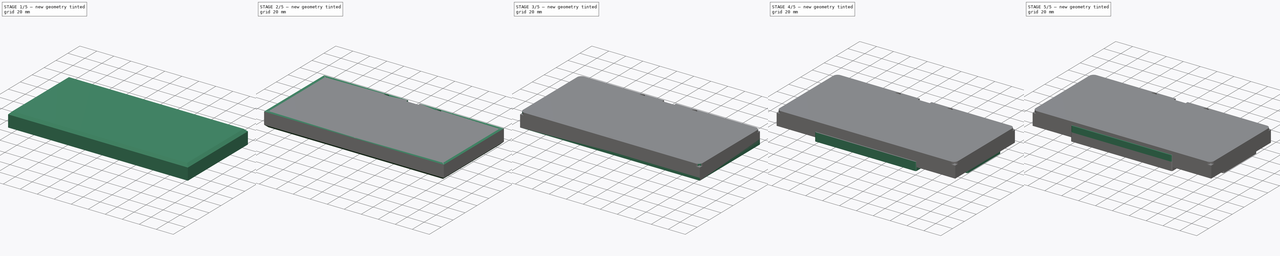
[diagram: build sequence overview — one tinted view per stage of 5, left to right]
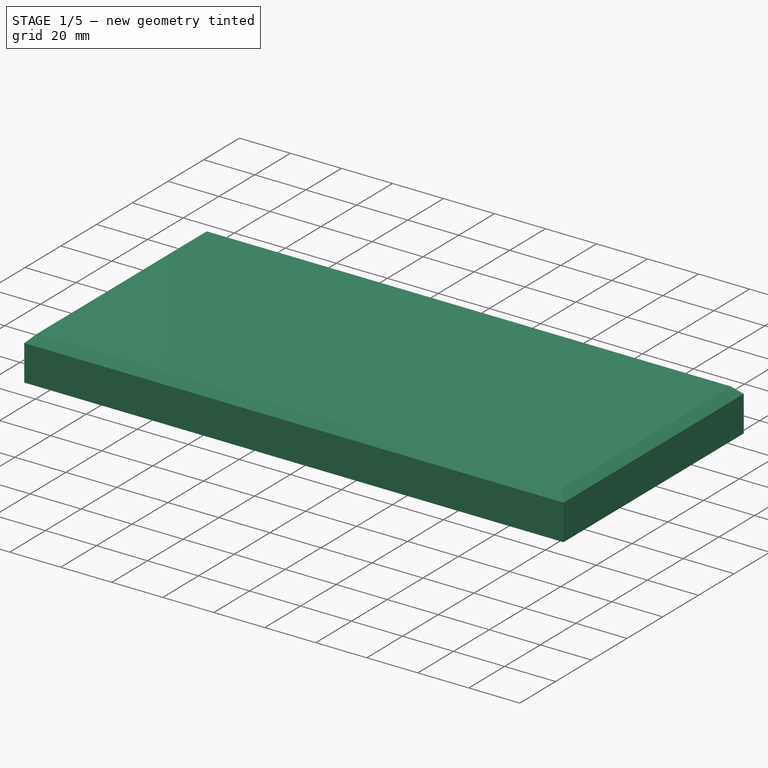
[diagram: stage 1 of 5 — iso view after this stage's code; geometry added in this stage tinted green]
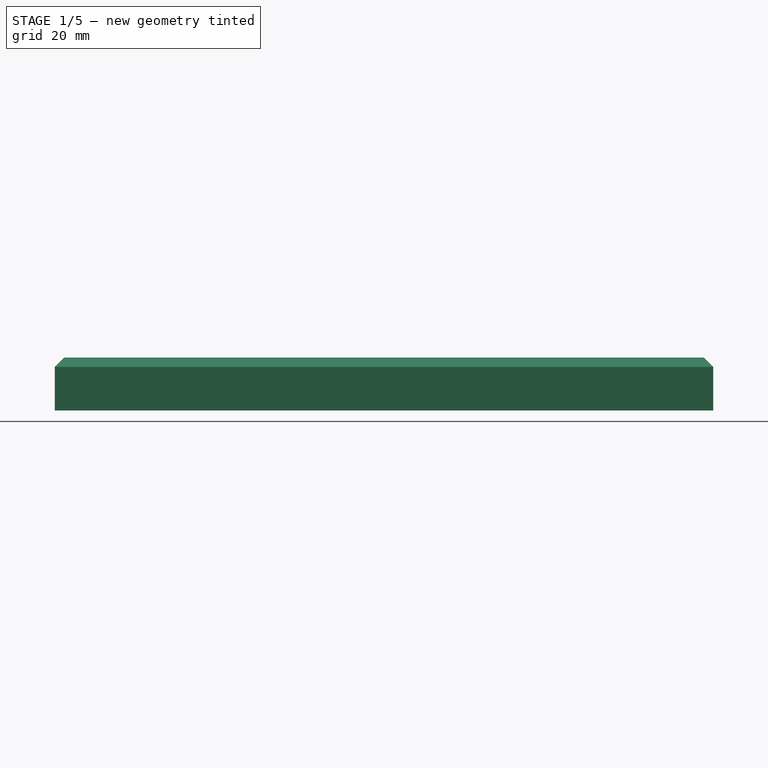
[diagram: stage 1 of 5 — front view after this stage's code; geometry added in this stage tinted green]
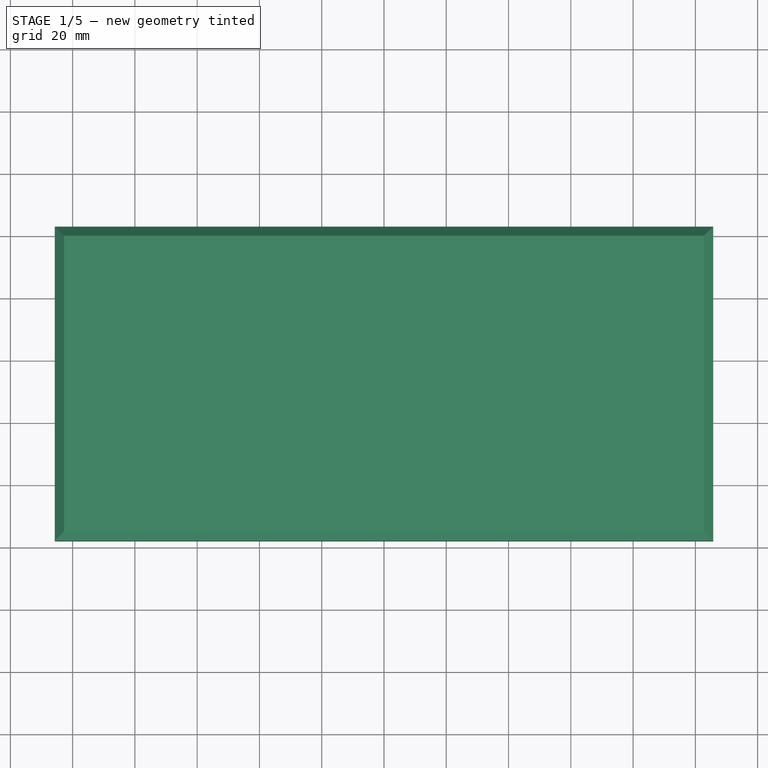
[diagram: stage 1 of 5 — top view after this stage's code; geometry added in this stage tinted green]
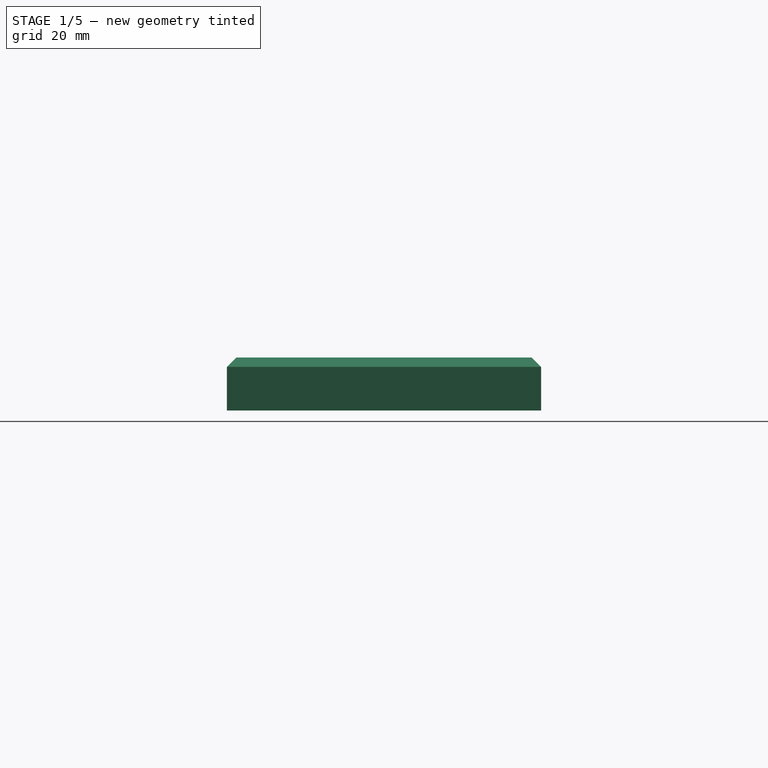
[diagram: stage 1 of 5 — right view after this stage's code; geometry added in this stage tinted green]
FCSTD DOCUMENT  (FreeCAD 1.0R38806 (Git))
Label: KARSE
License: All rights reserved
LicenseURL: http://en.wikipedia.org/wiki/All_rights_reserved
objects: Sketcher::SketchObject×50, PartDesign::Pocket×33, PartDesign::ShapeBinder×24, PartDesign::Pad×11, PartDesign::Body×7, PartDesign::Chamfer×6, PartDesign::Fillet×4
note: 293 computed .brp shape members not serialized (recipe doc carries the construction recipe); baked Part::Feature solids carry a one-line shape summary decoded from their .brp

FEATURE [PartDesign::Body] Body001  label="top"
  AllowCompound = false
  Group = -> [ShapeBinder,ShapeBinder001,Sketch008,Sketch009,Pad001,Pocket003,Sketch010,Sketch011,Pocket004,ShapeBinder002,Sketch012,Pocket005,ShapeBinder007,Pocket012,Fillet,Chamfer]
  Origin = -> Origin001
  Tip = -> Chamfer
FEATURE [Sketcher::SketchObject] Sketch030
  ArcFitTolerance = 0
  AttachmentSupport = -> [Fillet001]
  ExternalGeometry = -> [Sketch014,Fillet001]
  FullyConstrained = true
  MakeInternals = false
  MapMode = 5
  Placement = pos=(0,0,-8) rot=(0,0,1;0rad)
  sketch-geometry (16):
    g0: LineSegment StartX=-77.725 StartY=18.8125 StartZ=0 EndX=-77.725 EndY=43.8625 EndZ=0
    g1: LineSegment StartX=77.725 StartY=43.8625 StartZ=0 EndX=77.725 EndY=18.8125 EndZ=0
    g2: LineSegment StartX=77.725 StartY=18.8125 StartZ=0 EndX=39.575 EndY=18.8125 EndZ=0
    g3: LineSegment StartX=39.575 StartY=18.8125 StartZ=0 EndX=39.575 EndY=-4 EndZ=0
    g4: LineSegment StartX=39.575 StartY=-4 StartZ=0 EndX=-39.575 EndY=-4 EndZ=0
    g5: LineSegment StartX=-39.575 StartY=-4 StartZ=0 EndX=-39.575 EndY=18.8125 EndZ=0
    g6: LineSegment StartX=-39.575 StartY=18.8125 StartZ=0 EndX=-77.725 EndY=18.8125 EndZ=0
    g7: LineSegment StartX=-77.725 StartY=43.8625 StartZ=0 EndX=-39.575 EndY=43.8625 EndZ=0
    g8: LineSegment StartX=-39.575 StartY=43.8625 StartZ=0 EndX=-39.575 EndY=65.8625 EndZ=0
    g9: LineSegment StartX=39.575 StartY=65.8625 StartZ=0 EndX=39.575 EndY=43.8625 EndZ=0
    g10: LineSegment StartX=39.575 StartY=43.8625 StartZ=0 EndX=77.725 EndY=43.8625 EndZ=0
    g11: LineSegment StartX=-39.575 StartY=65.8625 StartZ=0 EndX=-7 EndY=65.8625 EndZ=0
    g12: LineSegment StartX=-7 StartY=65.8625 StartZ=0 EndX=-7 EndY=70.8625 EndZ=0
    g13: LineSegment StartX=-7 StartY=70.8625 StartZ=0 EndX=7 EndY=70.8625 EndZ=0
    g14: LineSegment StartX=7 StartY=70.8625 StartZ=0 EndX=7 EndY=65.8625 EndZ=0
    g15: LineSegment StartX=7 StartY=65.8625 StartZ=0 EndX=39.575 EndY=65.8625 EndZ=0
  constraints (48):
    c: Vertical(g0)
    c: Vertical(g1)
    c: Coincident(g1,g2)
    c: Horizontal(g2)
    c: Coincident(g2,g3)
    c: Vertical(g3)
    c: Coincident(g3,g4)
    c: Horizontal(g4)
    c: Coincident(g4,g5)
    c: Vertical(g5)
    c: Coincident(g5,g6)
    c: Coincident(g6,g0)
    c: Horizontal(g6)
    c: Horizontal(g5,g2)
    c: DistanceY(g-15,g5) = 10
    c: DistanceX(g-15,g5) = 10
    c: DistanceY(g-15,g4) = 10
    c: DistanceX(g3,g-16) = 10
    c: Vertical(g1,g-6)
    c: Vertical(g0,g-12)
    c: Coincident(g0,g7)
    c: Horizontal(g7)
    c: Coincident(g7,g8)
    c: Vertical(g8)
    c: Vertical(g9)
    c: Coincident(g9,g10)
    c: Coincident(g10,g1)
    c: Horizontal(g10)
    c: Horizontal(g7,g9)
    c: DistanceY(g0,g-12) = 10
    c: Vertical(g7,g5)
    c: Vertical(g9,g2)
    c: DistanceY(g9,g9) = 22
    c: Coincident(g8,g11)
    c: Horizontal(g11)
    c: Coincident(g11,g12)
    c: Vertical(g12)
    c: Coincident(g12,g13)
    c: Horizontal(g13)
    c: Coincident(g13,g14)
    c: Vertical(g14)
    c: Coincident(g14,g15)
    c: Coincident(g15,g9)
    c: Horizontal(g15)
    c: Horizontal(g11,g14)
    c: Vertical(g11,g-17)
    c: Vertical(g-18,g14)
    c: DistanceY(g14,g14) = 5
FEATURE [PartDesign::Body] Body002  label="bottom"
  AllowCompound = false
  Group = -> [Sketch013,ShapeBinder003,ShapeBinder004,Pad002,Sketch014,ShapeBinder005,Pocket006,Sketch015,Pocket007,ShapeBinder006,Sketch016,Sketch017,Pad003,Pocket008,Sketch018,Pocket009,Sketch019,Pocket010,Sketch020,Pocket011,Fillet001,Sketch030]
  Origin = -> Origin002
  Tip = -> Fillet001
FEATURE [Sketcher::SketchObject] Sketch031  label="switchorigins002"
  ArcFitTolerance = 0
  AttachmentSupport = -> [XY_Plane005]
  FullyConstrained = true
  MakeInternals = false
  MapMode = 5
  sketch-geometry (34):
    g0: GeomPoint X=-28.575 Y=0 Z=0
    g1: GeomPoint X=28.575 Y=0 Z=0
    g2: GeomPoint X=-9.525 Y=23.8125 Z=0
    g3: GeomPoint X=-9.525 Y=42.8625 Z=0
    g4: GeomPoint X=-9.525 Y=61.9125 Z=0
    g5: GeomPoint X=9.525 Y=61.9125 Z=0
    g6: GeomPoint X=9.525 Y=42.8625 Z=0
    g7: GeomPoint X=9.525 Y=23.8125 Z=0
    g8: GeomPoint X=2e-16 Y=23.8125 Z=0
    g9: GeomPoint X=-28.575 Y=61.9125 Z=0
    g10: GeomPoint X=-28.575 Y=42.8625 Z=0
    g11: GeomPoint X=-28.575 Y=23.8125 Z=0
    g12: GeomPoint X=28.575 Y=23.8125 Z=0
    g13: GeomPoint X=28.575 Y=42.8625 Z=0
    g14: GeomPoint X=28.575 Y=61.9125 Z=0
    g15: GeomPoint X=-47.625 Y=65.7225 Z=0
    g16: GeomPoint X=-47.625 Y=46.6725 Z=0
    g17: GeomPoint X=-47.625 Y=27.6225 Z=0
    g18: GeomPoint X=47.625 Y=27.6225 Z=0
    g19: GeomPoint X=47.625 Y=46.6725 Z=0
    g20: GeomPoint X=47.625 Y=65.7225 Z=0
    g21: GeomPoint X=-66.675 Y=61.9125 Z=0
    g22: GeomPoint X=-66.675 Y=42.8625 Z=0
    g23: GeomPoint X=-66.675 Y=23.8125 Z=0
    g24: GeomPoint X=-85.725 Y=42.8625 Z=0
    g25: GeomPoint X=-85.725 Y=23.8125 Z=0
    g26: GeomPoint X=66.675 Y=23.8125 Z=0
    g27: GeomPoint X=66.675 Y=42.8625 Z=0
    g28: GeomPoint X=66.675 Y=61.9125 Z=0
    g29: GeomPoint X=85.725 Y=23.8125 Z=0
    g30: GeomPoint X=85.725 Y=42.8625 Z=0
    g31: GeomPoint X=19.05 Y=0 Z=0
    g32: GeomPoint X=38.1 Y=0 Z=0
    g33: GeomPoint X=-19.05 Y=0 Z=0
  constraints (67):
    c: PointOnObject(g0,g-1)
    c: PointOnObject(g1,g-1)
    c: Vertical(g2,g3)
    c: Vertical(g3,g4)
    c: Vertical(g5,g6)
    c: Vertical(g6,g7)
    c: Horizontal(g3,g6)
    c: Horizontal(g4,g5)
    c: Horizontal(g2,g7)
    c: DistanceY(g2,g3) = 19.05
    c: DistanceY(g3,g4) = 19.05
    c: DistanceX(g3,g6) = 19.05
    c: PointOnObject(g8,g-2)
    c: Symmetric(g7,g2,g8)
    c: DistanceY(g-1,g8) = 23.8125
    c: Horizontal(g10,g13)
    c: Horizontal(g13,g3)
    c: Horizontal(g9,g14)
    c: Horizontal(g14,g4)
    c: Horizontal(g11,g12)
    c: Horizontal(g12,g2)
    c: Vertical(g12,g13)
    c: Vertical(g13,g14)
    c: DistanceX(g6,g13) = 19.05
    c: DistanceX(g10,g3) = 19.05
    c: Vertical(g9,g11)
    c: Vertical(g11,g10)
    c: Vertical(g12,g1)
    c: Vertical(g0,g11)
    c: Vertical(g19,g20)
    c: Vertical(g20,g18)
    c: DistanceY(g12,g18) = 3.81
    c: Vertical(g15,g16)
    c: Vertical(g16,g17)
    c: DistanceY(g18,g19) = 19.05
    c: DistanceX(g13,g19) = 19.05
    c: DistanceY(g19,g20) = 19.05
    c: Horizontal(g17,g18)
    c: Horizontal(g16,g19)
    c: Horizontal(g15,g20)
    c: DistanceX(g17,g10) = 19.05
    c: Horizontal(g28,g21)
    c: Horizontal(g21,g9)
    c: Horizontal(g22,g10)
    c: Horizontal(g10,g27)
    c: Horizontal(g23,g26)
    c: Horizontal(g26,g2)
    c: Vertical(g21,g22)
    c: Vertical(g22,g23)
    c: Vertical(g26,g27)
    c: Vertical(g27,g28)
    c: DistanceX(g18,g26) = 19.05
    c: DistanceX(g23,g17) = 19.05
    c: Horizontal(g22,g24)
    c: Horizontal(g23,g25)
    c: Vertical(g24,g25)
    c: DistanceX(g25,g23) = 19.05
    c: Horizontal(g27,g30)
    c: Horizontal(g26,g29)
    c: Vertical(g29,g30)
    c: DistanceX(g26,g29) = 19.05
    c: Horizontal(g31,g1)
    c: Horizontal(g1,g32)
    c: DistanceX(g-1,g31) = 19.05
    c: DistanceX(g31,g32) = 19.05
    c: PointOnObject(g33,g-1)
    c: DistanceX(g33,g-1) = 19.05
FEATURE [Sketcher::SketchObject] Sketch033
  ArcFitTolerance = 0
  AttachmentSupport = -> [XY_Plane005]
  ExternalGeometry = -> [Sketch031]
  FullyConstrained = true
  MakeInternals = false
  MapMode = 5
FEATURE [PartDesign::ShapeBinder] ShapeBinder008
  Support = -> [Sketch007]
  TraceSupport = false
FEATURE [PartDesign::ShapeBinder] ShapeBinder009
  Support = -> [Sketch006]
  TraceSupport = false
FEATURE [Sketcher::SketchObject] Sketch034  label="stabcuts"
  ArcFitTolerance = 0
  AttachmentSupport = -> [XY_Plane005]
  ExternalGeometry = -> [Sketch031]
  FullyConstrained = true
  MakeInternals = false
  MapMode = 5
  sketch-geometry (51):
    g0: GeomPoint [constr] X=-19.05 Y=0 Z=0
    g1: LineSegment StartX=-22.55 StartY=9 StartZ=0 EndX=-15.55 EndY=9 EndZ=0
    g2: LineSegment StartX=-15.55 StartY=-7 StartZ=0 EndX=-22.55 EndY=-7 EndZ=0
    g3: LineSegment StartX=-22.55 StartY=-7 StartZ=0 EndX=-22.55 EndY=9 EndZ=0
    g4: LineSegment [constr] StartX=-19.05 StartY=0 StartZ=0 EndX=-22.55 EndY=0 EndZ=0
    g5: LineSegment [constr] StartX=-19.05 StartY=0 StartZ=0 EndX=-15.55 EndY=0 EndZ=0
    g6: LineSegment StartX=12.325 StartY=9 StartZ=0 EndX=20.325 EndY=9 EndZ=0
    g7: LineSegment [constr] StartX=20.325 StartY=9 StartZ=0 EndX=20.325 EndY=-7 EndZ=0
    g8: LineSegment StartX=20.325 StartY=-7 StartZ=0 EndX=12.325 EndY=-7 EndZ=0
    g9: LineSegment StartX=12.325 StartY=-7 StartZ=0 EndX=12.325 EndY=9 EndZ=0
    g10: LineSegment StartX=36.825 StartY=9 StartZ=0 EndX=44.825 EndY=9 EndZ=0
    g11: LineSegment StartX=44.825 StartY=9 StartZ=0 EndX=44.825 EndY=-7 EndZ=0
    g12: LineSegment StartX=44.825 StartY=-7 StartZ=0 EndX=36.825 EndY=-7 EndZ=0
    g13: LineSegment [constr] StartX=20.325 StartY=0 StartZ=0 EndX=28.575 EndY=0 EndZ=0
    g14: LineSegment [constr] StartX=28.575 StartY=0 StartZ=0 EndX=36.825 EndY=0 EndZ=0
    g15: LineSegment [constr] StartX=22.55 StartY=9 StartZ=0 EndX=15.55 EndY=9 EndZ=0
    g16: LineSegment [constr] StartX=15.55 StartY=9 StartZ=0 EndX=15.55 EndY=-7 EndZ=0
    g17: LineSegment [constr] StartX=15.55 StartY=-7 StartZ=0 EndX=22.55 EndY=-7 EndZ=0
    g18: LineSegment StartX=22.55 StartY=-7 StartZ=0 EndX=22.55 EndY=9 EndZ=0
    g19: LineSegment [constr] StartX=15.55 StartY=3 StartZ=0 EndX=19.05 EndY=3 EndZ=0
    g20: LineSegment [constr] StartX=19.05 StartY=3 StartZ=0 EndX=22.55 EndY=3 EndZ=0
    g21: LineSegment StartX=20.325 StartY=9 StartZ=0 EndX=22.55 EndY=9 EndZ=0
    g22: LineSegment StartX=20.325 StartY=-7 StartZ=0 EndX=22.55 EndY=-7 EndZ=0
    g23: LineSegment StartX=-36.825 StartY=9 StartZ=0 EndX=-44.825 EndY=9 EndZ=0
    g24: LineSegment StartX=-44.825 StartY=9 StartZ=0 EndX=-44.825 EndY=-7 EndZ=0
    g25: LineSegment StartX=-44.825 StartY=-7 StartZ=0 EndX=-36.825 EndY=-7 EndZ=0
    g26: LineSegment [constr] StartX=-20.325 StartY=9 StartZ=0 EndX=-12.325 EndY=9 EndZ=0
    g27: LineSegment StartX=-12.325 StartY=9 StartZ=0 EndX=-12.325 EndY=-7 EndZ=0
    g28: LineSegment [constr] StartX=-12.325 StartY=-7 StartZ=0 EndX=-20.325 EndY=-7 EndZ=0
    g29: LineSegment [constr] StartX=-20.325 StartY=-7 StartZ=0 EndX=-20.325 EndY=9 EndZ=0
    g30: LineSegment [constr] StartX=-36.825 StartY=0 StartZ=0 EndX=-28.575 EndY=0 EndZ=0
    g31: LineSegment [constr] StartX=-28.575 StartY=0 StartZ=0 EndX=-20.325 EndY=0 EndZ=0
    g32: LineSegment [constr] StartX=-44.825 StartY=4 StartZ=0 EndX=-28.575 EndY=4 EndZ=0
    g33: LineSegment [constr] StartX=-28.575 StartY=4 StartZ=0 EndX=-12.325 EndY=4 EndZ=0
    g34: LineSegment StartX=-15.55 StartY=9 StartZ=0 EndX=-12.325 EndY=9 EndZ=0
    g35: LineSegment StartX=-15.55 StartY=-7 StartZ=0 EndX=-12.325 EndY=-7 EndZ=0
    g36: LineSegment [constr] StartX=12.325 StartY=4 StartZ=0 EndX=28.575 EndY=4 EndZ=0
    g37: LineSegment [constr] StartX=28.575 StartY=4 StartZ=0 EndX=44.825 EndY=4 EndZ=0
    g38: GeomPoint [constr] X=-38.1 Y=0 Z=0
    g39: LineSegment StartX=-34.6 StartY=9 StartZ=0 EndX=-34.6 EndY=-7 EndZ=0
    g40: LineSegment StartX=-34.6 StartY=9 StartZ=0 EndX=-36.825 EndY=9 EndZ=0
    g41: LineSegment StartX=-34.6 StartY=-7 StartZ=0 EndX=-36.825 EndY=-7 EndZ=0
    g42: LineSegment StartX=-3.5 StartY=9 StartZ=0 EndX=3.5 EndY=9 EndZ=0
    g43: LineSegment StartX=3.5 StartY=9 StartZ=0 EndX=3.5 EndY=-7 EndZ=0
    g44: LineSegment StartX=3.5 StartY=-7 StartZ=0 EndX=-3.5 EndY=-7 EndZ=0
    g45: LineSegment StartX=-3.5 StartY=-7 StartZ=0 EndX=-3.5 EndY=9 EndZ=0
    g46: LineSegment [constr] StartX=-3.5 StartY=0 StartZ=0 EndX=0 EndY=0 EndZ=0
    g47: LineSegment [constr] StartX=0 StartY=0 StartZ=0 EndX=3.5 EndY=0 EndZ=0
    g48: LineSegment StartX=34.6 StartY=9 StartZ=0 EndX=34.6 EndY=-7 EndZ=0
    g49: LineSegment StartX=34.6 StartY=9 StartZ=0 EndX=36.825 EndY=9 EndZ=0
    g50: LineSegment StartX=36.825 StartY=-7 StartZ=0 EndX=34.6 EndY=-7 EndZ=0
  constraints (154):
    c: DistanceX(g-1,g-3) = 19.05
    c: DistanceX(g0,g-1) = 19.05
    c: Horizontal(g0,g-1)
    c: Coincident(g2,g3)
    c: Coincident(g3,g1)
    c: Horizontal(g1)
    c: Horizontal(g2)
    c: Vertical(g3)
    c: Coincident(g4,g0)
    c: PointOnObject(g4,g3)
    c: Horizontal(g4)
    c: Coincident(g5,g0)
    c: Horizontal(g5)
    c: Equal(g5,g4)
    c: DistanceX(g1,g1) = 7
    c: Vertical(g1,g5)
    c: Vertical(g5,g2)
    c: DistanceY(g3,g3) = 16
    c: DistanceY(g2,g4) = 7
    c: Coincident(g7,g8)
    c: Coincident(g8,g9)
    c: Coincident(g9,g6)
    c: Horizontal(g6)
    c: Horizontal(g8)
    c: Vertical(g9)
    c: Coincident(g10,g11)
    c: Coincident(g11,g12)
    c: Horizontal(g10)
    c: Horizontal(g12)
    c: Vertical(g11)
    c: Horizontal(g12,g7)
    c: Equal(g3,g9)
    c: Horizontal(g13)
    c: Coincident(g15,g16)
    c: Coincident(g16,g17)
    c: Coincident(g17,g18)
    c: Coincident(g18,g15)
    c: Horizontal(g15)
    c: Horizontal(g17)
    c: Vertical(g16)
    c: Horizontal(g18,g7)
    c: DistanceX(g6,g10) = 16.5
    c: Equal(g13,g14)
    c: Coincident(g13,g14)
    c: Coincident(g13,g-4)
    c: Vertical(g13,g6)
    c: Horizontal(g14)
    c: Vertical(g18)
    c: DistanceX(g15,g15) = 7
    c: PointOnObject(g19,g16)
    c: Horizontal(g19)
    c: Coincident(g20,g19)
    c: PointOnObject(g20,g18)
    c: Horizontal(g20)
    c: Vertical(g19,g-3)
    c: Equal(g19,g20)
    c: Horizontal(g15,g6)
    c: Coincident(g7,g6)
    c: Vertical(g7)
    c: Coincident(g21,g6)
    c: Coincident(g21,g18)
    c: Coincident(g22,g8)
    c: Coincident(g22,g18)
    c: DistanceY(g-3,g19) = 3
    c: Coincident(g23,g24)
    c: Coincident(g24,g25)
    c: Horizontal(g23)
    c: Horizontal(g25)
    c: Vertical(g24)
    c: Coincident(g26,g27)
    c: Coincident(g27,g28)
    c: Coincident(g28,g29)
    c: Coincident(g29,g26)
    c: Horizontal(g26)
    c: Horizontal(g28)
    c: Vertical(g27)
    c: Vertical(g29)
    c: DistanceX(g23,g26) = 16.5
    c: Coincident(g30,g-5)
    c: Horizontal(g30)
    c: Coincident(g31,g30)
    c: PointOnObject(g31,g29)
    c: Horizontal(g31)
    c: Equal(g31,g30)
    c: DistanceY(g27,g27) = 16
    c: Horizontal(g27,g2)
    c: Horizontal(g2,g25)
    c: DistanceX(g23,g26) = 32.5
    c: PointOnObject(g32,g24)
    c: Horizontal(g32)
    c: Coincident(g33,g32)
    c: PointOnObject(g33,g27)
    c: Horizontal(g33)
    c: Vertical(g32,g30)
    c: Equal(g32,g33)
    c: Horizontal(g23,g1)
    c: Coincident(g34,g1)
    c: Coincident(g34,g27)
    c: Coincident(g35,g2)
    c: Coincident(g35,g27)
    c: DistanceX(g6,g10) = 32.5
    c: Horizontal(g8,g27)
    c: PointOnObject(g36,g9)
    c: Horizontal(g36)
    c: Coincident(g37,g36)
    c: PointOnObject(g37,g11)
    c: Horizontal(g37)
    c: Vertical(g36,g13)
    c: Equal(g36,g37)
    c: DistanceY(g30,g32) = 4
    c: DistanceY(g13,g36) = 4
    c: PointOnObject(g38,g-1)
    c: DistanceX(g38,g0) = 19.05
    c: DistanceX(g-1,g-3) = 19.05
    c: Vertical(g39)
    c: DistanceX(g25,g25) = 8
    c: Vertical(g23,g25)
    c: Coincident(g40,g39)
    c: Coincident(g40,g23)
    c: Horizontal(g40)
    c: Coincident(g41,g39)
    c: Coincident(g41,g25)
    c: Horizontal(g41)
    c: DistanceX(g38,g39) = 3.5
    c: Coincident(g42,g43)
    c: Coincident(g43,g44)
    c: Coincident(g44,g45)
    c: Coincident(g45,g42)
    c: Horizontal(g42)
    c: Horizontal(g44)
    c: Vertical(g43)
    c: Vertical(g45)
    c: PointOnObject(g46,g45)
    c: Coincident(g46,g-1)
    c: Horizontal(g46)
    c: Coincident(g47,g46)
    c: PointOnObject(g47,g43)
    c: Horizontal(g47)
    c: Equal(g46,g47)
    c: Horizontal(g44,g27)
    c: DistanceY(g45,g45) = 16
    c: DistanceX(g42,g42) = 7
    c: DistanceX(g-3,g-6) = 19.05
    c: Vertical(g48)
    c: DistanceX(g48,g-6) = 3.5
    c: Horizontal(g48,g10)
    c: Horizontal(g48,g12)
    c: Coincident(g49,g48)
    c: Coincident(g49,g10)
    c: Coincident(g50,g12)
    c: Coincident(g50,g48)
    c: Vertical(g10,g12)
    c: Horizontal(g48,g18)
    c: Vertical(g14,g10)
FEATURE [Sketcher::SketchObject] Sketch032  label="switchholse"
  ArcFitTolerance = 0
  AttachmentSupport = -> [XY_Plane005]
  ExternalGeometry = -> [Sketch031,Sketch034]
  FullyConstrained = true
  MakeInternals = false
  MapMode = 5
  sketch-geometry (177):
    g0: LineSegment StartX=-92.725 StartY=49.8625 StartZ=0 EndX=-92.725 EndY=35.8625 EndZ=0
    g1: LineSegment StartX=-92.725 StartY=35.8625 StartZ=0 EndX=-78.725 EndY=35.8625 EndZ=0
    g2: LineSegment StartX=-78.725 StartY=35.8625 StartZ=0 EndX=-78.725 EndY=49.8625 EndZ=0
    g3: LineSegment StartX=-78.725 StartY=49.8625 StartZ=0 EndX=-92.725 EndY=49.8625 EndZ=0
    g4: LineSegment StartX=-92.725 StartY=30.8125 StartZ=0 EndX=-92.725 EndY=16.8125 EndZ=0
    g5: LineSegment StartX=-92.725 StartY=16.8125 StartZ=0 EndX=-78.725 EndY=16.8125 EndZ=0
    g6: LineSegment StartX=-78.725 StartY=16.8125 StartZ=0 EndX=-78.725 EndY=30.8125 EndZ=0
    g7: LineSegment StartX=-78.725 StartY=30.8125 StartZ=0 EndX=-92.725 EndY=30.8125 EndZ=0
    g8: GeomPoint [constr] X=-85.725 Y=23.8125 Z=0
    g9: LineSegment StartX=-73.675 StartY=30.8125 StartZ=0 EndX=-73.675 EndY=16.8125 EndZ=0
    g10: LineSegment StartX=-73.675 StartY=16.8125 StartZ=0 EndX=-59.675 EndY=16.8125 EndZ=0
    g11: LineSegment StartX=-59.675 StartY=16.8125 StartZ=0 EndX=-59.675 EndY=30.8125 EndZ=0
    g12: LineSegment StartX=-59.675 StartY=30.8125 StartZ=0 EndX=-73.675 EndY=30.8125 EndZ=0
    g13: GeomPoint [constr] X=-66.675 Y=23.8125 Z=0
    g14: LineSegment StartX=-73.675 StartY=49.8625 StartZ=0 EndX=-73.675 EndY=35.8625 EndZ=0
    g15: LineSegment StartX=-73.675 StartY=35.8625 StartZ=0 EndX=-59.675 EndY=35.8625 EndZ=0
    g16: LineSegment StartX=-59.675 StartY=35.8625 StartZ=0 EndX=-59.675 EndY=49.8625 EndZ=0
    g17: LineSegment StartX=-59.675 StartY=49.8625 StartZ=0 EndX=-73.675 EndY=49.8625 EndZ=0
    g18: GeomPoint [constr] X=-66.675 Y=42.8625 Z=0
    g19: LineSegment StartX=-73.675 StartY=68.9125 StartZ=0 EndX=-73.675 EndY=54.9125 EndZ=0
    g20: LineSegment StartX=-73.675 StartY=54.9125 StartZ=0 EndX=-59.675 EndY=54.9125 EndZ=0
    g21: LineSegment StartX=-59.675 StartY=54.9125 StartZ=0 EndX=-59.675 EndY=68.9125 EndZ=0
    g22: LineSegment StartX=-59.675 StartY=68.9125 StartZ=0 EndX=-73.675 EndY=68.9125 EndZ=0
    g23: GeomPoint [constr] X=-66.675 Y=61.9125 Z=0
    g24: LineSegment StartX=-54.625 StartY=72.7225 StartZ=0 EndX=-54.625 EndY=58.7225 EndZ=0
    g25: LineSegment StartX=-54.625 StartY=58.7225 StartZ=0 EndX=-40.625 EndY=58.7225 EndZ=0
    g26: LineSegment StartX=-40.625 StartY=58.7225 StartZ=0 EndX=-40.625 EndY=72.7225 EndZ=0
    g27: LineSegment StartX=-40.625 StartY=72.7225 StartZ=0 EndX=-54.625 EndY=72.7225 EndZ=0
    g28: GeomPoint [constr] X=-47.625 Y=65.7225 Z=0
    g29: LineSegment StartX=-54.625 StartY=53.6725 StartZ=0 EndX=-54.625 EndY=39.6725 EndZ=0
    g30: LineSegment StartX=-54.625 StartY=39.6725 StartZ=0 EndX=-40.625 EndY=39.6725 EndZ=0
    g31: LineSegment StartX=-40.625 StartY=39.6725 StartZ=0 EndX=-40.625 EndY=53.6725 EndZ=0
    g32: LineSegment StartX=-40.625 StartY=53.6725 StartZ=0 EndX=-54.625 EndY=53.6725 EndZ=0
    g33: GeomPoint [constr] X=-47.625 Y=46.6725 Z=0
    g34: LineSegment StartX=-54.625 StartY=34.6225 StartZ=0 EndX=-54.625 EndY=20.6225 EndZ=0
    g35: LineSegment StartX=-54.625 StartY=20.6225 StartZ=0 EndX=-40.625 EndY=20.6225 EndZ=0
    g36: LineSegment StartX=-40.625 StartY=20.6225 StartZ=0 EndX=-40.625 EndY=34.6225 EndZ=0
    g37: LineSegment StartX=-40.625 StartY=34.6225 StartZ=0 EndX=-54.625 EndY=34.6225 EndZ=0
    g38: GeomPoint [constr] X=-47.625 Y=27.6225 Z=0
    g39: LineSegment StartX=-35.575 StartY=30.8125 StartZ=0 EndX=-35.575 EndY=16.8125 EndZ=0
    g40: LineSegment StartX=-35.575 StartY=16.8125 StartZ=0 EndX=-21.575 EndY=16.8125 EndZ=0
    g41: LineSegment StartX=-21.575 StartY=16.8125 StartZ=0 EndX=-21.575 EndY=30.8125 EndZ=0
    g42: LineSegment StartX=-21.575 StartY=30.8125 StartZ=0 EndX=-35.575 EndY=30.8125 EndZ=0
    g43: GeomPoint [constr] X=-28.575 Y=23.8125 Z=0
    g44: LineSegment StartX=-35.575 StartY=49.8625 StartZ=0 EndX=-35.575 EndY=35.8625 EndZ=0
    g45: LineSegment StartX=-35.575 StartY=35.8625 StartZ=0 EndX=-21.575 EndY=35.8625 EndZ=0
    g46: LineSegment StartX=-21.575 StartY=35.8625 StartZ=0 EndX=-21.575 EndY=49.8625 EndZ=0
    g47: LineSegment StartX=-21.575 StartY=49.8625 StartZ=0 EndX=-35.575 EndY=49.8625 EndZ=0
    g48: GeomPoint [constr] X=-28.575 Y=42.8625 Z=0
    g49: LineSegment StartX=-35.575 StartY=68.9125 StartZ=0 EndX=-35.575 EndY=54.9125 EndZ=0
    g50: LineSegment StartX=-35.575 StartY=54.9125 StartZ=0 EndX=-21.575 EndY=54.9125 EndZ=0
    g51: LineSegment StartX=-21.575 StartY=54.9125 StartZ=0 EndX=-21.575 EndY=68.9125 EndZ=0
    g52: LineSegment StartX=-21.575 StartY=68.9125 StartZ=0 EndX=-35.575 EndY=68.9125 EndZ=0
    g53: GeomPoint [constr] X=-28.575 Y=61.9125 Z=0
    g54: LineSegment StartX=-16.525 StartY=68.9125 StartZ=0 EndX=-16.525 EndY=54.9125 EndZ=0
    g55: LineSegment StartX=-16.525 StartY=54.9125 StartZ=0 EndX=-2.525 EndY=54.9125 EndZ=0
    g56: LineSegment StartX=-2.525 StartY=54.9125 StartZ=0 EndX=-2.525 EndY=68.9125 EndZ=0
    g57: LineSegment StartX=-2.525 StartY=68.9125 StartZ=0 EndX=-16.525 EndY=68.9125 EndZ=0
    g58: GeomPoint [constr] X=-9.525 Y=61.9125 Z=0
    g59: LineSegment StartX=2.525 StartY=68.9125 StartZ=0 EndX=2.525 EndY=54.9125 EndZ=0
    g60: LineSegment StartX=2.525 StartY=54.9125 StartZ=0 EndX=16.525 EndY=54.9125 EndZ=0
    g61: LineSegment StartX=16.525 StartY=54.9125 StartZ=0 EndX=16.525 EndY=68.9125 EndZ=0
    g62: LineSegment StartX=16.525 StartY=68.9125 StartZ=0 EndX=2.525 EndY=68.9125 EndZ=0
    g63: GeomPoint [constr] X=9.525 Y=61.9125 Z=0
    g64: LineSegment StartX=21.575 StartY=68.9125 StartZ=0 EndX=21.575 EndY=54.9125 EndZ=0
    g65: LineSegment StartX=21.575 StartY=54.9125 StartZ=0 EndX=35.575 EndY=54.9125 EndZ=0
    g66: LineSegment StartX=35.575 StartY=54.9125 StartZ=0 EndX=35.575 EndY=68.9125 EndZ=0
    g67: LineSegment StartX=35.575 StartY=68.9125 StartZ=0 EndX=21.575 EndY=68.9125 EndZ=0
    g68: GeomPoint [constr] X=28.575 Y=61.9125 Z=0
    g69: LineSegment StartX=40.625 StartY=72.7225 StartZ=0 EndX=40.625 EndY=58.7225 EndZ=0
    g70: LineSegment StartX=40.625 StartY=58.7225 StartZ=0 EndX=54.625 EndY=58.7225 EndZ=0
    g71: LineSegment StartX=54.625 StartY=58.7225 StartZ=0 EndX=54.625 EndY=72.7225 EndZ=0
    g72: LineSegment StartX=54.625 StartY=72.7225 StartZ=0 EndX=40.625 EndY=72.7225 EndZ=0
    g73: GeomPoint [constr] X=47.625 Y=65.7225 Z=0
    g74: LineSegment StartX=59.675 StartY=68.9125 StartZ=0 EndX=59.675 EndY=54.9125 EndZ=0
    g75: LineSegment StartX=59.675 StartY=54.9125 StartZ=0 EndX=73.675 EndY=54.9125 EndZ=0
    g76: LineSegment StartX=73.675 StartY=54.9125 StartZ=0 EndX=73.675 EndY=68.9125 EndZ=0
    g77: LineSegment StartX=73.675 StartY=68.9125 StartZ=0 EndX=59.675 EndY=68.9125 EndZ=0
    g78: GeomPoint [constr] X=66.675 Y=61.9125 Z=0
    g79: LineSegment StartX=-16.525 StartY=49.8625 StartZ=0 EndX=-16.525 EndY=35.8625 EndZ=0
    g80: LineSegment StartX=-16.525 StartY=35.8625 StartZ=0 EndX=-2.525 EndY=35.8625 EndZ=0
    g81: LineSegment StartX=-2.525 StartY=35.8625 StartZ=0 EndX=-2.525 EndY=49.8625 EndZ=0
    g82: LineSegment StartX=-2.525 StartY=49.8625 StartZ=0 EndX=-16.525 EndY=49.8625 EndZ=0
    g83: GeomPoint [constr] X=-9.525 Y=42.8625 Z=0
    g84: LineSegment StartX=-16.525 StartY=30.8125 StartZ=0 EndX=-16.525 EndY=16.8125 EndZ=0
    g85: LineSegment StartX=-16.525 StartY=16.8125 StartZ=0 EndX=-2.525 EndY=16.8125 EndZ=0
    g86: LineSegment StartX=-2.525 StartY=16.8125 StartZ=0 EndX=-2.525 EndY=30.8125 EndZ=0
    g87: LineSegment StartX=-2.525 StartY=30.8125 StartZ=0 EndX=-16.525 EndY=30.8125 EndZ=0
    g88: GeomPoint [constr] X=-9.525 Y=23.8125 Z=0
    g89: LineSegment StartX=2.525 StartY=49.8625 StartZ=0 EndX=2.525 EndY=35.8625 EndZ=0
    g90: LineSegment StartX=2.525 StartY=35.8625 StartZ=0 EndX=16.525 EndY=35.8625 EndZ=0
    g91: LineSegment StartX=16.525 StartY=35.8625 StartZ=0 EndX=16.525 EndY=49.8625 EndZ=0
    g92: LineSegment StartX=16.525 StartY=49.8625 StartZ=0 EndX=2.525 EndY=49.8625 EndZ=0
    g93: GeomPoint [constr] X=9.525 Y=42.8625 Z=0
    g94: LineSegment StartX=21.575 StartY=49.8625 StartZ=0 EndX=21.575 EndY=35.8625 EndZ=0
    g95: LineSegment StartX=21.575 StartY=35.8625 StartZ=0 EndX=35.575 EndY=35.8625 EndZ=0
    g96: LineSegment StartX=35.575 StartY=35.8625 StartZ=0 EndX=35.575 EndY=49.8625 EndZ=0
    g97: LineSegment StartX=35.575 StartY=49.8625 StartZ=0 EndX=21.575 EndY=49.8625 EndZ=0
    g98: GeomPoint [constr] X=28.575 Y=42.8625 Z=0
    g99: LineSegment StartX=2.525 StartY=30.8125 StartZ=0 EndX=2.525 EndY=16.8125 EndZ=0
    g100: LineSegment StartX=2.525 StartY=16.8125 StartZ=0 EndX=16.525 EndY=16.8125 EndZ=0
    g101: LineSegment StartX=16.525 StartY=16.8125 StartZ=0 EndX=16.525 EndY=30.8125 EndZ=0
    g102: LineSegment StartX=16.525 StartY=30.8125 StartZ=0 EndX=2.525 EndY=30.8125 EndZ=0
    g103: GeomPoint [constr] X=9.525 Y=23.8125 Z=0
    g104: LineSegment StartX=21.575 StartY=30.8125 StartZ=0 EndX=21.575 EndY=16.8125 EndZ=0
    g105: LineSegment StartX=21.575 StartY=16.8125 StartZ=0 EndX=35.575 EndY=16.8125 EndZ=0
    g106: LineSegment StartX=35.575 StartY=16.8125 StartZ=0 EndX=35.575 EndY=30.8125 EndZ=0
    g107: LineSegment StartX=35.575 StartY=30.8125 StartZ=0 EndX=21.575 EndY=30.8125 EndZ=0
    g108: GeomPoint [constr] X=28.575 Y=23.8125 Z=0
    g109: LineSegment StartX=40.625 StartY=53.6725 StartZ=0 EndX=40.625 EndY=39.6725 EndZ=0
    g110: LineSegment StartX=40.625 StartY=39.6725 StartZ=0 EndX=54.625 EndY=39.6725 EndZ=0
    g111: LineSegment StartX=54.625 StartY=39.6725 StartZ=0 EndX=54.625 EndY=53.6725 EndZ=0
    g112: LineSegment StartX=54.625 StartY=53.6725 StartZ=0 EndX=40.625 EndY=53.6725 EndZ=0
    g113: GeomPoint [constr] X=47.625 Y=46.6725 Z=0
    g114: LineSegment StartX=59.675 StartY=49.8625 StartZ=0 EndX=59.675 EndY=35.8625 EndZ=0
    g115: LineSegment StartX=59.675 StartY=35.8625 StartZ=0 EndX=73.675 EndY=35.8625 EndZ=0
    g116: LineSegment StartX=73.675 StartY=35.8625 StartZ=0 EndX=73.675 EndY=49.8625 EndZ=0
    g117: LineSegment StartX=73.675 StartY=49.8625 StartZ=0 EndX=59.675 EndY=49.8625 EndZ=0
    g118: GeomPoint [constr] X=66.675 Y=42.8625 Z=0
    g119: LineSegment StartX=78.725 StartY=49.8625 StartZ=0 EndX=78.725 EndY=35.8625 EndZ=0
    g120: LineSegment StartX=78.725 StartY=35.8625 StartZ=0 EndX=92.725 EndY=35.8625 EndZ=0
    g121: LineSegment StartX=92.725 StartY=35.8625 StartZ=0 EndX=92.725 EndY=49.8625 EndZ=0
    g122: LineSegment StartX=92.725 StartY=49.8625 StartZ=0 EndX=78.725 EndY=49.8625 EndZ=0
    g123: GeomPoint [constr] X=85.725 Y=42.8625 Z=0
    g124: LineSegment StartX=40.625 StartY=34.6225 StartZ=0 EndX=40.625 EndY=20.6225 EndZ=0
    g125: LineSegment StartX=40.625 StartY=20.6225 StartZ=0 EndX=54.625 EndY=20.6225 EndZ=0
    g126: LineSegment StartX=54.625 StartY=20.6225 StartZ=0 EndX=54.625 EndY=34.6225 EndZ=0
    g127: LineSegment StartX=54.625 StartY=34.6225 StartZ=0 EndX=40.625 EndY=34.6225 EndZ=0
    g128: GeomPoint [constr] X=47.625 Y=27.6225 Z=0
    g129: LineSegment StartX=59.675 StartY=30.8125 StartZ=0 EndX=59.675 EndY=16.8125 EndZ=0
    g130: LineSegment StartX=59.675 StartY=16.8125 StartZ=0 EndX=73.675 EndY=16.8125 EndZ=0
    g131: LineSegment StartX=73.675 StartY=16.8125 StartZ=0 EndX=73.675 EndY=30.8125 EndZ=0
    g132: LineSegment StartX=73.675 StartY=30.8125 StartZ=0 EndX=59.675 EndY=30.8125 EndZ=0
    g133: GeomPoint [constr] X=66.675 Y=23.8125 Z=0
    g134: LineSegment StartX=78.725 StartY=30.8125 StartZ=0 EndX=78.725 EndY=16.8125 EndZ=0
    g135: LineSegment StartX=78.725 StartY=16.8125 StartZ=0 EndX=92.725 EndY=16.8125 EndZ=0
    g136: LineSegment StartX=92.725 StartY=16.8125 StartZ=0 EndX=92.725 EndY=30.8125 EndZ=0
    g137: LineSegment StartX=92.725 StartY=30.8125 StartZ=0 EndX=78.725 EndY=30.8125 EndZ=0
    g138: GeomPoint [constr] X=85.725 Y=23.8125 Z=0
    g139: LineSegment StartX=-45.1 StartY=7 StartZ=0 EndX=-45.1 EndY=-7 EndZ=0
    g140: LineSegment StartX=-45.1 StartY=-7 StartZ=0 EndX=-12.05 EndY=-7 EndZ=0
    g141: GeomPoint [constr] X=-28.575 Y=0 Z=0
    g142: LineSegment StartX=-7 StartY=7 StartZ=0 EndX=-7 EndY=-7 EndZ=0
    g143: LineSegment StartX=-7 StartY=-7 StartZ=0 EndX=7 EndY=-7 EndZ=0
    g144: LineSegment StartX=7 StartY=-7 StartZ=0 EndX=7 EndY=7 EndZ=0
    g145: GeomPoint [constr] X=0 Y=0 Z=0
    g146: GeomPoint [constr] X=28.575 Y=0 Z=0
    g147: LineSegment StartX=45.1 StartY=-7 StartZ=0 EndX=45.1 EndY=7 EndZ=0
    g148: GeomPoint [constr] X=38.1 Y=0 Z=0
    g149: LineSegment StartX=12.05 StartY=7 StartZ=0 EndX=12.05 EndY=-7 EndZ=0
    g150: GeomPoint [constr] X=19.05 Y=0 Z=0
    g151: LineSegment StartX=12.05 StartY=-7 StartZ=0 EndX=45.1 EndY=-7 EndZ=0
    g152: LineSegment StartX=-12.05 StartY=7 StartZ=0 EndX=-12.05 EndY=-7 EndZ=0
    g153: GeomPoint [constr] X=-38.1 Y=0 Z=0
    g154: LineSegment StartX=-45.1 StartY=7 StartZ=0 EndX=-44.825 EndY=7 EndZ=0
    g155: LineSegment StartX=-44.825 StartY=7 StartZ=0 EndX=-44.825 EndY=9 EndZ=0
    g156: LineSegment StartX=-44.825 StartY=9 StartZ=0 EndX=-34.6 EndY=9 EndZ=0
    g157: LineSegment StartX=-34.6 StartY=7 StartZ=0 EndX=-22.55 EndY=7 EndZ=0
    g158: LineSegment StartX=-22.55 StartY=9 StartZ=0 EndX=-22.55 EndY=7 EndZ=0
    g159: LineSegment StartX=-34.6 StartY=9 StartZ=0 EndX=-34.6 EndY=7 EndZ=0
    g160: LineSegment StartX=-12.05 StartY=7 StartZ=0 EndX=-12.325 EndY=7 EndZ=0
    g161: LineSegment StartX=-12.325 StartY=7 StartZ=0 EndX=-12.325 EndY=9 EndZ=0
    g162: LineSegment StartX=-22.55 StartY=9 StartZ=0 EndX=-12.325 EndY=9 EndZ=0
    g163: LineSegment StartX=-7 StartY=7 StartZ=0 EndX=-3.5 EndY=7 EndZ=0
    g164: LineSegment StartX=-3.5 StartY=7 StartZ=0 EndX=-3.5 EndY=9 EndZ=0
    g165: LineSegment StartX=3.5 StartY=9 StartZ=0 EndX=3.5 EndY=7 EndZ=0
    g166: LineSegment StartX=7 StartY=7 StartZ=0 EndX=3.5 EndY=7 EndZ=0
    g167: LineSegment StartX=3.5 StartY=9 StartZ=0 EndX=-3.5 EndY=9 EndZ=0
    g168: LineSegment StartX=12.05 StartY=7 StartZ=0 EndX=12.325 EndY=7 EndZ=0
    g169: LineSegment StartX=12.325 StartY=7 StartZ=0 EndX=12.325 EndY=9 EndZ=0
    g170: LineSegment StartX=22.55 StartY=9 StartZ=0 EndX=22.55 EndY=7 EndZ=0
    g171: LineSegment StartX=22.55 StartY=7 StartZ=0 EndX=34.6 EndY=7 EndZ=0
    g172: LineSegment StartX=34.6 StartY=7 StartZ=0 EndX=34.6 EndY=9 EndZ=0
    g173: LineSegment StartX=34.6 StartY=9 StartZ=0 EndX=44.825 EndY=9 EndZ=0
    g174: LineSegment StartX=44.825 StartY=9 StartZ=0 EndX=44.825 EndY=7 EndZ=0
    g175: LineSegment StartX=44.825 StartY=7 StartZ=0 EndX=45.1 EndY=7 EndZ=0
    g176: LineSegment StartX=12.325 StartY=9 StartZ=0 EndX=22.55 EndY=9 EndZ=0
  constraints (427):
    c: Coincident(g0,g1)
    c: Coincident(g1,g2)
    c: Coincident(g2,g3)
    c: Coincident(g3,g0)
    c: Horizontal(g1)
    c: Horizontal(g3)
    c: Vertical(g0)
    c: Vertical(g2)
    c: Coincident(g4,g5)
    c: Coincident(g5,g6)
    c: Coincident(g6,g7)
    c: Coincident(g7,g4)
    c: Horizontal(g5)
    c: Horizontal(g7)
    c: Vertical(g4)
    c: Vertical(g6)
    c: Symmetric(g5,g4,g8)
    c: Coincident(g8,g-3)
    c: Coincident(g9,g10)
    c: Coincident(g10,g11)
    c: Coincident(g11,g12)
    c: Coincident(g12,g9)
    c: Horizontal(g10)
    c: Horizontal(g12)
    c: Vertical(g9)
    c: Vertical(g11)
    c: Symmetric(g10,g9,g13)
    c: Coincident(g13,g-9)
    c: Coincident(g14,g15)
    c: Coincident(g15,g16)
    c: Coincident(g16,g17)
    c: Coincident(g17,g14)
    c: Horizontal(g15)
    c: Horizontal(g17)
    c: Vertical(g14)
    c: Vertical(g16)
    c: Symmetric(g15,g14,g18)
    c: Coincident(g18,g-5)
    c: Coincident(g19,g20)
    c: Coincident(g20,g21)
    c: Coincident(g21,g22)
    c: Coincident(g22,g19)
    c: Horizontal(g20)
    c: Horizontal(g22)
    c: Vertical(g19)
    c: Vertical(g21)
    c: Symmetric(g20,g19,g23)
    c: Coincident(g23,g-6)
    c: Coincident(g24,g25)
    c: Coincident(g25,g26)
    c: Coincident(g26,g27)
    c: Coincident(g27,g24)
    c: Horizontal(g25)
    c: Horizontal(g27)
    c: Vertical(g24)
    c: Vertical(g26)
    c: Symmetric(g25,g24,g28)
    c: Coincident(g28,g-7)
    c: Coincident(g29,g30)
    c: Coincident(g30,g31)
    c: Coincident(g31,g32)
    c: Coincident(g32,g29)
    c: Horizontal(g30)
    c: Horizontal(g32)
    c: Vertical(g29)
    c: Vertical(g31)
    c: Symmetric(g30,g29,g33)
    c: Coincident(g33,g-8)
    c: Coincident(g34,g35)
    c: Coincident(g35,g36)
    c: Coincident(g36,g37)
    c: Coincident(g37,g34)
    c: Horizontal(g35)
    c: Horizontal(g37)
    c: Vertical(g34)
    c: Vertical(g36)
    c: Symmetric(g35,g34,g38)
    c: Coincident(g38,g-10)
    c: Coincident(g39,g40)
    c: Coincident(g40,g41)
    c: Coincident(g41,g42)
    c: Coincident(g42,g39)
    c: Horizontal(g40)
    c: Horizontal(g42)
    c: Vertical(g39)
    c: Vertical(g41)
    c: Symmetric(g40,g39,g43)
    c: Coincident(g43,g-11)
    c: Coincident(g44,g45)
    c: Coincident(g45,g46)
    c: Coincident(g46,g47)
    c: Coincident(g47,g44)
    c: Horizontal(g45)
    c: Horizontal(g47)
    c: Vertical(g44)
    c: Vertical(g46)
    c: Symmetric(g45,g44,g48)
    c: Coincident(g48,g-12)
    c: Coincident(g49,g50)
    c: Coincident(g50,g51)
    c: Coincident(g51,g52)
    c: Coincident(g52,g49)
    c: Horizontal(g50)
    c: Horizontal(g52)
    c: Vertical(g49)
    c: Vertical(g51)
    c: Symmetric(g50,g49,g53)
    c: Coincident(g53,g-13)
    c: Coincident(g54,g55)
    c: Coincident(g55,g56)
    c: Coincident(g56,g57)
    c: Coincident(g57,g54)
    c: Horizontal(g55)
    c: Horizontal(g57)
    c: Vertical(g54)
    c: Vertical(g56)
    c: Symmetric(g55,g54,g58)
    c: Coincident(g58,g-14)
    c: Coincident(g59,g60)
    c: Coincident(g60,g61)
    c: Coincident(g61,g62)
    c: Coincident(g62,g59)
    c: Horizontal(g60)
    c: Horizontal(g62)
    c: Vertical(g59)
    c: Vertical(g61)
    c: Symmetric(g60,g59,g63)
    c: Coincident(g63,g-21)
    c: Coincident(g64,g65)
    c: Coincident(g65,g66)
    c: Coincident(g66,g67)
    c: Coincident(g67,g64)
    c: Horizontal(g65)
    c: Horizontal(g67)
    c: Vertical(g64)
    c: Vertical(g66)
    c: Symmetric(g65,g64,g68)
    c: Coincident(g68,g-22)
    c: Coincident(g69,g70)
    c: Coincident(g70,g71)
    c: Coincident(g71,g72)
    c: Coincident(g72,g69)
    c: Horizontal(g70)
    c: Horizontal(g72)
    c: Vertical(g69)
    c: Vertical(g71)
    c: Symmetric(g70,g69,g73)
    c: Coincident(g73,g-26)
    c: Coincident(g74,g75)
    c: Coincident(g75,g76)
    c: Coincident(g76,g77)
    c: Coincident(g77,g74)
    c: Horizontal(g75)
    c: Horizontal(g77)
    c: Vertical(g74)
    c: Vertical(g76)
    c: Symmetric(g75,g74,g78)
    c: Coincident(g78,g-27)
    c: Coincident(g79,g80)
    c: Coincident(g80,g81)
    c: Coincident(g81,g82)
    c: Coincident(g82,g79)
    c: Horizontal(g80)
    c: Horizontal(g82)
    c: Vertical(g79)
    c: Vertical(g81)
    c: Symmetric(g80,g79,g83)
    c: Coincident(g83,g-15)
    c: Coincident(g84,g85)
    c: Coincident(g85,g86)
    c: Coincident(g86,g87)
    c: Coincident(g87,g84)
    c: Horizontal(g85)
    c: Horizontal(g87)
    c: Vertical(g84)
    c: Vertical(g86)
    c: Symmetric(g85,g84,g88)
    c: Coincident(g88,g-16)
    c: Coincident(g89,g90)
    c: Coincident(g90,g91)
    c: Coincident(g91,g92)
    c: Coincident(g92,g89)
    c: Horizontal(g90)
    c: Horizontal(g92)
    c: Vertical(g89)
    c: Vertical(g91)
    c: Symmetric(g90,g89,g93)
    c: Coincident(g93,g-20)
    c: Coincident(g94,g95)
    c: Coincident(g95,g96)
    c: Coincident(g96,g97)
    c: Coincident(g97,g94)
    c: Horizontal(g95)
    c: Horizontal(g97)
    c: Vertical(g94)
    c: Vertical(g96)
    c: Symmetric(g95,g94,g98)
    c: Coincident(g98,g-24)
    c: Coincident(g99,g100)
    c: Coincident(g100,g101)
    c: Coincident(g101,g102)
    c: Coincident(g102,g99)
    c: Horizontal(g100)
    c: Horizontal(g102)
    c: Vertical(g99)
    c: Vertical(g101)
    c: Symmetric(g100,g99,g103)
    c: Coincident(g103,g-19)
    c: Coincident(g104,g105)
    c: Coincident(g105,g106)
    c: Coincident(g106,g107)
    c: Coincident(g107,g104)
    c: Horizontal(g105)
    c: Horizontal(g107)
    c: Vertical(g104)
    c: Vertical(g106)
    c: Symmetric(g105,g104,g108)
    c: Coincident(g108,g-23)
    c: Coincident(g109,g110)
    c: Coincident(g110,g111)
    c: Coincident(g111,g112)
    c: Coincident(g112,g109)
    c: Horizontal(g110)
    c: Horizontal(g112)
    c: Vertical(g109)
    c: Vertical(g111)
    c: Symmetric(g110,g109,g113)
    c: Coincident(g113,g-25)
    c: Coincident(g114,g115)
    c: Coincident(g115,g116)
    c: Coincident(g116,g117)
    c: Coincident(g117,g114)
    c: Horizontal(g115)
    c: Horizontal(g117)
    c: Vertical(g114)
    c: Vertical(g116)
    c: Symmetric(g115,g114,g118)
    c: Coincident(g118,g-28)
    c: Coincident(g119,g120)
    c: Coincident(g120,g121)
    c: Coincident(g121,g122)
    c: Coincident(g122,g119)
    c: Horizontal(g120)
    c: Horizontal(g122)
    c: Vertical(g119)
    c: Vertical(g121)
    c: Symmetric(g120,g119,g123)
    c: Coincident(g123,g-31)
    c: Coincident(g124,g125)
    c: Coincident(g125,g126)
    c: Coincident(g126,g127)
    c: Coincident(g127,g124)
    c: Horizontal(g125)
    c: Horizontal(g127)
    c: Vertical(g124)
    c: Vertical(g126)
    c: Symmetric(g125,g124,g128)
    c: Coincident(g128,g-30)
    c: Coincident(g129,g130)
    c: Coincident(g130,g131)
    c: Coincident(g131,g132)
    c: Coincident(g132,g129)
    c: Horizontal(g130)
    c: Horizontal(g132)
    c: Vertical(g129)
    c: Vertical(g131)
    c: Symmetric(g130,g129,g133)
    c: Coincident(g133,g-29)
    c: Coincident(g134,g135)
    c: Coincident(g135,g136)
    c: Coincident(g136,g137)
    c: Coincident(g137,g134)
    c: Horizontal(g135)
    c: Horizontal(g137)
    c: Vertical(g134)
    c: Vertical(g136)
    c: Symmetric(g135,g134,g138)
    c: Coincident(g138,g-32)
    c: Coincident(g139,g140)
    c: Horizontal(g140)
    c: Coincident(g141,g-17)
    c: Coincident(g142,g143)
    c: Coincident(g143,g144)
    c: Horizontal(g143)
    c: Vertical(g142)
    c: Vertical(g144)
    c: Symmetric(g143,g142,g145)
    c: Coincident(g145,g-1)
    c: Coincident(g146,g-18)
    c: DistanceX(g3,g3) = 14
    c: DistanceY(g0,g0) = 14
    c: Equal(g17,g32)
    c: Equal(g32,g22)
    c: Equal(g22,g19)
    c: Equal(g19,g7)
    c: Equal(g7,g4)
    c: Equal(g4,g12)
    c: Equal(g12,g9)
    c: Equal(g9,g34)
    c: Equal(g34,g37)
    c: Equal(g37,g44)
    c: Equal(g44,g47)
    c: Equal(g47,g49)
    c: Equal(g49,g52)
    c: Equal(g52,g24)
    c: Equal(g24,g27)
    c: Equal(g27,g139)
    c: Equal(g39,g42)
    c: Equal(g42,g84)
    c: Equal(g84,g87)
    c: Equal(g87,g79)
    c: Equal(g79,g82)
    c: Equal(g82,g0)
    c: Equal(g0,g57)
    c: Equal(g57,g54)
    c: Equal(g54,g92)
    c: Equal(g92,g89)
    c: Equal(g89,g59)
    c: Equal(g59,g62)
    c: Equal(g62,g67)
    c: Equal(g67,g64)
    c: Equal(g64,g97)
    c: Equal(g97,g94)
    c: Equal(g94,g107)
    c: Equal(g107,g104)
    c: Equal(g102,g99)
    c: Equal(g99,g112)
    c: Equal(g112,g72)
    c: Equal(g72,g69)
    c: Equal(g69,g109)
    c: Equal(g109,g127)
    c: Equal(g127,g124)
    c: Equal(g124,g77)
    c: Equal(g77,g74)
    c: Equal(g74,g117)
    c: Equal(g117,g114)
    c: Equal(g114,g132)
    c: Equal(g132,g129)
    c: Equal(g129,g137)
    c: Equal(g137,g134)
    c: Equal(g134,g119)
    c: Equal(g119,g122)
    c: Equal(g0,g14)
    c: Equal(g14,g29)
    c: Vertical(g147)
    c: Coincident(g148,g-33)
    c: Vertical(g149)
    c: Coincident(g150,g-34)
    c: Coincident(g151,g149)
    c: Coincident(g151,g147)
    c: Horizontal(g151)
    c: Distance(g150,g149) = 7
    c: DistanceX(g148,g147) = 7
    c: Horizontal(g149,g144)
    c: DistanceY(g149,g149) = 14
    c: Equal(g100,g85)
    c: Symmetric(g0,g1,g-4)
    c: Vertical(g152)
    c: DistanceX(g-35,g152) = 7
    c: PointOnObject(g153,g-1)
    c: DistanceX(g153,g-35) = 19.05
    c: Vertical(g139)
    c: DistanceX(g139,g153) = 7
    c: DistanceY(g152,g-35) = 7
    c: Coincident(g154,g139)
    c: PointOnObject(g154,g-36)
    c: Horizontal(g154)
    c: Coincident(g155,g154)
    c: Coincident(g155,g-37)
    c: Coincident(g156,g155)
    c: Coincident(g156,g-38)
    c: Horizontal(g157)
    c: Coincident(g158,g-39)
    c: Coincident(g158,g157)
    c: Vertical(g158)
    c: Coincident(g159,g156)
    c: Coincident(g159,g157)
    c: Vertical(g159)
    c: Coincident(g160,g152)
    c: Coincident(g161,g160)
    c: Coincident(g161,g-40)
    c: Vertical(g161)
    c: DistanceY(g139,g139) = 14
    c: Horizontal(g157,g154)
    c: Horizontal(g154,g160)
    c: Horizontal(g160)
    c: Coincident(g140,g152)
    c: Coincident(g162,g158)
    c: Coincident(g162,g161)
    c: Coincident(g163,g142)
    c: Horizontal(g163)
    c: Coincident(g164,g163)
    c: Coincident(g164,g-41)
    c: Vertical(g164)
    c: Coincident(g165,g-41)
    c: Vertical(g165)
    c: Coincident(g166,g144)
    c: Coincident(g166,g165)
    c: Horizontal(g166)
    c: Coincident(g167,g165)
    c: Coincident(g167,g164)
    c: Horizontal(g140,g142)
    c: Horizontal(g142,g147)
    c: DistanceX(g142,g145) = 7
    c: Coincident(g168,g149)
    c: Horizontal(g168)
    c: Coincident(g169,g168)
    c: Coincident(g169,g-42)
    c: Vertical(g169)
    c: Coincident(g170,g-43)
    c: Vertical(g170)
    c: Coincident(g171,g170)
    c: Horizontal(g171)
    c: Coincident(g172,g171)
    c: Coincident(g172,g-44)
    c: Vertical(g172)
    c: Coincident(g173,g172)
    c: Coincident(g173,g-45)
    c: Coincident(g174,g173)
    c: Vertical(g174)
    c: Coincident(g175,g174)
    c: Coincident(g175,g147)
    c: Horizontal(g175)
    c: Horizontal(g171,g174)
    c: Horizontal(g174,g168)
    c: Coincident(g176,g169)
    c: Coincident(g176,g170)
FEATURE [Sketcher::SketchObject] Sketch035  label="plateoutline"
  ArcFitTolerance = 0
  AttachmentSupport = -> [XY_Plane005]
  ExternalGeometry = -> [ShapeBinder008,ShapeBinder009]
  FullyConstrained = true
  MakeInternals = false
  MapMode = 5
  sketch-geometry (37):
    g0: ArcOfCircle CenterX=-59.625 CenterY=73.7225 CenterZ=0 NormalX=0 NormalY=0 NormalZ=1 AngleXU=0 Radius=4 StartAngle=1.5708 EndAngle=3.14159
    g1: ArcOfCircle CenterX=59.625 CenterY=73.7225 CenterZ=0 NormalX=0 NormalY=0 NormalZ=1 AngleXU=0 Radius=4 StartAngle=1.84639e-11 EndAngle=1.5708
    g2: LineSegment StartX=-21.125 StartY=76.7225 StartZ=0 EndX=21.125 EndY=76.7225 EndZ=0
    g3: LineSegment StartX=21.125 StartY=76.7225 StartZ=0 EndX=35.625 EndY=76.7225 EndZ=0
    g4: LineSegment StartX=-21.125 StartY=76.7225 StartZ=0 EndX=-35.625 EndY=76.7225 EndZ=0
    g5: LineSegment StartX=-59.625 StartY=77.7225 StartZ=0 EndX=-37.625 EndY=77.7225 EndZ=0
    g6: ArcOfCircle CenterX=-37.625 CenterY=75.2225 CenterZ=0 NormalX=0 NormalY=0 NormalZ=1 AngleXU=0 Radius=2.5 StartAngle=0.643501 EndAngle=1.5708
    g7: ArcOfCircle CenterX=37.625 CenterY=75.2225 CenterZ=0 NormalX=0 NormalY=0 NormalZ=1 AngleXU=0 Radius=2.5 StartAngle=1.5708 EndAngle=2.49809
    g8: LineSegment StartX=37.625 StartY=77.7225 StartZ=0 EndX=59.625 EndY=77.7225 EndZ=0
    g9: LineSegment StartX=-63.625 StartY=73.7225 StartZ=0 EndX=-63.625 EndY=71.9125 EndZ=0
    g10: LineSegment StartX=63.625 StartY=71.9125 StartZ=0 EndX=63.625 EndY=73.7225 EndZ=0
    g11: LineSegment StartX=73.675 StartY=71.9125 StartZ=0 EndX=63.625 EndY=71.9125 EndZ=0
    g12: LineSegment StartX=-73.675 StartY=71.9125 StartZ=0 EndX=-63.625 EndY=71.9125 EndZ=0
    g13: LineSegment StartX=-76.675 StartY=58.8625 StartZ=0 EndX=-76.675 EndY=68.9125 EndZ=0
    g14: LineSegment StartX=-92.725 StartY=52.8625 StartZ=0 EndX=-82.675 EndY=52.8625 EndZ=0
    g15: LineSegment StartX=-95.725 StartY=49.8625 StartZ=0 EndX=-95.725 EndY=10.8125 EndZ=0
    g16: LineSegment StartX=-94.225 StartY=9.3125 StartZ=0 EndX=-91.225 EndY=9.3125 EndZ=0
    g17: LineSegment StartX=-91.225 StartY=9.3125 StartZ=0 EndX=-54.875 EndY=9.3125 EndZ=0
    g18: LineSegment StartX=-48.075 StartY=-10 StartZ=0 EndX=48.075 EndY=-10 EndZ=0
    g19: LineSegment StartX=94.225 StartY=9.3125 StartZ=0 EndX=54.875 EndY=9.3125 EndZ=0
    g20: LineSegment StartX=95.725 StartY=10.8125 StartZ=0 EndX=95.725 EndY=49.8625 EndZ=0
    g21: LineSegment StartX=92.725 StartY=52.8625 StartZ=0 EndX=82.675 EndY=52.8625 EndZ=0
    g22: LineSegment StartX=76.675 StartY=58.8625 StartZ=0 EndX=76.675 EndY=68.9125 EndZ=0
    g23: LineSegment StartX=52.875 StartY=-5.2 StartZ=0 EndX=52.875 EndY=7.3125 EndZ=0
    g24: ArcOfCircle CenterX=54.875 CenterY=7.3125 CenterZ=0 NormalX=0 NormalY=0 NormalZ=1 AngleXU=0 Radius=2 StartAngle=1.5708 EndAngle=3.14159
    g25: ArcOfCircle CenterX=94.225 CenterY=10.8125 CenterZ=0 NormalX=0 NormalY=0 NormalZ=1 AngleXU=0 Radius=1.5 StartAngle=4.71239 EndAngle=6.28319
    g26: ArcOfCircle CenterX=92.725 CenterY=49.8625 CenterZ=0 NormalX=0 NormalY=0 NormalZ=1 AngleXU=0 Radius=3 StartAngle=-3.6e-15 EndAngle=1.5708
    g27: ArcOfCircle CenterX=76.675 CenterY=52.8625 CenterZ=0 NormalX=0 NormalY=0 NormalZ=1 AngleXU=0 Radius=6 StartAngle=1e-16 EndAngle=1.5708
    g28: ArcOfCircle CenterX=73.675 CenterY=68.9125 CenterZ=0 NormalX=0 NormalY=0 NormalZ=1 AngleXU=0 Radius=3 StartAngle=-1.1253e-12 EndAngle=1.5708
    g29: ArcOfCircle CenterX=-73.675 CenterY=68.9125 CenterZ=0 NormalX=0 NormalY=0 NormalZ=1 AngleXU=0 Radius=3 StartAngle=1.5708 EndAngle=3.14159
    g30: ArcOfCircle CenterX=-76.675 CenterY=52.8625 CenterZ=0 NormalX=0 NormalY=0 NormalZ=1 AngleXU=0 Radius=6 StartAngle=1.5708 EndAngle=3.14159
    g31: ArcOfCircle CenterX=-92.725 CenterY=49.8625 CenterZ=0 NormalX=0 NormalY=0 NormalZ=1 AngleXU=0 Radius=3 StartAngle=1.5708 EndAngle=3.14159
    g32: ArcOfCircle CenterX=-94.225 CenterY=10.8125 CenterZ=0 NormalX=0 NormalY=0 NormalZ=1 AngleXU=0 Radius=1.5 StartAngle=3.14159 EndAngle=4.71239
    g33: ArcOfCircle CenterX=-54.875 CenterY=7.3125 CenterZ=0 NormalX=0 NormalY=0 NormalZ=1 AngleXU=0 Radius=2 StartAngle=0 EndAngle=1.5708
    g34: LineSegment StartX=-52.875 StartY=7.3125 StartZ=0 EndX=-52.875 EndY=-5.2 EndZ=0
    g35: ArcOfCircle CenterX=-48.075 CenterY=-5.2 CenterZ=0 NormalX=0 NormalY=0 NormalZ=1 AngleXU=0 Radius=4.8 StartAngle=3.14159 EndAngle=4.71239
    g36: ArcOfCircle CenterX=48.075 CenterY=-5.2 CenterZ=0 NormalX=0 NormalY=0 NormalZ=1 AngleXU=0 Radius=4.8 StartAngle=4.71239 EndAngle=6.28319
  constraints (96):
    c: Horizontal(g0,g0)
    c: Vertical(g1,g-39)
    c: Coincident(g2,g-40)
    c: Coincident(g2,g-41)
    c: Coincident(g3,g2)
    c: Horizontal(g3)
    c: Coincident(g4,g2)
    c: Horizontal(g4)
    c: Vertical(g3,g-43)
    c: Vertical(g-42,g4)
    c: Coincident(g5,g0)
    c: Coincident(g0,g-36)
    c: Coincident(g5,g-36)
    c: Coincident(g6,g5)
    c: Coincident(g6,g4)
    c: Vertical(g5,g6)
    c: Coincident(g7,g-39)
    c: Coincident(g7,g3)
    c: Vertical(g7,g7)
    c: Coincident(g8,g7)
    c: Coincident(g8,g1)
    c: Coincident(g1,g-39)
    c: Coincident(g9,g-5)
    c: Coincident(g9,g-4)
    c: Coincident(g0,g9)
    c: Coincident(g10,g-35)
    c: Coincident(g10,g1)
    c: Coincident(g1,g-35)
    c: Coincident(g11,g10)
    c: Coincident(g11,g-32)
    c: Coincident(g12,g-7)
    c: Coincident(g12,g9)
    c: Coincident(g13,g-8)
    c: Coincident(g13,g-7)
    c: Coincident(g14,g-14)
    c: Coincident(g14,g-9)
    c: Coincident(g16,g-12)
    c: Coincident(g16,g-10)
    c: Coincident(g15,g-14)
    c: Coincident(g15,g-13)
    c: Coincident(g17,g16)
    c: Horizontal(g17)
    c: Coincident(g18,g-16)
    c: Coincident(g18,g-18)
    c: Coincident(g19,g-24)
    c: Horizontal(g19)
    c: Coincident(g21,g-27)
    c: Coincident(g21,g-29)
    c: Coincident(g20,g-25)
    c: Coincident(g-26,g20)
    c: Coincident(g22,g-31)
    c: Coincident(g22,g-30)
    c: PointOnObject(g23,g-21)
    c: Coincident(g23,g-21)
    c: Coincident(g24,g23)
    c: Vertical(g24,g24)
    c: Horizontal(g24,g23)
    c: Coincident(g19,g24)
    c: Vertical(g24,g-45)
    c: Coincident(g25,g19)
    c: Coincident(g25,g20)
    c: Vertical(g25,g19)
    c: Coincident(g26,g20)
    c: Coincident(g26,g21)
    c: Vertical(g26,g21)
    c: Coincident(g27,g21)
    c: Coincident(g27,g22)
    c: Vertical(g27,g22)
    c: Coincident(g28,g22)
    c: Coincident(g28,g11)
    c: Vertical(g28,g11)
    c: Coincident(g29,g12)
    c: Coincident(g29,g13)
    c: Vertical(g29,g12)
    c: Coincident(g30,g13)
    c: Coincident(g30,g14)
    c: Vertical(g30,g13)
    c: Coincident(g31,g14)
    c: Coincident(g31,g15)
    c: Vertical(g31,g14)
    c: Coincident(g32,g15)
    c: Coincident(g32,g16)
    c: Horizontal(g32,g15)
    c: Vertical(g33,g-44)
    c: Coincident(g17,g33)
    c: Horizontal(g33,g33)
    c: Coincident(g34,g33)
    c: Coincident(g34,g-15)
    c: Vertical(g34)
    c: Coincident(g35,g34)
    c: Coincident(g35,g18)
    c: Vertical(g35,g18)
    c: Vertical(g17,g33)
    c: Coincident(g36,g-18)
    c: Coincident(g36,g18)
    c: Coincident(g36,g23)
FEATURE [Sketcher::SketchObject] Sketch036  label="platepeghles"
  ArcFitTolerance = 0
  AttachmentSupport = -> [XY_Plane005]
  ExternalGeometry = -> [ShapeBinder009]
  FullyConstrained = true
  MakeInternals = false
  MapMode = 5
  sketch-geometry (10):
    g0: Circle CenterX=-92.725 CenterY=11.8125 CenterZ=0 NormalX=0 NormalY=0 NormalZ=1 AngleXU=0 Radius=1.75
    g1: Circle CenterX=-50.575 CenterY=0 CenterZ=0 NormalX=0 NormalY=0 NormalZ=1 AngleXU=0 Radius=1.75
    g2: Circle CenterX=50.575 CenterY=0 CenterZ=0 NormalX=0 NormalY=0 NormalZ=1 AngleXU=0 Radius=1.75
    g3: Circle CenterX=92.725 CenterY=11.8125 CenterZ=0 NormalX=0 NormalY=0 NormalZ=1 AngleXU=0 Radius=1.75
    g4: Circle CenterX=78.725 CenterY=54.8625 CenterZ=0 NormalX=0 NormalY=0 NormalZ=1 AngleXU=0 Radius=1.75
    g5: Circle CenterX=59.625 CenterY=73.7225 CenterZ=0 NormalX=0 NormalY=0 NormalZ=1 AngleXU=0 Radius=1.75
    g6: Circle CenterX=19.625 CenterY=73.7225 CenterZ=0 NormalX=0 NormalY=0 NormalZ=1 AngleXU=0 Radius=1.75
    g7: Circle CenterX=-19.625 CenterY=73.7225 CenterZ=0 NormalX=0 NormalY=0 NormalZ=1 AngleXU=0 Radius=1.75
    g8: Circle CenterX=-59.625 CenterY=73.7225 CenterZ=0 NormalX=0 NormalY=0 NormalZ=1 AngleXU=0 Radius=1.75
    g9: Circle CenterX=-78.725 CenterY=54.8625 CenterZ=0 NormalX=0 NormalY=0 NormalZ=1 AngleXU=0 Radius=1.75
  constraints (20):
    c: Coincident(g0,g-4)
    c: Coincident(g1,g-5)
    c: Coincident(g2,g-6)
    c: Coincident(g3,g-7)
    c: Coincident(g4,g-8)
    c: Coincident(g5,g-9)
    c: Coincident(g6,g-10)
    c: Coincident(g7,g-11)
    c: Coincident(g8,g-12)
    c: Coincident(g9,g-3)
    c: Diameter(g0) = 3.5
    c: Equal(g9,g8)
    c: Equal(g8,g1)
    c: Equal(g1,g2)
    c: Equal(g2,g3)
    c: Equal(g3,g4)
    c: Equal(g4,g5)
    c: Equal(g5,g6)
    c: Equal(g6,g7)
    c: Equal(g7,g0)
FEATURE [PartDesign::Pad] Pad005
  Direction = (0,0,1)
  Length = 3
  Length2 = 10
  Profile = -> Sketch035
  ReferenceAxis = -> Sketch035 [N_Axis]
  Suppressed = false
  Type = 0
FEATURE [PartDesign::Pocket] Pocket016
  BaseFeature = -> Pad005
  Direction = (0,0,-1)
  Length = 5
  Length2 = 5
  Profile = -> Sketch032
  ReferenceAxis = -> Sketch032 [N_Axis]
  Reversed = true
  Suppressed = false
  Type = 1
FEATURE [PartDesign::Pocket] Pocket017
  BaseFeature = -> Pocket016
  Direction = (0,0,-1)
  Length = 5
  Length2 = 5
  Profile = -> Sketch034
  ReferenceAxis = -> Sketch034 [N_Axis]
  Reversed = true
  Suppressed = false
  Type = 0
FEATURE [PartDesign::Pocket] Pocket018
  BaseFeature = -> Pocket017
  Direction = (0,0,-1)
  Length = 5
  Length2 = 5
  Profile = -> Sketch036
  ReferenceAxis = -> Sketch036 [N_Axis]
  Reversed = true
  Suppressed = false
  Type = 1
FEATURE [PartDesign::Body] Body  label="plate"
  AllowCompound = false
  Group = -> [Sketch,Sketch001,Sketch007,Pad,Pocket,Pocket001,Sketch004,Sketch005,Sketch021,ShapeBinder010,Pad006,ShapeBinder011,Pocket019,Sketch003,Pocket020,Sketch006,Pocket021]
  Origin = -> Origin
  Tip = -> Pocket021
FEATURE [PartDesign::ShapeBinder] ShapeBinder012
  Support = -> [Sketch003]
  TraceSupport = false
FEATURE [PartDesign::Pocket] Pocket022
  BaseFeature = -> Pocket018
  Direction = (0,0,-1)
  Length = 1.5
  Length2 = 5
  Profile = -> ShapeBinder012
  Reversed = true
  Suppressed = false
  Type = 0
FEATURE [PartDesign::Body] Body004  label="second plate"
  AllowCompound = false
  Group = -> [Sketch031,Sketch032,Sketch033,ShapeBinder008,ShapeBinder009,Sketch034,Sketch035,Sketch036,Pad005,Pocket016,Pocket017,Pocket018,ShapeBinder012,Pocket022]
  Origin = -> Origin004
  Tip = -> Pocket022
FEATURE [PartDesign::ShapeBinder] ShapeBinder013  label="plateref"
  Support = -> [Pocket022]
  TraceSupport = false
FEATURE [Sketcher::SketchObject] Sketch037  label="pegholders"
  ArcFitTolerance = 0
  AttachmentSupport = -> [XY_Plane008]
  ExternalGeometry = -> [ShapeBinder013]
  FullyConstrained = true
  MakeInternals = false
  MapMode = 5
  sketch-geometry (10):
    g0: Circle CenterX=-92.725 CenterY=11.8125 CenterZ=0 NormalX=0 NormalY=0 NormalZ=1 AngleXU=0 Radius=1
    g1: Circle CenterX=-78.725 CenterY=54.8625 CenterZ=0 NormalX=0 NormalY=0 NormalZ=1 AngleXU=0 Radius=1
    g2: Circle CenterX=-59.625 CenterY=73.7225 CenterZ=0 NormalX=0 NormalY=0 NormalZ=1 AngleXU=0 Radius=1
    g3: Circle CenterX=-19.625 CenterY=73.7225 CenterZ=0 NormalX=0 NormalY=0 NormalZ=1 AngleXU=0 Radius=1
    g4: Circle CenterX=19.625 CenterY=73.7225 CenterZ=0 NormalX=0 NormalY=0 NormalZ=1 AngleXU=0 Radius=1
    g5: Circle CenterX=59.625 CenterY=73.7225 CenterZ=0 NormalX=0 NormalY=0 NormalZ=1 AngleXU=0 Radius=1
    g6: Circle CenterX=78.725 CenterY=54.8625 CenterZ=0 NormalX=0 NormalY=0 NormalZ=1 AngleXU=0 Radius=1
    g7: Circle CenterX=92.725 CenterY=11.8125 CenterZ=0 NormalX=0 NormalY=0 NormalZ=1 AngleXU=0 Radius=1
    g8: Circle CenterX=50.575 CenterY=0 CenterZ=0 NormalX=0 NormalY=0 NormalZ=1 AngleXU=0 Radius=1
    g9: Circle CenterX=-50.575 CenterY=0 CenterZ=0 NormalX=0 NormalY=0 NormalZ=1 AngleXU=0 Radius=1
  constraints (20):
    c: Coincident(g0,g-18)
    c: Coincident(g1,g-19)
    c: Coincident(g2,g-20)
    c: Coincident(g3,g-21)
    c: Coincident(g4,g-22)
    c: Coincident(g5,g-23)
    c: Coincident(g6,g-24)
    c: Coincident(g7,g-25)
    c: Coincident(g8,g-26)
    c: Diameter(g9) = 2
    c: Coincident(g-27,g9)
    c: Equal(g0,g9)
    c: Equal(g9,g1)
    c: Equal(g1,g2)
    c: Equal(g2,g3)
    c: Equal(g3,g4)
    c: Equal(g4,g5)
    c: Equal(g5,g6)
    c: Equal(g6,g7)
    c: Equal(g7,g8)
FEATURE [PartDesign::ShapeBinder] ShapeBinder014  label="switchcutouts"
  Support = -> [Sketch009]
  TraceSupport = false
FEATURE [Sketcher::SketchObject] Sketch040
  ArcFitTolerance = 0
  AttachmentSupport = -> [XY_Plane008]
  FullyConstrained = true
  MakeInternals = false
  MapMode = 5
FEATURE [PartDesign::ShapeBinder] ShapeBinder015
  Support = -> [Sketch009]
  TraceSupport = false
FEATURE [Sketcher::SketchObject] Sketch038
  ArcFitTolerance = 0
  AttachmentSupport = -> [XY_Plane008]
  ExternalGeometry = -> [ShapeBinder013,ShapeBinder015]
  FullyConstrained = true
  MakeInternals = false
  MapMode = 5
  sketch-geometry (4):
    g0: LineSegment StartX=-105.725 StartY=-18 StartZ=0 EndX=105.725 EndY=-18 EndZ=0
    g1: LineSegment StartX=105.725 StartY=-18 StartZ=0 EndX=105.725 EndY=82.9125 EndZ=0
    g2: LineSegment StartX=105.725 StartY=82.9125 StartZ=0 EndX=-105.725 EndY=82.9125 EndZ=0
    g3: LineSegment StartX=-105.725 StartY=82.9125 StartZ=0 EndX=-105.725 EndY=-18 EndZ=0
  constraints (12):
    c: Coincident(g0,g1)
    c: Coincident(g1,g2)
    c: Coincident(g2,g3)
    c: Coincident(g3,g0)
    c: Horizontal(g0)
    c: Horizontal(g2)
    c: Vertical(g1)
    c: Vertical(g3)
    c: DistanceX(g-7,g0) = 10
    c: DistanceY(g0,g-6) = 8
    c: DistanceX(g2,g-4) = 10
    c: DistanceY(g-9,g1) = 11
FEATURE [PartDesign::Pad] Pad007
  Direction = (0,0,1)
  Length = 6
  Length2 = 10
  Profile = -> Sketch038
  ReferenceAxis = -> Sketch038 [N_Axis]
  Reversed = true
  Suppressed = false
  Type = 0
FEATURE [PartDesign::Pocket] Pocket023
  BaseFeature = -> Pad007
  Direction = (0,0,-1)
  Length = 10
  Length2 = 5
  Profile = -> ShapeBinder014
  Suppressed = false
  Type = 1
FEATURE [PartDesign::Pocket] Pocket024
  BaseFeature = -> Pocket023
  Direction = (0,0,-1)
  Length = 2
  Length2 = 5
  Profile = -> Sketch037
  ReferenceAxis = -> Sketch037 [N_Axis]
  Suppressed = false
  Type = 0
FEATURE [Sketcher::SketchObject] Sketch039
  ArcFitTolerance = 0
  AttachmentSupport = -> [Pocket024]
  ExternalGeometry = -> [Sketch038,ShapeBinder015]
  FullyConstrained = true
  MakeInternals = false
  MapMode = 5
  sketch-geometry (12):
    g0: Circle CenterX=-99.725 CenterY=76.9125 CenterZ=0 NormalX=0 NormalY=0 NormalZ=1 AngleXU=0 Radius=2
    g1: Circle CenterX=-99.725 CenterY=-12 CenterZ=0 NormalX=0 NormalY=0 NormalZ=1 AngleXU=0 Radius=2
    g2: Circle CenterX=-99.725 CenterY=32.4562 CenterZ=0 NormalX=0 NormalY=0 NormalZ=1 AngleXU=0 Radius=2
    g3: Circle CenterX=-30.725 CenterY=79.4125 CenterZ=0 NormalX=0 NormalY=0 NormalZ=1 AngleXU=0 Radius=2
    g4: Circle CenterX=30.725 CenterY=79.4125 CenterZ=0 NormalX=0 NormalY=0 NormalZ=1 AngleXU=0 Radius=2
    g5: Circle CenterX=99.725 CenterY=76.9125 CenterZ=0 NormalX=0 NormalY=0 NormalZ=1 AngleXU=0 Radius=2
    g6: Circle CenterX=99.725 CenterY=-12 CenterZ=0 NormalX=0 NormalY=0 NormalZ=1 AngleXU=0 Radius=2
    g7: Circle CenterX=-65.725 CenterY=1e-15 CenterZ=0 NormalX=0 NormalY=0 NormalZ=1 AngleXU=0 Radius=2
    g8: Circle [constr] CenterX=-65.725 CenterY=1e-15 CenterZ=0 NormalX=0 NormalY=0 NormalZ=1 AngleXU=0 Radius=4
    g9: Circle CenterX=65.725 CenterY=-9e-16 CenterZ=0 NormalX=0 NormalY=0 NormalZ=1 AngleXU=0 Radius=2
    g10: Circle CenterX=99.725 CenterY=32.4562 CenterZ=0 NormalX=0 NormalY=0 NormalZ=1 AngleXU=0 Radius=2
    g11: Circle CenterX=0 CenterY=-14 CenterZ=0 NormalX=0 NormalY=0 NormalZ=1 AngleXU=0 Radius=2
  constraints (33):
    c: Diameter(g7) = 4
    c: Coincident(g8,g7)
    c: Diameter(g8) = 8
    c: Equal(g1,g2)
    c: Equal(g2,g0)
    c: Equal(g0,g3)
    c: Equal(g3,g4)
    c: Equal(g4,g5)
    c: Equal(g5,g6)
    c: Diameter(g1) = 4
    c: Diameter(g9) = 4
    c: DistanceX(g-4,g0) = 6
    c: DistanceY(g0,g-4) = 6
    c: DistanceX(g-5,g1) = 6
    c: DistanceY(g-5,g1) = 6
    c: DistanceY(g-5,g7) = 18
    c: DistanceX(g-5,g7) = 40
    c: DistanceX(g9,g-6) = 40
    c: DistanceY(g-6,g9) = 18
    c: DistanceX(g6,g-6) = 6
    c: DistanceY(g-6,g6) = 6
    c: DistanceX(g5,g-6) = 6
    c: DistanceY(g5,g-6) = 6
    c: DistanceX(g4,g-6) = 75
    c: DistanceX(g-4,g3) = 75
    c: Symmetric(g0,g1,g2)
    c: Equal(g10,g5)
    c: Symmetric(g5,g6,g10)
    c: Horizontal(g4,g3)
    c: DistanceY(g3,g-4) = 3.5
    c: PointOnObject(g11,g-2)
    c: Equal(g11,g7)
    c: Distance(g11,g-7) = 4
FEATURE [PartDesign::Pocket] Pocket025
  BaseFeature = -> Pocket024
  Direction = (0,0,-1)
  Length = 4
  Length2 = 5
  Profile = -> Sketch039
  ReferenceAxis = -> Sketch039 [N_Axis]
  Suppressed = false
  Type = 0
FEATURE [PartDesign::ShapeBinder] ShapeBinder016
  Support = -> [Sketch038]
  TraceSupport = false
FEATURE [PartDesign::ShapeBinder] ShapeBinder017
  Support = -> [Pocket018]
  TraceSupport = false
FEATURE [PartDesign::ShapeBinder] ShapeBinder018
  Support = -> [Sketch037]
  TraceSupport = false
FEATURE [PartDesign::ShapeBinder] ShapeBinder019
  Support = -> [Sketch039]
  TraceSupport = false
FEATURE [PartDesign::Pad] Pad008
  Direction = (0,0,1)
  Length = 11
  Length2 = 10
  Profile = -> ShapeBinder016
  Suppressed = false
  Type = 0
FEATURE [PartDesign::Body] Body006  label="top2"
  AllowCompound = false
  Group = -> [ShapeBinder015,Sketch037,ShapeBinder013,ShapeBinder014,Sketch038,Pad007,Pocket023,Pocket024,Sketch039,Sketch040,Pocket025,Chamfer001,Sketch041,Fillet002,Chamfer002,Chamfer003,Chamfer005]
  Origin = -> Origin006
  Tip = -> Chamfer005
FEATURE [PartDesign::Chamfer] Chamfer006
  Angle = 45
  Base = -> Pad008 [Edge12,Edge10,Edge4,Edge7]
  BaseFeature = -> Pad008
  ChamferType = 0
  FlipDirection = false
  Size = 3
  Size2 = 1
  SupportTransform = false
  Suppressed = false
  UseAllEdges = false
FEATURE [PartDesign::Body] Body007  label="bottom2"
  AllowCompound = false
  Group = -> [ShapeBinder016,ShapeBinder017,ShapeBinder018,ShapeBinder019,Pad008,ShapeBinder020,Sketch042,Pocket026,Sketch043,Pocket027,Pad009,Sketch044,Pocket028,ShapeBinder021,Pocket029,ShapeBinder022,Sketch045,Sketch050,Sketch051,Pad010,Pocket032,ShapeBinder023,Sketch052,Pocket033,Sketch053,Pocket034,Sketch054,Pocket035,Fillet003,Chamfer006]
  Origin = -> Origin007
  Tip = -> Chamfer006
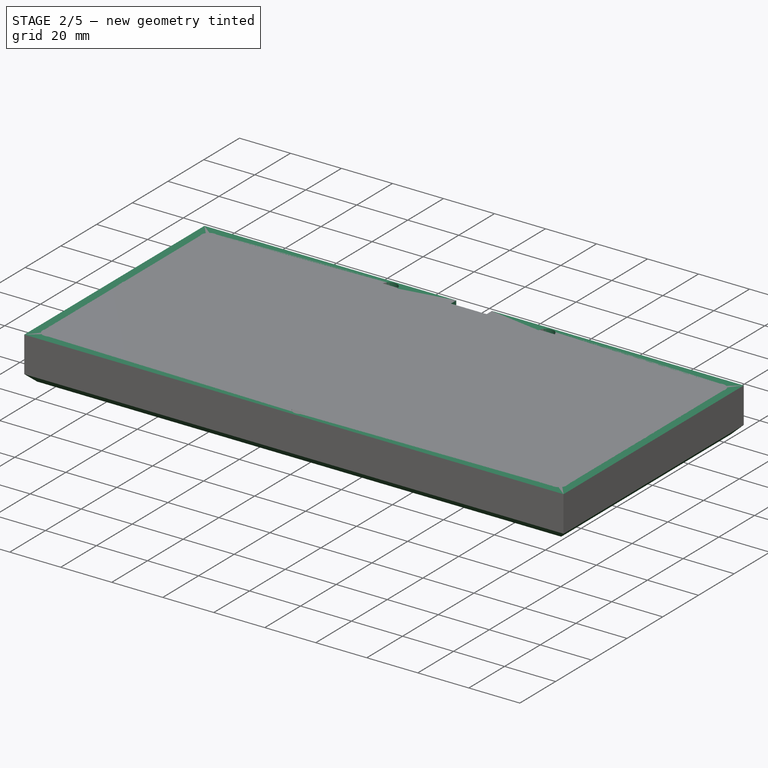
[diagram: stage 2 of 5 — iso view after this stage's code; geometry added in this stage tinted green]
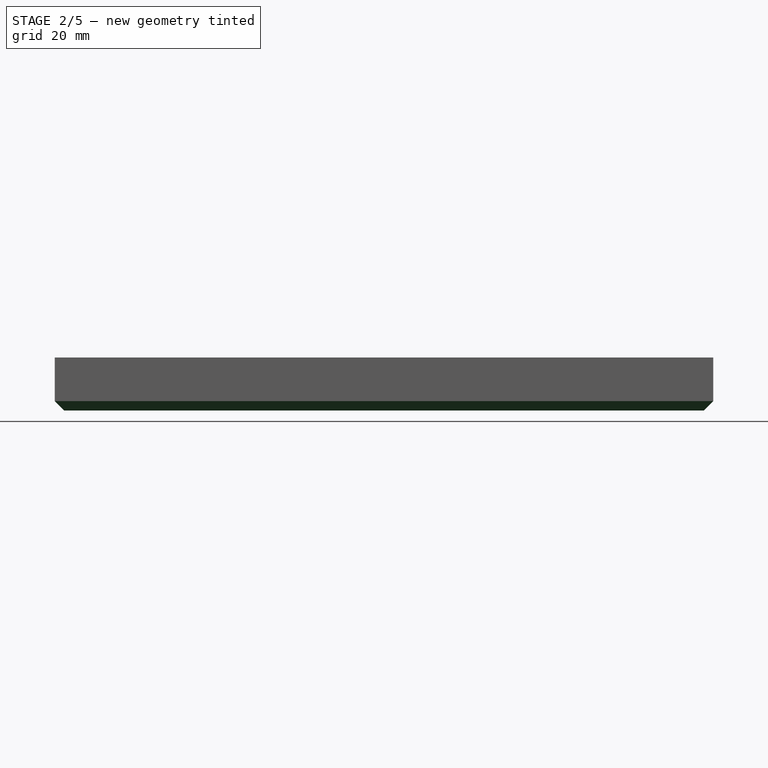
[diagram: stage 2 of 5 — front view after this stage's code; geometry added in this stage tinted green]
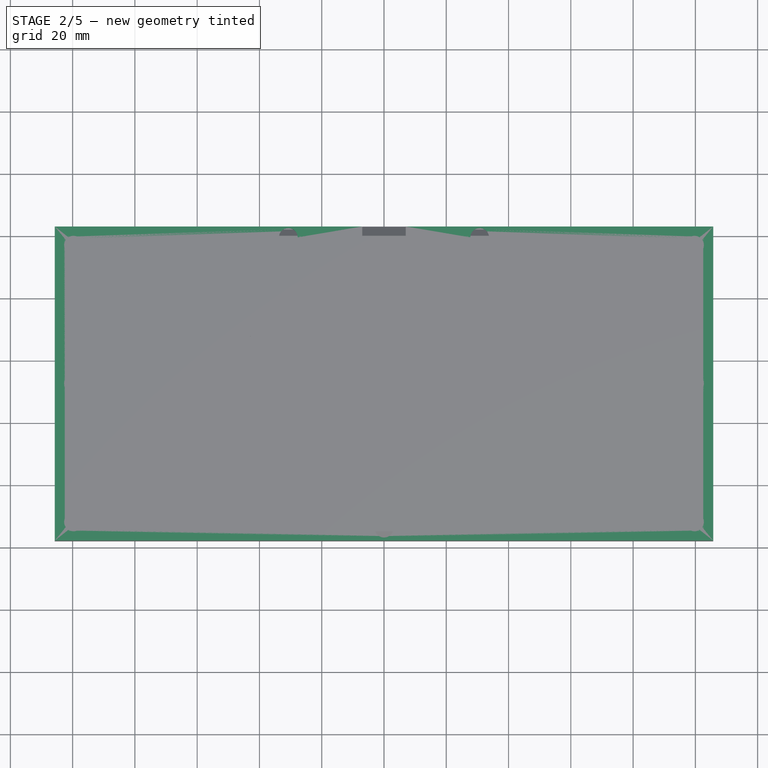
[diagram: stage 2 of 5 — top view after this stage's code; geometry added in this stage tinted green]
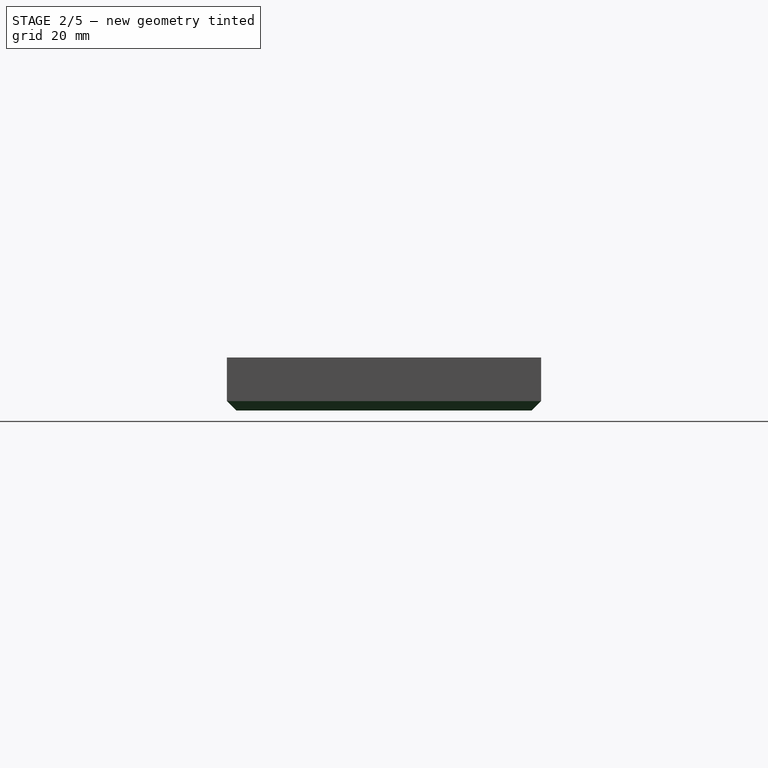
[diagram: stage 2 of 5 — right view after this stage's code; geometry added in this stage tinted green]
FEATURE [PartDesign::ShapeBinder] ShapeBinder020
  Support = -> [Sketch041]
  TraceSupport = false
FEATURE [Sketcher::SketchObject] Sketch042
  ArcFitTolerance = 0
  AttachmentSupport = -> [XY_Plane009]
  ExternalGeometry = -> [Pad008]
  FullyConstrained = true
  MakeInternals = false
  MapMode = 5
  sketch-geometry (4):
    g0: LineSegment StartX=-102.725 StartY=-15 StartZ=0 EndX=102.725 EndY=-15 EndZ=0
    g1: LineSegment StartX=102.725 StartY=-15 StartZ=0 EndX=102.725 EndY=79.9125 EndZ=0
    g2: LineSegment StartX=102.725 StartY=79.9125 StartZ=0 EndX=-102.725 EndY=79.9125 EndZ=0
    g3: LineSegment StartX=-102.725 StartY=79.9125 StartZ=0 EndX=-102.725 EndY=-15 EndZ=0
  constraints (12):
    c: Coincident(g0,g1)
    c: Coincident(g1,g2)
    c: Coincident(g2,g3)
    c: Coincident(g3,g0)
    c: Horizontal(g0)
    c: Horizontal(g2)
    c: Vertical(g1)
    c: Vertical(g3)
    c: DistanceX(g1,g-6) = 3
    c: DistanceY(g-6,g0) = 3
    c: DistanceX(g-5,g0) = 3
    c: DistanceY(g2,g-4) = 3
FEATURE [PartDesign::Pocket] Pocket026
  BaseFeature = -> Pad008
  Direction = (0,0,-1)
  Length = 4
  Length2 = 5
  Profile = -> Sketch042
  ReferenceAxis = -> Sketch042 [N_Axis]
  Reversed = true
  Suppressed = false
  Type = 0
FEATURE [Sketcher::SketchObject] Sketch043
  ArcFitTolerance = 0
  AttachmentSupport = -> [XY_Plane009]
  ExternalGeometry = -> [ShapeBinder018,Pocket026]
  FullyConstrained = true
  MakeInternals = false
  MapMode = 5
  sketch-geometry (24):
    g0: LineSegment StartX=-102.725 StartY=53.8625 StartZ=0 EndX=-77.725 EndY=53.8625 EndZ=0
    g1: LineSegment StartX=-77.725 StartY=53.8625 StartZ=0 EndX=-77.725 EndY=72.7225 EndZ=0
    g2: LineSegment StartX=-77.725 StartY=72.7225 StartZ=0 EndX=-58.625 EndY=72.7225 EndZ=0
    g3: LineSegment StartX=-58.625 StartY=72.7225 StartZ=0 EndX=-58.625 EndY=79.9125 EndZ=0
    g4: LineSegment StartX=-58.625 StartY=79.9125 StartZ=0 EndX=-23.625 EndY=79.9125 EndZ=0
    g5: LineSegment StartX=-23.625 StartY=79.9125 StartZ=0 EndX=-23.625 EndY=72.7225 EndZ=0
    g6: LineSegment StartX=-23.625 StartY=72.7225 StartZ=0 EndX=23.625 EndY=72.7225 EndZ=0
    g7: LineSegment StartX=23.625 StartY=72.7225 StartZ=0 EndX=23.625 EndY=79.9125 EndZ=0
    g8: LineSegment StartX=23.625 StartY=79.9125 StartZ=0 EndX=58.625 EndY=79.9125 EndZ=0
    g9: LineSegment StartX=58.625 StartY=79.9125 StartZ=0 EndX=58.625 EndY=72.7225 EndZ=0
    g10: LineSegment StartX=58.625 StartY=72.7225 StartZ=0 EndX=77.725 EndY=72.7225 EndZ=0
    g11: LineSegment StartX=77.725 StartY=72.7225 StartZ=0 EndX=77.725 EndY=53.8625 EndZ=0
    g12: LineSegment StartX=77.725 StartY=53.8625 StartZ=0 EndX=102.725 EndY=53.8625 EndZ=0
    g13: LineSegment StartX=102.725 StartY=53.8625 StartZ=0 EndX=102.725 EndY=12.8125 EndZ=0
    g14: LineSegment StartX=102.725 StartY=12.8125 StartZ=0 EndX=89.725 EndY=12.8125 EndZ=0
    g15: LineSegment StartX=89.725 StartY=12.8125 StartZ=0 EndX=89.725 EndY=3 EndZ=0
    g16: LineSegment StartX=89.725 StartY=3 StartZ=0 EndX=49.575 EndY=3 EndZ=0
    g17: LineSegment StartX=49.575 StartY=3 StartZ=0 EndX=49.575 EndY=-15 EndZ=0
    g18: LineSegment StartX=49.575 StartY=-15 StartZ=0 EndX=-49.575 EndY=-15 EndZ=0
    g19: LineSegment StartX=-49.575 StartY=-15 StartZ=0 EndX=-49.575 EndY=3 EndZ=0
    g20: LineSegment StartX=-49.575 StartY=3 StartZ=0 EndX=-89.725 EndY=3 EndZ=0
    g21: LineSegment StartX=-89.725 StartY=3 StartZ=0 EndX=-89.725 EndY=12.8125 EndZ=0
    g22: LineSegment StartX=-89.725 StartY=12.8125 StartZ=0 EndX=-102.725 EndY=12.8125 EndZ=0
    g23: LineSegment StartX=-102.725 StartY=12.8125 StartZ=0 EndX=-102.725 EndY=53.8625 EndZ=0
  constraints (72):
    c: Horizontal(g0)
    c: Coincident(g0,g1)
    c: Vertical(g1)
    c: Coincident(g1,g2)
    c: Coincident(g2,g3)
    c: Vertical(g3)
    c: Coincident(g3,g4)
    c: Horizontal(g4)
    c: Coincident(g4,g5)
    c: Vertical(g5)
    c: Coincident(g5,g6)
    c: Horizontal(g6)
    c: Coincident(g6,g7)
    c: Vertical(g7)
    c: Coincident(g7,g8)
    c: Horizontal(g8)
    c: Coincident(g8,g9)
    c: Vertical(g9)
    c: Coincident(g9,g10)
    c: Horizontal(g10)
    c: Coincident(g10,g11)
    c: Vertical(g11)
    c: Coincident(g11,g12)
    c: Horizontal(g12)
    c: Coincident(g12,g13)
    c: Vertical(g13)
    c: Coincident(g13,g14)
    c: Coincident(g14,g15)
    c: Vertical(g15)
    c: Coincident(g15,g16)
    c: Horizontal(g16)
    c: Coincident(g16,g17)
    c: Vertical(g17)
    c: Coincident(g17,g18)
    c: Horizontal(g18)
    c: Coincident(g18,g19)
    c: Vertical(g19)
    c: Coincident(g19,g20)
    c: Horizontal(g20)
    c: Coincident(g20,g21)
    c: Vertical(g21)
    c: Coincident(g21,g22)
    c: Horizontal(g22)
    c: Coincident(g22,g23)
    c: Vertical(g23)
    c: Coincident(g0,g23)
    c: DistanceX(g-4,g19) = 1
    c: DistanceY(g-4,g19) = 3
    c: PointOnObject(g18,g-13)
    c: DistanceX(g16,g-5) = 1
    c: Horizontal(g16,g19)
    c: DistanceX(g15,g-6) = 3
    c: Horizontal(g14)
    c: DistanceY(g-6,g13) = 1
    c: PointOnObject(g13,g-14)
    c: DistanceY(g11,g-7) = 1
    c: DistanceX(g11,g-7) = 1
    c: DistanceX(g9,g-8) = 1
    c: DistanceY(g9,g-8) = 1
    c: PointOnObject(g8,g-15)
    c: PointOnObject(g4,g-15)
    c: DistanceX(g-9,g6) = 4
    c: DistanceX(g5,g-10) = 4
    c: DistanceY(g5,g-10) = 1
    c: Horizontal(g2)
    c: DistanceX(g-11,g2) = 1
    c: DistanceY(g2,g-11) = 1
    c: DistanceX(g-12,g0) = 1
    c: DistanceY(g0,g-12) = 1
    c: PointOnObject(g22,g-16)
    c: DistanceY(g-3,g21) = 1
    c: DistanceX(g-3,g21) = 3
FEATURE [PartDesign::Pocket] Pocket027
  BaseFeature = -> Pocket026
  Direction = (0,0,-1)
  Length = 9
  Length2 = 5
  Profile = -> Sketch043
  ReferenceAxis = -> Sketch043 [N_Axis]
  Reversed = true
  Suppressed = false
  Type = 0
FEATURE [Sketcher::SketchObject] Sketch044
  ArcFitTolerance = 0
  AttachmentSupport = -> [XY_Plane009]
  ExternalGeometry = -> [ShapeBinder019]
  FullyConstrained = true
  MakeInternals = false
  MapMode = 5
  sketch-geometry (11):
    g0: Circle CenterX=-99.725 CenterY=-12 CenterZ=0 NormalX=0 NormalY=0 NormalZ=1 AngleXU=0 Radius=3
    g1: Circle CenterX=-65.725 CenterY=1e-15 CenterZ=0 NormalX=0 NormalY=0 NormalZ=1 AngleXU=0 Radius=3
    g2: Circle CenterX=0 CenterY=-14 CenterZ=0 NormalX=0 NormalY=0 NormalZ=1 AngleXU=0 Radius=3
    g3: Circle CenterX=-99.725 CenterY=32.4562 CenterZ=0 NormalX=0 NormalY=0 NormalZ=1 AngleXU=0 Radius=3
    g4: Circle CenterX=-99.725 CenterY=76.9125 CenterZ=0 NormalX=0 NormalY=0 NormalZ=1 AngleXU=0 Radius=3
    g5: Circle CenterX=-30.725 CenterY=79.4125 CenterZ=0 NormalX=0 NormalY=0 NormalZ=1 AngleXU=0 Radius=3
    g6: Circle CenterX=30.725 CenterY=79.4125 CenterZ=0 NormalX=0 NormalY=0 NormalZ=1 AngleXU=0 Radius=3
    g7: Circle CenterX=99.725 CenterY=76.9125 CenterZ=0 NormalX=0 NormalY=0 NormalZ=1 AngleXU=0 Radius=3
    g8: Circle CenterX=99.725 CenterY=32.4562 CenterZ=0 NormalX=0 NormalY=0 NormalZ=1 AngleXU=0 Radius=3
    g9: Circle CenterX=65.725 CenterY=-9e-16 CenterZ=0 NormalX=0 NormalY=0 NormalZ=1 AngleXU=0 Radius=3
    g10: Circle CenterX=99.725 CenterY=-12 CenterZ=0 NormalX=0 NormalY=0 NormalZ=1 AngleXU=0 Radius=3
  constraints (22):
    c: Coincident(g0,g-5)
    c: Coincident(g1,g-4)
    c: Coincident(g2,g-14)
    c: Coincident(g3,g-3)
    c: Coincident(g4,g-7)
    c: Coincident(g5,g-8)
    c: Coincident(g6,g-9)
    c: Coincident(g7,g-10)
    c: Coincident(g8,g-11)
    c: Coincident(g9,g-12)
    c: Coincident(g10,g-13)
    c: Diameter(g0) = 6
    c: Equal(g3,g1)
    c: Equal(g1,g2)
    c: Equal(g2,g9)
    c: Equal(g9,g10)
    c: Equal(g10,g8)
    c: Equal(g8,g7)
    c: Equal(g7,g6)
    c: Equal(g6,g5)
    c: Equal(g5,g4)
    c: Equal(g0,g1)
FEATURE [PartDesign::ShapeBinder] ShapeBinder021
  Support = -> [Sketch039]
  TraceSupport = false
FEATURE [Sketcher::SketchObject] Sketch045
  ArcFitTolerance = 0
  AttachmentSupport = -> [XY_Plane009]
  ExternalGeometry = -> [ShapeBinder019]
  FullyConstrained = true
  MakeInternals = false
  MapMode = 5
  sketch-geometry (9):
    g0: Circle CenterX=-99.725 CenterY=32.4562 CenterZ=0 NormalX=0 NormalY=0 NormalZ=1 AngleXU=0 Radius=3.5
    g1: Circle CenterX=0 CenterY=-14 CenterZ=0 NormalX=0 NormalY=0 NormalZ=1 AngleXU=0 Radius=3.5
    g2: Circle CenterX=-30.725 CenterY=79.4125 CenterZ=0 NormalX=0 NormalY=0 NormalZ=1 AngleXU=0 Radius=3.5
    g3: Circle CenterX=30.725 CenterY=79.4125 CenterZ=0 NormalX=0 NormalY=0 NormalZ=1 AngleXU=0 Radius=3.5
    g4: Circle CenterX=99.725 CenterY=32.4562 CenterZ=0 NormalX=0 NormalY=0 NormalZ=1 AngleXU=0 Radius=3.5
    g5: Circle CenterX=-99.725 CenterY=76.9125 CenterZ=0 NormalX=0 NormalY=0 NormalZ=1 AngleXU=0 Radius=3.5
    g6: Circle CenterX=-99.725 CenterY=-12 CenterZ=0 NormalX=0 NormalY=0 NormalZ=1 AngleXU=0 Radius=3.5
    g7: Circle CenterX=99.725 CenterY=-12 CenterZ=0 NormalX=0 NormalY=0 NormalZ=1 AngleXU=0 Radius=3.5
    g8: Circle CenterX=99.725 CenterY=76.9125 CenterZ=0 NormalX=0 NormalY=0 NormalZ=1 AngleXU=0 Radius=3.5
  constraints (18):
    c: Coincident(g0,g-8)
    c: Coincident(g1,g-7)
    c: Coincident(g2,g-4)
    c: Coincident(g3,g-5)
    c: Coincident(g4,g-6)
    c: Diameter(g3) = 7
    c: Equal(g4,g1)
    c: Equal(g1,g0)
    c: Equal(g0,g2)
    c: Equal(g2,g3)
    c: Coincident(g5,g-9)
    c: Coincident(g6,g-10)
    c: Coincident(g7,g-12)
    c: Coincident(g8,g-14)
    c: Equal(g6,g5)
    c: Equal(g5,g0)
    c: Equal(g7,g4)
    c: Equal(g8,g5)
FEATURE [PartDesign::Pad] Pad009
  BaseFeature = -> Pocket027
  Direction = (0,0,1)
  Length = 5
  Length2 = -9
  Profile = -> Sketch045
  ReferenceAxis = -> Sketch045 [N_Axis]
  Suppressed = false
  Type = 4
FEATURE [PartDesign::Pocket] Pocket028
  BaseFeature = -> Pad009
  Direction = (0,0,-1)
  Length = 11
  Length2 = -9
  Profile = -> Sketch044
  ReferenceAxis = -> Sketch044 [N_Axis]
  Reversed = true
  Suppressed = false
  Type = 4
FEATURE [PartDesign::Pocket] Pocket029
  BaseFeature = -> Pocket028
  Direction = (0,0,-1)
  Length = 5
  Length2 = 5
  Profile = -> ShapeBinder021
  Reversed = true
  Suppressed = false
  Type = 1
FEATURE [Sketcher::SketchObject] Sketch050
  ArcFitTolerance = 0
  AttachmentSupport = -> [XY_Plane009]
  ExternalGeometry = -> [ShapeBinder020,Sketch042]
  FullyConstrained = true
  MakeInternals = false
  MapMode = 5
  sketch-geometry (4):
    g0: Circle CenterX=-87.725 CenterY=0 CenterZ=0 NormalX=0 NormalY=0 NormalZ=1 AngleXU=0 Radius=5.75
    g1: Circle CenterX=-87.725 CenterY=64.9125 CenterZ=0 NormalX=0 NormalY=0 NormalZ=1 AngleXU=0 Radius=5.75
    g2: Circle CenterX=87.725 CenterY=64.9125 CenterZ=0 NormalX=0 NormalY=0 NormalZ=1 AngleXU=0 Radius=5.75
    g3: Circle CenterX=87.725 CenterY=0 CenterZ=0 NormalX=0 NormalY=0 NormalZ=1 AngleXU=0 Radius=5.75
  constraints (12):
    c: Diameter(g0) = 11.5
    c: Equal(g0,g1)
    c: Equal(g1,g2)
    c: Equal(g2,g3)
    c: Vertical(g0,g1)
    c: Horizontal(g1,g2)
    c: Vertical(g3,g2)
    c: Horizontal(g3,g0)
    c: DistanceX(g3,g-6) = 15
    c: DistanceY(g2,g-6) = 15
    c: DistanceY(g-6,g3) = 15
    c: DistanceX(g-5,g0) = 15
FEATURE [Sketcher::SketchObject] Sketch051
  ArcFitTolerance = 0
  AttachmentSupport = -> [XY_Plane009]
  ExternalGeometry = -> [Sketch050]
  FullyConstrained = true
  MakeInternals = false
  MapMode = 5
  sketch-geometry (4):
    g0: Circle CenterX=-87.725 CenterY=0 CenterZ=0 NormalX=0 NormalY=0 NormalZ=1 AngleXU=0 Radius=8
    g1: Circle CenterX=-87.725 CenterY=64.9125 CenterZ=0 NormalX=0 NormalY=0 NormalZ=1 AngleXU=0 Radius=8
    g2: Circle CenterX=87.725 CenterY=64.9125 CenterZ=0 NormalX=0 NormalY=0 NormalZ=1 AngleXU=0 Radius=8
    g3: Circle CenterX=87.725 CenterY=0 CenterZ=0 NormalX=0 NormalY=0 NormalZ=1 AngleXU=0 Radius=8
  constraints (8):
    c: Coincident(g0,g-4)
    c: Coincident(g1,g-3)
    c: Coincident(g2,g-6)
    c: Coincident(g3,g-5)
    c: Diameter(g1) = 16
    c: Equal(g0,g3)
    c: Equal(g3,g2)
    c: Equal(g2,g1)
FEATURE [PartDesign::Pad] Pad010
  BaseFeature = -> Pocket029
  Direction = (0,0,1)
  Length = 8
  Length2 = -1
  Profile = -> Sketch051
  ReferenceAxis = -> Sketch051 [N_Axis]
  Suppressed = false
  Type = 4
FEATURE [PartDesign::Pocket] Pocket032
  BaseFeature = -> Pad010
  Direction = (0,0,-1)
  Length = 3
  Length2 = 5
  Profile = -> Sketch050
  ReferenceAxis = -> Sketch050 [N_Axis]
  Reversed = true
  Suppressed = false
  Type = 0
FEATURE [PartDesign::ShapeBinder] ShapeBinder022
  Support = -> [Sketch038]
  TraceSupport = false
FEATURE [PartDesign::ShapeBinder] ShapeBinder023
  Support = -> [Sketch038]
  TraceSupport = false
FEATURE [Sketcher::SketchObject] Sketch052
  ArcFitTolerance = 0
  AttachmentSupport = -> [Pocket032]
  ExternalGeometry = -> [ShapeBinder022]
  FullyConstrained = true
  MakeInternals = false
  MapMode = 5
  Placement = pos=(0,0,11) rot=(0,0,1;0rad)
  sketch-geometry (8):
    g0: LineSegment StartX=-7 StartY=82.9125 StartZ=0 EndX=-7 EndY=70.9125 EndZ=0
    g1: LineSegment StartX=-3 StartY=66.9125 StartZ=0 EndX=3 EndY=66.9125 EndZ=0
    g2: LineSegment StartX=7 StartY=82.9125 StartZ=0 EndX=7 EndY=70.9125 EndZ=0
    g3: ArcOfCircle CenterX=-3 CenterY=70.9125 CenterZ=0 NormalX=0 NormalY=0 NormalZ=1 AngleXU=0 Radius=4 StartAngle=3.14159 EndAngle=4.71239
    g4: ArcOfCircle CenterX=3 CenterY=70.9125 CenterZ=0 NormalX=0 NormalY=0 NormalZ=1 AngleXU=0 Radius=4 StartAngle=4.71239 EndAngle=6.28319
    g5: LineSegment [constr] StartX=-7 StartY=77.2425 StartZ=0 EndX=0 EndY=77.2425 EndZ=0
    g6: LineSegment [constr] StartX=0 StartY=77.2425 StartZ=0 EndX=7 EndY=77.2425 EndZ=0
    g7: LineSegment StartX=-7 StartY=82.9125 StartZ=0 EndX=7 EndY=82.9125 EndZ=0
  constraints (27):
    c: PointOnObject(g0,g-3)
    c: Vertical(g0)
    c: Horizontal(g1)
    c: PointOnObject(g2,g-3)
    c: Vertical(g2)
    c: Coincident(g3,g0)
    c: Coincident(g1,g3)
    c: Coincident(g4,g1)
    c: Coincident(g4,g2)
    c: Horizontal(g4,g3)
    c: Horizontal(g3,g0)
    c: Horizontal(g0,g2)
    c: Vertical(g3,g1)
    c: Vertical(g4,g1)
    c: PointOnObject(g5,g0)
    c: PointOnObject(g5,g-2)
    c: Horizontal(g5)
    c: Coincident(g6,g5)
    c: PointOnObject(g6,g2)
    c: Horizontal(g6)
    c: Equal(g6,g5)
    c: Coincident(g7,g0)
    c: Coincident(g7,g2)
    c: DistanceX(g7,g7) = 14
    c: DistanceY(g1,g0) = 16
    c: DistanceX(g0,g3) = 4
    c: DistanceY(g5,g0) = 5.67
FEATURE [PartDesign::Pocket] Pocket033  label="usb"
  BaseFeature = -> Pocket032
  Direction = (0,0,-1)
  Length = 5
  Length2 = 5
  Profile = -> Sketch052
  ReferenceAxis = -> Sketch052 [N_Axis]
  Suppressed = false
  Type = 1
FEATURE [Sketcher::SketchObject] Sketch053
  ArcFitTolerance = 0
  AttachmentSupport = -> [XY_Plane009]
  ExternalGeometry = -> [ShapeBinder022]
  FullyConstrained = true
  MakeInternals = false
  MapMode = 5
  sketch-geometry (9):
    g0: LineSegment [constr] StartX=0 StartY=32.4562 StartZ=0 EndX=0 EndY=-18 EndZ=0
    g1: ArcOfCircle CenterX=-30 CenterY=32.4562 CenterZ=0 NormalX=0 NormalY=0 NormalZ=1 AngleXU=0 Radius=20 StartAngle=1.5708 EndAngle=4.71239
    g2: ArcOfCircle CenterX=30 CenterY=32.4562 CenterZ=0 NormalX=0 NormalY=0 NormalZ=1 AngleXU=0 Radius=20 StartAngle=4.71239 EndAngle=7.85398
    g3: LineSegment StartX=-30 StartY=12.4563 StartZ=0 EndX=30 EndY=12.4563 EndZ=0
    g4: LineSegment StartX=30 StartY=52.4562 StartZ=0 EndX=-30 EndY=52.4562 EndZ=0
    g5: LineSegment [constr] StartX=-30 StartY=32.4562 StartZ=0 EndX=0 EndY=32.4562 EndZ=0
    g6: LineSegment [constr] StartX=0 StartY=32.4562 StartZ=0 EndX=30 EndY=32.4562 EndZ=0
    g7: LineSegment [constr] StartX=-50 StartY=32.4562 StartZ=0 EndX=50 EndY=32.4562 EndZ=0
    g8: LineSegment [constr] StartX=0 StartY=32.4562 StartZ=0 EndX=0 EndY=82.9125 EndZ=0
  constraints (25):
    c: PointOnObject(g0,g-5)
    c: Vertical(g0)
    c: Tangent(g1,g3) = -1.5708
    c: Tangent(g3,g2) = -1.5708
    c: Tangent(g2,g4) = -1.5708
    c: Tangent(g4,g1) = -1.5708
    c: Equal(g1,g2)
    c: Horizontal(g3)
    c: Coincident(g5,g1)
    c: Coincident(g6,g2)
    c: Equal(g6,g5)
    c: Horizontal(g6)
    c: PointOnObject(g5,g-2)
    c: Coincident(g6,g5)
    c: PointOnObject(g7,g1)
    c: PointOnObject(g7,g2)
    c: Horizontal(g7)
    c: Horizontal(g2,g7)
    c: DistanceX(g7,g7) = 100
    c: DistanceY(g2,g2) = 40
    c: Coincident(g0,g5)
    c: Coincident(g8,g0)
    c: PointOnObject(g8,g-4)
    c: Vertical(g8)
    c: Equal(g8,g0)
FEATURE [PartDesign::Pocket] Pocket034
  BaseFeature = -> Pocket033
  Direction = (0,0,-1)
  Length = 13
  Length2 = 5
  Profile = -> Sketch053
  ReferenceAxis = -> Sketch053 [N_Axis]
  Reversed = true
  Suppressed = false
  Type = 1
FEATURE [PartDesign::Chamfer] Chamfer003
  Angle = 45
  Base = -> Pocket025 [Edge7,Edge4,Edge61,Edge10]
  BaseFeature = -> Pocket025
  ChamferType = 0
  FlipDirection = false
  Size = 3
  Size2 = 1
  SupportTransform = false
  Suppressed = false
  UseAllEdges = false
FEATURE [PartDesign::Chamfer] Chamfer005
  Angle = 45
  Base = -> Chamfer003
  BaseFeature = -> Chamfer003
  ChamferType = 0
  FlipDirection = false
  Size = 3
  Size2 = 1
  SupportTransform = false
  Suppressed = false
  UseAllEdges = false
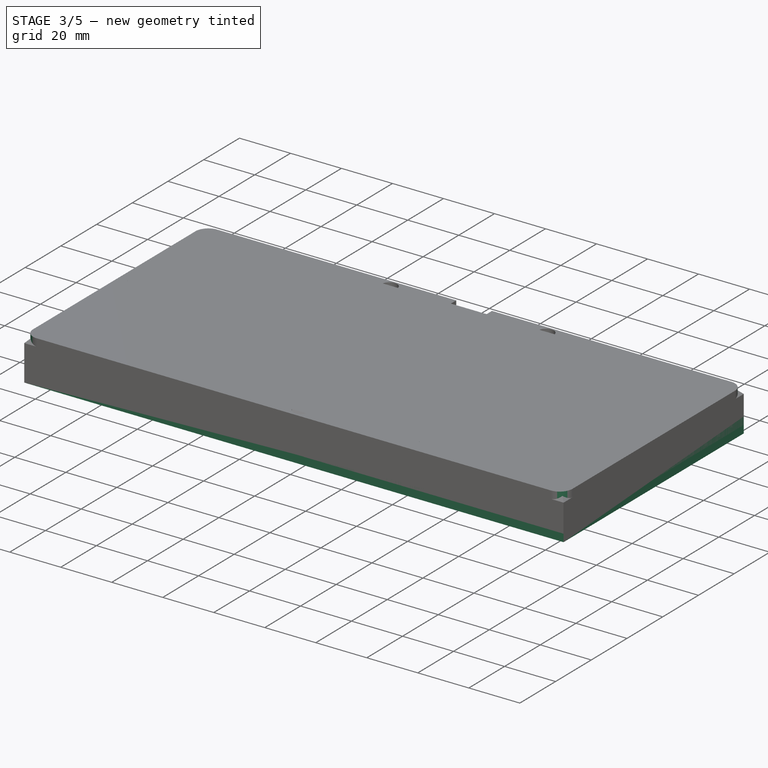
[diagram: stage 3 of 5 — iso view after this stage's code; geometry added in this stage tinted green]
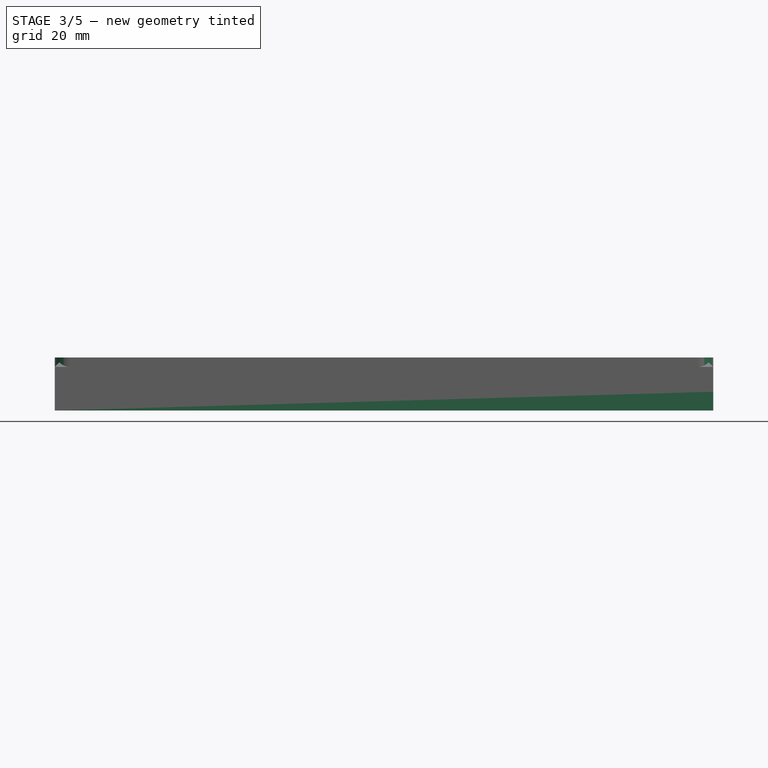
[diagram: stage 3 of 5 — front view after this stage's code; geometry added in this stage tinted green]
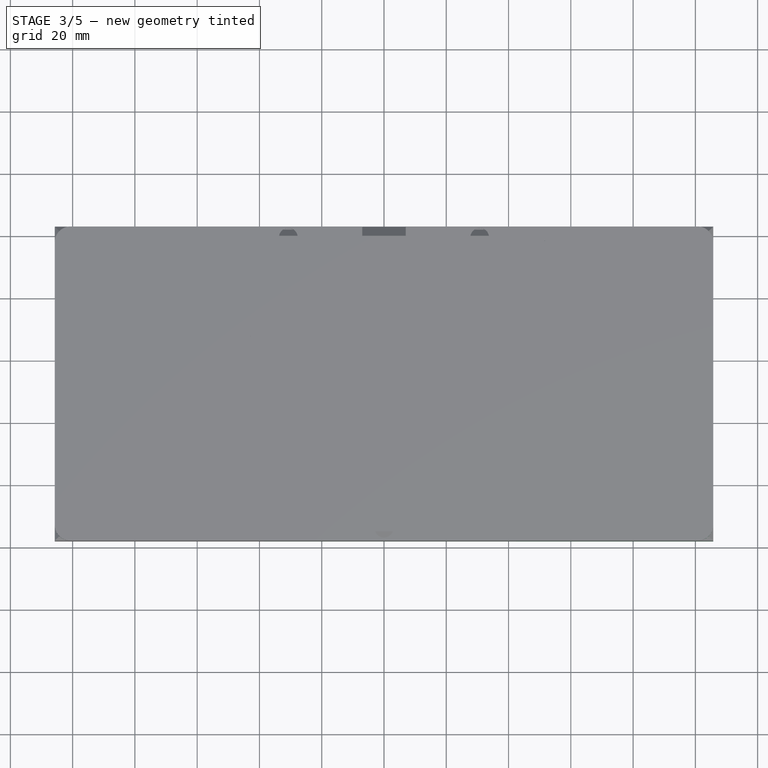
[diagram: stage 3 of 5 — top view after this stage's code; geometry added in this stage tinted green]
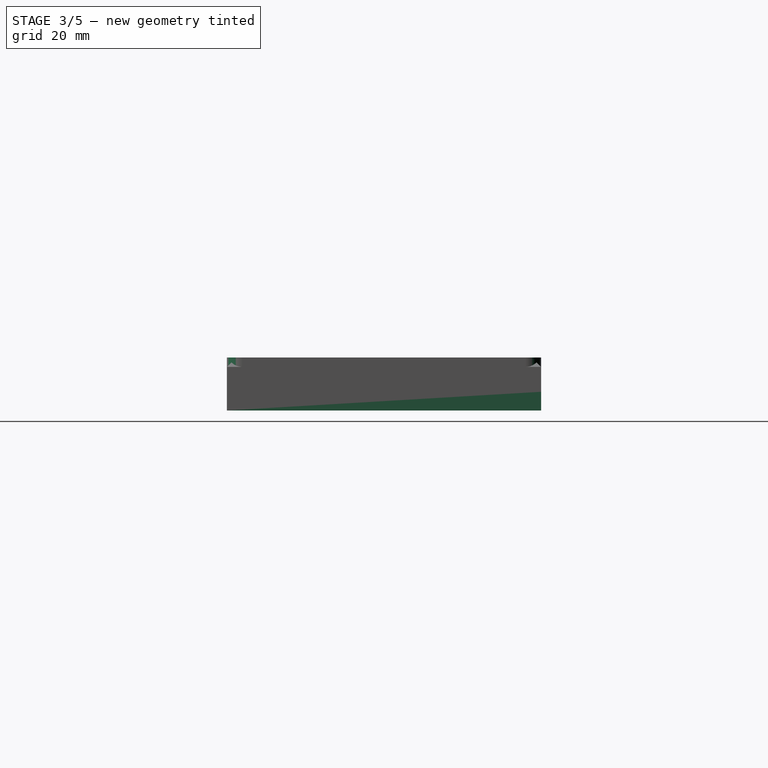
[diagram: stage 3 of 5 — right view after this stage's code; geometry added in this stage tinted green]
FEATURE [Sketcher::SketchObject] Sketch  label="switchorigins"
  ArcFitTolerance = 0
  AttachmentSupport = -> [XY_Plane]
  FullyConstrained = true
  MakeInternals = false
  MapMode = 5
  sketch-geometry (31):
    g0: GeomPoint X=-28.575 Y=0 Z=0
    g1: GeomPoint X=28.575 Y=0 Z=0
    g2: GeomPoint X=-9.525 Y=23.8125 Z=0
    g3: GeomPoint X=-9.525 Y=42.8625 Z=0
    g4: GeomPoint X=-9.525 Y=61.9125 Z=0
    g5: GeomPoint X=9.525 Y=61.9125 Z=0
    g6: GeomPoint X=9.525 Y=42.8625 Z=0
    g7: GeomPoint X=9.525 Y=23.8125 Z=0
    g8: GeomPoint X=0 Y=23.8125 Z=0
    g9: GeomPoint X=-28.575 Y=61.9125 Z=0
    g10: GeomPoint X=-28.575 Y=42.8625 Z=0
    g11: GeomPoint X=-28.575 Y=23.8125 Z=0
    g12: GeomPoint X=28.575 Y=23.8125 Z=0
    g13: GeomPoint X=28.575 Y=42.8625 Z=0
    g14: GeomPoint X=28.575 Y=61.9125 Z=0
    g15: GeomPoint X=-47.625 Y=65.7225 Z=0
    g16: GeomPoint X=-47.625 Y=46.6725 Z=0
    g17: GeomPoint X=-47.625 Y=27.6225 Z=0
    g18: GeomPoint X=47.625 Y=27.6225 Z=0
    g19: GeomPoint X=47.625 Y=46.6725 Z=0
    g20: GeomPoint X=47.625 Y=65.7225 Z=0
    g21: GeomPoint X=-66.675 Y=61.9125 Z=0
    g22: GeomPoint X=-66.675 Y=42.8625 Z=0
    g23: GeomPoint X=-66.675 Y=23.8125 Z=0
    g24: GeomPoint X=-85.725 Y=42.8625 Z=0
    g25: GeomPoint X=-85.725 Y=23.8125 Z=0
    g26: GeomPoint X=66.675 Y=23.8125 Z=0
    g27: GeomPoint X=66.675 Y=42.8625 Z=0
    g28: GeomPoint X=66.675 Y=61.9125 Z=0
    g29: GeomPoint X=85.725 Y=23.8125 Z=0
    g30: GeomPoint X=85.725 Y=42.8625 Z=0
  constraints (61):
    c: PointOnObject(g0,g-1)
    c: PointOnObject(g1,g-1)
    c: Vertical(g2,g3)
    c: Vertical(g3,g4)
    c: Vertical(g5,g6)
    c: Vertical(g6,g7)
    c: Horizontal(g3,g6)
    c: Horizontal(g4,g5)
    c: Horizontal(g2,g7)
    c: DistanceY(g2,g3) = 19.05
    c: DistanceY(g3,g4) = 19.05
    c: DistanceX(g3,g6) = 19.05
    c: PointOnObject(g8,g-2)
    c: Symmetric(g7,g2,g8)
    c: DistanceY(g-1,g8) = 23.8125
    c: Horizontal(g10,g13)
    c: Horizontal(g13,g3)
    c: Horizontal(g9,g14)
    c: Horizontal(g14,g4)
    c: Horizontal(g11,g12)
    c: Horizontal(g12,g2)
    c: Vertical(g12,g13)
    c: Vertical(g13,g14)
    c: DistanceX(g6,g13) = 19.05
    c: DistanceX(g10,g3) = 19.05
    c: Vertical(g9,g11)
    c: Vertical(g11,g10)
    c: Vertical(g12,g1)
    c: Vertical(g0,g11)
    c: Vertical(g19,g20)
    c: Vertical(g20,g18)
    c: DistanceY(g12,g18) = 3.81
    c: Vertical(g15,g16)
    c: Vertical(g16,g17)
    c: DistanceY(g18,g19) = 19.05
    c: DistanceX(g13,g19) = 19.05
    c: DistanceY(g19,g20) = 19.05
    c: Horizontal(g17,g18)
    c: Horizontal(g16,g19)
    c: Horizontal(g15,g20)
    c: DistanceX(g17,g10) = 19.05
    c: Horizontal(g28,g21)
    c: Horizontal(g21,g9)
    c: Horizontal(g22,g10)
    c: Horizontal(g10,g27)
    c: Horizontal(g23,g26)
    c: Horizontal(g26,g2)
    c: Vertical(g21,g22)
    c: Vertical(g22,g23)
    c: Vertical(g26,g27)
    c: Vertical(g27,g28)
    c: DistanceX(g18,g26) = 19.05
    c: DistanceX(g23,g17) = 19.05
    c: Horizontal(g22,g24)
    c: Horizontal(g23,g25)
    c: Vertical(g24,g25)
    c: DistanceX(g25,g23) = 19.05
    c: Horizontal(g27,g30)
    c: Horizontal(g26,g29)
    c: Vertical(g29,g30)
    c: DistanceX(g26,g29) = 19.05
FEATURE [Sketcher::SketchObject] Sketch001  label="switch plate cutouts"
  ArcFitTolerance = 0
  AttachmentSupport = -> [XY_Plane]
  ExternalGeometry = -> [Sketch]
  FullyConstrained = true
  MakeInternals = false
  MapMode = 5
  sketch-geometry (175):
    g0: LineSegment StartX=-92.725 StartY=49.8625 StartZ=0 EndX=-92.725 EndY=35.8625 EndZ=0
    g1: LineSegment StartX=-92.725 StartY=35.8625 StartZ=0 EndX=-78.725 EndY=35.8625 EndZ=0
    g2: LineSegment StartX=-78.725 StartY=35.8625 StartZ=0 EndX=-78.725 EndY=49.8625 EndZ=0
    g3: LineSegment StartX=-78.725 StartY=49.8625 StartZ=0 EndX=-92.725 EndY=49.8625 EndZ=0
    g4: GeomPoint [constr] X=-85.725 Y=42.8625 Z=0
    g5: LineSegment StartX=-92.725 StartY=30.8125 StartZ=0 EndX=-92.725 EndY=16.8125 EndZ=0
    g6: LineSegment StartX=-92.725 StartY=16.8125 StartZ=0 EndX=-78.725 EndY=16.8125 EndZ=0
    g7: LineSegment StartX=-78.725 StartY=16.8125 StartZ=0 EndX=-78.725 EndY=30.8125 EndZ=0
    g8: LineSegment StartX=-78.725 StartY=30.8125 StartZ=0 EndX=-92.725 EndY=30.8125 EndZ=0
    g9: GeomPoint [constr] X=-85.725 Y=23.8125 Z=0
    g10: LineSegment StartX=-73.675 StartY=30.8125 StartZ=0 EndX=-73.675 EndY=16.8125 EndZ=0
    g11: LineSegment StartX=-73.675 StartY=16.8125 StartZ=0 EndX=-59.675 EndY=16.8125 EndZ=0
    g12: LineSegment StartX=-59.675 StartY=16.8125 StartZ=0 EndX=-59.675 EndY=30.8125 EndZ=0
    g13: LineSegment StartX=-59.675 StartY=30.8125 StartZ=0 EndX=-73.675 EndY=30.8125 EndZ=0
    g14: GeomPoint [constr] X=-66.675 Y=23.8125 Z=0
    g15: LineSegment StartX=-73.675 StartY=49.8625 StartZ=0 EndX=-73.675 EndY=35.8625 EndZ=0
    g16: LineSegment StartX=-73.675 StartY=35.8625 StartZ=0 EndX=-59.675 EndY=35.8625 EndZ=0
    g17: LineSegment StartX=-59.675 StartY=35.8625 StartZ=0 EndX=-59.675 EndY=49.8625 EndZ=0
    g18: LineSegment StartX=-59.675 StartY=49.8625 StartZ=0 EndX=-73.675 EndY=49.8625 EndZ=0
    g19: GeomPoint [constr] X=-66.675 Y=42.8625 Z=0
    g20: LineSegment StartX=-73.675 StartY=68.9125 StartZ=0 EndX=-73.675 EndY=54.9125 EndZ=0
    g21: LineSegment StartX=-73.675 StartY=54.9125 StartZ=0 EndX=-59.675 EndY=54.9125 EndZ=0
    g22: LineSegment StartX=-59.675 StartY=54.9125 StartZ=0 EndX=-59.675 EndY=68.9125 EndZ=0
    g23: LineSegment StartX=-59.675 StartY=68.9125 StartZ=0 EndX=-73.675 EndY=68.9125 EndZ=0
    g24: GeomPoint [constr] X=-66.675 Y=61.9125 Z=0
    g25: LineSegment StartX=-54.625 StartY=72.7225 StartZ=0 EndX=-54.625 EndY=58.7225 EndZ=0
    g26: LineSegment StartX=-54.625 StartY=58.7225 StartZ=0 EndX=-40.625 EndY=58.7225 EndZ=0
    g27: LineSegment StartX=-40.625 StartY=58.7225 StartZ=0 EndX=-40.625 EndY=72.7225 EndZ=0
    g28: LineSegment StartX=-40.625 StartY=72.7225 StartZ=0 EndX=-54.625 EndY=72.7225 EndZ=0
    g29: GeomPoint [constr] X=-47.625 Y=65.7225 Z=0
    g30: LineSegment StartX=-54.625 StartY=53.6725 StartZ=0 EndX=-54.625 EndY=39.6725 EndZ=0
    g31: LineSegment StartX=-54.625 StartY=39.6725 StartZ=0 EndX=-40.625 EndY=39.6725 EndZ=0
    g32: LineSegment StartX=-40.625 StartY=39.6725 StartZ=0 EndX=-40.625 EndY=53.6725 EndZ=0
    g33: LineSegment StartX=-40.625 StartY=53.6725 StartZ=0 EndX=-54.625 EndY=53.6725 EndZ=0
    g34: GeomPoint [constr] X=-47.625 Y=46.6725 Z=0
    g35: LineSegment StartX=-54.625 StartY=34.6225 StartZ=0 EndX=-54.625 EndY=20.6225 EndZ=0
    g36: LineSegment StartX=-54.625 StartY=20.6225 StartZ=0 EndX=-40.625 EndY=20.6225 EndZ=0
    g37: LineSegment StartX=-40.625 StartY=20.6225 StartZ=0 EndX=-40.625 EndY=34.6225 EndZ=0
    g38: LineSegment StartX=-40.625 StartY=34.6225 StartZ=0 EndX=-54.625 EndY=34.6225 EndZ=0
    g39: GeomPoint [constr] X=-47.625 Y=27.6225 Z=0
    g40: LineSegment StartX=-35.575 StartY=30.8125 StartZ=0 EndX=-35.575 EndY=16.8125 EndZ=0
    g41: LineSegment StartX=-35.575 StartY=16.8125 StartZ=0 EndX=-21.575 EndY=16.8125 EndZ=0
    g42: LineSegment StartX=-21.575 StartY=16.8125 StartZ=0 EndX=-21.575 EndY=30.8125 EndZ=0
    g43: LineSegment StartX=-21.575 StartY=30.8125 StartZ=0 EndX=-35.575 EndY=30.8125 EndZ=0
    g44: GeomPoint [constr] X=-28.575 Y=23.8125 Z=0
    g45: LineSegment StartX=-35.575 StartY=49.8625 StartZ=0 EndX=-35.575 EndY=35.8625 EndZ=0
    g46: LineSegment StartX=-35.575 StartY=35.8625 StartZ=0 EndX=-21.575 EndY=35.8625 EndZ=0
    g47: LineSegment StartX=-21.575 StartY=35.8625 StartZ=0 EndX=-21.575 EndY=49.8625 EndZ=0
    g48: LineSegment StartX=-21.575 StartY=49.8625 StartZ=0 EndX=-35.575 EndY=49.8625 EndZ=0
    g49: GeomPoint [constr] X=-28.575 Y=42.8625 Z=0
    g50: LineSegment StartX=-35.575 StartY=68.9125 StartZ=0 EndX=-35.575 EndY=54.9125 EndZ=0
    g51: LineSegment StartX=-35.575 StartY=54.9125 StartZ=0 EndX=-21.575 EndY=54.9125 EndZ=0
    g52: LineSegment StartX=-21.575 StartY=54.9125 StartZ=0 EndX=-21.575 EndY=68.9125 EndZ=0
    g53: LineSegment StartX=-21.575 StartY=68.9125 StartZ=0 EndX=-35.575 EndY=68.9125 EndZ=0
    g54: GeomPoint [constr] X=-28.575 Y=61.9125 Z=0
    g55: LineSegment StartX=-16.525 StartY=68.9125 StartZ=0 EndX=-16.525 EndY=54.9125 EndZ=0
    g56: LineSegment StartX=-16.525 StartY=54.9125 StartZ=0 EndX=-2.525 EndY=54.9125 EndZ=0
    g57: LineSegment StartX=-2.525 StartY=54.9125 StartZ=0 EndX=-2.525 EndY=68.9125 EndZ=0
    g58: LineSegment StartX=-2.525 StartY=68.9125 StartZ=0 EndX=-16.525 EndY=68.9125 EndZ=0
    g59: GeomPoint [constr] X=-9.525 Y=61.9125 Z=0
    g60: LineSegment StartX=2.525 StartY=68.9125 StartZ=0 EndX=2.525 EndY=54.9125 EndZ=0
    g61: LineSegment StartX=2.525 StartY=54.9125 StartZ=0 EndX=16.525 EndY=54.9125 EndZ=0
    g62: LineSegment StartX=16.525 StartY=54.9125 StartZ=0 EndX=16.525 EndY=68.9125 EndZ=0
    g63: LineSegment StartX=16.525 StartY=68.9125 StartZ=0 EndX=2.525 EndY=68.9125 EndZ=0
    g64: GeomPoint [constr] X=9.525 Y=61.9125 Z=0
    g65: LineSegment StartX=21.575 StartY=68.9125 StartZ=0 EndX=21.575 EndY=54.9125 EndZ=0
    g66: LineSegment StartX=21.575 StartY=54.9125 StartZ=0 EndX=35.575 EndY=54.9125 EndZ=0
    g67: LineSegment StartX=35.575 StartY=54.9125 StartZ=0 EndX=35.575 EndY=68.9125 EndZ=0
    g68: LineSegment StartX=35.575 StartY=68.9125 StartZ=0 EndX=21.575 EndY=68.9125 EndZ=0
    g69: GeomPoint [constr] X=28.575 Y=61.9125 Z=0
    g70: LineSegment StartX=40.625 StartY=72.7225 StartZ=0 EndX=40.625 EndY=58.7225 EndZ=0
    g71: LineSegment StartX=40.625 StartY=58.7225 StartZ=0 EndX=54.625 EndY=58.7225 EndZ=0
    g72: LineSegment StartX=54.625 StartY=58.7225 StartZ=0 EndX=54.625 EndY=72.7225 EndZ=0
    g73: LineSegment StartX=54.625 StartY=72.7225 StartZ=0 EndX=40.625 EndY=72.7225 EndZ=0
    g74: GeomPoint [constr] X=47.625 Y=65.7225 Z=0
    g75: LineSegment StartX=59.675 StartY=68.9125 StartZ=0 EndX=59.675 EndY=54.9125 EndZ=0
    g76: LineSegment StartX=59.675 StartY=54.9125 StartZ=0 EndX=73.675 EndY=54.9125 EndZ=0
    g77: LineSegment StartX=73.675 StartY=54.9125 StartZ=0 EndX=73.675 EndY=68.9125 EndZ=0
    g78: LineSegment StartX=73.675 StartY=68.9125 StartZ=0 EndX=59.675 EndY=68.9125 EndZ=0
    g79: GeomPoint [constr] X=66.675 Y=61.9125 Z=0
    g80: LineSegment StartX=-16.525 StartY=49.8625 StartZ=0 EndX=-16.525 EndY=35.8625 EndZ=0
    g81: LineSegment StartX=-16.525 StartY=35.8625 StartZ=0 EndX=-2.525 EndY=35.8625 EndZ=0
    g82: LineSegment StartX=-2.525 StartY=35.8625 StartZ=0 EndX=-2.525 EndY=49.8625 EndZ=0
    g83: LineSegment StartX=-2.525 StartY=49.8625 StartZ=0 EndX=-16.525 EndY=49.8625 EndZ=0
    g84: GeomPoint [constr] X=-9.525 Y=42.8625 Z=0
    g85: LineSegment StartX=-16.525 StartY=30.8125 StartZ=0 EndX=-16.525 EndY=16.8125 EndZ=0
    g86: LineSegment StartX=-16.525 StartY=16.8125 StartZ=0 EndX=-2.525 EndY=16.8125 EndZ=0
    g87: LineSegment StartX=-2.525 StartY=16.8125 StartZ=0 EndX=-2.525 EndY=30.8125 EndZ=0
    g88: LineSegment StartX=-2.525 StartY=30.8125 StartZ=0 EndX=-16.525 EndY=30.8125 EndZ=0
    g89: GeomPoint [constr] X=-9.525 Y=23.8125 Z=0
    g90: LineSegment StartX=2.525 StartY=49.8625 StartZ=0 EndX=2.525 EndY=35.8625 EndZ=0
    g91: LineSegment StartX=2.525 StartY=35.8625 StartZ=0 EndX=16.525 EndY=35.8625 EndZ=0
    g92: LineSegment StartX=16.525 StartY=35.8625 StartZ=0 EndX=16.525 EndY=49.8625 EndZ=0
    g93: LineSegment StartX=16.525 StartY=49.8625 StartZ=0 EndX=2.525 EndY=49.8625 EndZ=0
    g94: GeomPoint [constr] X=9.525 Y=42.8625 Z=0
    g95: LineSegment StartX=21.575 StartY=49.8625 StartZ=0 EndX=21.575 EndY=35.8625 EndZ=0
    g96: LineSegment StartX=21.575 StartY=35.8625 StartZ=0 EndX=35.575 EndY=35.8625 EndZ=0
    g97: LineSegment StartX=35.575 StartY=35.8625 StartZ=0 EndX=35.575 EndY=49.8625 EndZ=0
    g98: LineSegment StartX=35.575 StartY=49.8625 StartZ=0 EndX=21.575 EndY=49.8625 EndZ=0
    g99: GeomPoint [constr] X=28.575 Y=42.8625 Z=0
    g100: LineSegment StartX=2.525 StartY=30.8125 StartZ=0 EndX=2.525 EndY=16.8125 EndZ=0
    g101: LineSegment StartX=2.525 StartY=16.8125 StartZ=0 EndX=16.525 EndY=16.8125 EndZ=0
    g102: LineSegment StartX=16.525 StartY=16.8125 StartZ=0 EndX=16.525 EndY=30.8125 EndZ=0
    g103: LineSegment StartX=16.525 StartY=30.8125 StartZ=0 EndX=2.525 EndY=30.8125 EndZ=0
    g104: GeomPoint [constr] X=9.525 Y=23.8125 Z=0
    g105: LineSegment StartX=21.575 StartY=30.8125 StartZ=0 EndX=21.575 EndY=16.8125 EndZ=0
    g106: LineSegment StartX=21.575 StartY=16.8125 StartZ=0 EndX=35.575 EndY=16.8125 EndZ=0
    g107: LineSegment StartX=35.575 StartY=16.8125 StartZ=0 EndX=35.575 EndY=30.8125 EndZ=0
    g108: LineSegment StartX=35.575 StartY=30.8125 StartZ=0 EndX=21.575 EndY=30.8125 EndZ=0
    g109: GeomPoint [constr] X=28.575 Y=23.8125 Z=0
    g110: LineSegment StartX=40.625 StartY=53.6725 StartZ=0 EndX=40.625 EndY=39.6725 EndZ=0
    g111: LineSegment StartX=40.625 StartY=39.6725 StartZ=0 EndX=54.625 EndY=39.6725 EndZ=0
    g112: LineSegment StartX=54.625 StartY=39.6725 StartZ=0 EndX=54.625 EndY=53.6725 EndZ=0
    g113: LineSegment StartX=54.625 StartY=53.6725 StartZ=0 EndX=40.625 EndY=53.6725 EndZ=0
    g114: GeomPoint [constr] X=47.625 Y=46.6725 Z=0
    g115: LineSegment StartX=59.675 StartY=49.8625 StartZ=0 EndX=59.675 EndY=35.8625 EndZ=0
    g116: LineSegment StartX=59.675 StartY=35.8625 StartZ=0 EndX=73.675 EndY=35.8625 EndZ=0
    g117: LineSegment StartX=73.675 StartY=35.8625 StartZ=0 EndX=73.675 EndY=49.8625 EndZ=0
    g118: LineSegment StartX=73.675 StartY=49.8625 StartZ=0 EndX=59.675 EndY=49.8625 EndZ=0
    g119: GeomPoint [constr] X=66.675 Y=42.8625 Z=0
    g120: LineSegment StartX=78.725 StartY=49.8625 StartZ=0 EndX=78.725 EndY=35.8625 EndZ=0
    g121: LineSegment StartX=78.725 StartY=35.8625 StartZ=0 EndX=92.725 EndY=35.8625 EndZ=0
    g122: LineSegment StartX=92.725 StartY=35.8625 StartZ=0 EndX=92.725 EndY=49.8625 EndZ=0
    g123: LineSegment StartX=92.725 StartY=49.8625 StartZ=0 EndX=78.725 EndY=49.8625 EndZ=0
    g124: GeomPoint [constr] X=85.725 Y=42.8625 Z=0
    g125: LineSegment StartX=40.625 StartY=34.6225 StartZ=0 EndX=40.625 EndY=20.6225 EndZ=0
    g126: LineSegment StartX=40.625 StartY=20.6225 StartZ=0 EndX=54.625 EndY=20.6225 EndZ=0
    g127: LineSegment StartX=54.625 StartY=20.6225 StartZ=0 EndX=54.625 EndY=34.6225 EndZ=0
    g128: LineSegment StartX=54.625 StartY=34.6225 StartZ=0 EndX=40.625 EndY=34.6225 EndZ=0
    g129: GeomPoint [constr] X=47.625 Y=27.6225 Z=0
    g130: LineSegment StartX=59.675 StartY=30.8125 StartZ=0 EndX=59.675 EndY=16.8125 EndZ=0
    g131: LineSegment StartX=59.675 StartY=16.8125 StartZ=0 EndX=73.675 EndY=16.8125 EndZ=0
    g132: LineSegment StartX=73.675 StartY=16.8125 StartZ=0 EndX=73.675 EndY=30.8125 EndZ=0
    g133: LineSegment StartX=73.675 StartY=30.8125 StartZ=0 EndX=59.675 EndY=30.8125 EndZ=0
    g134: GeomPoint [constr] X=66.675 Y=23.8125 Z=0
    g135: LineSegment StartX=78.725 StartY=30.8125 StartZ=0 EndX=78.725 EndY=16.8125 EndZ=0
    g136: LineSegment StartX=78.725 StartY=16.8125 StartZ=0 EndX=92.725 EndY=16.8125 EndZ=0
    g137: LineSegment StartX=92.725 StartY=16.8125 StartZ=0 EndX=92.725 EndY=30.8125 EndZ=0
    g138: LineSegment StartX=92.725 StartY=30.8125 StartZ=0 EndX=78.725 EndY=30.8125 EndZ=0
    g139: GeomPoint [constr] X=85.725 Y=23.8125 Z=0
    g140: LineSegment StartX=-35.575 StartY=7 StartZ=0 EndX=-35.575 EndY=-7 EndZ=0
    g141: LineSegment StartX=-35.575 StartY=-7 StartZ=0 EndX=-21.575 EndY=-7 EndZ=0
    g142: LineSegment StartX=-21.575 StartY=-7 StartZ=0 EndX=-21.575 EndY=7 EndZ=0
    g143: LineSegment StartX=-21.575 StartY=7 StartZ=0 EndX=-35.575 EndY=7 EndZ=0
    g144: GeomPoint [constr] X=-28.575 Y=0 Z=0
    g145: LineSegment StartX=-7 StartY=7 StartZ=0 EndX=-7 EndY=-7 EndZ=0
    g146: LineSegment StartX=-7 StartY=-7 StartZ=0 EndX=7 EndY=-7 EndZ=0
    g147: LineSegment StartX=7 StartY=-7 StartZ=0 EndX=7 EndY=7 EndZ=0
    g148: LineSegment StartX=7 StartY=7 StartZ=0 EndX=-7 EndY=7 EndZ=0
    g149: GeomPoint [constr] X=0 Y=0 Z=0
    g150: LineSegment StartX=21.575 StartY=7 StartZ=0 EndX=21.575 EndY=-7 EndZ=0
    g151: LineSegment StartX=21.575 StartY=-7 StartZ=0 EndX=35.575 EndY=-7 EndZ=0
    g152: LineSegment StartX=35.575 StartY=-7 StartZ=0 EndX=35.575 EndY=7 EndZ=0
    g153: LineSegment StartX=35.575 StartY=7 StartZ=0 EndX=21.575 EndY=7 EndZ=0
    g154: GeomPoint [constr] X=28.575 Y=0 Z=0
    g155: LineSegment StartX=-44.075 StartY=8 StartZ=0 EndX=-44.075 EndY=-8 EndZ=0
    g156: LineSegment StartX=-44.075 StartY=-8 StartZ=0 EndX=-36.575 EndY=-8 EndZ=0
    g157: LineSegment StartX=-36.575 StartY=-8 StartZ=0 EndX=-36.575 EndY=8 EndZ=0
    g158: LineSegment StartX=-36.575 StartY=8 StartZ=0 EndX=-44.075 EndY=8 EndZ=0
    g159: GeomPoint [constr] X=-40.325 Y=-2.7e-15 Z=0
    g160: LineSegment StartX=-20.575 StartY=8 StartZ=0 EndX=-20.575 EndY=-8 EndZ=0
    g161: LineSegment StartX=-20.575 StartY=-8 StartZ=0 EndX=-13.075 EndY=-8 EndZ=0
    g162: LineSegment StartX=-13.075 StartY=-8 StartZ=0 EndX=-13.075 EndY=8 EndZ=0
    g163: LineSegment StartX=-13.075 StartY=8 StartZ=0 EndX=-20.575 EndY=8 EndZ=0
    g164: GeomPoint [constr] X=-16.825 Y=-3.1e-15 Z=0
    g165: LineSegment StartX=13.075 StartY=8 StartZ=0 EndX=13.075 EndY=-8 EndZ=0
    g166: LineSegment StartX=13.075 StartY=-8 StartZ=0 EndX=20.575 EndY=-8 EndZ=0
    g167: LineSegment StartX=20.575 StartY=-8 StartZ=0 EndX=20.575 EndY=8 EndZ=0
    g168: LineSegment StartX=20.575 StartY=8 StartZ=0 EndX=13.075 EndY=8 EndZ=0
    g169: GeomPoint [constr] X=16.825 Y=-1.5e-15 Z=0
    g170: LineSegment StartX=36.575 StartY=8 StartZ=0 EndX=36.575 EndY=-8 EndZ=0
    g171: LineSegment StartX=36.575 StartY=-8 StartZ=0 EndX=44.075 EndY=-8 EndZ=0
    g172: LineSegment StartX=44.075 StartY=-8 StartZ=0 EndX=44.075 EndY=8 EndZ=0
    g173: LineSegment StartX=44.075 StartY=8 StartZ=0 EndX=36.575 EndY=8 EndZ=0
    g174: GeomPoint [constr] X=40.325 Y=9e-16 Z=0
  constraints (424):
    c: Coincident(g0,g1)
    c: Coincident(g1,g2)
    c: Coincident(g2,g3)
    c: Coincident(g3,g0)
    c: Horizontal(g1)
    c: Horizontal(g3)
    c: Vertical(g0)
    c: Vertical(g2)
    c: Symmetric(g1,g0,g4)
    c: Coincident(g4,g-4)
    c: Coincident(g5,g6)
    c: Coincident(g6,g7)
    c: Coincident(g7,g8)
    c: Coincident(g8,g5)
    c: Horizontal(g6)
    c: Horizontal(g8)
    c: Vertical(g5)
    c: Vertical(g7)
    c: Symmetric(g6,g5,g9)
    c: Coincident(g9,g-3)
    c: Coincident(g10,g11)
    c: Coincident(g11,g12)
    c: Coincident(g12,g13)
    c: Coincident(g13,g10)
    c: Horizontal(g11)
    c: Horizontal(g13)
    c: Vertical(g10)
    c: Vertical(g12)
    c: Symmetric(g11,g10,g14)
    c: Coincident(g14,g-9)
    c: Coincident(g15,g16)
    c: Coincident(g16,g17)
    c: Coincident(g17,g18)
    c: Coincident(g18,g15)
    c: Horizontal(g16)
    c: Horizontal(g18)
    c: Vertical(g15)
    c: Vertical(g17)
    c: Symmetric(g16,g15,g19)
    c: Coincident(g19,g-5)
    c: Coincident(g20,g21)
    c: Coincident(g21,g22)
    c: Coincident(g22,g23)
    c: Coincident(g23,g20)
    c: Horizontal(g21)
    c: Horizontal(g23)
    c: Vertical(g20)
    c: Vertical(g22)
    c: Symmetric(g21,g20,g24)
    c: Coincident(g24,g-6)
    c: Coincident(g25,g26)
    c: Coincident(g26,g27)
    c: Coincident(g27,g28)
    c: Coincident(g28,g25)
    c: Horizontal(g26)
    c: Horizontal(g28)
    c: Vertical(g25)
    c: Vertical(g27)
    c: Symmetric(g26,g25,g29)
    c: Coincident(g29,g-7)
    c: Coincident(g30,g31)
    c: Coincident(g31,g32)
    c: Coincident(g32,g33)
    c: Coincident(g33,g30)
    c: Horizontal(g31)
    c: Horizontal(g33)
    c: Vertical(g30)
    c: Vertical(g32)
    c: Symmetric(g31,g30,g34)
    c: Coincident(g34,g-8)
    c: Coincident(g35,g36)
    c: Coincident(g36,g37)
    c: Coincident(g37,g38)
    c: Coincident(g38,g35)
    c: Horizontal(g36)
    c: Horizontal(g38)
    c: Vertical(g35)
    c: Vertical(g37)
    c: Symmetric(g36,g35,g39)
    c: Coincident(g39,g-10)
    c: Coincident(g40,g41)
    c: Coincident(g41,g42)
    c: Coincident(g42,g43)
    c: Coincident(g43,g40)
    c: Horizontal(g41)
    c: Horizontal(g43)
    c: Vertical(g40)
    c: Vertical(g42)
    c: Symmetric(g41,g40,g44)
    c: Coincident(g44,g-11)
    c: Coincident(g45,g46)
    c: Coincident(g46,g47)
    c: Coincident(g47,g48)
    c: Coincident(g48,g45)
    c: Horizontal(g46)
    c: Horizontal(g48)
    c: Vertical(g45)
    c: Vertical(g47)
    c: Symmetric(g46,g45,g49)
    c: Coincident(g49,g-12)
    c: Coincident(g50,g51)
    c: Coincident(g51,g52)
    c: Coincident(g52,g53)
    c: Coincident(g53,g50)
    c: Horizontal(g51)
    c: Horizontal(g53)
    c: Vertical(g50)
    c: Vertical(g52)
    c: Symmetric(g51,g50,g54)
    c: Coincident(g54,g-13)
    c: Coincident(g55,g56)
    c: Coincident(g56,g57)
    c: Coincident(g57,g58)
    c: Coincident(g58,g55)
    c: Horizontal(g56)
    c: Horizontal(g58)
    c: Vertical(g55)
    c: Vertical(g57)
    c: Symmetric(g56,g55,g59)
    c: Coincident(g59,g-14)
    c: Coincident(g60,g61)
    c: Coincident(g61,g62)
    c: Coincident(g62,g63)
    c: Coincident(g63,g60)
    c: Horizontal(g61)
    c: Horizontal(g63)
    c: Vertical(g60)
    c: Vertical(g62)
    c: Symmetric(g61,g60,g64)
    c: Coincident(g64,g-21)
    c: Coincident(g65,g66)
    c: Coincident(g66,g67)
    c: Coincident(g67,g68)
    c: Coincident(g68,g65)
    c: Horizontal(g66)
    c: Horizontal(g68)
    c: Vertical(g65)
    c: Vertical(g67)
    c: Symmetric(g66,g65,g69)
    c: Coincident(g69,g-22)
    c: Coincident(g70,g71)
    c: Coincident(g71,g72)
    c: Coincident(g72,g73)
    c: Coincident(g73,g70)
    c: Horizontal(g71)
    c: Horizontal(g73)
    c: Vertical(g70)
    c: Vertical(g72)
    c: Symmetric(g71,g70,g74)
    c: Coincident(g74,g-26)
    c: Coincident(g75,g76)
    c: Coincident(g76,g77)
    c: Coincident(g77,g78)
    c: Coincident(g78,g75)
    c: Horizontal(g76)
    c: Horizontal(g78)
    c: Vertical(g75)
    c: Vertical(g77)
    c: Symmetric(g76,g75,g79)
    c: Coincident(g79,g-27)
    c: Coincident(g80,g81)
    c: Coincident(g81,g82)
    c: Coincident(g82,g83)
    c: Coincident(g83,g80)
    c: Horizontal(g81)
    c: Horizontal(g83)
    c: Vertical(g80)
    c: Vertical(g82)
    c: Symmetric(g81,g80,g84)
    c: Coincident(g84,g-15)
    c: Coincident(g85,g86)
    c: Coincident(g86,g87)
    c: Coincident(g87,g88)
    c: Coincident(g88,g85)
    c: Horizontal(g86)
    c: Horizontal(g88)
    c: Vertical(g85)
    c: Vertical(g87)
    c: Symmetric(g86,g85,g89)
    c: Coincident(g89,g-16)
    c: Coincident(g90,g91)
    c: Coincident(g91,g92)
    c: Coincident(g92,g93)
    c: Coincident(g93,g90)
    c: Horizontal(g91)
    c: Horizontal(g93)
    c: Vertical(g90)
    c: Vertical(g92)
    c: Symmetric(g91,g90,g94)
    c: Coincident(g94,g-20)
    c: Coincident(g95,g96)
    c: Coincident(g96,g97)
    c: Coincident(g97,g98)
    c: Coincident(g98,g95)
    c: Horizontal(g96)
    c: Horizontal(g98)
    c: Vertical(g95)
    c: Vertical(g97)
    c: Symmetric(g96,g95,g99)
    c: Coincident(g99,g-24)
    c: Coincident(g100,g101)
    c: Coincident(g101,g102)
    c: Coincident(g102,g103)
    c: Coincident(g103,g100)
    c: Horizontal(g101)
    c: Horizontal(g103)
    c: Vertical(g100)
    c: Vertical(g102)
    c: Symmetric(g101,g100,g104)
    c: Coincident(g104,g-19)
    c: Coincident(g105,g106)
    c: Coincident(g106,g107)
    c: Coincident(g107,g108)
    c: Coincident(g108,g105)
    c: Horizontal(g106)
    c: Horizontal(g108)
    c: Vertical(g105)
    c: Vertical(g107)
    c: Symmetric(g106,g105,g109)
    c: Coincident(g109,g-23)
    c: Coincident(g110,g111)
    c: Coincident(g111,g112)
    c: Coincident(g112,g113)
    c: Coincident(g113,g110)
    c: Horizontal(g111)
    c: Horizontal(g113)
    c: Vertical(g110)
    c: Vertical(g112)
    c: Symmetric(g111,g110,g114)
    c: Coincident(g114,g-25)
    c: Coincident(g115,g116)
    c: Coincident(g116,g117)
    c: Coincident(g117,g118)
    c: Coincident(g118,g115)
    c: Horizontal(g116)
    c: Horizontal(g118)
    c: Vertical(g115)
    c: Vertical(g117)
    c: Symmetric(g116,g115,g119)
    c: Coincident(g119,g-28)
    c: Coincident(g120,g121)
    c: Coincident(g121,g122)
    c: Coincident(g122,g123)
    c: Coincident(g123,g120)
    c: Horizontal(g121)
    c: Horizontal(g123)
    c: Vertical(g120)
    c: Vertical(g122)
    c: Symmetric(g121,g120,g124)
    c: Coincident(g124,g-31)
    c: Coincident(g125,g126)
    c: Coincident(g126,g127)
    c: Coincident(g127,g128)
    c: Coincident(g128,g125)
    c: Horizontal(g126)
    c: Horizontal(g128)
    c: Vertical(g125)
    c: Vertical(g127)
    c: Symmetric(g126,g125,g129)
    c: Coincident(g129,g-30)
    c: Coincident(g130,g131)
    c: Coincident(g131,g132)
    c: Coincident(g132,g133)
    c: Coincident(g133,g130)
    c: Horizontal(g131)
    c: Horizontal(g133)
    c: Vertical(g130)
    c: Vertical(g132)
    c: Symmetric(g131,g130,g134)
    c: Coincident(g134,g-29)
    c: Coincident(g135,g136)
    c: Coincident(g136,g137)
    c: Coincident(g137,g138)
    c: Coincident(g138,g135)
    c: Horizontal(g136)
    c: Horizontal(g138)
    c: Vertical(g135)
    c: Vertical(g137)
    c: Symmetric(g136,g135,g139)
    c: Coincident(g139,g-32)
    c: Coincident(g140,g141)
    c: Coincident(g141,g142)
    c: Coincident(g142,g143)
    c: Coincident(g143,g140)
    c: Horizontal(g141)
    c: Horizontal(g143)
    c: Vertical(g140)
    c: Vertical(g142)
    c: Symmetric(g141,g140,g144)
    c: Coincident(g144,g-17)
    c: Coincident(g145,g146)
    c: Coincident(g146,g147)
    c: Coincident(g147,g148)
    c: Coincident(g148,g145)
    c: Horizontal(g146)
    c: Horizontal(g148)
    c: Vertical(g145)
    c: Vertical(g147)
    c: Symmetric(g146,g145,g149)
    c: Coincident(g149,g-1)
    c: Coincident(g150,g151)
    c: Coincident(g151,g152)
    c: Coincident(g152,g153)
    c: Coincident(g153,g150)
    c: Horizontal(g151)
    c: Horizontal(g153)
    c: Vertical(g150)
    c: Vertical(g152)
    c: Symmetric(g151,g150,g154)
    c: Coincident(g154,g-18)
    c: DistanceX(g3,g3) = 14
    c: DistanceY(g0,g0) = 14
    c: Equal(g18,g33)
    c: Equal(g33,g23)
    c: Equal(g23,g20)
    c: Equal(g20,g8)
    c: Equal(g8,g5)
    c: Equal(g5,g13)
    c: Equal(g13,g10)
    c: Equal(g10,g35)
    c: Equal(g35,g38)
    c: Equal(g38,g45)
    c: Equal(g45,g48)
    c: Equal(g48,g50)
    c: Equal(g50,g53)
    c: Equal(g53,g25)
    c: Equal(g25,g28)
    c: Equal(g28,g140)
    c: Equal(g140,g143)
    c: Equal(g143,g145)
    c: Equal(g145,g148)
    c: Equal(g148,g40)
    c: Equal(g40,g43)
    c: Equal(g43,g85)
    c: Equal(g85,g88)
    c: Equal(g88,g80)
    c: Equal(g80,g83)
    c: Equal(g83,g0)
    c: Equal(g0,g58)
    c: Equal(g58,g55)
    c: Equal(g55,g93)
    c: Equal(g93,g90)
    c: Equal(g90,g60)
    c: Equal(g60,g63)
    c: Equal(g63,g68)
    c: Equal(g68,g65)
    c: Equal(g65,g98)
    c: Equal(g98,g95)
    c: Equal(g95,g108)
    c: Equal(g108,g105)
    c: Equal(g105,g153)
    c: Equal(g153,g150)
    c: Equal(g150,g103)
    c: Equal(g103,g100)
    c: Equal(g100,g113)
    c: Equal(g113,g73)
    c: Equal(g73,g70)
    c: Equal(g70,g110)
    c: Equal(g110,g128)
    c: Equal(g128,g125)
    c: Equal(g125,g78)
    c: Equal(g78,g75)
    c: Equal(g75,g118)
    c: Equal(g118,g115)
    c: Equal(g115,g133)
    c: Equal(g133,g130)
    c: Equal(g130,g138)
    c: Equal(g138,g135)
    c: Equal(g135,g120)
    c: Equal(g120,g123)
    c: Equal(g0,g15)
    c: Equal(g15,g30)
    c: Coincident(g155,g156)
    c: Coincident(g156,g157)
    c: Coincident(g158,g155)
    c: Horizontal(g156)
    c: Vertical(g155)
    c: Vertical(g157)
    c: Symmetric(g156,g155,g159)
    c: Coincident(g160,g161)
    c: Coincident(g161,g162)
    c: Coincident(g162,g163)
    c: Coincident(g163,g160)
    c: Horizontal(g161)
    c: Horizontal(g163)
    c: Vertical(g160)
    c: Vertical(g162)
    c: Symmetric(g161,g160,g164)
    c: Coincident(g165,g166)
    c: Coincident(g166,g167)
    c: Coincident(g167,g168)
    c: Coincident(g168,g165)
    c: Horizontal(g166)
    c: Horizontal(g168)
    c: Vertical(g165)
    c: Vertical(g167)
    c: Symmetric(g166,g165,g169)
    c: Coincident(g170,g171)
    c: Coincident(g171,g172)
    c: Coincident(g172,g173)
    c: Coincident(g173,g170)
    c: Horizontal(g171)
    c: Horizontal(g173)
    c: Vertical(g170)
    c: Vertical(g172)
    c: Symmetric(g171,g170,g174)
    c: DistanceY(g140,g156) = -1
    c: DistanceX(g156,g140) = 1
    c: DistanceX(g156,g156) = 7.5
    c: DistanceY(g141,g160) = -1
    c: DistanceX(g141,g160) = 1
    c: DistanceX(g161,g161) = 7.5
    c: Horizontal(g166,g170)
    c: Horizontal(g170,g161)
    c: Equal(g171,g166)
    c: Equal(g166,g161)
    c: DistanceX(g166,g150) = 1
    c: DistanceX(g151,g170) = 1
    c: Horizontal(g158)
    c: Coincident(g157,g158)
    c: Horizontal(g160,g157)
    c: Horizontal(g165,g170)
    c: Horizontal(g170,g160)
    c: DistanceY(g140,g157) = 1
FEATURE [Sketcher::SketchObject] Sketch004  label="switch cutouts topcase"
  ArcFitTolerance = 0
  AttachmentSupport = -> [XY_Plane]
  ExternalGeometry = -> [Sketch]
  FullyConstrained = true
  MakeInternals = false
  MapMode = 5
  sketch-geometry (28):
    g0: LineSegment StartX=-95.725 StartY=13.8125 StartZ=0 EndX=-95.725 EndY=52.8625 EndZ=0
    g1: LineSegment StartX=-95.725 StartY=52.8625 StartZ=0 EndX=-76.675 EndY=52.8625 EndZ=0
    g2: LineSegment StartX=-76.675 StartY=52.8625 StartZ=0 EndX=-76.675 EndY=71.9125 EndZ=0
    g3: LineSegment StartX=-76.675 StartY=71.9125 StartZ=0 EndX=-57.625 EndY=71.9125 EndZ=0
    g4: LineSegment StartX=-57.625 StartY=71.9125 StartZ=0 EndX=-57.625 EndY=75.7225 EndZ=0
    g5: LineSegment StartX=-57.625 StartY=75.7225 StartZ=0 EndX=-37.625 EndY=75.7225 EndZ=0
    g6: LineSegment StartX=-37.625 StartY=75.7225 StartZ=0 EndX=-37.625 EndY=71.9125 EndZ=0
    g7: LineSegment StartX=-37.625 StartY=71.9125 StartZ=0 EndX=37.625 EndY=71.9125 EndZ=0
    g8: LineSegment StartX=37.625 StartY=71.9125 StartZ=0 EndX=37.625 EndY=75.7225 EndZ=0
    g9: LineSegment StartX=37.625 StartY=75.7225 StartZ=0 EndX=57.625 EndY=75.7225 EndZ=0
    g10: LineSegment StartX=57.625 StartY=75.7225 StartZ=0 EndX=57.625 EndY=71.9125 EndZ=0
    g11: LineSegment StartX=57.625 StartY=71.9125 StartZ=0 EndX=76.675 EndY=71.9125 EndZ=0
    g12: LineSegment StartX=76.675 StartY=71.9125 StartZ=0 EndX=76.675 EndY=52.8625 EndZ=0
    g13: LineSegment StartX=76.675 StartY=52.8625 StartZ=0 EndX=95.725 EndY=52.8625 EndZ=0
    g14: LineSegment StartX=95.725 StartY=52.8625 StartZ=0 EndX=95.725 EndY=13.8125 EndZ=0
    g15: LineSegment StartX=95.725 StartY=13.8125 StartZ=0 EndX=56.675 EndY=13.8125 EndZ=0
    g16: LineSegment StartX=56.675 StartY=13.8125 StartZ=0 EndX=56.675 EndY=17.6225 EndZ=0
    g17: LineSegment StartX=56.675 StartY=17.6225 StartZ=0 EndX=38.575 EndY=17.6225 EndZ=0
    g18: LineSegment StartX=38.575 StartY=17.6225 StartZ=0 EndX=38.575 EndY=13.8125 EndZ=0
    g19: LineSegment StartX=-95.725 StartY=13.8125 StartZ=0 EndX=-56.675 EndY=13.8125 EndZ=0
    g20: LineSegment StartX=-56.675 StartY=13.8125 StartZ=0 EndX=-56.675 EndY=17.6225 EndZ=0
    g21: LineSegment StartX=-56.675 StartY=17.6225 StartZ=0 EndX=-38.575 EndY=17.6225 EndZ=0
    g22: LineSegment StartX=-38.575 StartY=17.6225 StartZ=0 EndX=-38.575 EndY=13.8125 EndZ=0
    g23: LineSegment StartX=-38.575 StartY=13.8125 StartZ=0 EndX=38.575 EndY=13.8125 EndZ=0
    g24: LineSegment StartX=-48.075 StartY=10 StartZ=0 EndX=48.075 EndY=10 EndZ=0
    g25: LineSegment StartX=48.075 StartY=10 StartZ=0 EndX=48.075 EndY=-10 EndZ=0
    g26: LineSegment StartX=48.075 StartY=-10 StartZ=0 EndX=-48.075 EndY=-10 EndZ=0
    g27: LineSegment StartX=-48.075 StartY=-10 StartZ=0 EndX=-48.075 EndY=10 EndZ=0
  constraints (84):
    c: Vertical(g0)
    c: Coincident(g0,g1)
    c: Horizontal(g1)
    c: Coincident(g1,g2)
    c: Vertical(g2)
    c: Coincident(g2,g3)
    c: Horizontal(g3)
    c: Coincident(g3,g4)
    c: Vertical(g4)
    c: Coincident(g4,g5)
    c: Horizontal(g5)
    c: Coincident(g5,g6)
    c: Vertical(g6)
    c: Coincident(g6,g7)
    c: Horizontal(g7)
    c: Coincident(g7,g8)
    c: Vertical(g8)
    c: Coincident(g8,g9)
    c: Horizontal(g9)
    c: Coincident(g9,g10)
    c: Vertical(g10)
    c: Coincident(g10,g11)
    c: Horizontal(g11)
    c: Coincident(g11,g12)
    c: Vertical(g12)
    c: Coincident(g12,g13)
    c: Horizontal(g13)
    c: Coincident(g13,g14)
    c: Vertical(g14)
    c: Coincident(g14,g15)
    c: Horizontal(g15)
    c: Coincident(g15,g16)
    c: Vertical(g16)
    c: Coincident(g16,g17)
    c: Horizontal(g17)
    c: Coincident(g17,g18)
    c: Vertical(g18)
    c: Coincident(g0,g19)
    c: Horizontal(g19)
    c: Coincident(g19,g20)
    c: Vertical(g20)
    c: Coincident(g20,g21)
    c: Horizontal(g21)
    c: Coincident(g21,g22)
    c: Vertical(g22)
    c: Coincident(g22,g23)
    c: Coincident(g23,g18)
    c: Horizontal(g23)
    c: Horizontal(g24)
    c: Coincident(g24,g25)
    c: Coincident(g25,g26)
    c: Horizontal(g26)
    c: DistanceY(g20,g-20) = 10
    c: DistanceX(g0,g-3) = 10
    c: DistanceY(g0,g-3) = 10
    c: DistanceY(g22,g-21) = 10
    c: DistanceY(g15,g-16) = 10
    c: DistanceX(g21,g-21) = 10
    c: DistanceX(g-19,g20) = 10
    c: DistanceY(g-18,g24) = 10
    c: DistanceY(g26,g-18) = 10
    c: DistanceX(g-24,g17) = 10
    c: DistanceY(g17,g-15) = 10
    c: DistanceX(g-14,g13) = 10
    c: DistanceY(g-14,g12) = 10
    c: DistanceX(g-12,g11) = 10
    c: DistanceY(g-12,g11) = 10
    c: DistanceX(g-10,g10) = 10
    c: DistanceY(g-10,g9) = 10
    c: DistanceX(g8,g-10) = 10
    c: DistanceY(g-9,g7) = 10
    c: DistanceX(g-6,g6) = 10
    c: DistanceY(g-6,g5) = 10
    c: DistanceX(g4,g-6) = 10
    c: DistanceY(g-5,g2) = 10
    c: DistanceX(g2,g-5) = 10
    c: DistanceY(g-4,g1) = 10
    c: DistanceX(g16,g-16) = 10
    c: DistanceX(g-17,g25) = 19.5
    c: Vertical(g27)
    c: Coincident(g24,g27)
    c: Coincident(g26,g27)
    c: Vertical(g25)
    c: DistanceX(g26,g-18) = 19.5
FEATURE [Sketcher::SketchObject] Sketch006
  ArcFitTolerance = 0
  AttachmentSupport = -> [XY_Plane]
  ExternalGeometry = -> [Sketch]
  FullyConstrained = true
  MakeInternals = false
  MapMode = 5
  sketch-geometry (10):
    g0: Circle CenterX=-92.725 CenterY=11.8125 CenterZ=0 NormalX=0 NormalY=0 NormalZ=1 AngleXU=0 Radius=1.75
    g1: Circle CenterX=-78.725 CenterY=54.8625 CenterZ=0 NormalX=0 NormalY=0 NormalZ=1 AngleXU=0 Radius=1.75
    g2: Circle CenterX=-59.625 CenterY=73.7225 CenterZ=0 NormalX=0 NormalY=0 NormalZ=1 AngleXU=0 Radius=1.75
    g3: Circle CenterX=-50.575 CenterY=0 CenterZ=0 NormalX=0 NormalY=0 NormalZ=1 AngleXU=0 Radius=1.75
    g4: Circle CenterX=50.575 CenterY=0 CenterZ=0 NormalX=0 NormalY=0 NormalZ=1 AngleXU=0 Radius=1.75
    g5: Circle CenterX=92.725 CenterY=11.8125 CenterZ=0 NormalX=0 NormalY=0 NormalZ=1 AngleXU=0 Radius=1.75
    g6: Circle CenterX=78.725 CenterY=54.8625 CenterZ=0 NormalX=0 NormalY=0 NormalZ=1 AngleXU=0 Radius=1.75
    g7: Circle CenterX=59.625 CenterY=73.7225 CenterZ=0 NormalX=0 NormalY=0 NormalZ=1 AngleXU=0 Radius=1.75
    g8: Circle CenterX=-19.625 CenterY=73.7225 CenterZ=0 NormalX=0 NormalY=0 NormalZ=1 AngleXU=0 Radius=1.75
    g9: Circle CenterX=19.625 CenterY=73.7225 CenterZ=0 NormalX=0 NormalY=0 NormalZ=1 AngleXU=0 Radius=1.75
  constraints (30):
    c: Diameter(g0) = 3.5
    c: DistanceX(g3,g-13) = 22
    c: Equal(g1,g2)
    c: Equal(g2,g3)
    c: Equal(g3,g7)
    c: Equal(g7,g6)
    c: Equal(g6,g5)
    c: Equal(g5,g4)
    c: Equal(g4,g0)
    c: Horizontal(g3,g4)
    c: DistanceX(g-14,g4) = 22
    c: DistanceX(g-4,g1) = 7
    c: DistanceY(g-4,g1) = 12
    c: DistanceX(g2,g-8) = 12
    c: DistanceY(g-8,g2) = 8
    c: DistanceX(g-9,g7) = 12
    c: DistanceY(g-9,g7) = 8
    c: DistanceY(g-12,g6) = 12
    c: DistanceX(g6,g-12) = 7
    c: Horizontal(g3,g-13)
    c: DistanceX(g0,g-3) = 7
    c: DistanceY(g0,g-3) = 12
    c: DistanceX(g-11,g5) = 7
    c: DistanceY(g5,g-11) = 12
    c: Equal(g9,g8)
    c: Equal(g8,g2)
    c: DistanceY(g-8,g8) = 8
    c: Horizontal(g9,g8)
    c: DistanceX(g-8,g8) = 28
    c: DistanceX(g9,g-9) = 28
FEATURE [Sketcher::SketchObject] Sketch007  label="platecuts"
  ArcFitTolerance = 0
  AttachmentSupport = -> [XY_Plane]
  ExternalGeometry = -> [Sketch004,Sketch006]
  FullyConstrained = true
  MakeInternals = false
  MapMode = 5
  sketch-geometry (56):
    g0: LineSegment StartX=-52.875 StartY=-5.2 StartZ=0 EndX=-52.875 EndY=11.8125 EndZ=0
    g1: LineSegment StartX=-54.875 StartY=13.8125 StartZ=0 EndX=-88.725 EndY=13.8125 EndZ=0
    g2: LineSegment StartX=-89.725 StartY=12.8125 StartZ=0 EndX=-89.725 EndY=10.8125 EndZ=0
    g3: LineSegment StartX=-91.225 StartY=9.3125 StartZ=0 EndX=-94.225 EndY=9.3125 EndZ=0
    g4: LineSegment StartX=-95.725 StartY=10.8125 StartZ=0 EndX=-95.725 EndY=49.8625 EndZ=0
    g5: LineSegment StartX=-92.725 StartY=52.8625 StartZ=0 EndX=-82.675 EndY=52.8625 EndZ=0
    g6: LineSegment StartX=-76.675 StartY=58.8625 StartZ=0 EndX=-76.675 EndY=68.9125 EndZ=0
    g7: LineSegment StartX=-73.675 StartY=71.9125 StartZ=0 EndX=-63.625 EndY=71.9125 EndZ=0
    g8: LineSegment StartX=-59.625 StartY=77.7225 StartZ=0 EndX=-37.625 EndY=77.7225 EndZ=0
    g9: LineSegment StartX=63.625 StartY=71.9125 StartZ=0 EndX=73.675 EndY=71.9125 EndZ=0
    g10: LineSegment StartX=76.675 StartY=68.9125 StartZ=0 EndX=76.675 EndY=58.8625 EndZ=0
    g11: LineSegment StartX=82.675 StartY=52.8625 StartZ=0 EndX=92.725 EndY=52.8625 EndZ=0
    g12: LineSegment StartX=95.725 StartY=49.8625 StartZ=0 EndX=95.725 EndY=10.8125 EndZ=0
    g13: LineSegment StartX=94.225 StartY=9.3125 StartZ=0 EndX=91.225 EndY=9.3125 EndZ=0
    g14: LineSegment StartX=89.725 StartY=10.8125 StartZ=0 EndX=89.725 EndY=12.8125 EndZ=0
    g15: LineSegment StartX=88.725 StartY=13.8125 StartZ=0 EndX=54.875 EndY=13.8125 EndZ=0
    g16: LineSegment StartX=52.875 StartY=11.8125 StartZ=0 EndX=52.875 EndY=-5.2 EndZ=0
    g17: LineSegment StartX=48.075 StartY=-10 StartZ=0 EndX=-48.075 EndY=-10 EndZ=0
    g18: ArcOfCircle CenterX=-88.725 CenterY=12.8125 CenterZ=0 NormalX=0 NormalY=0 NormalZ=1 AngleXU=0 Radius=1 StartAngle=1.5708 EndAngle=3.14159
    g19: ArcOfCircle CenterX=-91.225 CenterY=10.8125 CenterZ=0 NormalX=0 NormalY=0 NormalZ=1 AngleXU=0 Radius=1.5 StartAngle=4.71239 EndAngle=6.28319
    g20: ArcOfCircle CenterX=-94.225 CenterY=10.8125 CenterZ=0 NormalX=0 NormalY=0 NormalZ=1 AngleXU=0 Radius=1.5 StartAngle=3.14159 EndAngle=4.71239
    g21: ArcOfCircle CenterX=-37.625 CenterY=75.7225 CenterZ=0 NormalX=0 NormalY=0 NormalZ=1 AngleXU=0 Radius=2 StartAngle=1.4e-15 EndAngle=1.5708
    g22: ArcOfCircle CenterX=-33.625 CenterY=75.7225 CenterZ=0 NormalX=0 NormalY=0 NormalZ=1 AngleXU=0 Radius=2 StartAngle=3.14159 EndAngle=4.71239
    g23: LineSegment StartX=-33.625 StartY=73.7225 StartZ=0 EndX=-24.125 EndY=73.7225 EndZ=0
    g24: LineSegment StartX=-24.125 StartY=73.7225 StartZ=0 EndX=-21.125 EndY=76.7225 EndZ=0
    g25: LineSegment StartX=-21.125 StartY=76.7225 StartZ=0 EndX=-18.125 EndY=76.7225 EndZ=0
    g26: LineSegment StartX=-18.125 StartY=76.7225 StartZ=0 EndX=-15.125 EndY=73.7225 EndZ=0
    g27: LineSegment StartX=-15.125 StartY=73.7225 StartZ=0 EndX=15.125 EndY=73.7225 EndZ=0
    g28: LineSegment StartX=15.125 StartY=73.7225 StartZ=0 EndX=18.125 EndY=76.7225 EndZ=0
    g29: LineSegment StartX=18.125 StartY=76.7225 StartZ=0 EndX=21.125 EndY=76.7225 EndZ=0
    g30: LineSegment StartX=21.125 StartY=76.7225 StartZ=0 EndX=24.125 EndY=73.7225 EndZ=0
    g31: LineSegment StartX=24.125 StartY=73.7225 StartZ=0 EndX=33.625 EndY=73.7225 EndZ=0
    g32: ArcOfCircle CenterX=37.625 CenterY=75.7225 CenterZ=0 NormalX=0 NormalY=0 NormalZ=1 AngleXU=0 Radius=2 StartAngle=1.5708 EndAngle=3.14159
    g33: ArcOfCircle CenterX=33.625 CenterY=75.7225 CenterZ=0 NormalX=0 NormalY=0 NormalZ=1 AngleXU=0 Radius=2 StartAngle=4.71239 EndAngle=6.28319
    g34: LineSegment StartX=-63.625 StartY=73.7225 StartZ=0 EndX=-63.625 EndY=71.9125 EndZ=0
    g35: ArcOfCircle CenterX=-59.625 CenterY=73.7225 CenterZ=0 NormalX=0 NormalY=0 NormalZ=1 AngleXU=0 Radius=4 StartAngle=1.5708 EndAngle=3.14159
    g36: LineSegment StartX=37.625 StartY=77.7225 StartZ=0 EndX=59.625 EndY=77.7225 EndZ=0
    g37: LineSegment StartX=63.625 StartY=73.7225 StartZ=0 EndX=63.625 EndY=71.9125 EndZ=0
    g38: ArcOfCircle CenterX=59.625 CenterY=73.7225 CenterZ=0 NormalX=0 NormalY=0 NormalZ=1 AngleXU=0 Radius=4 StartAngle=-9e-16 EndAngle=1.5708
    g39: ArcOfCircle CenterX=-73.675 CenterY=68.9125 CenterZ=0 NormalX=0 NormalY=0 NormalZ=1 AngleXU=0 Radius=3 StartAngle=1.5708 EndAngle=3.14159
    g40: ArcOfCircle CenterX=73.675 CenterY=68.9125 CenterZ=0 NormalX=0 NormalY=0 NormalZ=1 AngleXU=0 Radius=3 StartAngle=0 EndAngle=1.5708
    g41: ArcOfCircle CenterX=-76.675 CenterY=52.8625 CenterZ=0 NormalX=0 NormalY=0 NormalZ=1 AngleXU=0 Radius=6 StartAngle=1.5708 EndAngle=3.14159
    g42: ArcOfCircle CenterX=76.675 CenterY=52.8625 CenterZ=0 NormalX=0 NormalY=0 NormalZ=1 AngleXU=0 Radius=6 StartAngle=0 EndAngle=1.5708
    g43: ArcOfCircle CenterX=-92.725 CenterY=49.8625 CenterZ=0 NormalX=0 NormalY=0 NormalZ=1 AngleXU=0 Radius=3 StartAngle=1.5708 EndAngle=3.14159
    g44: ArcOfCircle CenterX=92.725 CenterY=49.8625 CenterZ=0 NormalX=0 NormalY=0 NormalZ=1 AngleXU=0 Radius=3 StartAngle=7e-16 EndAngle=1.5708
    g45: LineSegment [constr] StartX=-92.725 StartY=11.8125 StartZ=0 EndX=-95.725 EndY=11.8125 EndZ=0
    g46: LineSegment [constr] StartX=-92.725 StartY=11.8125 StartZ=0 EndX=-89.725 EndY=11.8125 EndZ=0
    g47: ArcOfCircle CenterX=-54.875 CenterY=11.8125 CenterZ=0 NormalX=0 NormalY=0 NormalZ=1 AngleXU=0 Radius=2 StartAngle=3e-16 EndAngle=1.5708
    g48: ArcOfCircle CenterX=-48.075 CenterY=-5.2 CenterZ=0 NormalX=0 NormalY=0 NormalZ=1 AngleXU=0 Radius=4.8 StartAngle=3.14159 EndAngle=4.71239
    g49: ArcOfCircle CenterX=48.075 CenterY=-5.2 CenterZ=0 NormalX=0 NormalY=0 NormalZ=1 AngleXU=0 Radius=4.8 StartAngle=4.71239 EndAngle=6.28319
    g50: ArcOfCircle CenterX=54.875 CenterY=11.8125 CenterZ=0 NormalX=0 NormalY=0 NormalZ=1 AngleXU=0 Radius=2 StartAngle=1.5708 EndAngle=3.14159
    g51: ArcOfCircle CenterX=88.725 CenterY=12.8125 CenterZ=0 NormalX=0 NormalY=0 NormalZ=1 AngleXU=0 Radius=1 StartAngle=8e-16 EndAngle=1.5708
    g52: ArcOfCircle CenterX=91.225 CenterY=10.8125 CenterZ=0 NormalX=0 NormalY=0 NormalZ=1 AngleXU=0 Radius=1.5 StartAngle=3.14159 EndAngle=4.71239
    g53: ArcOfCircle CenterX=94.225 CenterY=10.8125 CenterZ=0 NormalX=0 NormalY=0 NormalZ=1 AngleXU=0 Radius=1.5 StartAngle=4.71239 EndAngle=6.28319
    g54: LineSegment [constr] StartX=92.725 StartY=11.8125 StartZ=0 EndX=89.725 EndY=11.8125 EndZ=0
    g55: LineSegment [constr] StartX=92.725 StartY=11.8125 StartZ=0 EndX=95.725 EndY=11.8125 EndZ=0
  constraints (149):
    c: Vertical(g0)
    c: Horizontal(g1)
    c: Vertical(g2)
    c: Horizontal(g3)
    c: Vertical(g4)
    c: Horizontal(g5)
    c: Vertical(g6)
    c: Horizontal(g7)
    c: Horizontal(g8)
    c: Horizontal(g9)
    c: Vertical(g10)
    c: Horizontal(g11)
    c: Horizontal(g15)
    c: Vertical(g16)
    c: Vertical(g14)
    c: Vertical(g12)
    c: Horizontal(g13)
    c: DistanceY(g-15,g10) = 6
    c: Tangent(g1,g18) = -1.5708
    c: Tangent(g2,g18) = -1.5708
    c: Tangent(g3,g19) = 1.5708
    c: Tangent(g2,g19) = 1.5708
    c: Tangent(g3,g20) = 1.5708
    c: Tangent(g4,g20) = 1.5708
    c: Horizontal(g20,g19)
    c: Tangent(g8,g21) = 1.5708
    c: Tangent(g21,g22) = 1.5708
    c: Coincident(g23,g24)
    c: Coincident(g24,g25)
    c: Horizontal(g25)
    c: Coincident(g25,g26)
    c: Coincident(g27,g28)
    c: Coincident(g28,g29)
    c: Horizontal(g29)
    c: Coincident(g29,g30)
    c: Angle(g24,g23) = 2.35619
    c: Angle(g27,g26) = 2.35619
    c: DistanceX(g25,g25) = 3
    c: DistanceY(g-19,g24) = 3
    c: DistanceY(g21,g8) = 2
    c: Angle(g28,g27) = 2.35619
    c: DistanceX(g29,g29) = 3
    c: Angle(g31,g30) = 2.35619
    c: DistanceY(g-20,g29) = 3
    c: Vertical(g32,g32)
    c: DistanceY(g32,g32) = 2
    c: Symmetric(g30,g27,g-20)
    c: Coincident(g30,g31)
    c: Horizontal(g31)
    c: Horizontal(g27)
    c: Horizontal(g30,g27)
    c: Coincident(g26,g27)
    c: Coincident(g22,g23)
    c: Horizontal(g23)
    c: Vertical(g22,g22)
    c: Coincident(g21,g-10)
    c: Horizontal(g21,g21)
    c: Symmetric(g23,g26,g-19)
    c: Coincident(g33,g32)
    c: DistanceY(g33,g33) = 2
    c: Vertical(g33,g33)
    c: Horizontal(g32,g32)
    c: Coincident(g32,g-12)
    c: Coincident(g31,g33)
    c: Coincident(g34,g7)
    c: Vertical(g34)
    c: Tangent(g8,g35) = 1.5708
    c: Tangent(g34,g35) = -1.5708
    c: Coincident(g-21,g35)
    c: Tangent(g32,g36) = 1.5708
    c: Coincident(g37,g9)
    c: Vertical(g37)
    c: Tangent(g36,g38) = 1.5708
    c: Tangent(g37,g38) = 1.5708
    c: Coincident(g38,g-22)
    c: Horizontal(g7,g-9)
    c: Tangent(g7,g39) = 1.5708
    c: Tangent(g6,g39) = 1.5708
    c: DistanceX(g6,g39) = 3
    c: Vertical(g6,g-9)
    c: Tangent(g9,g40) = 1.5708
    c: Tangent(g10,g40) = 1.5708
    c: DistanceY(g40,g9) = 3
    c: Horizontal(g9,g-13)
    c: Vertical(g10,g-14)
    c: Coincident(g41,g-8)
    c: Coincident(g41,g5)
    c: Coincident(g6,g41)
    c: DistanceY(g41,g6) = 6
    c: Coincident(g42,g-15)
    c: Coincident(g42,g10)
    c: Coincident(g11,g42)
    c: Tangent(g5,g43) = 1.5708
    c: Tangent(g4,g43) = 1.5708
    c: DistanceY(g43,g5) = 3
    c: Horizontal(g5,g-8)
    c: Vertical(g4,g-8)
    c: Tangent(g11,g44) = 1.5708
    c: Tangent(g12,g44) = 1.5708
    c: DistanceY(g44,g11) = 3
    c: Horizontal(g11,g-16)
    c: Vertical(g12,g-16)
    c: Coincident(g45,g-23)
    c: PointOnObject(g45,g4)
    c: Horizontal(g45)
    c: Coincident(g46,g45)
    c: PointOnObject(g46,g2)
    c: Horizontal(g46)
    c: Equal(g46,g45)
    c: DistanceY(g3,g-6) = 4.5
    c: DistanceX(g3,g3) = 3
    c: DistanceY(g18,g1) = 1
    c: Tangent(g1,g47) = -1.5708
    c: Tangent(g0,g47) = -1.5708
    c: DistanceY(g47,g1) = 2
    c: Horizontal(g1,g-5)
    c: DistanceX(g0,g-4) = 4.8
    c: PointOnObject(g48,g-4)
    c: Coincident(g48,g-4)
    c: Coincident(g48,g0)
    c: Coincident(g48,g17)
    c: Horizontal(g0,g48)
    c: PointOnObject(g49,g-18)
    c: Coincident(g49,g-18)
    c: Coincident(g16,g49)
    c: Horizontal(g49,g16)
    c: Coincident(g17,g49)
    c: Tangent(g15,g50) = -1.5708
    c: Tangent(g16,g50) = -1.5708
    c: DistanceY(g50,g15) = 2
    c: DistanceX(g-18,g16) = 4.8
    c: Horizontal(g15,g-17)
    c: Tangent(g14,g51) = -1.5708
    c: Tangent(g15,g51) = -1.5708
    c: Tangent(g14,g52) = 1.5708
    c: Tangent(g13,g52) = 1.5708
    c: Tangent(g13,g53) = 1.5708
    c: Tangent(g12,g53) = 1.5708
    c: DistanceY(g51,g15) = 1
    c: DistanceX(g13,g13) = 3
    c: DistanceY(g13,g15) = 4.5
    c: Horizontal(g14,g12)
    c: Coincident(g54,g-24)
    c: PointOnObject(g54,g14)
    c: Horizontal(g54)
    c: Coincident(g55,g54)
    c: PointOnObject(g55,g12)
    c: Horizontal(g55)
    c: Equal(g55,g54)
FEATURE [Sketcher::SketchObject] Sketch005
  ArcFitTolerance = 0
  AttachmentSupport = -> [XY_Plane]
  ExternalGeometry = -> [Sketch004,Sketch007]
  FullyConstrained = true
  MakeInternals = false
  MapMode = 5
  sketch-geometry (20):
    g0: LineSegment StartX=-103.725 StartY=61.8625 StartZ=0 EndX=-103.725 EndY=5.8125 EndZ=0
    g1: LineSegment StartX=-103.725 StartY=5.8125 StartZ=0 EndX=-60.075 EndY=5.8125 EndZ=0
    g2: LineSegment StartX=-60.075 StartY=5.8125 StartZ=0 EndX=-60.075 EndY=-19 EndZ=0
    g3: LineSegment StartX=-60.075 StartY=-19 StartZ=0 EndX=60.075 EndY=-19 EndZ=0
    g4: LineSegment StartX=60.075 StartY=-19 StartZ=0 EndX=60.075 EndY=5.8125 EndZ=0
    g5: LineSegment StartX=60.075 StartY=5.8125 StartZ=0 EndX=103.725 EndY=5.8125 EndZ=0
    g6: LineSegment StartX=103.725 StartY=5.8125 StartZ=0 EndX=103.725 EndY=61.8625 EndZ=0
    g7: LineSegment StartX=103.725 StartY=61.8625 StartZ=0 EndX=85.675 EndY=61.8625 EndZ=0
    g8: LineSegment StartX=85.675 StartY=61.8625 StartZ=0 EndX=85.675 EndY=80.9125 EndZ=0
    g9: LineSegment StartX=85.675 StartY=80.9125 StartZ=0 EndX=62.625 EndY=80.9125 EndZ=0
    g10: LineSegment StartX=62.625 StartY=80.9125 StartZ=0 EndX=62.625 EndY=84.7225 EndZ=0
    g11: LineSegment StartX=62.625 StartY=84.7225 StartZ=0 EndX=32.625 EndY=84.7225 EndZ=0
    g12: LineSegment StartX=32.625 StartY=84.7225 StartZ=0 EndX=32.625 EndY=80.9125 EndZ=0
    g13: LineSegment StartX=32.625 StartY=80.9125 StartZ=0 EndX=-32.625 EndY=80.9125 EndZ=0
    g14: LineSegment StartX=-32.625 StartY=80.9125 StartZ=0 EndX=-32.625 EndY=84.7225 EndZ=0
    g15: LineSegment StartX=-32.625 StartY=84.7225 StartZ=0 EndX=-62.625 EndY=84.7225 EndZ=0
    g16: LineSegment StartX=-62.625 StartY=84.7225 StartZ=0 EndX=-62.625 EndY=80.9125 EndZ=0
    g17: LineSegment StartX=-62.625 StartY=80.9125 StartZ=0 EndX=-85.675 EndY=80.9125 EndZ=0
    g18: LineSegment StartX=-85.675 StartY=80.9125 StartZ=0 EndX=-85.675 EndY=61.8625 EndZ=0
    g19: LineSegment StartX=-85.675 StartY=61.8625 StartZ=0 EndX=-103.725 EndY=61.8625 EndZ=0
  constraints (60):
    c: Vertical(g0)
    c: Coincident(g0,g1)
    c: Horizontal(g1)
    c: Coincident(g1,g2)
    c: Vertical(g2)
    c: Coincident(g2,g3)
    c: Horizontal(g3)
    c: Coincident(g3,g4)
    c: Vertical(g4)
    c: Coincident(g4,g5)
    c: Horizontal(g5)
    c: Coincident(g5,g6)
    c: Vertical(g6)
    c: Coincident(g6,g7)
    c: Horizontal(g7)
    c: Coincident(g7,g8)
    c: Vertical(g8)
    c: Coincident(g8,g9)
    c: Horizontal(g9)
    c: Coincident(g9,g10)
    c: Vertical(g10)
    c: Coincident(g10,g11)
    c: Horizontal(g11)
    c: Coincident(g11,g12)
    c: Vertical(g12)
    c: Coincident(g12,g13)
    c: Horizontal(g13)
    c: Coincident(g13,g14)
    c: Vertical(g14)
    c: Coincident(g14,g15)
    c: Horizontal(g15)
    c: Coincident(g15,g16)
    c: Vertical(g16)
    c: Coincident(g16,g17)
    c: Horizontal(g17)
    c: Coincident(g17,g18)
    c: Vertical(g18)
    c: Coincident(g18,g19)
    c: Coincident(g19,g0)
    c: Horizontal(g19)
    c: Horizontal(g18,g7)
    c: Horizontal(g16,g13)
    c: Horizontal(g12,g9)
    c: Horizontal(g15,g11)
    c: Horizontal(g1,g4)
    c: DistanceY(g2,g-3) = 9
    c: DistanceX(g2,g-3) = 12
    c: DistanceY(g-4,g15) = 9
    c: DistanceY(g-6,g18) = 9
    c: DistanceY(g-5,g17) = 9
    c: DistanceX(g17,g-5) = 9
    c: DistanceX(g16,g-4) = 5
    c: DistanceX(g-4,g13) = 5
    c: DistanceX(g0,g-6) = 8
    c: DistanceX(g11,g-7) = 5
    c: DistanceX(g-7,g9) = 5
    c: DistanceX(g-8,g8) = 9
    c: DistanceX(g-9,g6) = 8
    c: DistanceY(g5,g-11) = 8
    c: DistanceX(g-3,g4) = 12
FEATURE [PartDesign::Pad] Pad
  Direction = (0,0,1)
  Length = 3
  Length2 = 10
  Profile = -> Sketch007
  ReferenceAxis = -> Sketch007 [N_Axis]
  Suppressed = false
  Type = 0
FEATURE [PartDesign::Pocket] Pocket
  BaseFeature = -> Pad
  Direction = (0,0,-1)
  Length = 5
  Length2 = 5
  Profile = -> Sketch001
  ReferenceAxis = -> Sketch001 [N_Axis]
  Reversed = true
  Suppressed = false
  Type = 0
FEATURE [PartDesign::ShapeBinder] ShapeBinder010
  Support = -> [Sketch035]
  TraceSupport = false
FEATURE [PartDesign::ShapeBinder] ShapeBinder011
  Support = -> [Sketch032]
  TraceSupport = false
FEATURE [Sketcher::SketchObject] Sketch003  label="suppost"
  ArcFitTolerance = 0
  AttachmentSupport = -> [XY_Plane]
  ExternalGeometry = -> [Sketch,ShapeBinder011]
  FullyConstrained = true
  MakeInternals = false
  MapMode = 5
  sketch-geometry (153):
    g0: LineSegment StartX=-88.225 StartY=50.8625 StartZ=0 EndX=-88.225 EndY=34.8625 EndZ=0
    g1: LineSegment StartX=-88.225 StartY=34.8625 StartZ=0 EndX=-83.225 EndY=34.8625 EndZ=0
    g2: LineSegment StartX=-83.225 StartY=34.8625 StartZ=0 EndX=-83.225 EndY=50.8625 EndZ=0
    g3: LineSegment StartX=-83.225 StartY=50.8625 StartZ=0 EndX=-88.225 EndY=50.8625 EndZ=0
    g4: GeomPoint [constr] X=-85.725 Y=42.8625 Z=0
    g5: LineSegment StartX=-88.225 StartY=31.8125 StartZ=0 EndX=-88.225 EndY=15.8125 EndZ=0
    g6: LineSegment StartX=-88.225 StartY=15.8125 StartZ=0 EndX=-83.225 EndY=15.8125 EndZ=0
    g7: LineSegment StartX=-83.225 StartY=15.8125 StartZ=0 EndX=-83.225 EndY=31.8125 EndZ=0
    g8: GeomPoint [constr] X=-85.725 Y=23.8125 Z=0
    g9: LineSegment StartX=-69.175 StartY=31.8125 StartZ=0 EndX=-69.175 EndY=15.8125 EndZ=0
    g10: LineSegment StartX=-69.175 StartY=15.8125 StartZ=0 EndX=-64.175 EndY=15.8125 EndZ=0
    g11: LineSegment StartX=-64.175 StartY=15.8125 StartZ=0 EndX=-64.175 EndY=31.8125 EndZ=0
    g12: LineSegment StartX=-64.175 StartY=31.8125 StartZ=0 EndX=-69.175 EndY=31.8125 EndZ=0
    g13: GeomPoint [constr] X=-66.675 Y=23.8125 Z=0
    g14: LineSegment StartX=-69.175 StartY=50.8625 StartZ=0 EndX=-69.175 EndY=34.8625 EndZ=0
    g15: LineSegment StartX=-69.175 StartY=34.8625 StartZ=0 EndX=-64.175 EndY=34.8625 EndZ=0
    g16: LineSegment StartX=-64.175 StartY=34.8625 StartZ=0 EndX=-64.175 EndY=50.8625 EndZ=0
    g17: LineSegment StartX=-64.175 StartY=50.8625 StartZ=0 EndX=-69.175 EndY=50.8625 EndZ=0
    g18: GeomPoint [constr] X=-66.675 Y=42.8625 Z=0
    g19: LineSegment StartX=-69.175 StartY=69.9125 StartZ=0 EndX=-69.175 EndY=53.9125 EndZ=0
    g20: LineSegment StartX=-69.175 StartY=53.9125 StartZ=0 EndX=-64.175 EndY=53.9125 EndZ=0
    g21: LineSegment StartX=-64.175 StartY=53.9125 StartZ=0 EndX=-64.175 EndY=69.9125 EndZ=0
    g22: LineSegment StartX=-64.175 StartY=69.9125 StartZ=0 EndX=-69.175 EndY=69.9125 EndZ=0
    g23: GeomPoint [constr] X=-66.675 Y=61.9125 Z=0
    g24: LineSegment StartX=-50.125 StartY=73.7225 StartZ=0 EndX=-50.125 EndY=57.7225 EndZ=0
    g25: LineSegment StartX=-50.125 StartY=57.7225 StartZ=0 EndX=-45.125 EndY=57.7225 EndZ=0
    g26: LineSegment StartX=-45.125 StartY=57.7225 StartZ=0 EndX=-45.125 EndY=73.7225 EndZ=0
    g27: LineSegment StartX=-45.125 StartY=73.7225 StartZ=0 EndX=-50.125 EndY=73.7225 EndZ=0
    g28: GeomPoint [constr] X=-47.625 Y=65.7225 Z=0
    g29: LineSegment StartX=-50.125 StartY=54.6725 StartZ=0 EndX=-50.125 EndY=38.6725 EndZ=0
    g30: LineSegment StartX=-50.125 StartY=38.6725 StartZ=0 EndX=-45.125 EndY=38.6725 EndZ=0
    g31: LineSegment StartX=-45.125 StartY=38.6725 StartZ=0 EndX=-45.125 EndY=54.6725 EndZ=0
    g32: LineSegment StartX=-45.125 StartY=54.6725 StartZ=0 EndX=-50.125 EndY=54.6725 EndZ=0
    g33: GeomPoint [constr] X=-47.625 Y=46.6725 Z=0
    g34: LineSegment StartX=-50.125 StartY=35.6225 StartZ=0 EndX=-50.125 EndY=19.6225 EndZ=0
    g35: LineSegment StartX=-50.125 StartY=19.6225 StartZ=0 EndX=-45.125 EndY=19.6225 EndZ=0
    g36: LineSegment StartX=-45.125 StartY=19.6225 StartZ=0 EndX=-45.125 EndY=35.6225 EndZ=0
    g37: LineSegment StartX=-45.125 StartY=35.6225 StartZ=0 EndX=-50.125 EndY=35.6225 EndZ=0
    g38: GeomPoint [constr] X=-47.625 Y=27.6225 Z=0
    g39: LineSegment StartX=-31.075 StartY=31.8125 StartZ=0 EndX=-31.075 EndY=15.8125 EndZ=0
    g40: LineSegment StartX=-31.075 StartY=15.8125 StartZ=0 EndX=-26.075 EndY=15.8125 EndZ=0
    g41: LineSegment StartX=-26.075 StartY=15.8125 StartZ=0 EndX=-26.075 EndY=31.8125 EndZ=0
    g42: LineSegment StartX=-26.075 StartY=31.8125 StartZ=0 EndX=-31.075 EndY=31.8125 EndZ=0
    g43: GeomPoint [constr] X=-28.575 Y=23.8125 Z=0
    g44: LineSegment StartX=-31.075 StartY=50.8625 StartZ=0 EndX=-31.075 EndY=34.8625 EndZ=0
    g45: LineSegment StartX=-31.075 StartY=34.8625 StartZ=0 EndX=-26.075 EndY=34.8625 EndZ=0
    g46: LineSegment StartX=-26.075 StartY=34.8625 StartZ=0 EndX=-26.075 EndY=50.8625 EndZ=0
    g47: LineSegment StartX=-26.075 StartY=50.8625 StartZ=0 EndX=-31.075 EndY=50.8625 EndZ=0
    g48: GeomPoint [constr] X=-28.575 Y=42.8625 Z=0
    g49: LineSegment StartX=-31.075 StartY=69.9125 StartZ=0 EndX=-31.075 EndY=53.9125 EndZ=0
    g50: LineSegment StartX=-31.075 StartY=53.9125 StartZ=0 EndX=-26.075 EndY=53.9125 EndZ=0
    g51: LineSegment StartX=-26.075 StartY=53.9125 StartZ=0 EndX=-26.075 EndY=69.9125 EndZ=0
    g52: LineSegment StartX=-26.075 StartY=69.9125 StartZ=0 EndX=-31.075 EndY=69.9125 EndZ=0
    g53: GeomPoint [constr] X=-28.575 Y=61.9125 Z=0
    g54: LineSegment StartX=-12.025 StartY=69.9125 StartZ=0 EndX=-12.025 EndY=53.9125 EndZ=0
    g55: LineSegment StartX=-12.025 StartY=53.9125 StartZ=0 EndX=-7.025 EndY=53.9125 EndZ=0
    g56: LineSegment StartX=-7.025 StartY=53.9125 StartZ=0 EndX=-7.025 EndY=69.9125 EndZ=0
    g57: LineSegment StartX=-7.025 StartY=69.9125 StartZ=0 EndX=-12.025 EndY=69.9125 EndZ=0
    g58: GeomPoint [constr] X=-9.525 Y=61.9125 Z=0
    g59: LineSegment StartX=7.025 StartY=69.9125 StartZ=0 EndX=7.025 EndY=53.9125 EndZ=0
    g60: LineSegment StartX=7.025 StartY=53.9125 StartZ=0 EndX=12.025 EndY=53.9125 EndZ=0
    g61: LineSegment StartX=12.025 StartY=53.9125 StartZ=0 EndX=12.025 EndY=69.9125 EndZ=0
    g62: LineSegment StartX=12.025 StartY=69.9125 StartZ=0 EndX=7.025 EndY=69.9125 EndZ=0
    g63: GeomPoint [constr] X=9.525 Y=61.9125 Z=0
    g64: LineSegment StartX=26.075 StartY=69.9125 StartZ=0 EndX=26.075 EndY=53.9125 EndZ=0
    g65: LineSegment StartX=26.075 StartY=53.9125 StartZ=0 EndX=31.075 EndY=53.9125 EndZ=0
    g66: LineSegment StartX=31.075 StartY=53.9125 StartZ=0 EndX=31.075 EndY=69.9125 EndZ=0
    g67: LineSegment StartX=31.075 StartY=69.9125 StartZ=0 EndX=26.075 EndY=69.9125 EndZ=0
    g68: GeomPoint [constr] X=28.575 Y=61.9125 Z=0
    g69: LineSegment StartX=45.125 StartY=73.7225 StartZ=0 EndX=45.125 EndY=57.7225 EndZ=0
    g70: LineSegment StartX=45.125 StartY=57.7225 StartZ=0 EndX=50.125 EndY=57.7225 EndZ=0
    g71: LineSegment StartX=50.125 StartY=57.7225 StartZ=0 EndX=50.125 EndY=73.7225 EndZ=0
    g72: LineSegment StartX=50.125 StartY=73.7225 StartZ=0 EndX=45.125 EndY=73.7225 EndZ=0
    g73: GeomPoint [constr] X=47.625 Y=65.7225 Z=0
    g74: LineSegment StartX=64.175 StartY=69.9125 StartZ=0 EndX=64.175 EndY=53.9125 EndZ=0
    g75: LineSegment StartX=64.175 StartY=53.9125 StartZ=0 EndX=69.175 EndY=53.9125 EndZ=0
    g76: LineSegment StartX=69.175 StartY=53.9125 StartZ=0 EndX=69.175 EndY=69.9125 EndZ=0
    g77: LineSegment StartX=69.175 StartY=69.9125 StartZ=0 EndX=64.175 EndY=69.9125 EndZ=0
    g78: GeomPoint [constr] X=66.675 Y=61.9125 Z=0
    g79: LineSegment StartX=-12.025 StartY=50.8625 StartZ=0 EndX=-12.025 EndY=34.8625 EndZ=0
    g80: LineSegment StartX=-12.025 StartY=34.8625 StartZ=0 EndX=-7.025 EndY=34.8625 EndZ=0
    g81: LineSegment StartX=-7.025 StartY=34.8625 StartZ=0 EndX=-7.025 EndY=50.8625 EndZ=0
    g82: LineSegment StartX=-7.025 StartY=50.8625 StartZ=0 EndX=-12.025 EndY=50.8625 EndZ=0
    g83: GeomPoint [constr] X=-9.525 Y=42.8625 Z=0
    g84: LineSegment StartX=-12.025 StartY=31.8125 StartZ=0 EndX=-12.025 EndY=15.8125 EndZ=0
    g85: LineSegment StartX=-12.025 StartY=15.8125 StartZ=0 EndX=-7.025 EndY=15.8125 EndZ=0
    g86: LineSegment StartX=-7.025 StartY=15.8125 StartZ=0 EndX=-7.025 EndY=31.8125 EndZ=0
    g87: LineSegment StartX=-7.025 StartY=31.8125 StartZ=0 EndX=-12.025 EndY=31.8125 EndZ=0
    g88: GeomPoint [constr] X=-9.525 Y=23.8125 Z=0
    g89: LineSegment StartX=7.025 StartY=50.8625 StartZ=0 EndX=7.025 EndY=34.8625 EndZ=0
    g90: LineSegment StartX=7.025 StartY=34.8625 StartZ=0 EndX=12.025 EndY=34.8625 EndZ=0
    g91: LineSegment StartX=12.025 StartY=34.8625 StartZ=0 EndX=12.025 EndY=50.8625 EndZ=0
    g92: LineSegment StartX=12.025 StartY=50.8625 StartZ=0 EndX=7.025 EndY=50.8625 EndZ=0
    g93: GeomPoint [constr] X=9.525 Y=42.8625 Z=0
    g94: LineSegment StartX=26.075 StartY=50.8625 StartZ=0 EndX=26.075 EndY=34.8625 EndZ=0
    g95: LineSegment StartX=26.075 StartY=34.8625 StartZ=0 EndX=31.075 EndY=34.8625 EndZ=0
    g96: LineSegment StartX=31.075 StartY=34.8625 StartZ=0 EndX=31.075 EndY=50.8625 EndZ=0
    g97: LineSegment StartX=31.075 StartY=50.8625 StartZ=0 EndX=26.075 EndY=50.8625 EndZ=0
    g98: GeomPoint [constr] X=28.575 Y=42.8625 Z=0
    g99: LineSegment StartX=7.025 StartY=31.8125 StartZ=0 EndX=7.025 EndY=15.8125 EndZ=0
    g100: LineSegment StartX=7.025 StartY=15.8125 StartZ=0 EndX=12.025 EndY=15.8125 EndZ=0
    g101: LineSegment StartX=12.025 StartY=15.8125 StartZ=0 EndX=12.025 EndY=31.8125 EndZ=0
    g102: LineSegment StartX=12.025 StartY=31.8125 StartZ=0 EndX=7.025 EndY=31.8125 EndZ=0
    g103: GeomPoint [constr] X=9.525 Y=23.8125 Z=0
    g104: LineSegment StartX=26.075 StartY=31.8125 StartZ=0 EndX=26.075 EndY=15.8125 EndZ=0
    g105: LineSegment StartX=26.075 StartY=15.8125 StartZ=0 EndX=31.075 EndY=15.8125 EndZ=0
    g106: LineSegment StartX=31.075 StartY=15.8125 StartZ=0 EndX=31.075 EndY=31.8125 EndZ=0
    g107: LineSegment StartX=31.075 StartY=31.8125 StartZ=0 EndX=26.075 EndY=31.8125 EndZ=0
    g108: GeomPoint [constr] X=28.575 Y=23.8125 Z=0
    g109: LineSegment StartX=45.125 StartY=54.6725 StartZ=0 EndX=45.125 EndY=38.6725 EndZ=0
    g110: LineSegment StartX=45.125 StartY=38.6725 StartZ=0 EndX=50.125 EndY=38.6725 EndZ=0
    g111: LineSegment StartX=50.125 StartY=38.6725 StartZ=0 EndX=50.125 EndY=54.6725 EndZ=0
    g112: LineSegment StartX=50.125 StartY=54.6725 StartZ=0 EndX=45.125 EndY=54.6725 EndZ=0
    g113: GeomPoint [constr] X=47.625 Y=46.6725 Z=0
    g114: LineSegment StartX=64.175 StartY=50.8625 StartZ=0 EndX=64.175 EndY=34.8625 EndZ=0
    g115: LineSegment StartX=64.175 StartY=34.8625 StartZ=0 EndX=69.175 EndY=34.8625 EndZ=0
    g116: LineSegment StartX=69.175 StartY=34.8625 StartZ=0 EndX=69.175 EndY=50.8625 EndZ=0
    g117: LineSegment StartX=69.175 StartY=50.8625 StartZ=0 EndX=64.175 EndY=50.8625 EndZ=0
    g118: GeomPoint [constr] X=66.675 Y=42.8625 Z=0
    g119: LineSegment StartX=83.225 StartY=50.8625 StartZ=0 EndX=83.225 EndY=34.8625 EndZ=0
    g120: LineSegment StartX=83.225 StartY=34.8625 StartZ=0 EndX=88.225 EndY=34.8625 EndZ=0
    g121: LineSegment StartX=88.225 StartY=34.8625 StartZ=0 EndX=88.225 EndY=50.8625 EndZ=0
    g122: LineSegment StartX=88.225 StartY=50.8625 StartZ=0 EndX=83.225 EndY=50.8625 EndZ=0
    g123: GeomPoint [constr] X=85.725 Y=42.8625 Z=0
    g124: LineSegment StartX=45.125 StartY=35.6225 StartZ=0 EndX=45.125 EndY=19.6225 EndZ=0
    g125: LineSegment StartX=45.125 StartY=19.6225 StartZ=0 EndX=50.125 EndY=19.6225 EndZ=0
    g126: LineSegment StartX=50.125 StartY=19.6225 StartZ=0 EndX=50.125 EndY=35.6225 EndZ=0
    g127: LineSegment StartX=50.125 StartY=35.6225 StartZ=0 EndX=45.125 EndY=35.6225 EndZ=0
    g128: GeomPoint [constr] X=47.625 Y=27.6225 Z=0
    g129: LineSegment StartX=64.175 StartY=31.8125 StartZ=0 EndX=64.175 EndY=15.8125 EndZ=0
    g130: LineSegment StartX=64.175 StartY=15.8125 StartZ=0 EndX=69.175 EndY=15.8125 EndZ=0
    g131: LineSegment StartX=69.175 StartY=15.8125 StartZ=0 EndX=69.175 EndY=31.8125 EndZ=0
    g132: LineSegment StartX=69.175 StartY=31.8125 StartZ=0 EndX=64.175 EndY=31.8125 EndZ=0
    g133: GeomPoint [constr] X=66.675 Y=23.8125 Z=0
    g134: LineSegment StartX=83.225 StartY=31.8125 StartZ=0 EndX=83.225 EndY=15.8125 EndZ=0
    g135: LineSegment StartX=83.225 StartY=15.8125 StartZ=0 EndX=88.225 EndY=15.8125 EndZ=0
    g136: LineSegment StartX=88.225 StartY=15.8125 StartZ=0 EndX=88.225 EndY=31.8125 EndZ=0
    g137: LineSegment StartX=88.225 StartY=31.8125 StartZ=0 EndX=83.225 EndY=31.8125 EndZ=0
    g138: GeomPoint [constr] X=85.725 Y=23.8125 Z=0
    g139: LineSegment StartX=-2.5 StartY=8 StartZ=0 EndX=-2.5 EndY=-8 EndZ=0
    g140: LineSegment StartX=-2.5 StartY=-8 StartZ=0 EndX=2.5 EndY=-8 EndZ=0
    g141: LineSegment StartX=2.5 StartY=-8 StartZ=0 EndX=2.5 EndY=8 EndZ=0
    g142: LineSegment StartX=2.5 StartY=8 StartZ=0 EndX=-2.5 EndY=8 EndZ=0
    g143: GeomPoint [constr] X=0 Y=0 Z=0
    g144: LineSegment StartX=-88.225 StartY=31.8125 StartZ=0 EndX=-83.225 EndY=31.8125 EndZ=0
    g145: LineSegment StartX=-45.1 StartY=-8 StartZ=0 EndX=-12.05 EndY=-8 EndZ=0
    g146: LineSegment StartX=-12.05 StartY=-8 StartZ=0 EndX=-12.05 EndY=14 EndZ=0
    g147: LineSegment StartX=-12.05 StartY=14 StartZ=0 EndX=-45.1 EndY=14 EndZ=0
    g148: LineSegment StartX=-45.1 StartY=14 StartZ=0 EndX=-45.1 EndY=-8 EndZ=0
    g149: LineSegment StartX=12.05 StartY=-8 StartZ=0 EndX=45.1 EndY=-8 EndZ=0
    g150: LineSegment StartX=45.1 StartY=-8 StartZ=0 EndX=45.1 EndY=14 EndZ=0
    g151: LineSegment StartX=45.1 StartY=14 StartZ=0 EndX=12.05 EndY=14 EndZ=0
    g152: LineSegment StartX=12.05 StartY=14 StartZ=0 EndX=12.05 EndY=-8 EndZ=0
  constraints (372):
    c: Coincident(g0,g1)
    c: Coincident(g1,g2)
    c: Coincident(g2,g3)
    c: Coincident(g3,g0)
    c: Horizontal(g1)
    c: Horizontal(g3)
    c: Vertical(g0)
    c: Vertical(g2)
    c: Symmetric(g1,g0,g4)
    c: Coincident(g5,g6)
    c: Coincident(g6,g7)
    c: Horizontal(g6)
    c: Vertical(g5)
    c: Vertical(g7)
    c: Symmetric(g6,g5,g8)
    c: Coincident(g9,g10)
    c: Coincident(g10,g11)
    c: Coincident(g11,g12)
    c: Coincident(g12,g9)
    c: Horizontal(g10)
    c: Horizontal(g12)
    c: Vertical(g9)
    c: Vertical(g11)
    c: Symmetric(g10,g9,g13)
    c: Coincident(g14,g15)
    c: Coincident(g15,g16)
    c: Coincident(g16,g17)
    c: Coincident(g17,g14)
    c: Horizontal(g15)
    c: Horizontal(g17)
    c: Vertical(g14)
    c: Vertical(g16)
    c: Symmetric(g15,g14,g18)
    c: Coincident(g19,g20)
    c: Coincident(g20,g21)
    c: Coincident(g21,g22)
    c: Coincident(g22,g19)
    c: Horizontal(g20)
    c: Horizontal(g22)
    c: Vertical(g19)
    c: Vertical(g21)
    c: Symmetric(g20,g19,g23)
    c: Coincident(g24,g25)
    c: Coincident(g25,g26)
    c: Coincident(g26,g27)
    c: Coincident(g27,g24)
    c: Horizontal(g25)
    c: Horizontal(g27)
    c: Vertical(g24)
    c: Vertical(g26)
    c: Symmetric(g25,g24,g28)
    c: Coincident(g29,g30)
    c: Coincident(g30,g31)
    c: Coincident(g31,g32)
    c: Coincident(g32,g29)
    c: Horizontal(g30)
    c: Horizontal(g32)
    c: Vertical(g29)
    c: Vertical(g31)
    c: Symmetric(g30,g29,g33)
    c: Coincident(g34,g35)
    c: Coincident(g35,g36)
    c: Coincident(g36,g37)
    c: Coincident(g37,g34)
    c: Horizontal(g35)
    c: Horizontal(g37)
    c: Vertical(g34)
    c: Vertical(g36)
    c: Symmetric(g35,g34,g38)
    c: Coincident(g39,g40)
    c: Coincident(g40,g41)
    c: Coincident(g41,g42)
    c: Coincident(g42,g39)
    c: Horizontal(g40)
    c: Horizontal(g42)
    c: Vertical(g39)
    c: Vertical(g41)
    c: Symmetric(g40,g39,g43)
    c: Coincident(g44,g45)
    c: Coincident(g45,g46)
    c: Coincident(g46,g47)
    c: Coincident(g47,g44)
    c: Horizontal(g45)
    c: Horizontal(g47)
    c: Vertical(g44)
    c: Vertical(g46)
    c: Symmetric(g45,g44,g48)
    c: Coincident(g49,g50)
    c: Coincident(g50,g51)
    c: Coincident(g51,g52)
    c: Coincident(g52,g49)
    c: Horizontal(g50)
    c: Horizontal(g52)
    c: Vertical(g49)
    c: Vertical(g51)
    c: Symmetric(g50,g49,g53)
    c: Coincident(g54,g55)
    c: Coincident(g55,g56)
    c: Coincident(g56,g57)
    c: Coincident(g57,g54)
    c: Horizontal(g55)
    c: Horizontal(g57)
    c: Vertical(g54)
    c: Vertical(g56)
    c: Symmetric(g55,g54,g58)
    c: Coincident(g59,g60)
    c: Coincident(g60,g61)
    c: Coincident(g61,g62)
    c: Coincident(g62,g59)
    c: Horizontal(g60)
    c: Horizontal(g62)
    c: Vertical(g59)
    c: Vertical(g61)
    c: Symmetric(g60,g59,g63)
    c: Coincident(g64,g65)
    c: Coincident(g65,g66)
    c: Coincident(g66,g67)
    c: Coincident(g67,g64)
    c: Horizontal(g65)
    c: Horizontal(g67)
    c: Vertical(g64)
    c: Vertical(g66)
    c: Symmetric(g65,g64,g68)
    c: Coincident(g69,g70)
    c: Coincident(g70,g71)
    c: Coincident(g71,g72)
    c: Coincident(g72,g69)
    c: Horizontal(g70)
    c: Horizontal(g72)
    c: Vertical(g69)
    c: Vertical(g71)
    c: Symmetric(g70,g69,g73)
    c: Coincident(g74,g75)
    c: Coincident(g75,g76)
    c: Coincident(g76,g77)
    c: Coincident(g77,g74)
    c: Horizontal(g75)
    c: Horizontal(g77)
    c: Vertical(g74)
    c: Vertical(g76)
    c: Symmetric(g75,g74,g78)
    c: Coincident(g79,g80)
    c: Coincident(g80,g81)
    c: Coincident(g81,g82)
    c: Coincident(g82,g79)
    c: Horizontal(g80)
    c: Horizontal(g82)
    c: Vertical(g79)
    c: Vertical(g81)
    c: Symmetric(g80,g79,g83)
    c: Coincident(g84,g85)
    c: Coincident(g85,g86)
    c: Coincident(g86,g87)
    c: Coincident(g87,g84)
    c: Horizontal(g85)
    c: Horizontal(g87)
    c: Vertical(g84)
    c: Vertical(g86)
    c: Symmetric(g85,g84,g88)
    c: Coincident(g89,g90)
    c: Coincident(g90,g91)
    c: Coincident(g91,g92)
    c: Coincident(g92,g89)
    c: Horizontal(g90)
    c: Horizontal(g92)
    c: Vertical(g89)
    c: Vertical(g91)
    c: Symmetric(g90,g89,g93)
    c: Coincident(g94,g95)
    c: Coincident(g95,g96)
    c: Coincident(g96,g97)
    c: Coincident(g97,g94)
    c: Horizontal(g95)
    c: Horizontal(g97)
    c: Vertical(g94)
    c: Vertical(g96)
    c: Symmetric(g95,g94,g98)
    c: Coincident(g99,g100)
    c: Coincident(g100,g101)
    c: Coincident(g101,g102)
    c: Coincident(g102,g99)
    c: Horizontal(g100)
    c: Horizontal(g102)
    c: Vertical(g99)
    c: Vertical(g101)
    c: Symmetric(g100,g99,g103)
    c: Coincident(g104,g105)
    c: Coincident(g105,g106)
    c: Coincident(g106,g107)
    c: Coincident(g107,g104)
    c: Horizontal(g105)
    c: Horizontal(g107)
    c: Vertical(g104)
    c: Vertical(g106)
    c: Symmetric(g105,g104,g108)
    c: Coincident(g109,g110)
    c: Coincident(g110,g111)
    c: Coincident(g111,g112)
    c: Coincident(g112,g109)
    c: Horizontal(g110)
    c: Horizontal(g112)
    c: Vertical(g109)
    c: Vertical(g111)
    c: Symmetric(g110,g109,g113)
    c: Coincident(g114,g115)
    c: Coincident(g115,g116)
    c: Coincident(g116,g117)
    c: Coincident(g117,g114)
    c: Horizontal(g115)
    c: Horizontal(g117)
    c: Vertical(g114)
    c: Vertical(g116)
    c: Symmetric(g115,g114,g118)
    c: Coincident(g119,g120)
    c: Coincident(g120,g121)
    c: Coincident(g121,g122)
    c: Coincident(g122,g119)
    c: Horizontal(g120)
    c: Horizontal(g122)
    c: Vertical(g119)
    c: Vertical(g121)
    c: Symmetric(g120,g119,g123)
    c: Coincident(g124,g125)
    c: Coincident(g125,g126)
    c: Coincident(g126,g127)
    c: Coincident(g127,g124)
    c: Horizontal(g125)
    c: Horizontal(g127)
    c: Vertical(g124)
    c: Vertical(g126)
    c: Symmetric(g125,g124,g128)
    c: Coincident(g129,g130)
    c: Coincident(g130,g131)
    c: Coincident(g131,g132)
    c: Coincident(g132,g129)
    c: Horizontal(g130)
    c: Horizontal(g132)
    c: Vertical(g129)
    c: Vertical(g131)
    c: Symmetric(g130,g129,g133)
    c: Coincident(g134,g135)
    c: Coincident(g135,g136)
    c: Coincident(g136,g137)
    c: Coincident(g137,g134)
    c: Horizontal(g135)
    c: Horizontal(g137)
    c: Vertical(g134)
    c: Vertical(g136)
    c: Symmetric(g135,g134,g138)
    c: Coincident(g139,g140)
    c: Coincident(g140,g141)
    c: Coincident(g141,g142)
    c: Coincident(g142,g139)
    c: Horizontal(g140)
    c: Horizontal(g142)
    c: Vertical(g139)
    c: Vertical(g141)
    c: Symmetric(g140,g139,g143)
    c: Coincident(g143,g-1)
    c: Coincident(g4,g-3)
    c: DistanceY(g0,g0) = 16
    c: DistanceX(g3,g3) = 5
    c: Coincident(g8,g-4)
    c: Equal(g5,g0)
    c: Coincident(g13,g-5)
    c: Coincident(g18,g-6)
    c: Coincident(g23,g-7)
    c: Coincident(g28,g-8)
    c: Coincident(g33,g-9)
    c: Coincident(g38,g-10)
    c: Coincident(g53,g-13)
    c: Coincident(g48,g-12)
    c: Coincident(g43,g-11)
    c: Coincident(g58,g-14)
    c: Coincident(g83,g-15)
    c: Coincident(g88,g-16)
    c: Coincident(g103,g-17)
    c: Coincident(g93,g-18)
    c: Coincident(g-19,g63)
    c: Coincident(g68,g-20)
    c: Coincident(g98,g-21)
    c: Coincident(g108,g-22)
    c: Coincident(g128,g-23)
    c: Coincident(g113,g-24)
    c: Coincident(g73,g-25)
    c: Coincident(g78,g-26)
    c: Coincident(g118,g-27)
    c: Coincident(g133,g-28)
    c: Coincident(g123,g-30)
    c: Coincident(g138,g-29)
    c: Coincident(g144,g5)
    c: Coincident(g144,g7)
    c: Horizontal(g144)
    c: Equal(g144,g12)
    c: Equal(g12,g37)
    c: Equal(g37,g17)
    c: Equal(g17,g22)
    c: Equal(g22,g27)
    c: Equal(g27,g52)
    c: Equal(g52,g32)
    c: Equal(g42,g47)
    c: Equal(g47,g57)
    c: Equal(g57,g82)
    c: Equal(g82,g87)
    c: Equal(g87,g102)
    c: Equal(g102,g92)
    c: Equal(g92,g62)
    c: Equal(g62,g67)
    c: Equal(g67,g72)
    c: Equal(g72,g97)
    c: Equal(g97,g112)
    c: Equal(g112,g107)
    c: Equal(g107,g127)
    c: Equal(g132,g117)
    c: Equal(g117,g77)
    c: Equal(g77,g122)
    c: Equal(g122,g137)
    c: Equal(g137,g3)
    c: Equal(g14,g19)
    c: Equal(g19,g24)
    c: Equal(g24,g29)
    c: Equal(g29,g9)
    c: Equal(g9,g34)
    c: Equal(g34,g44)
    c: Equal(g44,g49)
    c: Equal(g49,g39)
    c: Equal(g39,g79)
    c: Equal(g79,g54)
    c: Equal(g54,g84)
    c: Equal(g104,g99)
    c: Equal(g99,g89)
    c: Equal(g89,g94)
    c: Equal(g94,g59)
    c: Equal(g59,g64)
    c: Equal(g64,g69)
    c: Equal(g69,g109)
    c: Equal(g109,g124)
    c: Equal(g124,g114)
    c: Equal(g114,g74)
    c: Equal(g74,g129)
    c: Equal(g129,g134)
    c: Equal(g134,g119)
    c: Equal(g119,g0)
    c: Equal(g125,g130)
    c: Equal(g6,g3)
    c: Equal(g39,g0)
    c: Equal(g139,g84)
    c: Equal(g142,g85)
    c: Coincident(g145,g146)
    c: Coincident(g146,g147)
    c: Coincident(g147,g148)
    c: Coincident(g148,g145)
    c: Horizontal(g145)
    c: Horizontal(g147)
    c: Vertical(g146)
    c: Vertical(g148)
    c: Coincident(g149,g150)
    c: Coincident(g150,g151)
    c: Coincident(g151,g152)
    c: Coincident(g152,g149)
    c: Horizontal(g149)
    c: Horizontal(g151)
    c: Vertical(g150)
    c: Vertical(g152)
    c: Vertical(g150,g-33)
    c: Vertical(g147,g-36)
    c: Vertical(g-35,g146)
    c: Horizontal(g146,g151)
    c: DistanceY(g-36,g147) = 7
    c: Horizontal(g145,g149)
    c: DistanceY(g145,g-36) = 1
    c: Vertical(g151,g-34)
FEATURE [PartDesign::Pocket] Pocket001
  BaseFeature = -> Pocket
  Direction = (0,0,-1)
  Length = 1.5
  Length2 = 5
  Profile = -> Sketch003
  ReferenceAxis = -> Sketch003 [N_Axis]
  Reversed = true
  Suppressed = false
  Type = 0
FEATURE [PartDesign::Pad] Pad006
  BaseFeature = -> Pocket001
  Direction = (0,0,1)
  Length = 3
  Length2 = 10
  Profile = -> ShapeBinder010
  Suppressed = false
  Type = 0
FEATURE [PartDesign::Pocket] Pocket019
  BaseFeature = -> Pad006
  Direction = (0,0,-1)
  Length = 5
  Length2 = 5
  Profile = -> ShapeBinder011
  Reversed = true
  Suppressed = false
  Type = 0
FEATURE [PartDesign::Chamfer] Chamfer001
  Angle = 45
  Base = -> Pocket025
  BaseFeature = -> Pocket025
  ChamferType = 0
  FlipDirection = false
  Size = 3
  Size2 = 1
  SupportTransform = false
  Suppressed = false
  UseAllEdges = false
FEATURE [Sketcher::SketchObject] Sketch041
  ArcFitTolerance = 0
  AttachmentSupport = -> [XY_Plane008]
  ExternalGeometry = -> [ShapeBinder013]
  FullyConstrained = true
  MakeInternals = false
  MapMode = 5
  sketch-geometry (4):
    g0: LineSegment StartX=-98.725 StartY=79.7225 StartZ=0 EndX=98.725 EndY=79.7225 EndZ=0
    g1: LineSegment StartX=98.725 StartY=79.7225 StartZ=0 EndX=98.725 EndY=-13 EndZ=0
    g2: LineSegment StartX=98.725 StartY=-13 StartZ=0 EndX=-98.725 EndY=-13 EndZ=0
    g3: LineSegment StartX=-98.725 StartY=-13 StartZ=0 EndX=-98.725 EndY=79.7225 EndZ=0
  constraints (12):
    c: Coincident(g0,g1)
    c: Coincident(g1,g2)
    c: Coincident(g2,g3)
    c: Coincident(g3,g0)
    c: Horizontal(g0)
    c: Horizontal(g2)
    c: Vertical(g1)
    c: Vertical(g3)
    c: DistanceY(g1,g-7) = 3
    c: DistanceX(g-6,g1) = 3
    c: DistanceX(g2,g-3) = 3
    c: DistanceY(g-4,g0) = 2
FEATURE [PartDesign::Fillet] Fillet002
  Base = -> Pocket025 [Edge2,Edge8,Edge1,Edge5]
  BaseFeature = -> Pocket025
  Radius = 5
  SupportTransform = false
  Suppressed = false
  UseAllEdges = false
FEATURE [PartDesign::Chamfer] Chamfer002
  Angle = 45
  Base = -> Fillet002 [Edge66,Edge68,Edge69,Edge4,Edge64,Edge65,Edge67,Vertex64,Edge62]
  BaseFeature = -> Fillet002
  ChamferType = 0
  FlipDirection = false
  Size = 3
  Size2 = 1
  SupportTransform = false
  Suppressed = false
  UseAllEdges = false
FEATURE [Sketcher::SketchObject] Sketch054
  ArcFitTolerance = 0
  AttachmentSupport = -> [XY_Plane009]
  ExternalGeometry = -> [Sketch043]
  FullyConstrained = true
  MakeInternals = false
  MapMode = 5
  sketch-geometry (6):
    g0: Circle CenterX=-50.625 CenterY=76.9125 CenterZ=0 NormalX=0 NormalY=0 NormalZ=1 AngleXU=0 Radius=1.75
    g1: Circle CenterX=-99.725 CenterY=50.8625 CenterZ=0 NormalX=0 NormalY=0 NormalZ=1 AngleXU=0 Radius=1.75
    g2: Circle CenterX=-46.575 CenterY=-12 CenterZ=0 NormalX=0 NormalY=0 NormalZ=1 AngleXU=0 Radius=1.75
    g3: Circle CenterX=46.575 CenterY=-12 CenterZ=0 NormalX=0 NormalY=0 NormalZ=1 AngleXU=0 Radius=1.75
    g4: Circle CenterX=99.725 CenterY=50.8625 CenterZ=0 NormalX=0 NormalY=0 NormalZ=1 AngleXU=0 Radius=1.75
    g5: Circle CenterX=50.625 CenterY=76.9125 CenterZ=0 NormalX=0 NormalY=0 NormalZ=1 AngleXU=0 Radius=1.75
  constraints (18):
    c: DistanceY(g5,g-5) = 3
    c: Diameter(g5) = 3.5
    c: DistanceX(g5,g-5) = 8
    c: Horizontal(g0,g5)
    c: DistanceX(g-4,g0) = 8
    c: DistanceX(g-3,g1) = 3
    c: DistanceY(g1,g-3) = 3
    c: DistanceX(g-7,g2) = 3
    c: DistanceY(g-7,g2) = 3
    c: DistanceX(g3,g-7) = 3
    c: DistanceY(g-7,g3) = 3
    c: DistanceX(g4,g-6) = 3
    c: DistanceY(g4,g-6) = 3
    c: Equal(g5,g4)
    c: Equal(g4,g3)
    c: Equal(g3,g2)
    c: Equal(g2,g1)
    c: Equal(g1,g0)
FEATURE [PartDesign::Pocket] Pocket035
  BaseFeature = -> Pocket034
  Direction = (0,0,-1)
  Length = 5
  Length2 = 5
  Profile = -> Sketch054
  ReferenceAxis = -> Sketch054 [N_Axis]
  Reversed = true
  Suppressed = false
  Type = 1
FEATURE [PartDesign::Fillet] Fillet003
  Base = -> Pocket035 [Edge2,Edge8,Edge1,Edge5]
  BaseFeature = -> Pocket035
  Radius = 5
  SupportTransform = false
  Suppressed = false
  UseAllEdges = false
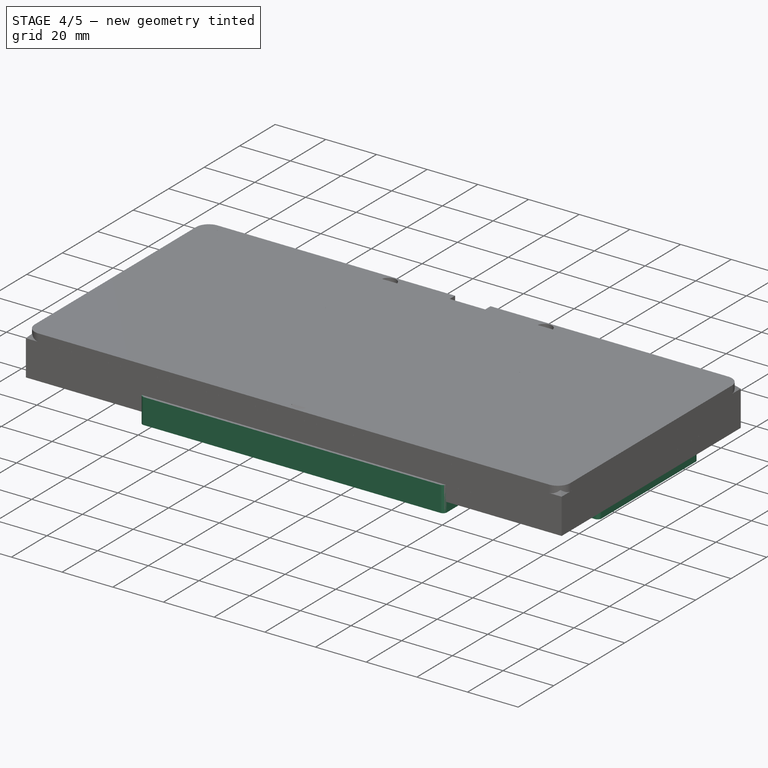
[diagram: stage 4 of 5 — iso view after this stage's code; geometry added in this stage tinted green]
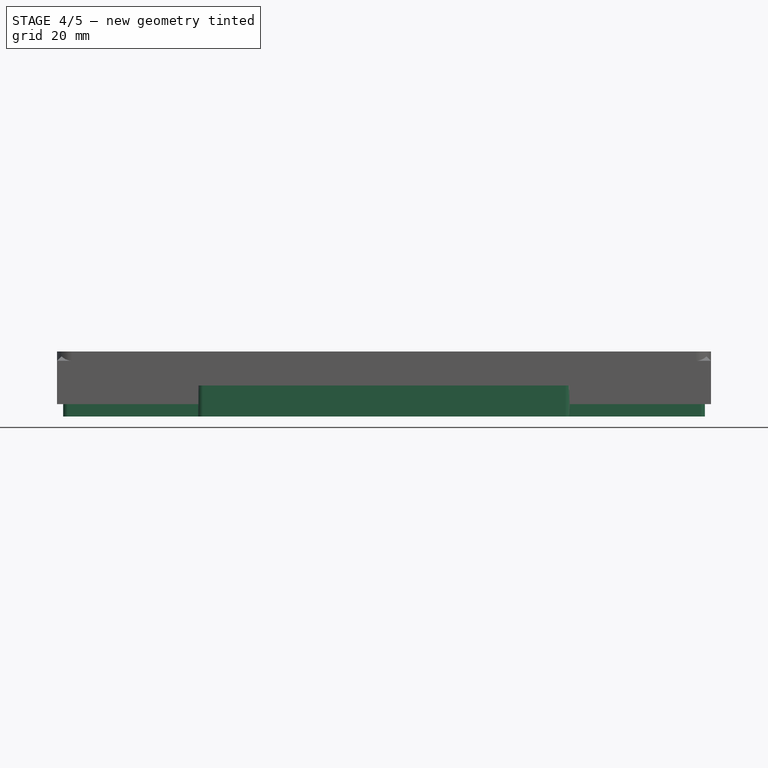
[diagram: stage 4 of 5 — front view after this stage's code; geometry added in this stage tinted green]
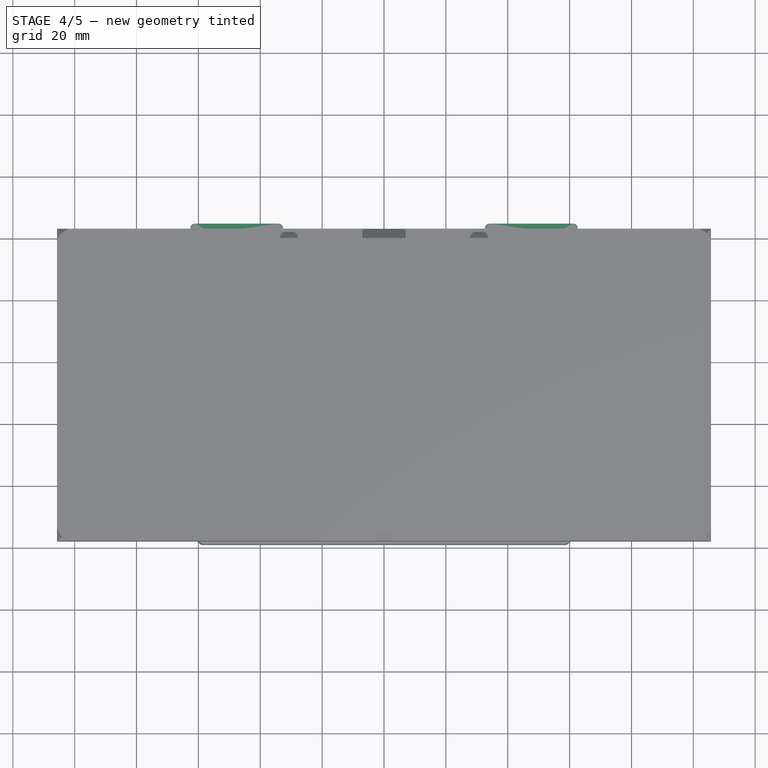
[diagram: stage 4 of 5 — top view after this stage's code; geometry added in this stage tinted green]
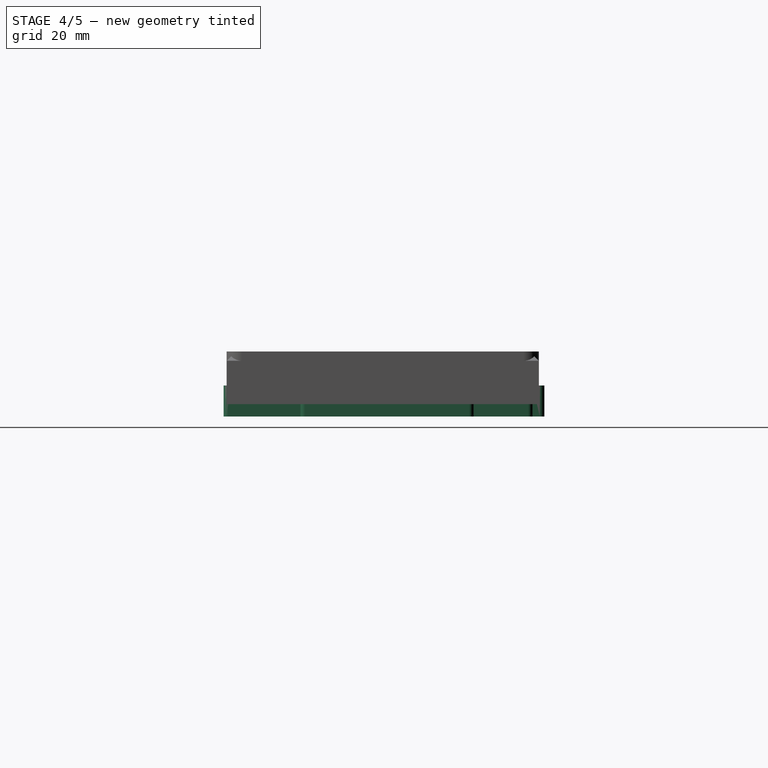
[diagram: stage 4 of 5 — right view after this stage's code; geometry added in this stage tinted green]
FEATURE [PartDesign::ShapeBinder] ShapeBinder003
  Support = -> [Sketch005]
  TraceSupport = false
FEATURE [Sketcher::SketchObject] Sketch013
  ArcFitTolerance = 0
  AttachmentSupport = -> [XY_Plane003]
  ExternalGeometry = -> [ShapeBinder003]
  FullyConstrained = true
  MakeInternals = false
  MapMode = 5
  sketch-geometry (20):
    g0: LineSegment StartX=-103.725 StartY=5.8125 StartZ=0 EndX=-103.725 EndY=61.8625 EndZ=0
    g1: LineSegment StartX=-103.725 StartY=61.8625 StartZ=0 EndX=-85.675 EndY=61.8625 EndZ=0
    g2: LineSegment StartX=-85.675 StartY=61.8625 StartZ=0 EndX=-85.675 EndY=80.9125 EndZ=0
    g3: LineSegment StartX=-85.675 StartY=80.9125 StartZ=0 EndX=-62.625 EndY=80.9125 EndZ=0
    g4: LineSegment StartX=-62.625 StartY=80.9125 StartZ=0 EndX=-62.625 EndY=84.7225 EndZ=0
    g5: LineSegment StartX=-62.625 StartY=84.7225 StartZ=0 EndX=-32.625 EndY=84.7225 EndZ=0
    g6: LineSegment StartX=-32.625 StartY=84.7225 StartZ=0 EndX=-32.625 EndY=80.9125 EndZ=0
    g7: LineSegment StartX=-32.625 StartY=80.9125 StartZ=0 EndX=32.625 EndY=80.9125 EndZ=0
    g8: LineSegment StartX=32.625 StartY=80.9125 StartZ=0 EndX=32.625 EndY=84.7225 EndZ=0
    g9: LineSegment StartX=32.625 StartY=84.7225 StartZ=0 EndX=62.625 EndY=84.7225 EndZ=0
    g10: LineSegment StartX=62.625 StartY=84.7225 StartZ=0 EndX=62.625 EndY=80.9125 EndZ=0
    g11: LineSegment StartX=62.625 StartY=80.9125 StartZ=0 EndX=85.675 EndY=80.9125 EndZ=0
    g12: LineSegment StartX=85.675 StartY=80.9125 StartZ=0 EndX=85.675 EndY=61.8625 EndZ=0
    g13: LineSegment StartX=85.675 StartY=61.8625 StartZ=0 EndX=103.725 EndY=61.8625 EndZ=0
    g14: LineSegment StartX=103.725 StartY=61.8625 StartZ=0 EndX=103.725 EndY=5.8125 EndZ=0
    g15: LineSegment StartX=103.725 StartY=5.8125 StartZ=0 EndX=60.075 EndY=5.8125 EndZ=0
    g16: LineSegment StartX=60.075 StartY=5.8125 StartZ=0 EndX=60.075 EndY=-19 EndZ=0
    g17: LineSegment StartX=60.075 StartY=-19 StartZ=0 EndX=-60.075 EndY=-19 EndZ=0
    g18: LineSegment StartX=-60.075 StartY=-19 StartZ=0 EndX=-60.075 EndY=5.8125 EndZ=0
    g19: LineSegment StartX=-60.075 StartY=5.8125 StartZ=0 EndX=-103.725 EndY=5.8125 EndZ=0
  constraints (40):
    c: Coincident(g-23,g0)
    c: Coincident(g0,g-4)
    c: Coincident(g0,g1)
    c: Coincident(g1,g-5)
    c: Coincident(g1,g2)
    c: Coincident(g2,g-6)
    c: Coincident(g2,g3)
    c: Coincident(g3,g-8)
    c: Coincident(g3,g4)
    c: Coincident(g4,g-8)
    c: Coincident(g4,g5)
    c: Coincident(g5,g-10)
    c: Coincident(g5,g6)
    c: Coincident(g6,g-10)
    c: Coincident(g6,g7)
    c: Coincident(g7,g-13)
    c: Coincident(g7,g8)
    c: Coincident(g8,g-13)
    c: Coincident(g8,g9)
    c: Coincident(g9,g-14)
    c: Coincident(g9,g10)
    c: Coincident(g10,g-15)
    c: Coincident(g10,g11)
    c: Coincident(g11,g-16)
    c: Coincident(g11,g12)
    c: Coincident(g12,g-17)
    c: Coincident(g12,g13)
    c: Coincident(g13,g-18)
    c: Coincident(g13,g14)
    c: Coincident(g14,g-19)
    c: Coincident(g14,g15)
    c: Coincident(g15,g-20)
    c: Coincident(g15,g16)
    c: Coincident(g16,g-21)
    c: Coincident(g16,g17)
    c: Coincident(g17,g-22)
    c: Coincident(g17,g18)
    c: Coincident(g18,g-23)
    c: Coincident(g18,g19)
    c: Coincident(g19,g0)
FEATURE [PartDesign::ShapeBinder] ShapeBinder004
  Support = -> [Sketch007]
  TraceSupport = false
FEATURE [PartDesign::Pad] Pad002
  Direction = (0,0,1)
  Length = 10
  Length2 = 10
  Profile = -> Sketch013
  ReferenceAxis = -> Sketch013 [N_Axis]
  Reversed = true
  Suppressed = false
  Type = 0
FEATURE [PartDesign::ShapeBinder] ShapeBinder005
  Support = -> [Sketch006]
  TraceSupport = false
FEATURE [Sketcher::SketchObject] Sketch014
  ArcFitTolerance = 0
  AttachmentSupport = -> [XY_Plane003]
  ExternalGeometry = -> [ShapeBinder005]
  FullyConstrained = true
  MakeInternals = false
  MapMode = 5
  sketch-geometry (34):
    g0: Circle [constr] CenterX=-92.725 CenterY=11.8125 CenterZ=0 NormalX=0 NormalY=0 NormalZ=1 AngleXU=0 Radius=3
    g1: Circle [constr] CenterX=-50.575 CenterY=0 CenterZ=0 NormalX=0 NormalY=0 NormalZ=1 AngleXU=0 Radius=3
    g2: Circle [constr] CenterX=50.575 CenterY=0 CenterZ=0 NormalX=0 NormalY=0 NormalZ=1 AngleXU=0 Radius=3
    g3: Circle [constr] CenterX=92.725 CenterY=11.8125 CenterZ=0 NormalX=0 NormalY=0 NormalZ=1 AngleXU=0 Radius=3
    g4: Circle [constr] CenterX=78.725 CenterY=54.8625 CenterZ=0 NormalX=0 NormalY=0 NormalZ=1 AngleXU=0 Radius=3
    g5: Circle [constr] CenterX=59.625 CenterY=73.7225 CenterZ=0 NormalX=0 NormalY=0 NormalZ=1 AngleXU=0 Radius=3
    g6: Circle [constr] CenterX=19.625 CenterY=73.7225 CenterZ=0 NormalX=0 NormalY=0 NormalZ=1 AngleXU=0 Radius=3
    g7: Circle [constr] CenterX=-19.625 CenterY=73.7225 CenterZ=0 NormalX=0 NormalY=0 NormalZ=1 AngleXU=0 Radius=3
    g8: Circle [constr] CenterX=-59.625 CenterY=73.7225 CenterZ=0 NormalX=0 NormalY=0 NormalZ=1 AngleXU=0 Radius=3
    g9: Circle [constr] CenterX=-78.725 CenterY=54.8625 CenterZ=0 NormalX=0 NormalY=0 NormalZ=1 AngleXU=0 Radius=3
    g10: LineSegment StartX=-99.725 StartY=12.8125 StartZ=0 EndX=-85.725 EndY=12.8125 EndZ=0
    g11: LineSegment StartX=-85.725 StartY=12.8125 StartZ=0 EndX=-85.725 EndY=8.8125 EndZ=0
    g12: LineSegment StartX=-85.725 StartY=8.8125 StartZ=0 EndX=-49.575 EndY=8.8125 EndZ=0
    g13: LineSegment StartX=-49.575 StartY=8.8125 StartZ=0 EndX=-49.575 EndY=-14 EndZ=0
    g14: LineSegment StartX=-49.575 StartY=-14 StartZ=0 EndX=49.575 EndY=-14 EndZ=0
    g15: LineSegment StartX=49.575 StartY=-14 StartZ=0 EndX=49.575 EndY=8.8125 EndZ=0
    g16: LineSegment StartX=49.575 StartY=8.8125 StartZ=0 EndX=85.725 EndY=8.8125 EndZ=0
    g17: LineSegment StartX=85.725 StartY=8.8125 StartZ=0 EndX=85.725 EndY=12.8125 EndZ=0
    g18: LineSegment StartX=85.725 StartY=12.8125 StartZ=0 EndX=99.725 EndY=12.8125 EndZ=0
    g19: LineSegment StartX=99.725 StartY=12.8125 StartZ=0 EndX=99.725 EndY=53.8625 EndZ=0
    g20: LineSegment StartX=99.725 StartY=53.8625 StartZ=0 EndX=77.725 EndY=53.8625 EndZ=0
    g21: LineSegment StartX=77.725 StartY=53.8625 StartZ=0 EndX=77.725 EndY=72.7225 EndZ=0
    g22: LineSegment StartX=77.725 StartY=72.7225 StartZ=0 EndX=58.625 EndY=72.7225 EndZ=0
    g23: LineSegment StartX=58.625 StartY=72.7225 StartZ=0 EndX=58.625 EndY=81.7225 EndZ=0
    g24: LineSegment StartX=58.625 StartY=81.7225 StartZ=0 EndX=35.625 EndY=81.7225 EndZ=0
    g25: LineSegment StartX=-35.625 StartY=72.7225 StartZ=0 EndX=-35.625 EndY=81.7225 EndZ=0
    g26: LineSegment StartX=-35.625 StartY=81.7225 StartZ=0 EndX=-58.625 EndY=81.7225 EndZ=0
    g27: LineSegment StartX=-58.625 StartY=81.7225 StartZ=0 EndX=-58.625 EndY=72.7225 EndZ=0
    g28: LineSegment StartX=-58.625 StartY=72.7225 StartZ=0 EndX=-77.725 EndY=72.7225 EndZ=0
    g29: LineSegment StartX=-77.725 StartY=72.7225 StartZ=0 EndX=-77.725 EndY=53.8625 EndZ=0
    g30: LineSegment StartX=-77.725 StartY=53.8625 StartZ=0 EndX=-99.725 EndY=53.8625 EndZ=0
    g31: LineSegment StartX=-99.725 StartY=53.8625 StartZ=0 EndX=-99.725 EndY=12.8125 EndZ=0
    g32: LineSegment StartX=35.625 StartY=81.7225 StartZ=0 EndX=35.625 EndY=72.7225 EndZ=0
    g33: LineSegment StartX=35.625 StartY=72.7225 StartZ=0 EndX=-35.625 EndY=72.7225 EndZ=0
  constraints (92):
    c: Coincident(g0,g-3)
    c: Coincident(g1,g-4)
    c: Coincident(g2,g-12)
    c: Coincident(g3,g-11)
    c: Coincident(g4,g-10)
    c: Coincident(g5,g-9)
    c: Coincident(g6,g-8)
    c: Coincident(g7,g-7)
    c: Coincident(g8,g-6)
    c: Coincident(g9,g-5)
    c: Diameter(g1) = 6
    c: Equal(g0,g9)
    c: Equal(g9,g8)
    c: Equal(g8,g7)
    c: Equal(g7,g6)
    c: Equal(g6,g5)
    c: Equal(g5,g4)
    c: Equal(g4,g3)
    c: Equal(g3,g2)
    c: Equal(g2,g1)
    c: Horizontal(g10)
    c: Coincident(g10,g11)
    c: Vertical(g11)
    c: Coincident(g11,g12)
    c: Horizontal(g12)
    c: Coincident(g12,g13)
    c: Vertical(g13)
    c: Coincident(g13,g14)
    c: Horizontal(g14)
    c: Coincident(g14,g15)
    c: Vertical(g15)
    c: Coincident(g15,g16)
    c: Horizontal(g16)
    c: Coincident(g16,g17)
    c: Vertical(g17)
    c: Coincident(g17,g18)
    c: Horizontal(g18)
    c: Coincident(g18,g19)
    c: Vertical(g19)
    c: Coincident(g19,g20)
    c: Coincident(g20,g21)
    c: Vertical(g21)
    c: Coincident(g21,g22)
    c: Horizontal(g22)
    c: Coincident(g22,g23)
    c: Vertical(g23)
    c: Coincident(g23,g24)
    c: Horizontal(g24)
    c: Coincident(g25,g26)
    c: Horizontal(g26)
    c: Coincident(g26,g27)
    c: Vertical(g27)
    c: Coincident(g27,g28)
    c: Horizontal(g28)
    c: Coincident(g28,g29)
    c: Vertical(g29)
    c: Coincident(g29,g30)
    c: Horizontal(g30)
    c: Coincident(g30,g31)
    c: Coincident(g31,g10)
    c: Vertical(g31)
    c: DistanceX(g31,g0) = 7
    c: DistanceY(g0,g31) = 1
    c: DistanceY(g11,g0) = 3
    c: DistanceX(g0,g10) = 7
    c: DistanceX(g1,g12) = 1
    c: DistanceY(g13,g1) = 14
    c: DistanceX(g14,g2) = 1
    c: Horizontal(g15,g12)
    c: DistanceX(g16,g3) = 7
    c: DistanceY(g3,g18) = 1
    c: DistanceX(g3,g18) = 7
    c: Horizontal(g20)
    c: DistanceY(g19,g4) = 1
    c: DistanceX(g20,g4) = 1
    c: DistanceY(g21,g5) = 1
    c: DistanceX(g22,g5) = 1
    c: DistanceY(g5,g23) = 8
    c: DistanceX(g24,g5) = 24
    c: Coincident(g24,g32)
    c: Vertical(g32)
    c: Coincident(g32,g33)
    c: Coincident(g33,g25)
    c: Horizontal(g33)
    c: DistanceY(g32,g6) = 1
    c: Vertical(g25)
    c: DistanceX(g8,g25) = 24
    c: DistanceX(g8,g27) = 1
    c: DistanceY(g27,g8) = 1
    c: Horizontal(g25,g24)
    c: DistanceX(g9,g29) = 1
    c: DistanceY(g29,g9) = 1
FEATURE [PartDesign::Pocket] Pocket006
  BaseFeature = -> Pad002
  Direction = (0,0,-1)
  Length = 8
  Length2 = 5
  Profile = -> Sketch014
  ReferenceAxis = -> Sketch014 [N_Axis]
  Suppressed = false
  Type = 0
FEATURE [Sketcher::SketchObject] Sketch015
  ArcFitTolerance = 0
  AttachmentSupport = -> [XY_Plane003]
  ExternalGeometry = -> [ShapeBinder003,Sketch014]
  FullyConstrained = true
  MakeInternals = false
  MapMode = 5
  sketch-geometry (24):
    g0: LineSegment StartX=-57.075 StartY=-14 StartZ=0 EndX=-57.075 EndY=8.8125 EndZ=0
    g1: LineSegment StartX=-99.725 StartY=7.3125 StartZ=0 EndX=-99.725 EndY=58.8625 EndZ=0
    g2: LineSegment StartX=-99.725 StartY=58.8625 StartZ=0 EndX=-82.675 EndY=58.8625 EndZ=0
    g3: LineSegment StartX=-82.675 StartY=58.8625 StartZ=0 EndX=-82.675 EndY=77.9125 EndZ=0
    g4: LineSegment StartX=-82.675 StartY=77.9125 StartZ=0 EndX=-64.625 EndY=77.9125 EndZ=0
    g5: LineSegment StartX=-64.625 StartY=77.9125 StartZ=0 EndX=-55.481 EndY=81.7225 EndZ=0
    g6: LineSegment StartX=-55.481 StartY=81.7225 StartZ=0 EndX=-35.625 EndY=81.7225 EndZ=0
    g7: LineSegment StartX=-35.625 StartY=81.7225 StartZ=0 EndX=-35.625 EndY=78.9125 EndZ=0
    g8: LineSegment StartX=-35.625 StartY=78.9125 StartZ=0 EndX=35.625 EndY=78.9125 EndZ=0
    g9: LineSegment StartX=35.625 StartY=78.9125 StartZ=0 EndX=35.625 EndY=81.7225 EndZ=0
    g10: LineSegment StartX=35.625 StartY=81.7225 StartZ=0 EndX=55.481 EndY=81.7225 EndZ=0
    g11: LineSegment StartX=55.481 StartY=81.7225 StartZ=0 EndX=64.625 EndY=77.9125 EndZ=0
    g12: LineSegment StartX=64.625 StartY=77.9125 StartZ=0 EndX=82.675 EndY=77.9125 EndZ=0
    g13: LineSegment StartX=82.675 StartY=77.9125 StartZ=0 EndX=82.675 EndY=58.8625 EndZ=0
    g14: LineSegment StartX=82.675 StartY=58.8625 StartZ=0 EndX=99.725 EndY=58.8625 EndZ=0
    g15: LineSegment StartX=99.725 StartY=58.8625 StartZ=0 EndX=99.725 EndY=7.3125 EndZ=0
    g16: LineSegment StartX=57.075 StartY=8.8125 StartZ=0 EndX=57.075 EndY=-14 EndZ=0
    g17: LineSegment StartX=57.075 StartY=-14 StartZ=0 EndX=-57.075 EndY=-14 EndZ=0
    g18: LineSegment StartX=-57.075 StartY=8.8125 StartZ=0 EndX=-85.725 EndY=8.8125 EndZ=0
    g19: LineSegment StartX=-85.725 StartY=8.8125 StartZ=0 EndX=-85.725 EndY=7.3125 EndZ=0
    g20: LineSegment StartX=-85.725 StartY=7.3125 StartZ=0 EndX=-99.725 EndY=7.3125 EndZ=0
    g21: LineSegment StartX=57.075 StartY=8.8125 StartZ=0 EndX=85.725 EndY=8.8125 EndZ=0
    g22: LineSegment StartX=85.725 StartY=8.8125 StartZ=0 EndX=85.725 EndY=7.3125 EndZ=0
    g23: LineSegment StartX=85.725 StartY=7.3125 StartZ=0 EndX=99.725 EndY=7.3125 EndZ=0
  constraints (70):
    c: Vertical(g0)
    c: Vertical(g1)
    c: Coincident(g1,g2)
    c: Horizontal(g2)
    c: Coincident(g2,g3)
    c: Vertical(g3)
    c: Coincident(g3,g4)
    c: Horizontal(g4)
    c: Coincident(g4,g5)
    c: Coincident(g5,g6)
    c: Horizontal(g6)
    c: Coincident(g6,g7)
    c: Vertical(g7)
    c: Coincident(g7,g8)
    c: Horizontal(g8)
    c: Coincident(g8,g9)
    c: Vertical(g9)
    c: Coincident(g9,g10)
    c: Horizontal(g10)
    c: Coincident(g10,g11)
    c: Coincident(g11,g12)
    c: Horizontal(g12)
    c: Coincident(g12,g13)
    c: Vertical(g13)
    c: Coincident(g13,g14)
    c: Horizontal(g14)
    c: Coincident(g14,g15)
    c: Vertical(g15)
    c: Vertical(g16)
    c: Coincident(g16,g17)
    c: Coincident(g17,g0)
    c: Horizontal(g17)
    c: DistanceX(g-21,g0) = 3
    c: DistanceY(g-21,g0) = 5
    c: DistanceY(g-22,g0) = 3
    c: DistanceX(g-22,g1) = 4
    c: DistanceY(g1,g-4) = 3
    c: DistanceX(g-5,g2) = 3
    c: DistanceY(g3,g-6) = 3
    c: Distance(g-7,g5) = 2
    c: DistanceY(g5,g-8) = 3
    c: DistanceX(g4,g-7) = 2
    c: DistanceX(g6,g-10) = 3
    c: DistanceY(g7,g-10) = 2
    c: DistanceX(g-11,g9) = 3
    c: Distance(g-14,g11) = 2
    c: DistanceY(g10,g-13) = 3
    c: DistanceX(g-14,g11) = 2
    c: DistanceY(g12,g-15) = 3
    c: DistanceX(g12,g-15) = 3
    c: DistanceY(g13,g-16) = 3
    c: DistanceX(g14,g-17) = 4
    c: DistanceX(g16,g-20) = 3
    c: DistanceY(g-19,g16) = 3
    c: Coincident(g0,g18)
    c: Coincident(g18,g-23)
    c: Coincident(g18,g19)
    c: Vertical(g19)
    c: Coincident(g19,g20)
    c: Horizontal(g20)
    c: Coincident(g1,g20)
    c: DistanceY(g-22,g1) = 1.5
    c: Coincident(g16,g21)
    c: Coincident(g21,g-24)
    c: Coincident(g21,g22)
    c: Vertical(g22)
    c: Coincident(g22,g23)
    c: Horizontal(g23)
    c: Coincident(g23,g15)
    c: DistanceY(g-18,g15) = 1.5
FEATURE [PartDesign::Pocket] Pocket007
  BaseFeature = -> Pocket006
  Direction = (0,0,-1)
  Length = 3
  Length2 = 5
  Profile = -> Sketch015
  ReferenceAxis = -> Sketch015 [N_Axis]
  Suppressed = false
  Type = 0
FEATURE [PartDesign::ShapeBinder] ShapeBinder006  label="screwpoints001"
  Support = -> [Sketch010]
  TraceSupport = false
FEATURE [Sketcher::SketchObject] Sketch016
  ArcFitTolerance = 0
  AttachmentSupport = -> [XY_Plane003]
  ExternalGeometry = -> [ShapeBinder006]
  FullyConstrained = true
  MakeInternals = false
  MapMode = 5
  sketch-geometry (9):
    g0: Circle CenterX=-29.625 CenterY=76.4125 CenterZ=0 NormalX=0 NormalY=0 NormalZ=1 AngleXU=0 Radius=2
    g1: Circle CenterX=29.625 CenterY=76.4125 CenterZ=0 NormalX=0 NormalY=0 NormalZ=1 AngleXU=0 Radius=2
    g2: Circle CenterX=87.075 CenterY=10.3125 CenterZ=0 NormalX=0 NormalY=0 NormalZ=1 AngleXU=0 Radius=2
    g3: Circle CenterX=55.575 CenterY=-14.5 CenterZ=0 NormalX=0 NormalY=0 NormalZ=1 AngleXU=0 Radius=2
    g4: Circle CenterX=-55.575 CenterY=-14.5 CenterZ=0 NormalX=0 NormalY=0 NormalZ=1 AngleXU=0 Radius=2
    g5: Circle CenterX=-87.075 CenterY=10.3125 CenterZ=0 NormalX=0 NormalY=0 NormalZ=1 AngleXU=0 Radius=2
    g6: Circle CenterX=99.725 CenterY=57.8625 CenterZ=0 NormalX=0 NormalY=0 NormalZ=1 AngleXU=0 Radius=2
    g7: Circle CenterX=-99.725 CenterY=57.8625 CenterZ=0 NormalX=0 NormalY=0 NormalZ=1 AngleXU=0 Radius=2
    g8: Circle CenterX=0 CenterY=-14.5 CenterZ=0 NormalX=0 NormalY=0 NormalZ=1 AngleXU=0 Radius=2
  constraints (18):
    c: Coincident(g0,g-3)
    c: Coincident(g1,g-4)
    c: Coincident(g2,g-5)
    c: Coincident(g3,g-6)
    c: Coincident(g4,g-7)
    c: Coincident(g5,g-8)
    c: Diameter(g5) = 4
    c: Equal(g4,g5)
    c: Equal(g5,g0)
    c: Equal(g0,g1)
    c: Equal(g1,g2)
    c: Equal(g2,g3)
    c: Coincident(g6,g-10)
    c: Coincident(g7,g-9)
    c: Equal(g7,g6)
    c: Equal(g6,g5)
    c: Coincident(g8,g-11)
    c: Equal(g8,g4)
FEATURE [Sketcher::SketchObject] Sketch017  label="helppads for screws! don't worry about it!"
  ArcFitTolerance = 0
  AttachmentSupport = -> [XY_Plane003]
  ExternalGeometry = -> [ShapeBinder006]
  FullyConstrained = true
  MakeInternals = false
  MapMode = 5
  sketch-geometry (3):
    g0: Circle CenterX=-87.075 CenterY=10.3125 CenterZ=0 NormalX=0 NormalY=0 NormalZ=1 AngleXU=0 Radius=4
    g1: Circle CenterX=87.075 CenterY=10.3125 CenterZ=0 NormalX=0 NormalY=0 NormalZ=1 AngleXU=0 Radius=4
    g2: Circle CenterX=0 CenterY=-14.5 CenterZ=0 NormalX=0 NormalY=0 NormalZ=1 AngleXU=0 Radius=4
  constraints (6):
    c: Coincident(g0,g-3)
    c: Coincident(g1,g-4)
    c: Diameter(g1) = 8
    c: Equal(g0,g1)
    c: Coincident(g2,g-5)
    c: Equal(g2,g0)
FEATURE [PartDesign::Pad] Pad003
  BaseFeature = -> Pocket007
  Direction = (0,0,1)
  Length = 10
  Length2 = -3
  Profile = -> Sketch017
  ReferenceAxis = -> Sketch017 [N_Axis]
  Reversed = true
  Suppressed = false
  Type = 4
FEATURE [PartDesign::Pocket] Pocket008
  BaseFeature = -> Pad003
  Direction = (0,0,-1)
  Length = 5
  Length2 = 5
  Profile = -> Sketch016
  ReferenceAxis = -> Sketch016 [N_Axis]
  Suppressed = false
  Type = 1
FEATURE [Sketcher::SketchObject] Sketch018
  ArcFitTolerance = 0
  AttachmentSupport = -> [XY_Plane003]
  ExternalGeometry = -> [ShapeBinder006]
  FullyConstrained = true
  MakeInternals = false
  MapMode = 5
  sketch-geometry (9):
    g0: Circle CenterX=-99.725 CenterY=57.8625 CenterZ=0 NormalX=0 NormalY=0 NormalZ=1 AngleXU=0 Radius=3.25
    g1: Circle CenterX=-87.075 CenterY=10.3125 CenterZ=0 NormalX=0 NormalY=0 NormalZ=1 AngleXU=0 Radius=3.25
    g2: Circle CenterX=-55.575 CenterY=-14.5 CenterZ=0 NormalX=0 NormalY=0 NormalZ=1 AngleXU=0 Radius=3.25
    g3: Circle CenterX=55.575 CenterY=-14.5 CenterZ=0 NormalX=0 NormalY=0 NormalZ=1 AngleXU=0 Radius=3.25
    g4: Circle CenterX=87.075 CenterY=10.3125 CenterZ=0 NormalX=0 NormalY=0 NormalZ=1 AngleXU=0 Radius=3.25
    g5: Circle CenterX=99.725 CenterY=57.8625 CenterZ=0 NormalX=0 NormalY=0 NormalZ=1 AngleXU=0 Radius=3.25
    g6: Circle CenterX=29.625 CenterY=76.4125 CenterZ=0 NormalX=0 NormalY=0 NormalZ=1 AngleXU=0 Radius=3.25
    g7: Circle CenterX=-29.625 CenterY=76.4125 CenterZ=0 NormalX=0 NormalY=0 NormalZ=1 AngleXU=0 Radius=3.25
    g8: Circle CenterX=0 CenterY=-14.5 CenterZ=0 NormalX=0 NormalY=0 NormalZ=1 AngleXU=0 Radius=3.25
  constraints (18):
    c: Coincident(g0,g-9)
    c: Coincident(g1,g-3)
    c: Coincident(g2,g-4)
    c: Coincident(g3,g-5)
    c: Coincident(g4,g-6)
    c: Coincident(g5,g-10)
    c: Coincident(g6,g-7)
    c: Coincident(g7,g-8)
    c: Diameter(g0) = 6.5
    c: Equal(g1,g7)
    c: Equal(g7,g2)
    c: Equal(g2,g3)
    c: Equal(g3,g4)
    c: Equal(g4,g5)
    c: Equal(g5,g6)
    c: Equal(g6,g0)
    c: Coincident(g8,g-11)
    c: Equal(g8,g2)
FEATURE [PartDesign::Pocket] Pocket009
  BaseFeature = -> Pocket008
  Direction = (0,0,-1)
  Length = 14
  Length2 = -9
  Profile = -> Sketch018
  ReferenceAxis = -> Sketch018 [N_Axis]
  Suppressed = false
  Type = 4
FEATURE [Sketcher::SketchObject] Sketch019
  ArcFitTolerance = 0
  AttachmentSupport = -> [Pocket009]
  ExternalGeometry = -> [Pocket009]
  FullyConstrained = true
  MakeInternals = false
  MapMode = 5
  Placement = pos=(0,0,-10) rot=(1,0,0;3.14159rad)
  sketch-geometry (8):
    g0: LineSegment StartX=0 StartY=-80.9125 StartZ=0 EndX=7 EndY=-80.9125 EndZ=0
    g1: LineSegment StartX=7 StartY=-80.9125 StartZ=0 EndX=7 EndY=-67.9125 EndZ=0
    g2: LineSegment StartX=5 StartY=-65.9125 StartZ=0 EndX=0 EndY=-65.9125 EndZ=0
    g3: LineSegment StartX=0 StartY=-80.9125 StartZ=0 EndX=-7 EndY=-80.9125 EndZ=0
    g4: LineSegment StartX=-7 StartY=-80.9125 StartZ=0 EndX=-7 EndY=-67.9125 EndZ=0
    g5: LineSegment StartX=-5 StartY=-65.9125 StartZ=0 EndX=0 EndY=-65.9125 EndZ=0
    g6: ArcOfCircle CenterX=-5 CenterY=-67.9125 CenterZ=0 NormalX=0 NormalY=0 NormalZ=1 AngleXU=0 Radius=2 StartAngle=1.5708 EndAngle=3.14159
    g7: ArcOfCircle CenterX=5 CenterY=-67.9125 CenterZ=0 NormalX=0 NormalY=0 NormalZ=1 AngleXU=0 Radius=2 StartAngle=-1.8e-15 EndAngle=1.5708
  constraints (22):
    c: Coincident(g0,g1)
    c: Horizontal(g0)
    c: Horizontal(g2)
    c: Vertical(g1)
    c: Coincident(g3,g4)
    c: Horizontal(g3)
    c: Horizontal(g5)
    c: Vertical(g4)
    c: Coincident(g3,g0)
    c: Equal(g2,g5)
    c: Coincident(g5,g2)
    c: PointOnObject(g2,g-2)
    c: Tangent(g4,g6) = 1.5708
    c: Tangent(g5,g6) = 1.5708
    c: Tangent(g1,g7) = -1.5708
    c: Tangent(g2,g7) = -1.5708
    c: Horizontal(g4,g1)
    c: DistanceX(g3,g0) = 14
    c: DistanceY(g3,g5) = 15
    c: DistanceX(g2,g2) = 5
    c: PointOnObject(g0,g-5)
    c: PointOnObject(g0,g-2)
FEATURE [PartDesign::Pocket] Pocket010
  BaseFeature = -> Pocket009
  Direction = (0,0,1)
  Length = 7
  Length2 = 5
  Profile = -> Sketch019
  ReferenceAxis = -> Sketch019 [N_Axis]
  Suppressed = false
  Type = 1
FEATURE [Sketcher::SketchObject] Sketch020
  ArcFitTolerance = 0
  AttachmentSupport = -> [XY_Plane003]
  ExternalGeometry = -> [ShapeBinder006]
  FullyConstrained = true
  MakeInternals = false
  MapMode = 5
  sketch-geometry (6):
    g0: Circle CenterX=-97.075 CenterY=18.3125 CenterZ=0 NormalX=0 NormalY=0 NormalZ=1 AngleXU=0 Radius=1.75
    g1: Circle CenterX=-74.725 CenterY=69.8625 CenterZ=0 NormalX=0 NormalY=0 NormalZ=1 AngleXU=0 Radius=1.75
    g2: Circle CenterX=74.725 CenterY=69.8625 CenterZ=0 NormalX=0 NormalY=0 NormalZ=1 AngleXU=0 Radius=1.75
    g3: Circle CenterX=97.075 CenterY=18.3125 CenterZ=0 NormalX=0 NormalY=0 NormalZ=1 AngleXU=0 Radius=1.75
    g4: Circle CenterX=-45.575 CenterY=-11.5 CenterZ=0 NormalX=0 NormalY=0 NormalZ=1 AngleXU=0 Radius=1.75
    g5: Circle CenterX=45.575 CenterY=-11.5 CenterZ=0 NormalX=0 NormalY=0 NormalZ=1 AngleXU=0 Radius=1.75
  constraints (18):
    c: DistanceY(g-5,g5) = 3
    c: Diameter(g5) = 3.5
    c: DistanceX(g5,g-5) = 10
    c: DistanceX(g-6,g4) = 10
    c: Horizontal(g4,g5)
    c: DistanceX(g0,g-7) = 10
    c: DistanceY(g-7,g0) = 8
    c: Horizontal(g0,g3)
    c: DistanceX(g-4,g3) = 10
    c: DistanceX(g2,g-3) = 25
    c: DistanceY(g-3,g2) = 12
    c: Horizontal(g2,g1)
    c: DistanceX(g-8,g1) = 25
    c: Equal(g1,g0)
    c: Equal(g0,g4)
    c: Equal(g4,g2)
    c: Equal(g2,g3)
    c: Equal(g3,g5)
FEATURE [PartDesign::Pocket] Pocket011
  BaseFeature = -> Pocket010
  Direction = (0,0,-1)
  Length = 5
  Length2 = 5
  Profile = -> Sketch020
  ReferenceAxis = -> Sketch020 [N_Axis]
  Suppressed = false
  Type = 1
FEATURE [PartDesign::Fillet] Fillet001
  Base = -> Pocket011 [Edge115,Edge1,Edge2,Edge116,Edge118,Edge119,Edge238,Edge239,Edge241,Edge243,Edge244,Edge246]
  BaseFeature = -> Pocket011
  Radius = 1.5
  SupportTransform = false
  Suppressed = false
  UseAllEdges = false
FEATURE [PartDesign::Pocket] Pocket020
  BaseFeature = -> Pocket019
  Direction = (0,0,-1)
  Length = 1.5
  Length2 = 5
  Profile = -> Sketch003
  ReferenceAxis = -> Sketch003 [N_Axis]
  Reversed = true
  Suppressed = false
  Type = 0
FEATURE [PartDesign::Pocket] Pocket021
  BaseFeature = -> Pocket020
  Direction = (0,0,-1)
  Length = 5
  Length2 = 5
  Profile = -> Sketch006
  ReferenceAxis = -> Sketch006 [N_Axis]
  Reversed = true
  Suppressed = false
  Type = 0
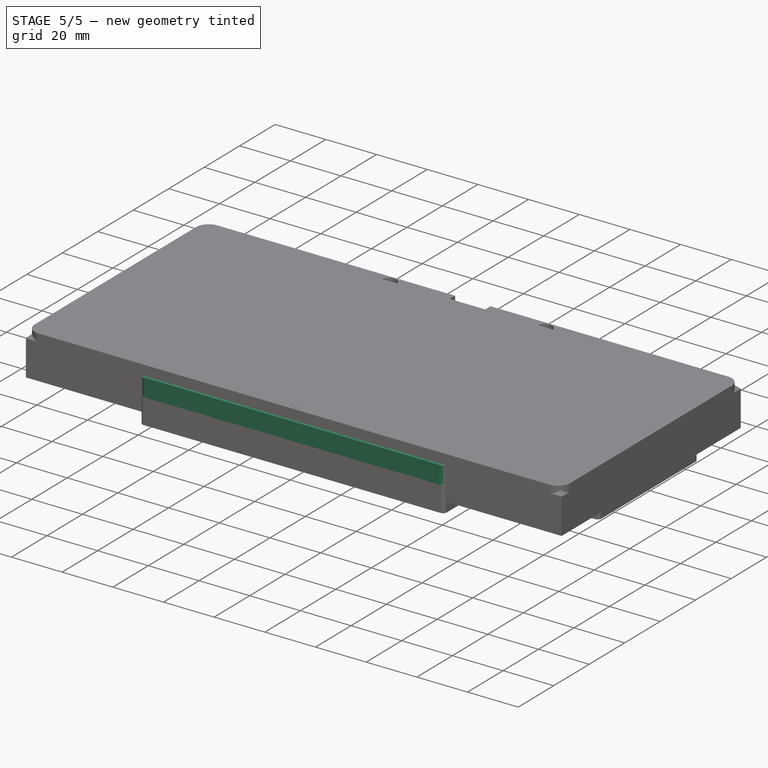
[diagram: stage 5 of 5 — iso view after this stage's code; geometry added in this stage tinted green]
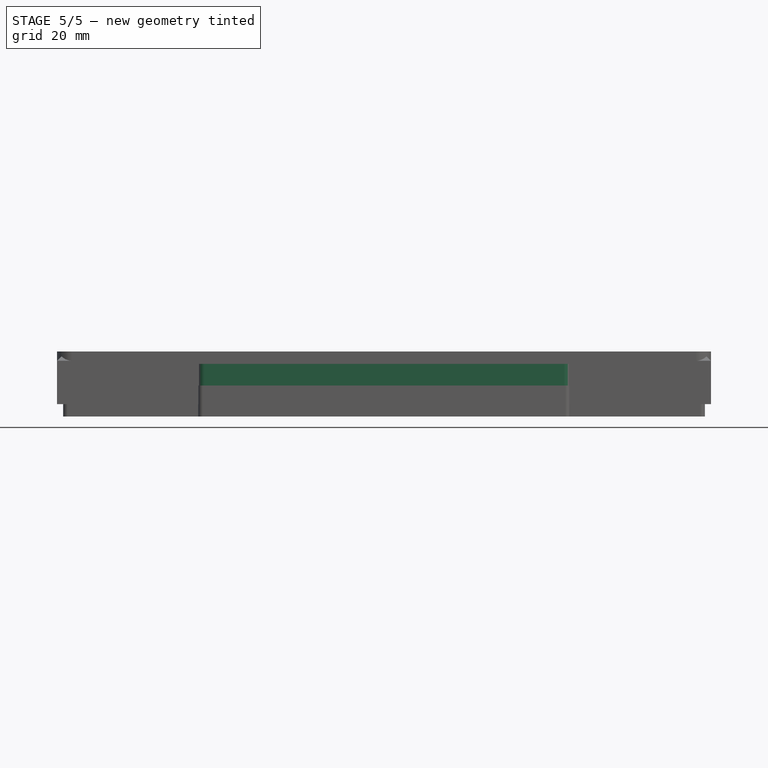
[diagram: stage 5 of 5 — front view after this stage's code; geometry added in this stage tinted green]
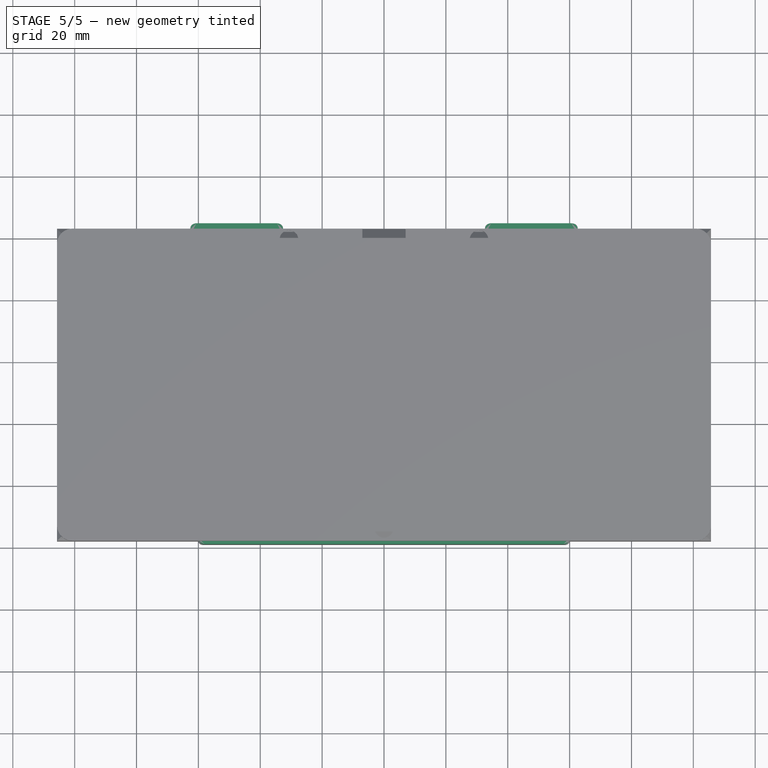
[diagram: stage 5 of 5 — top view after this stage's code; geometry added in this stage tinted green]
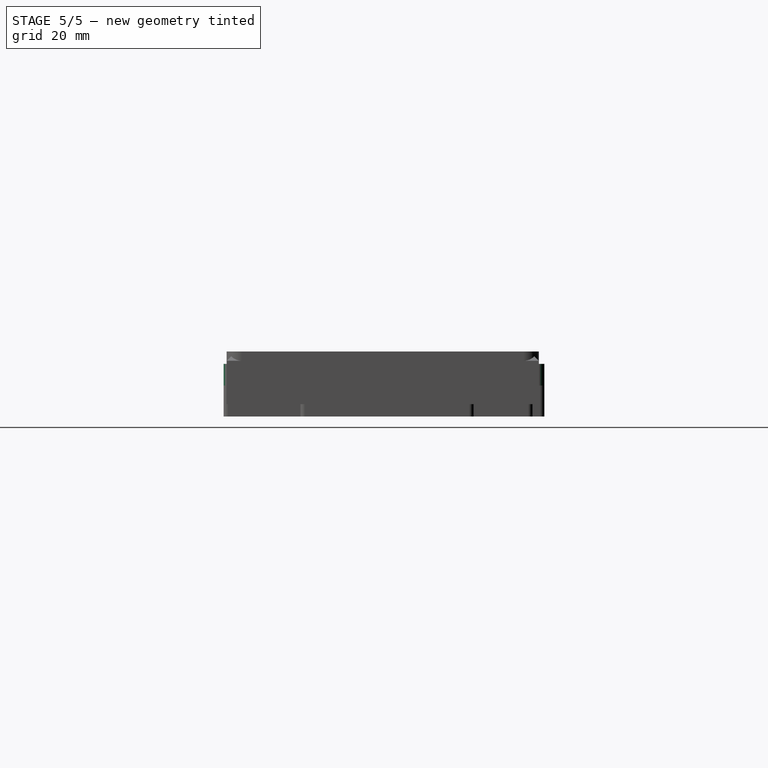
[diagram: stage 5 of 5 — right view after this stage's code; geometry added in this stage tinted green]
FEATURE [PartDesign::ShapeBinder] ShapeBinder
  Support = -> [Sketch005]
  TraceSupport = false
FEATURE [PartDesign::ShapeBinder] ShapeBinder001
  Support = -> [Sketch004]
  TraceSupport = false
FEATURE [Sketcher::SketchObject] Sketch008
  ArcFitTolerance = 0
  AttachmentSupport = -> [XY_Plane002]
  ExternalGeometry = -> [ShapeBinder]
  FullyConstrained = true
  MakeInternals = false
  MapMode = 5
  sketch-geometry (20):
    g0: LineSegment StartX=-85.675 StartY=61.8625 StartZ=0 EndX=-85.675 EndY=80.9125 EndZ=0
    g1: LineSegment StartX=-85.675 StartY=80.9125 StartZ=0 EndX=-62.625 EndY=80.9125 EndZ=0
    g2: LineSegment StartX=-62.625 StartY=80.9125 StartZ=0 EndX=-62.625 EndY=84.7225 EndZ=0
    g3: LineSegment StartX=-62.625 StartY=84.7225 StartZ=0 EndX=-32.625 EndY=84.7225 EndZ=0
    g4: LineSegment StartX=-32.625 StartY=84.7225 StartZ=0 EndX=-32.625 EndY=80.9125 EndZ=0
    g5: LineSegment StartX=-32.625 StartY=80.9125 StartZ=0 EndX=32.625 EndY=80.9125 EndZ=0
    g6: LineSegment StartX=32.625 StartY=80.9125 StartZ=0 EndX=32.625 EndY=84.7225 EndZ=0
    g7: LineSegment StartX=32.625 StartY=84.7225 StartZ=0 EndX=62.625 EndY=84.7225 EndZ=0
    g8: LineSegment StartX=62.625 StartY=84.7225 StartZ=0 EndX=62.625 EndY=80.9125 EndZ=0
    g9: LineSegment StartX=62.625 StartY=80.9125 StartZ=0 EndX=85.675 EndY=80.9125 EndZ=0
    g10: LineSegment StartX=85.675 StartY=80.9125 StartZ=0 EndX=85.675 EndY=61.8625 EndZ=0
    g11: LineSegment StartX=85.675 StartY=61.8625 StartZ=0 EndX=103.725 EndY=61.8625 EndZ=0
    g12: LineSegment StartX=103.725 StartY=61.8625 StartZ=0 EndX=103.725 EndY=5.8125 EndZ=0
    g13: LineSegment StartX=103.725 StartY=5.8125 StartZ=0 EndX=60.075 EndY=5.8125 EndZ=0
    g14: LineSegment StartX=60.075 StartY=5.8125 StartZ=0 EndX=60.075 EndY=-19 EndZ=0
    g15: LineSegment StartX=60.075 StartY=-19 StartZ=0 EndX=-60.075 EndY=-19 EndZ=0
    g16: LineSegment StartX=-60.075 StartY=-19 StartZ=0 EndX=-60.075 EndY=5.8125 EndZ=0
    g17: LineSegment StartX=-60.075 StartY=5.8125 StartZ=0 EndX=-103.725 EndY=5.8125 EndZ=0
    g18: LineSegment StartX=-103.725 StartY=5.8125 StartZ=0 EndX=-103.725 EndY=61.8625 EndZ=0
    g19: LineSegment StartX=-103.725 StartY=61.8625 StartZ=0 EndX=-85.675 EndY=61.8625 EndZ=0
  constraints (40):
    c: Coincident(g-8,g0)
    c: Coincident(g0,g-8)
    c: Coincident(g0,g1)
    c: Coincident(g1,g-23)
    c: Coincident(g1,g2)
    c: Coincident(g2,g-23)
    c: Coincident(g2,g3)
    c: Coincident(g3,g-22)
    c: Coincident(g3,g4)
    c: Coincident(g4,g-22)
    c: Coincident(g4,g5)
    c: Coincident(g5,g-20)
    c: Coincident(g5,g6)
    c: Coincident(g6,g-20)
    c: Coincident(g6,g7)
    c: Coincident(g7,g-21)
    c: Coincident(g7,g8)
    c: Coincident(g8,g-21)
    c: Coincident(g8,g9)
    c: Coincident(g9,g-16)
    c: Coincident(g9,g10)
    c: Coincident(g10,g-15)
    c: Coincident(g10,g11)
    c: Coincident(g11,g-14)
    c: Coincident(g11,g12)
    c: Coincident(g12,g-13)
    c: Coincident(g12,g13)
    c: Coincident(g13,g-12)
    c: Coincident(g13,g14)
    c: Coincident(g14,g-11)
    c: Coincident(g14,g15)
    c: Coincident(g15,g-10)
    c: Coincident(g15,g16)
    c: Coincident(g16,g-9)
    c: Coincident(g16,g17)
    c: Coincident(g17,g-4)
    c: Coincident(g17,g18)
    c: Coincident(g18,g-5)
    c: Coincident(g18,g19)
    c: Coincident(g19,g0)
FEATURE [Sketcher::SketchObject] Sketch009
  ArcFitTolerance = 0
  AttachmentSupport = -> [XY_Plane002]
  ExternalGeometry = -> [ShapeBinder001]
  FullyConstrained = true
  MakeInternals = false
  MapMode = 5
  sketch-geometry (28):
    g0: LineSegment StartX=-95.725 StartY=13.8125 StartZ=0 EndX=-95.725 EndY=52.8625 EndZ=0
    g1: LineSegment StartX=-95.725 StartY=52.8625 StartZ=0 EndX=-76.675 EndY=52.8625 EndZ=0
    g2: LineSegment StartX=-76.675 StartY=52.8625 StartZ=0 EndX=-76.675 EndY=71.9125 EndZ=0
    g3: LineSegment StartX=-76.675 StartY=71.9125 StartZ=0 EndX=-57.625 EndY=71.9125 EndZ=0
    g4: LineSegment StartX=-57.625 StartY=71.9125 StartZ=0 EndX=-57.625 EndY=75.7225 EndZ=0
    g5: LineSegment StartX=-57.625 StartY=75.7225 StartZ=0 EndX=-37.625 EndY=75.7225 EndZ=0
    g6: LineSegment StartX=-37.625 StartY=75.7225 StartZ=0 EndX=-37.625 EndY=71.9125 EndZ=0
    g7: LineSegment StartX=-37.625 StartY=71.9125 StartZ=0 EndX=37.625 EndY=71.9125 EndZ=0
    g8: LineSegment StartX=37.625 StartY=71.9125 StartZ=0 EndX=37.625 EndY=75.7225 EndZ=0
    g9: LineSegment StartX=37.625 StartY=75.7225 StartZ=0 EndX=57.625 EndY=75.7225 EndZ=0
    g10: LineSegment StartX=57.625 StartY=75.7225 StartZ=0 EndX=57.625 EndY=71.9125 EndZ=0
    g11: LineSegment StartX=57.625 StartY=71.9125 StartZ=0 EndX=76.675 EndY=71.9125 EndZ=0
    g12: LineSegment StartX=76.675 StartY=71.9125 StartZ=0 EndX=76.675 EndY=52.8625 EndZ=0
    g13: LineSegment StartX=76.675 StartY=52.8625 StartZ=0 EndX=95.725 EndY=52.8625 EndZ=0
    g14: LineSegment StartX=95.725 StartY=52.8625 StartZ=0 EndX=95.725 EndY=13.8125 EndZ=0
    g15: LineSegment StartX=95.725 StartY=13.8125 StartZ=0 EndX=56.675 EndY=13.8125 EndZ=0
    g16: LineSegment StartX=56.675 StartY=13.8125 StartZ=0 EndX=56.675 EndY=17.6225 EndZ=0
    g17: LineSegment StartX=56.675 StartY=17.6225 StartZ=0 EndX=38.575 EndY=17.6225 EndZ=0
    g18: LineSegment StartX=38.575 StartY=17.6225 StartZ=0 EndX=38.575 EndY=13.8125 EndZ=0
    g19: LineSegment StartX=38.575 StartY=13.8125 StartZ=0 EndX=-38.575 EndY=13.8125 EndZ=0
    g20: LineSegment StartX=-38.575 StartY=13.8125 StartZ=0 EndX=-38.575 EndY=17.6225 EndZ=0
    g21: LineSegment StartX=-38.575 StartY=17.6225 StartZ=0 EndX=-56.675 EndY=17.6225 EndZ=0
    g22: LineSegment StartX=-56.675 StartY=17.6225 StartZ=0 EndX=-56.675 EndY=13.8125 EndZ=0
    g23: LineSegment StartX=-56.675 StartY=13.8125 StartZ=0 EndX=-95.725 EndY=13.8125 EndZ=0
    g24: LineSegment StartX=-48.075 StartY=10 StartZ=0 EndX=-48.075 EndY=-10 EndZ=0
    g25: LineSegment StartX=-48.075 StartY=-10 StartZ=0 EndX=48.075 EndY=-10 EndZ=0
    g26: LineSegment StartX=48.075 StartY=-10 StartZ=0 EndX=48.075 EndY=10 EndZ=0
    g27: LineSegment StartX=48.075 StartY=10 StartZ=0 EndX=-48.075 EndY=10 EndZ=0
  constraints (56):
    c: Coincident(g-25,g0)
    c: Coincident(g0,g-4)
    c: Coincident(g0,g1)
    c: Coincident(g1,g-5)
    c: Coincident(g1,g2)
    c: Coincident(g2,g-6)
    c: Coincident(g2,g3)
    c: Coincident(g3,g-8)
    c: Coincident(g3,g4)
    c: Coincident(g4,g-8)
    c: Coincident(g4,g5)
    c: Coincident(g5,g-9)
    c: Coincident(g5,g6)
    c: Coincident(g6,g-10)
    c: Coincident(g6,g7)
    c: Coincident(g7,g-11)
    c: Coincident(g7,g8)
    c: Coincident(g8,g-12)
    c: Coincident(g8,g9)
    c: Coincident(g9,g-13)
    c: Coincident(g9,g10)
    c: Coincident(g10,g-14)
    c: Coincident(g10,g11)
    c: Coincident(g11,g-15)
    c: Coincident(g12,g-16)
    c: Coincident(g12,g11)
    c: Coincident(g12,g13)
    c: Coincident(g13,g-17)
    c: Coincident(g13,g14)
    c: Coincident(g14,g-18)
    c: Coincident(g14,g15)
    c: Coincident(g15,g-19)
    c: Coincident(g15,g16)
    c: Coincident(g16,g-20)
    c: Coincident(g16,g17)
    c: Coincident(g17,g-21)
    c: Coincident(g17,g18)
    c: Coincident(g18,g-22)
    c: Coincident(g18,g19)
    c: Coincident(g19,g-24)
    c: Coincident(g19,g20)
    c: Coincident(g20,g-24)
    c: Coincident(g20,g21)
    c: Coincident(g21,g-26)
    c: Coincident(g21,g22)
    c: Coincident(g22,g-26)
    c: Coincident(g22,g23)
    c: Coincident(g23,g0)
    c: Coincident(g-28,g24)
    c: Coincident(g24,g-29)
    c: Coincident(g24,g25)
    c: Coincident(g25,g-30)
    c: Coincident(g25,g26)
    c: Coincident(g26,g-30)
    c: Coincident(g26,g27)
    c: Coincident(g27,g24)
FEATURE [PartDesign::Pad] Pad001
  Direction = (0,0,1)
  Length = 7
  Length2 = 10
  Profile = -> Sketch008
  ReferenceAxis = -> Sketch008 [N_Axis]
  Suppressed = false
  Type = 0
FEATURE [PartDesign::Pocket] Pocket003
  BaseFeature = -> Pad001
  Direction = (0,0,-1)
  Length = 9
  Length2 = 5
  Profile = -> Sketch009
  ReferenceAxis = -> Sketch009 [N_Axis]
  Reversed = true
  Suppressed = false
  Type = 0
FEATURE [Sketcher::SketchObject] Sketch010  label="screwpoints"
  ArcFitTolerance = 0
  AttachmentSupport = -> [XY_Plane002]
  ExternalGeometry = -> [ShapeBinder]
  FullyConstrained = true
  MakeInternals = false
  MapMode = 5
  sketch-geometry (17):
    g0: GeomPoint X=-99.725 Y=57.8625 Z=0
    g1: Circle [constr] CenterX=-99.725 CenterY=57.8625 CenterZ=0 NormalX=0 NormalY=0 NormalZ=1 AngleXU=0 Radius=4
    g2: Circle [constr] CenterX=-55.575 CenterY=-14.5 CenterZ=0 NormalX=0 NormalY=0 NormalZ=1 AngleXU=0 Radius=4
    g3: GeomPoint X=-55.575 Y=-14.5 Z=0
    g4: GeomPoint X=-87.075 Y=10.3125 Z=0
    g5: Circle [constr] CenterX=-87.075 CenterY=10.3125 CenterZ=0 NormalX=0 NormalY=0 NormalZ=1 AngleXU=0 Radius=4
    g6: Circle [constr] CenterX=-87.075 CenterY=10.3125 CenterZ=0 NormalX=0 NormalY=0 NormalZ=1 AngleXU=0 Radius=1.5
    g7: Circle [constr] CenterX=-29.625 CenterY=76.4125 CenterZ=0 NormalX=0 NormalY=0 NormalZ=1 AngleXU=0 Radius=4
    g8: Circle [constr] CenterX=-29.625 CenterY=76.4125 CenterZ=0 NormalX=0 NormalY=0 NormalZ=1 AngleXU=0 Radius=1.5
    g9: GeomPoint X=0 Y=-14.5 Z=0
    g10: Circle [constr] CenterX=0 CenterY=-14.5 CenterZ=0 NormalX=0 NormalY=0 NormalZ=1 AngleXU=0 Radius=4
    g11: GeomPoint X=55.575 Y=-14.5 Z=0
    g12: GeomPoint X=87.075 Y=10.3125 Z=0
    g13: GeomPoint X=99.725 Y=57.8625 Z=0
    g14: GeomPoint X=29.625 Y=76.4125 Z=0
    g15: GeomPoint X=-29.625 Y=76.4125 Z=0
    g16: Circle [constr] CenterX=87.075 CenterY=10.3125 CenterZ=0 NormalX=0 NormalY=0 NormalZ=1 AngleXU=0 Radius=4
  constraints (34):
    c: Coincident(g1,g0)
    c: Diameter(g1) = 8
    c: Coincident(g3,g2)
    c: Equal(g2,g1)
    c: Coincident(g5,g4)
    c: Coincident(g6,g4)
    c: Diameter(g7) = 8
    c: Coincident(g8,g7)
    c: Diameter(g8) = 3
    c: PointOnObject(g9,g-2)
    c: Coincident(g10,g9)
    c: Diameter(g10) = 8
    c: DistanceX(g-5,g0) = 4
    c: DistanceY(g0,g-5) = 4
    c: DistanceX(g4,g-6) = 27
    c: DistanceY(g-6,g4) = 4.5
    c: DistanceX(g-4,g3) = 4.5
    c: DistanceY(g-4,g3) = 4.5
    c: DistanceX(g-7,g7) = 3
    c: DistanceY(g7,g-7) = 4.5
    c: DistanceY(g14,g-7) = 4.5
    c: DistanceX(g14,g-7) = 3
    c: DistanceX(g13,g-10) = 4
    c: DistanceY(g13,g-10) = 4
    c: DistanceX(g-9,g12) = 27
    c: DistanceY(g-10,g12) = 4.5
    c: DistanceX(g11,g-8) = 4.5
    c: DistanceY(g-8,g11) = 4.5
    c: Coincident(g15,g7)
    c: Equal(g5,g1)
    c: Diameter(g6) = 3
    c: Distance(g9,g-4) = 4.5
    c: Coincident(g16,g12)
    c: Equal(g16,g5)
FEATURE [Sketcher::SketchObject] Sketch011
  ArcFitTolerance = 0
  AttachmentSupport = -> [XY_Plane002]
  ExternalGeometry = -> [Sketch010]
  FullyConstrained = true
  MakeInternals = false
  MapMode = 5
  sketch-geometry (9):
    g0: Circle CenterX=-99.725 CenterY=57.8625 CenterZ=0 NormalX=0 NormalY=0 NormalZ=1 AngleXU=0 Radius=2
    g1: Circle CenterX=-87.075 CenterY=10.3125 CenterZ=0 NormalX=0 NormalY=0 NormalZ=1 AngleXU=0 Radius=2
    g2: Circle CenterX=-55.575 CenterY=-14.5 CenterZ=0 NormalX=0 NormalY=0 NormalZ=1 AngleXU=0 Radius=2
    g3: Circle CenterX=0 CenterY=-14.5 CenterZ=0 NormalX=0 NormalY=0 NormalZ=1 AngleXU=0 Radius=2
    g4: Circle CenterX=55.575 CenterY=-14.5 CenterZ=0 NormalX=0 NormalY=0 NormalZ=1 AngleXU=0 Radius=2
    g5: Circle CenterX=87.075 CenterY=10.3125 CenterZ=0 NormalX=0 NormalY=0 NormalZ=1 AngleXU=0 Radius=2
    g6: Circle CenterX=99.725 CenterY=57.8625 CenterZ=0 NormalX=0 NormalY=0 NormalZ=1 AngleXU=0 Radius=2
    g7: Circle CenterX=29.625 CenterY=76.4125 CenterZ=0 NormalX=0 NormalY=0 NormalZ=1 AngleXU=0 Radius=2
    g8: Circle CenterX=-29.625 CenterY=76.4125 CenterZ=0 NormalX=0 NormalY=0 NormalZ=1 AngleXU=0 Radius=2
  constraints (18):
    c: Coincident(g0,g-3)
    c: Coincident(g1,g-4)
    c: Coincident(g2,g-5)
    c: Coincident(g3,g-6)
    c: Coincident(g4,g-7)
    c: Coincident(g5,g-8)
    c: Coincident(g6,g-9)
    c: Coincident(g7,g-10)
    c: Coincident(g8,g-11)
    c: Diameter(g0) = 4
    c: Equal(g8,g7)
    c: Equal(g7,g6)
    c: Equal(g6,g5)
    c: Equal(g5,g4)
    c: Equal(g4,g3)
    c: Equal(g3,g2)
    c: Equal(g2,g1)
    c: Equal(g1,g0)
FEATURE [PartDesign::Pocket] Pocket004
  BaseFeature = -> Pocket003
  Direction = (0,0,-1)
  Length = 5.5
  Length2 = 5
  Profile = -> Sketch011
  ReferenceAxis = -> Sketch011 [N_Axis]
  Reversed = true
  Suppressed = false
  Type = 0
FEATURE [PartDesign::ShapeBinder] ShapeBinder002
  Support = -> [Sketch006]
  TraceSupport = false
FEATURE [Sketcher::SketchObject] Sketch012
  ArcFitTolerance = 0
  AttachmentSupport = -> [XY_Plane002]
  ExternalGeometry = -> [ShapeBinder002]
  FullyConstrained = true
  MakeInternals = false
  MapMode = 5
  sketch-geometry (10):
    g0: Circle CenterX=-92.725 CenterY=11.8125 CenterZ=0 NormalX=0 NormalY=0 NormalZ=1 AngleXU=0 Radius=1.25
    g1: Circle CenterX=-78.725 CenterY=54.8625 CenterZ=0 NormalX=0 NormalY=0 NormalZ=1 AngleXU=0 Radius=1.25
    g2: Circle CenterX=-59.625 CenterY=73.7225 CenterZ=0 NormalX=0 NormalY=0 NormalZ=1 AngleXU=0 Radius=1.25
    g3: Circle CenterX=-19.625 CenterY=73.7225 CenterZ=0 NormalX=0 NormalY=0 NormalZ=1 AngleXU=0 Radius=1.25
    g4: Circle CenterX=-50.575 CenterY=0 CenterZ=0 NormalX=0 NormalY=0 NormalZ=1 AngleXU=0 Radius=1.25
    g5: Circle CenterX=50.575 CenterY=0 CenterZ=0 NormalX=0 NormalY=0 NormalZ=1 AngleXU=0 Radius=1.25
    g6: Circle CenterX=92.725 CenterY=11.8125 CenterZ=0 NormalX=0 NormalY=0 NormalZ=1 AngleXU=0 Radius=1.25
    g7: Circle CenterX=78.725 CenterY=54.8625 CenterZ=0 NormalX=0 NormalY=0 NormalZ=1 AngleXU=0 Radius=1.25
    g8: Circle CenterX=59.625 CenterY=73.7225 CenterZ=0 NormalX=0 NormalY=0 NormalZ=1 AngleXU=0 Radius=1.25
    g9: Circle CenterX=19.625 CenterY=73.7225 CenterZ=0 NormalX=0 NormalY=0 NormalZ=1 AngleXU=0 Radius=1.25
  constraints (20):
    c: Coincident(g0,g-6)
    c: Coincident(g1,g-3)
    c: Coincident(g2,g-4)
    c: Coincident(g3,g-13)
    c: Coincident(g4,g-7)
    c: Coincident(g5,g-8)
    c: Coincident(g6,g-9)
    c: Coincident(g7,g-10)
    c: Coincident(g8,g-11)
    c: Coincident(g9,g-12)
    c: Diameter(g0) = 2.5
    c: Equal(g1,g0)
    c: Equal(g0,g4)
    c: Equal(g4,g2)
    c: Equal(g2,g3)
    c: Equal(g3,g9)
    c: Equal(g9,g5)
    c: Equal(g5,g6)
    c: Equal(g6,g7)
    c: Equal(g7,g8)
FEATURE [PartDesign::Pocket] Pocket005
  BaseFeature = -> Pocket004
  Direction = (0,0,-1)
  Length = 2
  Length2 = 5
  Profile = -> Sketch012
  ReferenceAxis = -> Sketch012 [N_Axis]
  Reversed = true
  Suppressed = false
  Type = 0
FEATURE [PartDesign::ShapeBinder] ShapeBinder007
  Support = -> [Sketch015]
  TraceSupport = false
FEATURE [PartDesign::Pocket] Pocket012
  BaseFeature = -> Pocket005
  Direction = (0,0,-1)
  Length = 1
  Length2 = 5
  Profile = -> ShapeBinder007
  Reversed = true
  Suppressed = false
  Type = 0
FEATURE [Sketcher::SketchObject] Sketch021
  ArcFitTolerance = 0
  AttachmentSupport = -> [XY_Plane]
  FullyConstrained = true
  MakeInternals = false
  MapMode = 5
FEATURE [Sketcher::SketchObject] Sketch022  label="switchorigins001"
  ArcFitTolerance = 0
  AttachmentSupport = -> [XY_Plane004]
  FullyConstrained = true
  MakeInternals = false
  MapMode = 5
  sketch-geometry (31):
    g0: GeomPoint X=-28.575 Y=0 Z=0
    g1: GeomPoint X=28.575 Y=0 Z=0
    g2: GeomPoint X=-9.525 Y=23.8125 Z=0
    g3: GeomPoint X=-9.525 Y=42.8625 Z=0
    g4: GeomPoint X=-9.525 Y=61.9125 Z=0
    g5: GeomPoint X=9.525 Y=61.9125 Z=0
    g6: GeomPoint X=9.525 Y=42.8625 Z=0
    g7: GeomPoint X=9.525 Y=23.8125 Z=0
    g8: GeomPoint X=0 Y=23.8125 Z=0
    g9: GeomPoint X=-28.575 Y=61.9125 Z=0
    g10: GeomPoint X=-28.575 Y=42.8625 Z=0
    g11: GeomPoint X=-28.575 Y=23.8125 Z=0
    g12: GeomPoint X=28.575 Y=23.8125 Z=0
    g13: GeomPoint X=28.575 Y=42.8625 Z=0
    g14: GeomPoint X=28.575 Y=61.9125 Z=0
    g15: GeomPoint X=-47.625 Y=65.7225 Z=0
    g16: GeomPoint X=-47.625 Y=46.6725 Z=0
    g17: GeomPoint X=-47.625 Y=27.6225 Z=0
    g18: GeomPoint X=47.625 Y=27.6225 Z=0
    g19: GeomPoint X=47.625 Y=46.6725 Z=0
    g20: GeomPoint X=47.625 Y=65.7225 Z=0
    g21: GeomPoint X=-66.675 Y=61.9125 Z=0
    g22: GeomPoint X=-66.675 Y=42.8625 Z=0
    g23: GeomPoint X=-66.675 Y=23.8125 Z=0
    g24: GeomPoint X=-85.725 Y=42.8625 Z=0
    g25: GeomPoint X=-85.725 Y=23.8125 Z=0
    g26: GeomPoint X=66.675 Y=23.8125 Z=0
    g27: GeomPoint X=66.675 Y=42.8625 Z=0
    g28: GeomPoint X=66.675 Y=61.9125 Z=0
    g29: GeomPoint X=85.725 Y=23.8125 Z=0
    g30: GeomPoint X=85.725 Y=42.8625 Z=0
  constraints (61):
    c: PointOnObject(g0,g-1)
    c: PointOnObject(g1,g-1)
    c: Vertical(g2,g3)
    c: Vertical(g3,g4)
    c: Vertical(g5,g6)
    c: Vertical(g6,g7)
    c: Horizontal(g3,g6)
    c: Horizontal(g4,g5)
    c: Horizontal(g2,g7)
    c: DistanceY(g2,g3) = 19.05
    c: DistanceY(g3,g4) = 19.05
    c: DistanceX(g3,g6) = 19.05
    c: PointOnObject(g8,g-2)
    c: Symmetric(g7,g2,g8)
    c: DistanceY(g-1,g8) = 23.8125
    c: Horizontal(g10,g13)
    c: Horizontal(g13,g3)
    c: Horizontal(g9,g14)
    c: Horizontal(g14,g4)
    c: Horizontal(g11,g12)
    c: Horizontal(g12,g2)
    c: Vertical(g12,g13)
    c: Vertical(g13,g14)
    c: DistanceX(g6,g13) = 19.05
    c: DistanceX(g10,g3) = 19.05
    c: Vertical(g9,g11)
    c: Vertical(g11,g10)
    c: Vertical(g12,g1)
    c: Vertical(g0,g11)
    c: Vertical(g19,g20)
    c: Vertical(g20,g18)
    c: DistanceY(g12,g18) = 3.81
    c: Vertical(g15,g16)
    c: Vertical(g16,g17)
    c: DistanceY(g18,g19) = 19.05
    c: DistanceX(g13,g19) = 19.05
    c: DistanceY(g19,g20) = 19.05
    c: Horizontal(g17,g18)
    c: Horizontal(g16,g19)
    c: Horizontal(g15,g20)
    c: DistanceX(g17,g10) = 19.05
    c: Horizontal(g28,g21)
    c: Horizontal(g21,g9)
    c: Horizontal(g22,g10)
    c: Horizontal(g10,g27)
    c: Horizontal(g23,g26)
    c: Horizontal(g26,g2)
    c: Vertical(g21,g22)
    c: Vertical(g22,g23)
    c: Vertical(g26,g27)
    c: Vertical(g27,g28)
    c: DistanceX(g18,g26) = 19.05
    c: DistanceX(g23,g17) = 19.05
    c: Horizontal(g22,g24)
    c: Horizontal(g23,g25)
    c: Vertical(g24,g25)
    c: DistanceX(g25,g23) = 19.05
    c: Horizontal(g27,g30)
    c: Horizontal(g26,g29)
    c: Vertical(g29,g30)
    c: DistanceX(g26,g29) = 19.05
FEATURE [Sketcher::SketchObject] Sketch023  label="switch plate cutouts001"
  ArcFitTolerance = 0
  AttachmentSupport = -> [XY_Plane004]
  ExternalGeometry = -> [Sketch022]
  FullyConstrained = true
  MakeInternals = false
  MapMode = 5
  sketch-geometry (175):
    g0: LineSegment StartX=-92.75 StartY=49.8875 StartZ=0 EndX=-92.75 EndY=35.8375 EndZ=0
    g1: LineSegment StartX=-92.75 StartY=35.8375 StartZ=0 EndX=-78.7 EndY=35.8375 EndZ=0
    g2: LineSegment StartX=-78.7 StartY=35.8375 StartZ=0 EndX=-78.7 EndY=49.8875 EndZ=0
    g3: LineSegment StartX=-78.7 StartY=49.8875 StartZ=0 EndX=-92.75 EndY=49.8875 EndZ=0
    g4: GeomPoint [constr] X=-85.725 Y=42.8625 Z=0
    g5: LineSegment StartX=-92.75 StartY=30.8375 StartZ=0 EndX=-92.75 EndY=16.7875 EndZ=0
    g6: LineSegment StartX=-92.75 StartY=16.7875 StartZ=0 EndX=-78.7 EndY=16.7875 EndZ=0
    g7: LineSegment StartX=-78.7 StartY=16.7875 StartZ=0 EndX=-78.7 EndY=30.8375 EndZ=0
    g8: LineSegment StartX=-78.7 StartY=30.8375 StartZ=0 EndX=-92.75 EndY=30.8375 EndZ=0
    g9: GeomPoint [constr] X=-85.725 Y=23.8125 Z=0
    g10: LineSegment StartX=-73.7 StartY=30.8375 StartZ=0 EndX=-73.7 EndY=16.7875 EndZ=0
    g11: LineSegment StartX=-73.7 StartY=16.7875 StartZ=0 EndX=-59.65 EndY=16.7875 EndZ=0
    g12: LineSegment StartX=-59.65 StartY=16.7875 StartZ=0 EndX=-59.65 EndY=30.8375 EndZ=0
    g13: LineSegment StartX=-59.65 StartY=30.8375 StartZ=0 EndX=-73.7 EndY=30.8375 EndZ=0
    g14: GeomPoint [constr] X=-66.675 Y=23.8125 Z=0
    g15: LineSegment StartX=-73.7 StartY=49.8875 StartZ=0 EndX=-73.7 EndY=35.8375 EndZ=0
    g16: LineSegment StartX=-73.7 StartY=35.8375 StartZ=0 EndX=-59.65 EndY=35.8375 EndZ=0
    g17: LineSegment StartX=-59.65 StartY=35.8375 StartZ=0 EndX=-59.65 EndY=49.8875 EndZ=0
    g18: LineSegment StartX=-59.65 StartY=49.8875 StartZ=0 EndX=-73.7 EndY=49.8875 EndZ=0
    g19: GeomPoint [constr] X=-66.675 Y=42.8625 Z=0
    g20: LineSegment StartX=-73.7 StartY=68.9375 StartZ=0 EndX=-73.7 EndY=54.8875 EndZ=0
    g21: LineSegment StartX=-73.7 StartY=54.8875 StartZ=0 EndX=-59.65 EndY=54.8875 EndZ=0
    g22: LineSegment StartX=-59.65 StartY=54.8875 StartZ=0 EndX=-59.65 EndY=68.9375 EndZ=0
    g23: LineSegment StartX=-59.65 StartY=68.9375 StartZ=0 EndX=-73.7 EndY=68.9375 EndZ=0
    g24: GeomPoint [constr] X=-66.675 Y=61.9125 Z=0
    g25: LineSegment StartX=-54.65 StartY=72.7475 StartZ=0 EndX=-54.65 EndY=58.6975 EndZ=0
    g26: LineSegment StartX=-54.65 StartY=58.6975 StartZ=0 EndX=-40.6 EndY=58.6975 EndZ=0
    g27: LineSegment StartX=-40.6 StartY=58.6975 StartZ=0 EndX=-40.6 EndY=72.7475 EndZ=0
    g28: LineSegment StartX=-40.6 StartY=72.7475 StartZ=0 EndX=-54.65 EndY=72.7475 EndZ=0
    g29: GeomPoint [constr] X=-47.625 Y=65.7225 Z=0
    g30: LineSegment StartX=-54.65 StartY=53.6975 StartZ=0 EndX=-54.65 EndY=39.6475 EndZ=0
    g31: LineSegment StartX=-54.65 StartY=39.6475 StartZ=0 EndX=-40.6 EndY=39.6475 EndZ=0
    g32: LineSegment StartX=-40.6 StartY=39.6475 StartZ=0 EndX=-40.6 EndY=53.6975 EndZ=0
    g33: LineSegment StartX=-40.6 StartY=53.6975 StartZ=0 EndX=-54.65 EndY=53.6975 EndZ=0
    g34: GeomPoint [constr] X=-47.625 Y=46.6725 Z=0
    g35: LineSegment StartX=-54.65 StartY=34.6475 StartZ=0 EndX=-54.65 EndY=20.5975 EndZ=0
    g36: LineSegment StartX=-54.65 StartY=20.5975 StartZ=0 EndX=-40.6 EndY=20.5975 EndZ=0
    g37: LineSegment StartX=-40.6 StartY=20.5975 StartZ=0 EndX=-40.6 EndY=34.6475 EndZ=0
    g38: LineSegment StartX=-40.6 StartY=34.6475 StartZ=0 EndX=-54.65 EndY=34.6475 EndZ=0
    g39: GeomPoint [constr] X=-47.625 Y=27.6225 Z=0
    g40: LineSegment StartX=-35.6 StartY=30.8375 StartZ=0 EndX=-35.6 EndY=16.7875 EndZ=0
    g41: LineSegment StartX=-35.6 StartY=16.7875 StartZ=0 EndX=-21.55 EndY=16.7875 EndZ=0
    g42: LineSegment StartX=-21.55 StartY=16.7875 StartZ=0 EndX=-21.55 EndY=30.8375 EndZ=0
    g43: LineSegment StartX=-21.55 StartY=30.8375 StartZ=0 EndX=-35.6 EndY=30.8375 EndZ=0
    g44: GeomPoint [constr] X=-28.575 Y=23.8125 Z=0
    g45: LineSegment StartX=-35.6 StartY=49.8875 StartZ=0 EndX=-35.6 EndY=35.8375 EndZ=0
    g46: LineSegment StartX=-35.6 StartY=35.8375 StartZ=0 EndX=-21.55 EndY=35.8375 EndZ=0
    g47: LineSegment StartX=-21.55 StartY=35.8375 StartZ=0 EndX=-21.55 EndY=49.8875 EndZ=0
    g48: LineSegment StartX=-21.55 StartY=49.8875 StartZ=0 EndX=-35.6 EndY=49.8875 EndZ=0
    g49: GeomPoint [constr] X=-28.575 Y=42.8625 Z=0
    g50: LineSegment StartX=-35.6 StartY=68.9375 StartZ=0 EndX=-35.6 EndY=54.8875 EndZ=0
    g51: LineSegment StartX=-35.6 StartY=54.8875 StartZ=0 EndX=-21.55 EndY=54.8875 EndZ=0
    g52: LineSegment StartX=-21.55 StartY=54.8875 StartZ=0 EndX=-21.55 EndY=68.9375 EndZ=0
    g53: LineSegment StartX=-21.55 StartY=68.9375 StartZ=0 EndX=-35.6 EndY=68.9375 EndZ=0
    g54: GeomPoint [constr] X=-28.575 Y=61.9125 Z=0
    g55: LineSegment StartX=-16.55 StartY=68.9375 StartZ=0 EndX=-16.55 EndY=54.8875 EndZ=0
    g56: LineSegment StartX=-16.55 StartY=54.8875 StartZ=0 EndX=-2.5 EndY=54.8875 EndZ=0
    g57: LineSegment StartX=-2.5 StartY=54.8875 StartZ=0 EndX=-2.5 EndY=68.9375 EndZ=0
    g58: LineSegment StartX=-2.5 StartY=68.9375 StartZ=0 EndX=-16.55 EndY=68.9375 EndZ=0
    g59: GeomPoint [constr] X=-9.525 Y=61.9125 Z=0
    g60: LineSegment StartX=2.5 StartY=68.9375 StartZ=0 EndX=2.5 EndY=54.8875 EndZ=0
    g61: LineSegment StartX=2.5 StartY=54.8875 StartZ=0 EndX=16.55 EndY=54.8875 EndZ=0
    g62: LineSegment StartX=16.55 StartY=54.8875 StartZ=0 EndX=16.55 EndY=68.9375 EndZ=0
    g63: LineSegment StartX=16.55 StartY=68.9375 StartZ=0 EndX=2.5 EndY=68.9375 EndZ=0
    g64: GeomPoint [constr] X=9.525 Y=61.9125 Z=0
    g65: LineSegment StartX=21.55 StartY=68.9375 StartZ=0 EndX=21.55 EndY=54.8875 EndZ=0
    g66: LineSegment StartX=21.55 StartY=54.8875 StartZ=0 EndX=35.6 EndY=54.8875 EndZ=0
    g67: LineSegment StartX=35.6 StartY=54.8875 StartZ=0 EndX=35.6 EndY=68.9375 EndZ=0
    g68: LineSegment StartX=35.6 StartY=68.9375 StartZ=0 EndX=21.55 EndY=68.9375 EndZ=0
    g69: GeomPoint [constr] X=28.575 Y=61.9125 Z=0
    g70: LineSegment StartX=40.6 StartY=72.7475 StartZ=0 EndX=40.6 EndY=58.6975 EndZ=0
    g71: LineSegment StartX=40.6 StartY=58.6975 StartZ=0 EndX=54.65 EndY=58.6975 EndZ=0
    g72: LineSegment StartX=54.65 StartY=58.6975 StartZ=0 EndX=54.65 EndY=72.7475 EndZ=0
    g73: LineSegment StartX=54.65 StartY=72.7475 StartZ=0 EndX=40.6 EndY=72.7475 EndZ=0
    g74: GeomPoint [constr] X=47.625 Y=65.7225 Z=0
    g75: LineSegment StartX=59.65 StartY=68.9375 StartZ=0 EndX=59.65 EndY=54.8875 EndZ=0
    g76: LineSegment StartX=59.65 StartY=54.8875 StartZ=0 EndX=73.7 EndY=54.8875 EndZ=0
    g77: LineSegment StartX=73.7 StartY=54.8875 StartZ=0 EndX=73.7 EndY=68.9375 EndZ=0
    g78: LineSegment StartX=73.7 StartY=68.9375 StartZ=0 EndX=59.65 EndY=68.9375 EndZ=0
    g79: GeomPoint [constr] X=66.675 Y=61.9125 Z=0
    g80: LineSegment StartX=-16.55 StartY=49.8875 StartZ=0 EndX=-16.55 EndY=35.8375 EndZ=0
    g81: LineSegment StartX=-16.55 StartY=35.8375 StartZ=0 EndX=-2.5 EndY=35.8375 EndZ=0
    g82: LineSegment StartX=-2.5 StartY=35.8375 StartZ=0 EndX=-2.5 EndY=49.8875 EndZ=0
    g83: LineSegment StartX=-2.5 StartY=49.8875 StartZ=0 EndX=-16.55 EndY=49.8875 EndZ=0
    g84: GeomPoint [constr] X=-9.525 Y=42.8625 Z=0
    g85: LineSegment StartX=-16.55 StartY=30.8375 StartZ=0 EndX=-16.55 EndY=16.7875 EndZ=0
    g86: LineSegment StartX=-16.55 StartY=16.7875 StartZ=0 EndX=-2.5 EndY=16.7875 EndZ=0
    g87: LineSegment StartX=-2.5 StartY=16.7875 StartZ=0 EndX=-2.5 EndY=30.8375 EndZ=0
    g88: LineSegment StartX=-2.5 StartY=30.8375 StartZ=0 EndX=-16.55 EndY=30.8375 EndZ=0
    g89: GeomPoint [constr] X=-9.525 Y=23.8125 Z=0
    g90: LineSegment StartX=2.5 StartY=49.8875 StartZ=0 EndX=2.5 EndY=35.8375 EndZ=0
    g91: LineSegment StartX=2.5 StartY=35.8375 StartZ=0 EndX=16.55 EndY=35.8375 EndZ=0
    g92: LineSegment StartX=16.55 StartY=35.8375 StartZ=0 EndX=16.55 EndY=49.8875 EndZ=0
    g93: LineSegment StartX=16.55 StartY=49.8875 StartZ=0 EndX=2.5 EndY=49.8875 EndZ=0
    g94: GeomPoint [constr] X=9.525 Y=42.8625 Z=0
    g95: LineSegment StartX=21.55 StartY=49.8875 StartZ=0 EndX=21.55 EndY=35.8375 EndZ=0
    g96: LineSegment StartX=21.55 StartY=35.8375 StartZ=0 EndX=35.6 EndY=35.8375 EndZ=0
    g97: LineSegment StartX=35.6 StartY=35.8375 StartZ=0 EndX=35.6 EndY=49.8875 EndZ=0
    g98: LineSegment StartX=35.6 StartY=49.8875 StartZ=0 EndX=21.55 EndY=49.8875 EndZ=0
    g99: GeomPoint [constr] X=28.575 Y=42.8625 Z=0
    g100: LineSegment StartX=2.5 StartY=30.8375 StartZ=0 EndX=2.5 EndY=16.7875 EndZ=0
    g101: LineSegment StartX=2.5 StartY=16.7875 StartZ=0 EndX=16.55 EndY=16.7875 EndZ=0
    g102: LineSegment StartX=16.55 StartY=16.7875 StartZ=0 EndX=16.55 EndY=30.8375 EndZ=0
    g103: LineSegment StartX=16.55 StartY=30.8375 StartZ=0 EndX=2.5 EndY=30.8375 EndZ=0
    g104: GeomPoint [constr] X=9.525 Y=23.8125 Z=0
    g105: LineSegment StartX=21.55 StartY=30.8375 StartZ=0 EndX=21.55 EndY=16.7875 EndZ=0
    g106: LineSegment StartX=21.55 StartY=16.7875 StartZ=0 EndX=35.6 EndY=16.7875 EndZ=0
    g107: LineSegment StartX=35.6 StartY=16.7875 StartZ=0 EndX=35.6 EndY=30.8375 EndZ=0
    g108: LineSegment StartX=35.6 StartY=30.8375 StartZ=0 EndX=21.55 EndY=30.8375 EndZ=0
    g109: GeomPoint [constr] X=28.575 Y=23.8125 Z=0
    g110: LineSegment StartX=40.6 StartY=53.6975 StartZ=0 EndX=40.6 EndY=39.6475 EndZ=0
    g111: LineSegment StartX=40.6 StartY=39.6475 StartZ=0 EndX=54.65 EndY=39.6475 EndZ=0
    g112: LineSegment StartX=54.65 StartY=39.6475 StartZ=0 EndX=54.65 EndY=53.6975 EndZ=0
    g113: LineSegment StartX=54.65 StartY=53.6975 StartZ=0 EndX=40.6 EndY=53.6975 EndZ=0
    g114: GeomPoint [constr] X=47.625 Y=46.6725 Z=0
    g115: LineSegment StartX=59.65 StartY=49.8875 StartZ=0 EndX=59.65 EndY=35.8375 EndZ=0
    g116: LineSegment StartX=59.65 StartY=35.8375 StartZ=0 EndX=73.7 EndY=35.8375 EndZ=0
    g117: LineSegment StartX=73.7 StartY=35.8375 StartZ=0 EndX=73.7 EndY=49.8875 EndZ=0
    g118: LineSegment StartX=73.7 StartY=49.8875 StartZ=0 EndX=59.65 EndY=49.8875 EndZ=0
    g119: GeomPoint [constr] X=66.675 Y=42.8625 Z=0
    g120: LineSegment StartX=78.7 StartY=49.8875 StartZ=0 EndX=78.7 EndY=35.8375 EndZ=0
    g121: LineSegment StartX=78.7 StartY=35.8375 StartZ=0 EndX=92.75 EndY=35.8375 EndZ=0
    g122: LineSegment StartX=92.75 StartY=35.8375 StartZ=0 EndX=92.75 EndY=49.8875 EndZ=0
    g123: LineSegment StartX=92.75 StartY=49.8875 StartZ=0 EndX=78.7 EndY=49.8875 EndZ=0
    g124: GeomPoint [constr] X=85.725 Y=42.8625 Z=0
    g125: LineSegment StartX=40.6 StartY=34.6475 StartZ=0 EndX=40.6 EndY=20.5975 EndZ=0
    g126: LineSegment StartX=40.6 StartY=20.5975 StartZ=0 EndX=54.65 EndY=20.5975 EndZ=0
    g127: LineSegment StartX=54.65 StartY=20.5975 StartZ=0 EndX=54.65 EndY=34.6475 EndZ=0
    g128: LineSegment StartX=54.65 StartY=34.6475 StartZ=0 EndX=40.6 EndY=34.6475 EndZ=0
    g129: GeomPoint [constr] X=47.625 Y=27.6225 Z=0
    g130: LineSegment StartX=59.65 StartY=30.8375 StartZ=0 EndX=59.65 EndY=16.7875 EndZ=0
    g131: LineSegment StartX=59.65 StartY=16.7875 StartZ=0 EndX=73.7 EndY=16.7875 EndZ=0
    g132: LineSegment StartX=73.7 StartY=16.7875 StartZ=0 EndX=73.7 EndY=30.8375 EndZ=0
    g133: LineSegment StartX=73.7 StartY=30.8375 StartZ=0 EndX=59.65 EndY=30.8375 EndZ=0
    g134: GeomPoint [constr] X=66.675 Y=23.8125 Z=0
    g135: LineSegment StartX=78.7 StartY=30.8375 StartZ=0 EndX=78.7 EndY=16.7875 EndZ=0
    g136: LineSegment StartX=78.7 StartY=16.7875 StartZ=0 EndX=92.75 EndY=16.7875 EndZ=0
    g137: LineSegment StartX=92.75 StartY=16.7875 StartZ=0 EndX=92.75 EndY=30.8375 EndZ=0
    g138: LineSegment StartX=92.75 StartY=30.8375 StartZ=0 EndX=78.7 EndY=30.8375 EndZ=0
    g139: GeomPoint [constr] X=85.725 Y=23.8125 Z=0
    g140: LineSegment StartX=-35.6 StartY=7.025 StartZ=0 EndX=-35.6 EndY=-7.025 EndZ=0
    g141: LineSegment StartX=-35.6 StartY=-7.025 StartZ=0 EndX=-21.55 EndY=-7.025 EndZ=0
    g142: LineSegment StartX=-21.55 StartY=-7.025 StartZ=0 EndX=-21.55 EndY=7.025 EndZ=0
    g143: LineSegment StartX=-21.55 StartY=7.025 StartZ=0 EndX=-35.6 EndY=7.025 EndZ=0
    g144: GeomPoint [constr] X=-28.575 Y=0 Z=0
    g145: LineSegment StartX=-7.025 StartY=7.025 StartZ=0 EndX=-7.025 EndY=-7.025 EndZ=0
    g146: LineSegment StartX=-7.025 StartY=-7.025 StartZ=0 EndX=7.025 EndY=-7.025 EndZ=0
    g147: LineSegment StartX=7.025 StartY=-7.025 StartZ=0 EndX=7.025 EndY=7.025 EndZ=0
    g148: LineSegment StartX=7.025 StartY=7.025 StartZ=0 EndX=-7.025 EndY=7.025 EndZ=0
    g149: GeomPoint [constr] X=0 Y=0 Z=0
    g150: LineSegment StartX=21.55 StartY=7.025 StartZ=0 EndX=21.55 EndY=-7.025 EndZ=0
    g151: LineSegment StartX=21.55 StartY=-7.025 StartZ=0 EndX=35.6 EndY=-7.025 EndZ=0
    g152: LineSegment StartX=35.6 StartY=-7.025 StartZ=0 EndX=35.6 EndY=7.025 EndZ=0
    g153: LineSegment StartX=35.6 StartY=7.025 StartZ=0 EndX=21.55 EndY=7.025 EndZ=0
    g154: GeomPoint [constr] X=28.575 Y=0 Z=0
    g155: LineSegment StartX=-44.1 StartY=8.025 StartZ=0 EndX=-44.1 EndY=-8.025 EndZ=0
    g156: LineSegment StartX=-44.1 StartY=-8.025 StartZ=0 EndX=-36.6 EndY=-8.025 EndZ=0
    g157: LineSegment StartX=-36.6 StartY=-8.025 StartZ=0 EndX=-36.6 EndY=8.025 EndZ=0
    g158: LineSegment StartX=-36.6 StartY=8.025 StartZ=0 EndX=-44.1 EndY=8.025 EndZ=0
    g159: GeomPoint [constr] X=-40.35 Y=-2e-16 Z=0
    g160: LineSegment StartX=-20.55 StartY=8.025 StartZ=0 EndX=-20.55 EndY=-8.025 EndZ=0
    g161: LineSegment StartX=-20.55 StartY=-8.025 StartZ=0 EndX=-13.05 EndY=-8.025 EndZ=0
    g162: LineSegment StartX=-13.05 StartY=-8.025 StartZ=0 EndX=-13.05 EndY=8.025 EndZ=0
    g163: LineSegment StartX=-13.05 StartY=8.025 StartZ=0 EndX=-20.55 EndY=8.025 EndZ=0
    g164: GeomPoint [constr] X=-16.8 Y=-2e-15 Z=0
    g165: LineSegment StartX=13.05 StartY=8.025 StartZ=0 EndX=13.05 EndY=-8.025 EndZ=0
    g166: LineSegment StartX=13.05 StartY=-8.025 StartZ=0 EndX=20.55 EndY=-8.025 EndZ=0
    g167: LineSegment StartX=20.55 StartY=-8.025 StartZ=0 EndX=20.55 EndY=8.025 EndZ=0
    g168: LineSegment StartX=20.55 StartY=8.025 StartZ=0 EndX=13.05 EndY=8.025 EndZ=0
    g169: GeomPoint [constr] X=16.8 Y=-1.9e-15 Z=0
    g170: LineSegment StartX=36.6 StartY=8.025 StartZ=0 EndX=36.6 EndY=-8.025 EndZ=0
    g171: LineSegment StartX=36.6 StartY=-8.025 StartZ=0 EndX=44.1 EndY=-8.025 EndZ=0
    g172: LineSegment StartX=44.1 StartY=-8.025 StartZ=0 EndX=44.1 EndY=8.025 EndZ=0
    g173: LineSegment StartX=44.1 StartY=8.025 StartZ=0 EndX=36.6 EndY=8.025 EndZ=0
    g174: GeomPoint [constr] X=40.35 Y=-2.6e-15 Z=0
  constraints (424):
    c: Coincident(g0,g1)
    c: Coincident(g1,g2)
    c: Coincident(g2,g3)
    c: Coincident(g3,g0)
    c: Horizontal(g1)
    c: Horizontal(g3)
    c: Vertical(g0)
    c: Vertical(g2)
    c: Symmetric(g1,g0,g4)
    c: Coincident(g4,g-4)
    c: Coincident(g5,g6)
    c: Coincident(g6,g7)
    c: Coincident(g7,g8)
    c: Coincident(g8,g5)
    c: Horizontal(g6)
    c: Horizontal(g8)
    c: Vertical(g5)
    c: Vertical(g7)
    c: Symmetric(g6,g5,g9)
    c: Coincident(g9,g-3)
    c: Coincident(g10,g11)
    c: Coincident(g11,g12)
    c: Coincident(g12,g13)
    c: Coincident(g13,g10)
    c: Horizontal(g11)
    c: Horizontal(g13)
    c: Vertical(g10)
    c: Vertical(g12)
    c: Symmetric(g11,g10,g14)
    c: Coincident(g14,g-9)
    c: Coincident(g15,g16)
    c: Coincident(g16,g17)
    c: Coincident(g17,g18)
    c: Coincident(g18,g15)
    c: Horizontal(g16)
    c: Horizontal(g18)
    c: Vertical(g15)
    c: Vertical(g17)
    c: Symmetric(g16,g15,g19)
    c: Coincident(g19,g-5)
    c: Coincident(g20,g21)
    c: Coincident(g21,g22)
    c: Coincident(g22,g23)
    c: Coincident(g23,g20)
    c: Horizontal(g21)
    c: Horizontal(g23)
    c: Vertical(g20)
    c: Vertical(g22)
    c: Symmetric(g21,g20,g24)
    c: Coincident(g24,g-6)
    c: Coincident(g25,g26)
    c: Coincident(g26,g27)
    c: Coincident(g27,g28)
    c: Coincident(g28,g25)
    c: Horizontal(g26)
    c: Horizontal(g28)
    c: Vertical(g25)
    c: Vertical(g27)
    c: Symmetric(g26,g25,g29)
    c: Coincident(g29,g-7)
    c: Coincident(g30,g31)
    c: Coincident(g31,g32)
    c: Coincident(g32,g33)
    c: Coincident(g33,g30)
    c: Horizontal(g31)
    c: Horizontal(g33)
    c: Vertical(g30)
    c: Vertical(g32)
    c: Symmetric(g31,g30,g34)
    c: Coincident(g34,g-8)
    c: Coincident(g35,g36)
    c: Coincident(g36,g37)
    c: Coincident(g37,g38)
    c: Coincident(g38,g35)
    c: Horizontal(g36)
    c: Horizontal(g38)
    c: Vertical(g35)
    c: Vertical(g37)
    c: Symmetric(g36,g35,g39)
    c: Coincident(g39,g-10)
    c: Coincident(g40,g41)
    c: Coincident(g41,g42)
    c: Coincident(g42,g43)
    c: Coincident(g43,g40)
    c: Horizontal(g41)
    c: Horizontal(g43)
    c: Vertical(g40)
    c: Vertical(g42)
    c: Symmetric(g41,g40,g44)
    c: Coincident(g44,g-11)
    c: Coincident(g45,g46)
    c: Coincident(g46,g47)
    c: Coincident(g47,g48)
    c: Coincident(g48,g45)
    c: Horizontal(g46)
    c: Horizontal(g48)
    c: Vertical(g45)
    c: Vertical(g47)
    c: Symmetric(g46,g45,g49)
    c: Coincident(g49,g-12)
    c: Coincident(g50,g51)
    c: Coincident(g51,g52)
    c: Coincident(g52,g53)
    c: Coincident(g53,g50)
    c: Horizontal(g51)
    c: Horizontal(g53)
    c: Vertical(g50)
    c: Vertical(g52)
    c: Symmetric(g51,g50,g54)
    c: Coincident(g54,g-13)
    c: Coincident(g55,g56)
    c: Coincident(g56,g57)
    c: Coincident(g57,g58)
    c: Coincident(g58,g55)
    c: Horizontal(g56)
    c: Horizontal(g58)
    c: Vertical(g55)
    c: Vertical(g57)
    c: Symmetric(g56,g55,g59)
    c: Coincident(g59,g-14)
    c: Coincident(g60,g61)
    c: Coincident(g61,g62)
    c: Coincident(g62,g63)
    c: Coincident(g63,g60)
    c: Horizontal(g61)
    c: Horizontal(g63)
    c: Vertical(g60)
    c: Vertical(g62)
    c: Symmetric(g61,g60,g64)
    c: Coincident(g64,g-21)
    c: Coincident(g65,g66)
    c: Coincident(g66,g67)
    c: Coincident(g67,g68)
    c: Coincident(g68,g65)
    c: Horizontal(g66)
    c: Horizontal(g68)
    c: Vertical(g65)
    c: Vertical(g67)
    c: Symmetric(g66,g65,g69)
    c: Coincident(g69,g-22)
    c: Coincident(g70,g71)
    c: Coincident(g71,g72)
    c: Coincident(g72,g73)
    c: Coincident(g73,g70)
    c: Horizontal(g71)
    c: Horizontal(g73)
    c: Vertical(g70)
    c: Vertical(g72)
    c: Symmetric(g71,g70,g74)
    c: Coincident(g74,g-26)
    c: Coincident(g75,g76)
    c: Coincident(g76,g77)
    c: Coincident(g77,g78)
    c: Coincident(g78,g75)
    c: Horizontal(g76)
    c: Horizontal(g78)
    c: Vertical(g75)
    c: Vertical(g77)
    c: Symmetric(g76,g75,g79)
    c: Coincident(g79,g-27)
    c: Coincident(g80,g81)
    c: Coincident(g81,g82)
    c: Coincident(g82,g83)
    c: Coincident(g83,g80)
    c: Horizontal(g81)
    c: Horizontal(g83)
    c: Vertical(g80)
    c: Vertical(g82)
    c: Symmetric(g81,g80,g84)
    c: Coincident(g84,g-15)
    c: Coincident(g85,g86)
    c: Coincident(g86,g87)
    c: Coincident(g87,g88)
    c: Coincident(g88,g85)
    c: Horizontal(g86)
    c: Horizontal(g88)
    c: Vertical(g85)
    c: Vertical(g87)
    c: Symmetric(g86,g85,g89)
    c: Coincident(g89,g-16)
    c: Coincident(g90,g91)
    c: Coincident(g91,g92)
    c: Coincident(g92,g93)
    c: Coincident(g93,g90)
    c: Horizontal(g91)
    c: Horizontal(g93)
    c: Vertical(g90)
    c: Vertical(g92)
    c: Symmetric(g91,g90,g94)
    c: Coincident(g94,g-20)
    c: Coincident(g95,g96)
    c: Coincident(g96,g97)
    c: Coincident(g97,g98)
    c: Coincident(g98,g95)
    c: Horizontal(g96)
    c: Horizontal(g98)
    c: Vertical(g95)
    c: Vertical(g97)
    c: Symmetric(g96,g95,g99)
    c: Coincident(g99,g-24)
    c: Coincident(g100,g101)
    c: Coincident(g101,g102)
    c: Coincident(g102,g103)
    c: Coincident(g103,g100)
    c: Horizontal(g101)
    c: Horizontal(g103)
    c: Vertical(g100)
    c: Vertical(g102)
    c: Symmetric(g101,g100,g104)
    c: Coincident(g104,g-19)
    c: Coincident(g105,g106)
    c: Coincident(g106,g107)
    c: Coincident(g107,g108)
    c: Coincident(g108,g105)
    c: Horizontal(g106)
    c: Horizontal(g108)
    c: Vertical(g105)
    c: Vertical(g107)
    c: Symmetric(g106,g105,g109)
    c: Coincident(g109,g-23)
    c: Coincident(g110,g111)
    c: Coincident(g111,g112)
    c: Coincident(g112,g113)
    c: Coincident(g113,g110)
    c: Horizontal(g111)
    c: Horizontal(g113)
    c: Vertical(g110)
    c: Vertical(g112)
    c: Symmetric(g111,g110,g114)
    c: Coincident(g114,g-25)
    c: Coincident(g115,g116)
    c: Coincident(g116,g117)
    c: Coincident(g117,g118)
    c: Coincident(g118,g115)
    c: Horizontal(g116)
    c: Horizontal(g118)
    c: Vertical(g115)
    c: Vertical(g117)
    c: Symmetric(g116,g115,g119)
    c: Coincident(g119,g-28)
    c: Coincident(g120,g121)
    c: Coincident(g121,g122)
    c: Coincident(g122,g123)
    c: Coincident(g123,g120)
    c: Horizontal(g121)
    c: Horizontal(g123)
    c: Vertical(g120)
    c: Vertical(g122)
    c: Symmetric(g121,g120,g124)
    c: Coincident(g124,g-31)
    c: Coincident(g125,g126)
    c: Coincident(g126,g127)
    c: Coincident(g127,g128)
    c: Coincident(g128,g125)
    c: Horizontal(g126)
    c: Horizontal(g128)
    c: Vertical(g125)
    c: Vertical(g127)
    c: Symmetric(g126,g125,g129)
    c: Coincident(g129,g-30)
    c: Coincident(g130,g131)
    c: Coincident(g131,g132)
    c: Coincident(g132,g133)
    c: Coincident(g133,g130)
    c: Horizontal(g131)
    c: Horizontal(g133)
    c: Vertical(g130)
    c: Vertical(g132)
    c: Symmetric(g131,g130,g134)
    c: Coincident(g134,g-29)
    c: Coincident(g135,g136)
    c: Coincident(g136,g137)
    c: Coincident(g137,g138)
    c: Coincident(g138,g135)
    c: Horizontal(g136)
    c: Horizontal(g138)
    c: Vertical(g135)
    c: Vertical(g137)
    c: Symmetric(g136,g135,g139)
    c: Coincident(g139,g-32)
    c: Coincident(g140,g141)
    c: Coincident(g141,g142)
    c: Coincident(g142,g143)
    c: Coincident(g143,g140)
    c: Horizontal(g141)
    c: Horizontal(g143)
    c: Vertical(g140)
    c: Vertical(g142)
    c: Symmetric(g141,g140,g144)
    c: Coincident(g144,g-17)
    c: Coincident(g145,g146)
    c: Coincident(g146,g147)
    c: Coincident(g147,g148)
    c: Coincident(g148,g145)
    c: Horizontal(g146)
    c: Horizontal(g148)
    c: Vertical(g145)
    c: Vertical(g147)
    c: Symmetric(g146,g145,g149)
    c: Coincident(g149,g-1)
    c: Coincident(g150,g151)
    c: Coincident(g151,g152)
    c: Coincident(g152,g153)
    c: Coincident(g153,g150)
    c: Horizontal(g151)
    c: Horizontal(g153)
    c: Vertical(g150)
    c: Vertical(g152)
    c: Symmetric(g151,g150,g154)
    c: Coincident(g154,g-18)
    c: DistanceX(g3,g3) = 14.05
    c: DistanceY(g0,g0) = 14.05
    c: Equal(g18,g33)
    c: Equal(g33,g23)
    c: Equal(g23,g20)
    c: Equal(g20,g8)
    c: Equal(g8,g5)
    c: Equal(g5,g13)
    c: Equal(g13,g10)
    c: Equal(g10,g35)
    c: Equal(g35,g38)
    c: Equal(g38,g45)
    c: Equal(g45,g48)
    c: Equal(g48,g50)
    c: Equal(g50,g53)
    c: Equal(g53,g25)
    c: Equal(g25,g28)
    c: Equal(g28,g140)
    c: Equal(g140,g143)
    c: Equal(g143,g145)
    c: Equal(g145,g148)
    c: Equal(g148,g40)
    c: Equal(g40,g43)
    c: Equal(g43,g85)
    c: Equal(g85,g88)
    c: Equal(g88,g80)
    c: Equal(g80,g83)
    c: Equal(g83,g0)
    c: Equal(g0,g58)
    c: Equal(g58,g55)
    c: Equal(g55,g93)
    c: Equal(g93,g90)
    c: Equal(g90,g60)
    c: Equal(g60,g63)
    c: Equal(g63,g68)
    c: Equal(g68,g65)
    c: Equal(g65,g98)
    c: Equal(g98,g95)
    c: Equal(g95,g108)
    c: Equal(g108,g105)
    c: Equal(g105,g153)
    c: Equal(g153,g150)
    c: Equal(g150,g103)
    c: Equal(g103,g100)
    c: Equal(g100,g113)
    c: Equal(g113,g73)
    c: Equal(g73,g70)
    c: Equal(g70,g110)
    c: Equal(g110,g128)
    c: Equal(g128,g125)
    c: Equal(g125,g78)
    c: Equal(g78,g75)
    c: Equal(g75,g118)
    c: Equal(g118,g115)
    c: Equal(g115,g133)
    c: Equal(g133,g130)
    c: Equal(g130,g138)
    c: Equal(g138,g135)
    c: Equal(g135,g120)
    c: Equal(g120,g123)
    c: Equal(g0,g15)
    c: Equal(g15,g30)
    c: Coincident(g155,g156)
    c: Coincident(g156,g157)
    c: Coincident(g158,g155)
    c: Horizontal(g156)
    c: Vertical(g155)
    c: Vertical(g157)
    c: Symmetric(g156,g155,g159)
    c: Coincident(g160,g161)
    c: Coincident(g161,g162)
    c: Coincident(g162,g163)
    c: Coincident(g163,g160)
    c: Horizontal(g161)
    c: Horizontal(g163)
    c: Vertical(g160)
    c: Vertical(g162)
    c: Symmetric(g161,g160,g164)
    c: Coincident(g165,g166)
    c: Coincident(g166,g167)
    c: Coincident(g167,g168)
    c: Coincident(g168,g165)
    c: Horizontal(g166)
    c: Horizontal(g168)
    c: Vertical(g165)
    c: Vertical(g167)
    c: Symmetric(g166,g165,g169)
    c: Coincident(g170,g171)
    c: Coincident(g171,g172)
    c: Coincident(g172,g173)
    c: Coincident(g173,g170)
    c: Horizontal(g171)
    c: Horizontal(g173)
    c: Vertical(g170)
    c: Vertical(g172)
    c: Symmetric(g171,g170,g174)
    c: DistanceY(g140,g156) = -1
    c: DistanceX(g156,g140) = 1
    c: DistanceX(g156,g156) = 7.5
    c: DistanceY(g141,g160) = -1
    c: DistanceX(g141,g160) = 1
    c: DistanceX(g161,g161) = 7.5
    c: Horizontal(g166,g170)
    c: Horizontal(g170,g161)
    c: Equal(g171,g166)
    c: Equal(g166,g161)
    c: DistanceX(g166,g150) = 1
    c: DistanceX(g151,g170) = 1
    c: Horizontal(g158)
    c: Coincident(g157,g158)
    c: Horizontal(g160,g157)
    c: Horizontal(g165,g170)
    c: Horizontal(g170,g160)
    c: DistanceY(g140,g157) = 1
FEATURE [Sketcher::SketchObject] Sketch024  label="suppost001"
  ArcFitTolerance = 0
  AttachmentSupport = -> [XY_Plane004]
  ExternalGeometry = -> [Sketch022,Sketch023]
  FullyConstrained = true
  MakeInternals = false
  MapMode = 5
  sketch-geometry (162):
    g0: LineSegment StartX=-93.725 StartY=50.8625 StartZ=0 EndX=-93.725 EndY=34.8625 EndZ=0
    g1: LineSegment StartX=-93.725 StartY=34.8625 StartZ=0 EndX=-77.725 EndY=34.8625 EndZ=0
    g2: LineSegment StartX=-77.725 StartY=34.8625 StartZ=0 EndX=-77.725 EndY=50.8625 EndZ=0
    g3: LineSegment StartX=-77.725 StartY=50.8625 StartZ=0 EndX=-93.725 EndY=50.8625 EndZ=0
    g4: GeomPoint [constr] X=-85.725 Y=42.8625 Z=0
    g5: LineSegment StartX=-93.725 StartY=31.8125 StartZ=0 EndX=-93.725 EndY=15.8125 EndZ=0
    g6: LineSegment StartX=-93.725 StartY=15.8125 StartZ=0 EndX=-77.725 EndY=15.8125 EndZ=0
    g7: LineSegment StartX=-77.725 StartY=15.8125 StartZ=0 EndX=-77.725 EndY=31.8125 EndZ=0
    g8: GeomPoint [constr] X=-85.725 Y=23.8125 Z=0
    g9: LineSegment StartX=-74.675 StartY=31.8125 StartZ=0 EndX=-74.675 EndY=15.8125 EndZ=0
    g10: LineSegment StartX=-74.675 StartY=15.8125 StartZ=0 EndX=-58.675 EndY=15.8125 EndZ=0
    g11: LineSegment StartX=-58.675 StartY=15.8125 StartZ=0 EndX=-58.675 EndY=31.8125 EndZ=0
    g12: LineSegment StartX=-58.675 StartY=31.8125 StartZ=0 EndX=-74.675 EndY=31.8125 EndZ=0
    g13: GeomPoint [constr] X=-66.675 Y=23.8125 Z=0
    g14: LineSegment StartX=-74.675 StartY=50.8625 StartZ=0 EndX=-74.675 EndY=34.8625 EndZ=0
    g15: LineSegment StartX=-74.675 StartY=34.8625 StartZ=0 EndX=-58.675 EndY=34.8625 EndZ=0
    g16: LineSegment StartX=-58.675 StartY=34.8625 StartZ=0 EndX=-58.675 EndY=50.8625 EndZ=0
    g17: LineSegment StartX=-58.675 StartY=50.8625 StartZ=0 EndX=-74.675 EndY=50.8625 EndZ=0
    g18: GeomPoint [constr] X=-66.675 Y=42.8625 Z=0
    g19: LineSegment StartX=-74.675 StartY=69.9125 StartZ=0 EndX=-74.675 EndY=53.9125 EndZ=0
    g20: LineSegment StartX=-74.675 StartY=53.9125 StartZ=0 EndX=-58.675 EndY=53.9125 EndZ=0
    g21: LineSegment StartX=-58.675 StartY=53.9125 StartZ=0 EndX=-58.675 EndY=69.9125 EndZ=0
    g22: LineSegment StartX=-58.675 StartY=69.9125 StartZ=0 EndX=-74.675 EndY=69.9125 EndZ=0
    g23: GeomPoint [constr] X=-66.675 Y=61.9125 Z=0
    g24: LineSegment StartX=-55.625 StartY=73.7225 StartZ=0 EndX=-55.625 EndY=57.7225 EndZ=0
    g25: LineSegment StartX=-55.625 StartY=57.7225 StartZ=0 EndX=-39.625 EndY=57.7225 EndZ=0
    g26: LineSegment StartX=-39.625 StartY=57.7225 StartZ=0 EndX=-39.625 EndY=73.7225 EndZ=0
    g27: LineSegment StartX=-39.625 StartY=73.7225 StartZ=0 EndX=-55.625 EndY=73.7225 EndZ=0
    g28: GeomPoint [constr] X=-47.625 Y=65.7225 Z=0
    g29: LineSegment StartX=-55.625 StartY=54.6725 StartZ=0 EndX=-55.625 EndY=38.6725 EndZ=0
    g30: LineSegment StartX=-55.625 StartY=38.6725 StartZ=0 EndX=-39.625 EndY=38.6725 EndZ=0
    g31: LineSegment StartX=-39.625 StartY=38.6725 StartZ=0 EndX=-39.625 EndY=54.6725 EndZ=0
    g32: LineSegment StartX=-39.625 StartY=54.6725 StartZ=0 EndX=-55.625 EndY=54.6725 EndZ=0
    g33: GeomPoint [constr] X=-47.625 Y=46.6725 Z=0
    g34: LineSegment StartX=-55.625 StartY=35.6225 StartZ=0 EndX=-55.625 EndY=19.6225 EndZ=0
    g35: LineSegment StartX=-55.625 StartY=19.6225 StartZ=0 EndX=-39.625 EndY=19.6225 EndZ=0
    g36: LineSegment StartX=-39.625 StartY=19.6225 StartZ=0 EndX=-39.625 EndY=35.6225 EndZ=0
    g37: LineSegment StartX=-39.625 StartY=35.6225 StartZ=0 EndX=-55.625 EndY=35.6225 EndZ=0
    g38: GeomPoint [constr] X=-47.625 Y=27.6225 Z=0
    g39: LineSegment StartX=-36.575 StartY=31.8125 StartZ=0 EndX=-36.575 EndY=15.8125 EndZ=0
    g40: LineSegment StartX=-36.575 StartY=15.8125 StartZ=0 EndX=-20.575 EndY=15.8125 EndZ=0
    g41: LineSegment StartX=-20.575 StartY=15.8125 StartZ=0 EndX=-20.575 EndY=31.8125 EndZ=0
    g42: LineSegment StartX=-20.575 StartY=31.8125 StartZ=0 EndX=-36.575 EndY=31.8125 EndZ=0
    g43: GeomPoint [constr] X=-28.575 Y=23.8125 Z=0
    g44: LineSegment StartX=-36.575 StartY=50.8625 StartZ=0 EndX=-36.575 EndY=34.8625 EndZ=0
    g45: LineSegment StartX=-36.575 StartY=34.8625 StartZ=0 EndX=-20.575 EndY=34.8625 EndZ=0
    g46: LineSegment StartX=-20.575 StartY=34.8625 StartZ=0 EndX=-20.575 EndY=50.8625 EndZ=0
    g47: LineSegment StartX=-20.575 StartY=50.8625 StartZ=0 EndX=-36.575 EndY=50.8625 EndZ=0
    g48: GeomPoint [constr] X=-28.575 Y=42.8625 Z=0
    g49: LineSegment StartX=-36.575 StartY=69.9125 StartZ=0 EndX=-36.575 EndY=53.9125 EndZ=0
    g50: LineSegment StartX=-36.575 StartY=53.9125 StartZ=0 EndX=-20.575 EndY=53.9125 EndZ=0
    g51: LineSegment StartX=-20.575 StartY=53.9125 StartZ=0 EndX=-20.575 EndY=69.9125 EndZ=0
    g52: LineSegment StartX=-20.575 StartY=69.9125 StartZ=0 EndX=-36.575 EndY=69.9125 EndZ=0
    g53: GeomPoint [constr] X=-28.575 Y=61.9125 Z=0
    g54: LineSegment StartX=-17.525 StartY=69.9125 StartZ=0 EndX=-17.525 EndY=53.9125 EndZ=0
    g55: LineSegment StartX=-17.525 StartY=53.9125 StartZ=0 EndX=-1.525 EndY=53.9125 EndZ=0
    g56: LineSegment StartX=-1.525 StartY=53.9125 StartZ=0 EndX=-1.525 EndY=69.9125 EndZ=0
    g57: LineSegment StartX=-1.525 StartY=69.9125 StartZ=0 EndX=-17.525 EndY=69.9125 EndZ=0
    g58: GeomPoint [constr] X=-9.525 Y=61.9125 Z=0
    g59: LineSegment StartX=1.525 StartY=69.9125 StartZ=0 EndX=1.525 EndY=53.9125 EndZ=0
    g60: LineSegment StartX=1.525 StartY=53.9125 StartZ=0 EndX=17.525 EndY=53.9125 EndZ=0
    g61: LineSegment StartX=17.525 StartY=53.9125 StartZ=0 EndX=17.525 EndY=69.9125 EndZ=0
    g62: LineSegment StartX=17.525 StartY=69.9125 StartZ=0 EndX=1.525 EndY=69.9125 EndZ=0
    g63: GeomPoint [constr] X=9.525 Y=61.9125 Z=0
    g64: LineSegment StartX=20.575 StartY=69.9125 StartZ=0 EndX=20.575 EndY=53.9125 EndZ=0
    g65: LineSegment StartX=20.575 StartY=53.9125 StartZ=0 EndX=36.575 EndY=53.9125 EndZ=0
    g66: LineSegment StartX=36.575 StartY=53.9125 StartZ=0 EndX=36.575 EndY=69.9125 EndZ=0
    g67: LineSegment StartX=36.575 StartY=69.9125 StartZ=0 EndX=20.575 EndY=69.9125 EndZ=0
    g68: GeomPoint [constr] X=28.575 Y=61.9125 Z=0
    g69: LineSegment StartX=39.625 StartY=73.7225 StartZ=0 EndX=39.625 EndY=57.7225 EndZ=0
    g70: LineSegment StartX=39.625 StartY=57.7225 StartZ=0 EndX=55.625 EndY=57.7225 EndZ=0
    g71: LineSegment StartX=55.625 StartY=57.7225 StartZ=0 EndX=55.625 EndY=73.7225 EndZ=0
    g72: LineSegment StartX=55.625 StartY=73.7225 StartZ=0 EndX=39.625 EndY=73.7225 EndZ=0
    g73: GeomPoint [constr] X=47.625 Y=65.7225 Z=0
    g74: LineSegment StartX=58.675 StartY=69.9125 StartZ=0 EndX=58.675 EndY=53.9125 EndZ=0
    g75: LineSegment StartX=58.675 StartY=53.9125 StartZ=0 EndX=74.675 EndY=53.9125 EndZ=0
    g76: LineSegment StartX=74.675 StartY=53.9125 StartZ=0 EndX=74.675 EndY=69.9125 EndZ=0
    g77: LineSegment StartX=74.675 StartY=69.9125 StartZ=0 EndX=58.675 EndY=69.9125 EndZ=0
    g78: GeomPoint [constr] X=66.675 Y=61.9125 Z=0
    g79: LineSegment StartX=-17.525 StartY=50.8625 StartZ=0 EndX=-17.525 EndY=34.8625 EndZ=0
    g80: LineSegment StartX=-17.525 StartY=34.8625 StartZ=0 EndX=-1.525 EndY=34.8625 EndZ=0
    g81: LineSegment StartX=-1.525 StartY=34.8625 StartZ=0 EndX=-1.525 EndY=50.8625 EndZ=0
    g82: LineSegment StartX=-1.525 StartY=50.8625 StartZ=0 EndX=-17.525 EndY=50.8625 EndZ=0
    g83: GeomPoint [constr] X=-9.525 Y=42.8625 Z=0
    g84: LineSegment StartX=-17.525 StartY=31.8125 StartZ=0 EndX=-17.525 EndY=15.8125 EndZ=0
    g85: LineSegment StartX=-17.525 StartY=15.8125 StartZ=0 EndX=-1.525 EndY=15.8125 EndZ=0
    g86: LineSegment StartX=-1.525 StartY=15.8125 StartZ=0 EndX=-1.525 EndY=31.8125 EndZ=0
    g87: LineSegment StartX=-1.525 StartY=31.8125 StartZ=0 EndX=-17.525 EndY=31.8125 EndZ=0
    g88: GeomPoint [constr] X=-9.525 Y=23.8125 Z=0
    g89: LineSegment StartX=1.525 StartY=50.8625 StartZ=0 EndX=1.525 EndY=34.8625 EndZ=0
    g90: LineSegment StartX=1.525 StartY=34.8625 StartZ=0 EndX=17.525 EndY=34.8625 EndZ=0
    g91: LineSegment StartX=17.525 StartY=34.8625 StartZ=0 EndX=17.525 EndY=50.8625 EndZ=0
    g92: LineSegment StartX=17.525 StartY=50.8625 StartZ=0 EndX=1.525 EndY=50.8625 EndZ=0
    g93: GeomPoint [constr] X=9.525 Y=42.8625 Z=0
    g94: LineSegment StartX=20.575 StartY=50.8625 StartZ=0 EndX=20.575 EndY=34.8625 EndZ=0
    g95: LineSegment StartX=20.575 StartY=34.8625 StartZ=0 EndX=36.575 EndY=34.8625 EndZ=0
    g96: LineSegment StartX=36.575 StartY=34.8625 StartZ=0 EndX=36.575 EndY=50.8625 EndZ=0
    g97: LineSegment StartX=36.575 StartY=50.8625 StartZ=0 EndX=20.575 EndY=50.8625 EndZ=0
    g98: GeomPoint [constr] X=28.575 Y=42.8625 Z=0
    g99: LineSegment StartX=1.525 StartY=31.8125 StartZ=0 EndX=1.525 EndY=15.8125 EndZ=0
    g100: LineSegment StartX=1.525 StartY=15.8125 StartZ=0 EndX=17.525 EndY=15.8125 EndZ=0
    g101: LineSegment StartX=17.525 StartY=15.8125 StartZ=0 EndX=17.525 EndY=31.8125 EndZ=0
    g102: LineSegment StartX=17.525 StartY=31.8125 StartZ=0 EndX=1.525 EndY=31.8125 EndZ=0
    g103: GeomPoint [constr] X=9.525 Y=23.8125 Z=0
    g104: LineSegment StartX=20.575 StartY=31.8125 StartZ=0 EndX=20.575 EndY=15.8125 EndZ=0
    g105: LineSegment StartX=20.575 StartY=15.8125 StartZ=0 EndX=36.575 EndY=15.8125 EndZ=0
    g106: LineSegment StartX=36.575 StartY=15.8125 StartZ=0 EndX=36.575 EndY=31.8125 EndZ=0
    g107: LineSegment StartX=36.575 StartY=31.8125 StartZ=0 EndX=20.575 EndY=31.8125 EndZ=0
    g108: GeomPoint [constr] X=28.575 Y=23.8125 Z=0
    g109: LineSegment StartX=39.625 StartY=54.6725 StartZ=0 EndX=39.625 EndY=38.6725 EndZ=0
    g110: LineSegment StartX=39.625 StartY=38.6725 StartZ=0 EndX=55.625 EndY=38.6725 EndZ=0
    g111: LineSegment StartX=55.625 StartY=38.6725 StartZ=0 EndX=55.625 EndY=54.6725 EndZ=0
    g112: LineSegment StartX=55.625 StartY=54.6725 StartZ=0 EndX=39.625 EndY=54.6725 EndZ=0
    g113: GeomPoint [constr] X=47.625 Y=46.6725 Z=0
    g114: LineSegment StartX=58.675 StartY=50.8625 StartZ=0 EndX=58.675 EndY=34.8625 EndZ=0
    g115: LineSegment StartX=58.675 StartY=34.8625 StartZ=0 EndX=74.675 EndY=34.8625 EndZ=0
    g116: LineSegment StartX=74.675 StartY=34.8625 StartZ=0 EndX=74.675 EndY=50.8625 EndZ=0
    g117: LineSegment StartX=74.675 StartY=50.8625 StartZ=0 EndX=58.675 EndY=50.8625 EndZ=0
    g118: GeomPoint [constr] X=66.675 Y=42.8625 Z=0
    g119: LineSegment StartX=77.725 StartY=50.8625 StartZ=0 EndX=77.725 EndY=34.8625 EndZ=0
    g120: LineSegment StartX=77.725 StartY=34.8625 StartZ=0 EndX=93.725 EndY=34.8625 EndZ=0
    g121: LineSegment StartX=93.725 StartY=34.8625 StartZ=0 EndX=93.725 EndY=50.8625 EndZ=0
    g122: LineSegment StartX=93.725 StartY=50.8625 StartZ=0 EndX=77.725 EndY=50.8625 EndZ=0
    g123: GeomPoint [constr] X=85.725 Y=42.8625 Z=0
    g124: LineSegment StartX=39.625 StartY=35.6225 StartZ=0 EndX=39.625 EndY=19.6225 EndZ=0
    g125: LineSegment StartX=39.625 StartY=19.6225 StartZ=0 EndX=55.625 EndY=19.6225 EndZ=0
    g126: LineSegment StartX=55.625 StartY=19.6225 StartZ=0 EndX=55.625 EndY=35.6225 EndZ=0
    g127: LineSegment StartX=55.625 StartY=35.6225 StartZ=0 EndX=39.625 EndY=35.6225 EndZ=0
    g128: GeomPoint [constr] X=47.625 Y=27.6225 Z=0
    g129: LineSegment StartX=58.675 StartY=31.8125 StartZ=0 EndX=58.675 EndY=15.8125 EndZ=0
    g130: LineSegment StartX=58.675 StartY=15.8125 StartZ=0 EndX=74.675 EndY=15.8125 EndZ=0
    g131: LineSegment StartX=74.675 StartY=15.8125 StartZ=0 EndX=74.675 EndY=31.8125 EndZ=0
    g132: LineSegment StartX=74.675 StartY=31.8125 StartZ=0 EndX=58.675 EndY=31.8125 EndZ=0
    g133: GeomPoint [constr] X=66.675 Y=23.8125 Z=0
    g134: LineSegment StartX=77.725 StartY=31.8125 StartZ=0 EndX=77.725 EndY=15.8125 EndZ=0
    g135: LineSegment StartX=77.725 StartY=15.8125 StartZ=0 EndX=93.725 EndY=15.8125 EndZ=0
    g136: LineSegment StartX=93.725 StartY=15.8125 StartZ=0 EndX=93.725 EndY=31.8125 EndZ=0
    g137: LineSegment StartX=93.725 StartY=31.8125 StartZ=0 EndX=77.725 EndY=31.8125 EndZ=0
    g138: GeomPoint [constr] X=85.725 Y=23.8125 Z=0
    g139: GeomPoint [constr] X=-28.575 Y=0 Z=0
    g140: LineSegment StartX=-8 StartY=8 StartZ=0 EndX=-8 EndY=-8 EndZ=0
    g141: LineSegment StartX=-8 StartY=-8 StartZ=0 EndX=8 EndY=-8 EndZ=0
    g142: LineSegment StartX=8 StartY=-8 StartZ=0 EndX=8 EndY=8 EndZ=0
    g143: LineSegment StartX=8 StartY=8 StartZ=0 EndX=-8 EndY=8 EndZ=0
    g144: GeomPoint [constr] X=0 Y=0 Z=0
    g145: LineSegment StartX=-93.725 StartY=31.8125 StartZ=0 EndX=-77.725 EndY=31.8125 EndZ=0
    g146: LineSegment StartX=-44.1 StartY=14.525 StartZ=0 EndX=-13.05 EndY=14.525 EndZ=0
    g147: LineSegment StartX=-13.05 StartY=14.525 StartZ=0 EndX=-13.05 EndY=-11.025 EndZ=0
    g148: LineSegment StartX=-13.05 StartY=-11.025 StartZ=0 EndX=-20.55 EndY=-11.025 EndZ=0
    g149: LineSegment StartX=-36.6 StartY=-11.025 StartZ=0 EndX=-44.1 EndY=-11.025 EndZ=0
    g150: LineSegment StartX=-44.1 StartY=14.525 StartZ=0 EndX=-44.1 EndY=-11.025 EndZ=0
    g151: LineSegment StartX=13.05 StartY=-11.025 StartZ=0 EndX=20.55 EndY=-11.025 EndZ=0
    g152: LineSegment StartX=36.6 StartY=-11.025 StartZ=0 EndX=44.1 EndY=-11.025 EndZ=0
    g153: LineSegment StartX=44.1 StartY=-11.025 StartZ=0 EndX=44.1 EndY=14.525 EndZ=0
    g154: LineSegment StartX=44.1 StartY=14.525 StartZ=0 EndX=13.05 EndY=14.525 EndZ=0
    g155: LineSegment StartX=13.05 StartY=14.525 StartZ=0 EndX=13.05 EndY=-11.025 EndZ=0
    g156: LineSegment StartX=-36.6 StartY=-11.025 StartZ=0 EndX=-36.6 EndY=-8.025 EndZ=0
    g157: LineSegment StartX=-36.6 StartY=-8.025 StartZ=0 EndX=-20.55 EndY=-8.025 EndZ=0
    g158: LineSegment StartX=-20.55 StartY=-8.025 StartZ=0 EndX=-20.55 EndY=-11.025 EndZ=0
    g159: LineSegment StartX=20.55 StartY=-11.025 StartZ=0 EndX=20.55 EndY=-8.025 EndZ=0
    g160: LineSegment StartX=20.55 StartY=-8.025 StartZ=0 EndX=36.6 EndY=-8.025 EndZ=0
    g161: LineSegment StartX=36.6 StartY=-8.025 StartZ=0 EndX=36.6 EndY=-11.025 EndZ=0
  constraints (393):
    c: Coincident(g0,g1)
    c: Coincident(g1,g2)
    c: Coincident(g2,g3)
    c: Coincident(g3,g0)
    c: Horizontal(g1)
    c: Horizontal(g3)
    c: Vertical(g0)
    c: Vertical(g2)
    c: Symmetric(g1,g0,g4)
    c: Coincident(g5,g6)
    c: Coincident(g6,g7)
    c: Horizontal(g6)
    c: Vertical(g5)
    c: Vertical(g7)
    c: Symmetric(g6,g5,g8)
    c: Coincident(g9,g10)
    c: Coincident(g10,g11)
    c: Coincident(g11,g12)
    c: Coincident(g12,g9)
    c: Horizontal(g10)
    c: Horizontal(g12)
    c: Vertical(g9)
    c: Vertical(g11)
    c: Symmetric(g10,g9,g13)
    c: Coincident(g14,g15)
    c: Coincident(g15,g16)
    c: Coincident(g16,g17)
    c: Coincident(g17,g14)
    c: Horizontal(g15)
    c: Horizontal(g17)
    c: Vertical(g14)
    c: Vertical(g16)
    c: Symmetric(g15,g14,g18)
    c: Coincident(g19,g20)
    c: Coincident(g20,g21)
    c: Coincident(g21,g22)
    c: Coincident(g22,g19)
    c: Horizontal(g20)
    c: Horizontal(g22)
    c: Vertical(g19)
    c: Vertical(g21)
    c: Symmetric(g20,g19,g23)
    c: Coincident(g24,g25)
    c: Coincident(g25,g26)
    c: Coincident(g26,g27)
    c: Coincident(g27,g24)
    c: Horizontal(g25)
    c: Horizontal(g27)
    c: Vertical(g24)
    c: Vertical(g26)
    c: Symmetric(g25,g24,g28)
    c: Coincident(g29,g30)
    c: Coincident(g30,g31)
    c: Coincident(g31,g32)
    c: Coincident(g32,g29)
    c: Horizontal(g30)
    c: Horizontal(g32)
    c: Vertical(g29)
    c: Vertical(g31)
    c: Symmetric(g30,g29,g33)
    c: Coincident(g34,g35)
    c: Coincident(g35,g36)
    c: Coincident(g36,g37)
    c: Coincident(g37,g34)
    c: Horizontal(g35)
    c: Horizontal(g37)
    c: Vertical(g34)
    c: Vertical(g36)
    c: Symmetric(g35,g34,g38)
    c: Coincident(g39,g40)
    c: Coincident(g40,g41)
    c: Coincident(g41,g42)
    c: Coincident(g42,g39)
    c: Horizontal(g40)
    c: Horizontal(g42)
    c: Vertical(g39)
    c: Vertical(g41)
    c: Symmetric(g40,g39,g43)
    c: Coincident(g44,g45)
    c: Coincident(g45,g46)
    c: Coincident(g46,g47)
    c: Coincident(g47,g44)
    c: Horizontal(g45)
    c: Horizontal(g47)
    c: Vertical(g44)
    c: Vertical(g46)
    c: Symmetric(g45,g44,g48)
    c: Coincident(g49,g50)
    c: Coincident(g50,g51)
    c: Coincident(g51,g52)
    c: Coincident(g52,g49)
    c: Horizontal(g50)
    c: Horizontal(g52)
    c: Vertical(g49)
    c: Vertical(g51)
    c: Symmetric(g50,g49,g53)
    c: Coincident(g54,g55)
    c: Coincident(g55,g56)
    c: Coincident(g56,g57)
    c: Coincident(g57,g54)
    c: Horizontal(g55)
    c: Horizontal(g57)
    c: Vertical(g54)
    c: Vertical(g56)
    c: Symmetric(g55,g54,g58)
    c: Coincident(g59,g60)
    c: Coincident(g60,g61)
    c: Coincident(g61,g62)
    c: Coincident(g62,g59)
    c: Horizontal(g60)
    c: Horizontal(g62)
    c: Vertical(g59)
    c: Vertical(g61)
    c: Symmetric(g60,g59,g63)
    c: Coincident(g64,g65)
    c: Coincident(g65,g66)
    c: Coincident(g66,g67)
    c: Coincident(g67,g64)
    c: Horizontal(g65)
    c: Horizontal(g67)
    c: Vertical(g64)
    c: Vertical(g66)
    c: Symmetric(g65,g64,g68)
    c: Coincident(g69,g70)
    c: Coincident(g70,g71)
    c: Coincident(g71,g72)
    c: Coincident(g72,g69)
    c: Horizontal(g70)
    c: Horizontal(g72)
    c: Vertical(g69)
    c: Vertical(g71)
    c: Symmetric(g70,g69,g73)
    c: Coincident(g74,g75)
    c: Coincident(g75,g76)
    c: Coincident(g76,g77)
    c: Coincident(g77,g74)
    c: Horizontal(g75)
    c: Horizontal(g77)
    c: Vertical(g74)
    c: Vertical(g76)
    c: Symmetric(g75,g74,g78)
    c: Coincident(g79,g80)
    c: Coincident(g80,g81)
    c: Coincident(g81,g82)
    c: Coincident(g82,g79)
    c: Horizontal(g80)
    c: Horizontal(g82)
    c: Vertical(g79)
    c: Vertical(g81)
    c: Symmetric(g80,g79,g83)
    c: Coincident(g84,g85)
    c: Coincident(g85,g86)
    c: Coincident(g86,g87)
    c: Coincident(g87,g84)
    c: Horizontal(g85)
    c: Horizontal(g87)
    c: Vertical(g84)
    c: Vertical(g86)
    c: Symmetric(g85,g84,g88)
    c: Coincident(g89,g90)
    c: Coincident(g90,g91)
    c: Coincident(g91,g92)
    c: Coincident(g92,g89)
    c: Horizontal(g90)
    c: Horizontal(g92)
    c: Vertical(g89)
    c: Vertical(g91)
    c: Symmetric(g90,g89,g93)
    c: Coincident(g94,g95)
    c: Coincident(g95,g96)
    c: Coincident(g96,g97)
    c: Coincident(g97,g94)
    c: Horizontal(g95)
    c: Horizontal(g97)
    c: Vertical(g94)
    c: Vertical(g96)
    c: Symmetric(g95,g94,g98)
    c: Coincident(g99,g100)
    c: Coincident(g100,g101)
    c: Coincident(g101,g102)
    c: Coincident(g102,g99)
    c: Horizontal(g100)
    c: Horizontal(g102)
    c: Vertical(g99)
    c: Vertical(g101)
    c: Symmetric(g100,g99,g103)
    c: Coincident(g104,g105)
    c: Coincident(g105,g106)
    c: Coincident(g106,g107)
    c: Coincident(g107,g104)
    c: Horizontal(g105)
    c: Horizontal(g107)
    c: Vertical(g104)
    c: Vertical(g106)
    c: Symmetric(g105,g104,g108)
    c: Coincident(g109,g110)
    c: Coincident(g110,g111)
    c: Coincident(g111,g112)
    c: Coincident(g112,g109)
    c: Horizontal(g110)
    c: Horizontal(g112)
    c: Vertical(g109)
    c: Vertical(g111)
    c: Symmetric(g110,g109,g113)
    c: Coincident(g114,g115)
    c: Coincident(g115,g116)
    c: Coincident(g116,g117)
    c: Coincident(g117,g114)
    c: Horizontal(g115)
    c: Horizontal(g117)
    c: Vertical(g114)
    c: Vertical(g116)
    c: Symmetric(g115,g114,g118)
    c: Coincident(g119,g120)
    c: Coincident(g120,g121)
    c: Coincident(g121,g122)
    c: Coincident(g122,g119)
    c: Horizontal(g120)
    c: Horizontal(g122)
    c: Vertical(g119)
    c: Vertical(g121)
    c: Symmetric(g120,g119,g123)
    c: Coincident(g124,g125)
    c: Coincident(g125,g126)
    c: Coincident(g126,g127)
    c: Coincident(g127,g124)
    c: Horizontal(g125)
    c: Horizontal(g127)
    c: Vertical(g124)
    c: Vertical(g126)
    c: Symmetric(g125,g124,g128)
    c: Coincident(g129,g130)
    c: Coincident(g130,g131)
    c: Coincident(g131,g132)
    c: Coincident(g132,g129)
    c: Horizontal(g130)
    c: Horizontal(g132)
    c: Vertical(g129)
    c: Vertical(g131)
    c: Symmetric(g130,g129,g133)
    c: Coincident(g134,g135)
    c: Coincident(g135,g136)
    c: Coincident(g136,g137)
    c: Coincident(g137,g134)
    c: Horizontal(g135)
    c: Horizontal(g137)
    c: Vertical(g134)
    c: Vertical(g136)
    c: Symmetric(g135,g134,g138)
    c: Coincident(g140,g141)
    c: Coincident(g141,g142)
    c: Coincident(g142,g143)
    c: Coincident(g143,g140)
    c: Horizontal(g141)
    c: Horizontal(g143)
    c: Vertical(g140)
    c: Vertical(g142)
    c: Symmetric(g141,g140,g144)
    c: Coincident(g144,g-1)
    c: Coincident(g4,g-3)
    c: DistanceY(g0,g0) = 16
    c: DistanceX(g3,g3) = 16
    c: Coincident(g8,g-4)
    c: Equal(g5,g0)
    c: Coincident(g13,g-5)
    c: Coincident(g18,g-6)
    c: Coincident(g23,g-7)
    c: Coincident(g28,g-8)
    c: Coincident(g33,g-9)
    c: Coincident(g38,g-10)
    c: Coincident(g53,g-13)
    c: Coincident(g48,g-12)
    c: Coincident(g43,g-11)
    c: Coincident(g58,g-14)
    c: Coincident(g83,g-15)
    c: Coincident(g88,g-16)
    c: Coincident(g139,g-31)
    c: Coincident(g103,g-17)
    c: Coincident(g93,g-18)
    c: Coincident(g-19,g63)
    c: Coincident(g68,g-20)
    c: Coincident(g98,g-21)
    c: Coincident(g108,g-22)
    c: Coincident(g128,g-23)
    c: Coincident(g113,g-24)
    c: Coincident(g73,g-25)
    c: Coincident(g78,g-26)
    c: Coincident(g118,g-27)
    c: Coincident(g133,g-28)
    c: Coincident(g123,g-30)
    c: Coincident(g138,g-29)
    c: Coincident(g145,g5)
    c: Coincident(g145,g7)
    c: Horizontal(g145)
    c: Equal(g145,g12)
    c: Equal(g12,g37)
    c: Equal(g37,g17)
    c: Equal(g17,g22)
    c: Equal(g22,g27)
    c: Equal(g27,g52)
    c: Equal(g52,g32)
    c: Equal(g42,g47)
    c: Equal(g47,g57)
    c: Equal(g57,g82)
    c: Equal(g82,g87)
    c: Equal(g87,g102)
    c: Equal(g102,g92)
    c: Equal(g92,g62)
    c: Equal(g62,g67)
    c: Equal(g67,g72)
    c: Equal(g72,g97)
    c: Equal(g97,g112)
    c: Equal(g112,g107)
    c: Equal(g107,g127)
    c: Equal(g132,g117)
    c: Equal(g117,g77)
    c: Equal(g77,g122)
    c: Equal(g122,g137)
    c: Equal(g137,g3)
    c: Equal(g14,g19)
    c: Equal(g19,g24)
    c: Equal(g24,g29)
    c: Equal(g29,g9)
    c: Equal(g9,g34)
    c: Equal(g34,g44)
    c: Equal(g44,g49)
    c: Equal(g49,g39)
    c: Equal(g39,g79)
    c: Equal(g79,g54)
    c: Equal(g54,g84)
    c: Equal(g104,g99)
    c: Equal(g99,g89)
    c: Equal(g89,g94)
    c: Equal(g94,g59)
    c: Equal(g59,g64)
    c: Equal(g64,g69)
    c: Equal(g69,g109)
    c: Equal(g109,g124)
    c: Equal(g124,g114)
    c: Equal(g114,g74)
    c: Equal(g74,g129)
    c: Equal(g129,g134)
    c: Equal(g134,g119)
    c: Equal(g119,g0)
    c: Horizontal(g146)
    c: Coincident(g146,g147)
    c: Vertical(g147)
    c: Coincident(g147,g148)
    c: Horizontal(g148)
    c: Horizontal(g149)
    c: Coincident(g150,g146)
    c: Coincident(g150,g149)
    c: Vertical(g150)
    c: Vertical(g149,g-32)
    c: DistanceY(g-32,g146) = 6.5
    c: Vertical(g-35,g147)
    c: Horizontal(g148,g149)
    c: DistanceY(g149,g-32) = 3
    c: Equal(g125,g130)
    c: Equal(g6,g3)
    c: Horizontal(g151)
    c: Horizontal(g152)
    c: Coincident(g152,g153)
    c: Vertical(g153)
    c: Coincident(g153,g154)
    c: Horizontal(g154)
    c: Coincident(g154,g155)
    c: Vertical(g155)
    c: Coincident(g151,g155)
    c: Vertical(g-36,g151)
    c: DistanceY(g151,g-36) = 3
    c: Horizontal(g151,g152)
    c: Vertical(g152,g-39)
    c: Equal(g39,g0)
    c: Equal(g140,g84)
    c: Equal(g143,g85)
    c: Horizontal(g154,g146)
    c: Coincident(g149,g156)
    c: Coincident(g156,g-33)
    c: Vertical(g156)
    c: Coincident(g157,g-34)
    c: Coincident(g157,g158)
    c: Coincident(g158,g148)
    c: Vertical(g158)
    c: Coincident(g157,g156)
    c: Coincident(g151,g159)
    c: Coincident(g159,g-37)
    c: Vertical(g159)
    c: Coincident(g159,g160)
    c: Coincident(g160,g-38)
    c: Coincident(g160,g161)
    c: Coincident(g161,g152)
    c: Vertical(g161)
FEATURE [Sketcher::SketchObject] Sketch025  label="switch cutouts topcase001"
  ArcFitTolerance = 0
  AttachmentSupport = -> [XY_Plane004]
  ExternalGeometry = -> [Sketch022]
  FullyConstrained = true
  MakeInternals = false
  MapMode = 5
  sketch-geometry (28):
    g0: LineSegment StartX=-95.725 StartY=13.8125 StartZ=0 EndX=-95.725 EndY=52.8625 EndZ=0
    g1: LineSegment StartX=-95.725 StartY=52.8625 StartZ=0 EndX=-76.675 EndY=52.8625 EndZ=0
    g2: LineSegment StartX=-76.675 StartY=52.8625 StartZ=0 EndX=-76.675 EndY=71.9125 EndZ=0
    g3: LineSegment StartX=-76.675 StartY=71.9125 StartZ=0 EndX=-57.625 EndY=71.9125 EndZ=0
    g4: LineSegment StartX=-57.625 StartY=71.9125 StartZ=0 EndX=-57.625 EndY=75.7225 EndZ=0
    g5: LineSegment StartX=-57.625 StartY=75.7225 StartZ=0 EndX=-37.625 EndY=75.7225 EndZ=0
    g6: LineSegment StartX=-37.625 StartY=75.7225 StartZ=0 EndX=-37.625 EndY=71.9125 EndZ=0
    g7: LineSegment StartX=-37.625 StartY=71.9125 StartZ=0 EndX=37.625 EndY=71.9125 EndZ=0
    g8: LineSegment StartX=37.625 StartY=71.9125 StartZ=0 EndX=37.625 EndY=75.7225 EndZ=0
    g9: LineSegment StartX=37.625 StartY=75.7225 StartZ=0 EndX=57.625 EndY=75.7225 EndZ=0
    g10: LineSegment StartX=57.625 StartY=75.7225 StartZ=0 EndX=57.625 EndY=71.9125 EndZ=0
    g11: LineSegment StartX=57.625 StartY=71.9125 StartZ=0 EndX=76.675 EndY=71.9125 EndZ=0
    g12: LineSegment StartX=76.675 StartY=71.9125 StartZ=0 EndX=76.675 EndY=52.8625 EndZ=0
    g13: LineSegment StartX=76.675 StartY=52.8625 StartZ=0 EndX=95.725 EndY=52.8625 EndZ=0
    g14: LineSegment StartX=95.725 StartY=52.8625 StartZ=0 EndX=95.725 EndY=13.8125 EndZ=0
    g15: LineSegment StartX=95.725 StartY=13.8125 StartZ=0 EndX=56.675 EndY=13.8125 EndZ=0
    g16: LineSegment StartX=56.675 StartY=13.8125 StartZ=0 EndX=56.675 EndY=17.6225 EndZ=0
    g17: LineSegment StartX=56.675 StartY=17.6225 StartZ=0 EndX=38.575 EndY=17.6225 EndZ=0
    g18: LineSegment StartX=38.575 StartY=17.6225 StartZ=0 EndX=38.575 EndY=13.8125 EndZ=0
    g19: LineSegment StartX=-95.725 StartY=13.8125 StartZ=0 EndX=-56.675 EndY=13.8125 EndZ=0
    g20: LineSegment StartX=-56.675 StartY=13.8125 StartZ=0 EndX=-56.675 EndY=17.6225 EndZ=0
    g21: LineSegment StartX=-56.675 StartY=17.6225 StartZ=0 EndX=-38.575 EndY=17.6225 EndZ=0
    g22: LineSegment StartX=-38.575 StartY=17.6225 StartZ=0 EndX=-38.575 EndY=13.8125 EndZ=0
    g23: LineSegment StartX=-38.575 StartY=13.8125 StartZ=0 EndX=38.575 EndY=13.8125 EndZ=0
    g24: LineSegment StartX=-48.075 StartY=10 StartZ=0 EndX=48.075 EndY=10 EndZ=0
    g25: LineSegment StartX=48.075 StartY=10 StartZ=0 EndX=48.075 EndY=-10 EndZ=0
    g26: LineSegment StartX=48.075 StartY=-10 StartZ=0 EndX=-48.075 EndY=-10 EndZ=0
    g27: LineSegment StartX=-48.075 StartY=-10 StartZ=0 EndX=-48.075 EndY=10 EndZ=0
  constraints (84):
    c: Vertical(g0)
    c: Coincident(g0,g1)
    c: Horizontal(g1)
    c: Coincident(g1,g2)
    c: Vertical(g2)
    c: Coincident(g2,g3)
    c: Horizontal(g3)
    c: Coincident(g3,g4)
    c: Vertical(g4)
    c: Coincident(g4,g5)
    c: Horizontal(g5)
    c: Coincident(g5,g6)
    c: Vertical(g6)
    c: Coincident(g6,g7)
    c: Horizontal(g7)
    c: Coincident(g7,g8)
    c: Vertical(g8)
    c: Coincident(g8,g9)
    c: Horizontal(g9)
    c: Coincident(g9,g10)
    c: Vertical(g10)
    c: Coincident(g10,g11)
    c: Horizontal(g11)
    c: Coincident(g11,g12)
    c: Vertical(g12)
    c: Coincident(g12,g13)
    c: Horizontal(g13)
    c: Coincident(g13,g14)
    c: Vertical(g14)
    c: Coincident(g14,g15)
    c: Horizontal(g15)
    c: Coincident(g15,g16)
    c: Vertical(g16)
    c: Coincident(g16,g17)
    c: Horizontal(g17)
    c: Coincident(g17,g18)
    c: Vertical(g18)
    c: Coincident(g0,g19)
    c: Horizontal(g19)
    c: Coincident(g19,g20)
    c: Vertical(g20)
    c: Coincident(g20,g21)
    c: Horizontal(g21)
    c: Coincident(g21,g22)
    c: Vertical(g22)
    c: Coincident(g22,g23)
    c: Coincident(g23,g18)
    c: Horizontal(g23)
    c: Horizontal(g24)
    c: Coincident(g24,g25)
    c: Coincident(g25,g26)
    c: Horizontal(g26)
    c: DistanceY(g20,g-20) = 10
    c: DistanceX(g0,g-3) = 10
    c: DistanceY(g0,g-3) = 10
    c: DistanceY(g22,g-21) = 10
    c: DistanceY(g15,g-16) = 10
    c: DistanceX(g21,g-21) = 10
    c: DistanceX(g-19,g20) = 10
    c: DistanceY(g-18,g24) = 10
    c: DistanceY(g26,g-18) = 10
    c: DistanceX(g-24,g17) = 10
    c: DistanceY(g17,g-15) = 10
    c: DistanceX(g-14,g13) = 10
    c: DistanceY(g-14,g12) = 10
    c: DistanceX(g-12,g11) = 10
    c: DistanceY(g-12,g11) = 10
    c: DistanceX(g-10,g10) = 10
    c: DistanceY(g-10,g9) = 10
    c: DistanceX(g8,g-10) = 10
    c: DistanceY(g-9,g7) = 10
    c: DistanceX(g-6,g6) = 10
    c: DistanceY(g-6,g5) = 10
    c: DistanceX(g4,g-6) = 10
    c: DistanceY(g-5,g2) = 10
    c: DistanceX(g2,g-5) = 10
    c: DistanceY(g-4,g1) = 10
    c: DistanceX(g16,g-16) = 10
    c: DistanceX(g-17,g25) = 19.5
    c: Vertical(g27)
    c: Coincident(g24,g27)
    c: Coincident(g26,g27)
    c: Vertical(g25)
    c: DistanceX(g26,g-18) = 19.5
FEATURE [Sketcher::SketchObject] Sketch027
  ArcFitTolerance = 0
  AttachmentSupport = -> [XY_Plane004]
  ExternalGeometry = -> [Sketch022]
  FullyConstrained = true
  MakeInternals = false
  MapMode = 5
  sketch-geometry (10):
    g0: Circle CenterX=-92.725 CenterY=11.8125 CenterZ=0 NormalX=0 NormalY=0 NormalZ=1 AngleXU=0 Radius=1.75
    g1: Circle CenterX=-78.725 CenterY=54.8625 CenterZ=0 NormalX=0 NormalY=0 NormalZ=1 AngleXU=0 Radius=1.75
    g2: Circle CenterX=-59.625 CenterY=73.7225 CenterZ=0 NormalX=0 NormalY=0 NormalZ=1 AngleXU=0 Radius=1.75
    g3: Circle CenterX=-50.575 CenterY=0 CenterZ=0 NormalX=0 NormalY=0 NormalZ=1 AngleXU=0 Radius=1.75
    g4: Circle CenterX=50.575 CenterY=0 CenterZ=0 NormalX=0 NormalY=0 NormalZ=1 AngleXU=0 Radius=1.75
    g5: Circle CenterX=92.725 CenterY=11.8125 CenterZ=0 NormalX=0 NormalY=0 NormalZ=1 AngleXU=0 Radius=1.75
    g6: Circle CenterX=78.725 CenterY=54.8625 CenterZ=0 NormalX=0 NormalY=0 NormalZ=1 AngleXU=0 Radius=1.75
    g7: Circle CenterX=59.625 CenterY=73.7225 CenterZ=0 NormalX=0 NormalY=0 NormalZ=1 AngleXU=0 Radius=1.75
    g8: Circle CenterX=-19.625 CenterY=73.7225 CenterZ=0 NormalX=0 NormalY=0 NormalZ=1 AngleXU=0 Radius=1.75
    g9: Circle CenterX=19.625 CenterY=73.7225 CenterZ=0 NormalX=0 NormalY=0 NormalZ=1 AngleXU=0 Radius=1.75
  constraints (30):
    c: Diameter(g0) = 3.5
    c: DistanceX(g3,g-13) = 22
    c: Equal(g1,g2)
    c: Equal(g2,g3)
    c: Equal(g3,g7)
    c: Equal(g7,g6)
    c: Equal(g6,g5)
    c: Equal(g5,g4)
    c: Equal(g4,g0)
    c: Horizontal(g3,g4)
    c: DistanceX(g-14,g4) = 22
    c: DistanceX(g-4,g1) = 7
    c: DistanceY(g-4,g1) = 12
    c: DistanceX(g2,g-8) = 12
    c: DistanceY(g-8,g2) = 8
    c: DistanceX(g-9,g7) = 12
    c: DistanceY(g-9,g7) = 8
    c: DistanceY(g-12,g6) = 12
    c: DistanceX(g6,g-12) = 7
    c: Horizontal(g3,g-13)
    c: DistanceX(g0,g-3) = 7
    c: DistanceY(g0,g-3) = 12
    c: DistanceX(g-11,g5) = 7
    c: DistanceY(g5,g-11) = 12
    c: Equal(g9,g8)
    c: Equal(g8,g2)
    c: DistanceY(g-8,g8) = 8
    c: Horizontal(g9,g8)
    c: DistanceX(g-8,g8) = 28
    c: DistanceX(g9,g-9) = 28
FEATURE [Sketcher::SketchObject] Sketch028  label="platecuts001"
  ArcFitTolerance = 0
  AttachmentSupport = -> [XY_Plane004]
  ExternalGeometry = -> [Sketch025,Sketch027]
  FullyConstrained = true
  MakeInternals = false
  MapMode = 5
  sketch-geometry (56):
    g0: LineSegment StartX=-52.875 StartY=-5.2 StartZ=0 EndX=-52.875 EndY=11.8125 EndZ=0
    g1: LineSegment StartX=-54.875 StartY=13.8125 StartZ=0 EndX=-88.725 EndY=13.8125 EndZ=0
    g2: LineSegment StartX=-89.725 StartY=12.8125 StartZ=0 EndX=-89.725 EndY=10.8125 EndZ=0
    g3: LineSegment StartX=-91.225 StartY=9.3125 StartZ=0 EndX=-94.225 EndY=9.3125 EndZ=0
    g4: LineSegment StartX=-95.725 StartY=10.8125 StartZ=0 EndX=-95.725 EndY=49.8625 EndZ=0
    g5: LineSegment StartX=-92.725 StartY=52.8625 StartZ=0 EndX=-82.675 EndY=52.8625 EndZ=0
    g6: LineSegment StartX=-76.675 StartY=58.8625 StartZ=0 EndX=-76.675 EndY=68.9125 EndZ=0
    g7: LineSegment StartX=-73.675 StartY=71.9125 StartZ=0 EndX=-63.625 EndY=71.9125 EndZ=0
    g8: LineSegment StartX=-59.625 StartY=77.7225 StartZ=0 EndX=-37.625 EndY=77.7225 EndZ=0
    g9: LineSegment StartX=63.625 StartY=71.9125 StartZ=0 EndX=73.675 EndY=71.9125 EndZ=0
    g10: LineSegment StartX=76.675 StartY=68.9125 StartZ=0 EndX=76.675 EndY=58.8625 EndZ=0
    g11: LineSegment StartX=82.675 StartY=52.8625 StartZ=0 EndX=92.725 EndY=52.8625 EndZ=0
    g12: LineSegment StartX=95.725 StartY=49.8625 StartZ=0 EndX=95.725 EndY=10.8125 EndZ=0
    g13: LineSegment StartX=94.225 StartY=9.3125 StartZ=0 EndX=91.225 EndY=9.3125 EndZ=0
    g14: LineSegment StartX=89.725 StartY=10.8125 StartZ=0 EndX=89.725 EndY=12.8125 EndZ=0
    g15: LineSegment StartX=88.725 StartY=13.8125 StartZ=0 EndX=54.875 EndY=13.8125 EndZ=0
    g16: LineSegment StartX=52.875 StartY=11.8125 StartZ=0 EndX=52.875 EndY=-5.2 EndZ=0
    g17: LineSegment StartX=48.075 StartY=-10 StartZ=0 EndX=-48.075 EndY=-10 EndZ=0
    g18: ArcOfCircle CenterX=-88.725 CenterY=12.8125 CenterZ=0 NormalX=0 NormalY=0 NormalZ=1 AngleXU=0 Radius=1 StartAngle=1.5708 EndAngle=3.14159
    g19: ArcOfCircle CenterX=-91.225 CenterY=10.8125 CenterZ=0 NormalX=0 NormalY=0 NormalZ=1 AngleXU=0 Radius=1.5 StartAngle=4.71239 EndAngle=6.28319
    g20: ArcOfCircle CenterX=-94.225 CenterY=10.8125 CenterZ=0 NormalX=0 NormalY=0 NormalZ=1 AngleXU=0 Radius=1.5 StartAngle=3.14159 EndAngle=4.71239
    g21: ArcOfCircle CenterX=-37.625 CenterY=75.7225 CenterZ=0 NormalX=0 NormalY=0 NormalZ=1 AngleXU=0 Radius=2 StartAngle=1.4e-15 EndAngle=1.5708
    g22: ArcOfCircle CenterX=-33.625 CenterY=75.7225 CenterZ=0 NormalX=0 NormalY=0 NormalZ=1 AngleXU=0 Radius=2 StartAngle=3.14159 EndAngle=4.71239
    g23: LineSegment StartX=-33.625 StartY=73.7225 StartZ=0 EndX=-24.125 EndY=73.7225 EndZ=0
    g24: LineSegment StartX=-24.125 StartY=73.7225 StartZ=0 EndX=-21.125 EndY=76.7225 EndZ=0
    g25: LineSegment StartX=-21.125 StartY=76.7225 StartZ=0 EndX=-18.125 EndY=76.7225 EndZ=0
    g26: LineSegment StartX=-18.125 StartY=76.7225 StartZ=0 EndX=-15.125 EndY=73.7225 EndZ=0
    g27: LineSegment StartX=-15.125 StartY=73.7225 StartZ=0 EndX=15.125 EndY=73.7225 EndZ=0
    g28: LineSegment StartX=15.125 StartY=73.7225 StartZ=0 EndX=18.125 EndY=76.7225 EndZ=0
    g29: LineSegment StartX=18.125 StartY=76.7225 StartZ=0 EndX=21.125 EndY=76.7225 EndZ=0
    g30: LineSegment StartX=21.125 StartY=76.7225 StartZ=0 EndX=24.125 EndY=73.7225 EndZ=0
    g31: LineSegment StartX=24.125 StartY=73.7225 StartZ=0 EndX=33.625 EndY=73.7225 EndZ=0
    g32: ArcOfCircle CenterX=37.625 CenterY=75.7225 CenterZ=0 NormalX=0 NormalY=0 NormalZ=1 AngleXU=0 Radius=2 StartAngle=1.5708 EndAngle=3.14159
    g33: ArcOfCircle CenterX=33.625 CenterY=75.7225 CenterZ=0 NormalX=0 NormalY=0 NormalZ=1 AngleXU=0 Radius=2 StartAngle=4.71239 EndAngle=6.28319
    g34: LineSegment StartX=-63.625 StartY=73.7225 StartZ=0 EndX=-63.625 EndY=71.9125 EndZ=0
    g35: ArcOfCircle CenterX=-59.625 CenterY=73.7225 CenterZ=0 NormalX=0 NormalY=0 NormalZ=1 AngleXU=0 Radius=4 StartAngle=1.5708 EndAngle=3.14159
    g36: LineSegment StartX=37.625 StartY=77.7225 StartZ=0 EndX=59.625 EndY=77.7225 EndZ=0
    g37: LineSegment StartX=63.625 StartY=73.7225 StartZ=0 EndX=63.625 EndY=71.9125 EndZ=0
    g38: ArcOfCircle CenterX=59.625 CenterY=73.7225 CenterZ=0 NormalX=0 NormalY=0 NormalZ=1 AngleXU=0 Radius=4 StartAngle=-9e-16 EndAngle=1.5708
    g39: ArcOfCircle CenterX=-73.675 CenterY=68.9125 CenterZ=0 NormalX=0 NormalY=0 NormalZ=1 AngleXU=0 Radius=3 StartAngle=1.5708 EndAngle=3.14159
    g40: ArcOfCircle CenterX=73.675 CenterY=68.9125 CenterZ=0 NormalX=0 NormalY=0 NormalZ=1 AngleXU=0 Radius=3 StartAngle=0 EndAngle=1.5708
    g41: ArcOfCircle CenterX=-76.675 CenterY=52.8625 CenterZ=0 NormalX=0 NormalY=0 NormalZ=1 AngleXU=0 Radius=6 StartAngle=1.5708 EndAngle=3.14159
    g42: ArcOfCircle CenterX=76.675 CenterY=52.8625 CenterZ=0 NormalX=0 NormalY=0 NormalZ=1 AngleXU=0 Radius=6 StartAngle=0 EndAngle=1.5708
    g43: ArcOfCircle CenterX=-92.725 CenterY=49.8625 CenterZ=0 NormalX=0 NormalY=0 NormalZ=1 AngleXU=0 Radius=3 StartAngle=1.5708 EndAngle=3.14159
    g44: ArcOfCircle CenterX=92.725 CenterY=49.8625 CenterZ=0 NormalX=0 NormalY=0 NormalZ=1 AngleXU=0 Radius=3 StartAngle=7e-16 EndAngle=1.5708
    g45: LineSegment [constr] StartX=-92.725 StartY=11.8125 StartZ=0 EndX=-95.725 EndY=11.8125 EndZ=0
    g46: LineSegment [constr] StartX=-92.725 StartY=11.8125 StartZ=0 EndX=-89.725 EndY=11.8125 EndZ=0
    g47: ArcOfCircle CenterX=-54.875 CenterY=11.8125 CenterZ=0 NormalX=0 NormalY=0 NormalZ=1 AngleXU=0 Radius=2 StartAngle=3e-16 EndAngle=1.5708
    g48: ArcOfCircle CenterX=-48.075 CenterY=-5.2 CenterZ=0 NormalX=0 NormalY=0 NormalZ=1 AngleXU=0 Radius=4.8 StartAngle=3.14159 EndAngle=4.71239
    g49: ArcOfCircle CenterX=48.075 CenterY=-5.2 CenterZ=0 NormalX=0 NormalY=0 NormalZ=1 AngleXU=0 Radius=4.8 StartAngle=4.71239 EndAngle=6.28319
    g50: ArcOfCircle CenterX=54.875 CenterY=11.8125 CenterZ=0 NormalX=0 NormalY=0 NormalZ=1 AngleXU=0 Radius=2 StartAngle=1.5708 EndAngle=3.14159
    g51: ArcOfCircle CenterX=88.725 CenterY=12.8125 CenterZ=0 NormalX=0 NormalY=0 NormalZ=1 AngleXU=0 Radius=1 StartAngle=8e-16 EndAngle=1.5708
    g52: ArcOfCircle CenterX=91.225 CenterY=10.8125 CenterZ=0 NormalX=0 NormalY=0 NormalZ=1 AngleXU=0 Radius=1.5 StartAngle=3.14159 EndAngle=4.71239
    g53: ArcOfCircle CenterX=94.225 CenterY=10.8125 CenterZ=0 NormalX=0 NormalY=0 NormalZ=1 AngleXU=0 Radius=1.5 StartAngle=4.71239 EndAngle=6.28319
    g54: LineSegment [constr] StartX=92.725 StartY=11.8125 StartZ=0 EndX=89.725 EndY=11.8125 EndZ=0
    g55: LineSegment [constr] StartX=92.725 StartY=11.8125 StartZ=0 EndX=95.725 EndY=11.8125 EndZ=0
  constraints (149):
    c: Vertical(g0)
    c: Horizontal(g1)
    c: Vertical(g2)
    c: Horizontal(g3)
    c: Vertical(g4)
    c: Horizontal(g5)
    c: Vertical(g6)
    c: Horizontal(g7)
    c: Horizontal(g8)
    c: Horizontal(g9)
    c: Vertical(g10)
    c: Horizontal(g11)
    c: Horizontal(g15)
    c: Vertical(g16)
    c: Vertical(g14)
    c: Vertical(g12)
    c: Horizontal(g13)
    c: DistanceY(g-15,g10) = 6
    c: Tangent(g1,g18) = -1.5708
    c: Tangent(g2,g18) = -1.5708
    c: Tangent(g3,g19) = 1.5708
    c: Tangent(g2,g19) = 1.5708
    c: Tangent(g3,g20) = 1.5708
    c: Tangent(g4,g20) = 1.5708
    c: Horizontal(g20,g19)
    c: Tangent(g8,g21) = 1.5708
    c: Tangent(g21,g22) = 1.5708
    c: Coincident(g23,g24)
    c: Coincident(g24,g25)
    c: Horizontal(g25)
    c: Coincident(g25,g26)
    c: Coincident(g27,g28)
    c: Coincident(g28,g29)
    c: Horizontal(g29)
    c: Coincident(g29,g30)
    c: Angle(g24,g23) = 2.35619
    c: Angle(g27,g26) = 2.35619
    c: DistanceX(g25,g25) = 3
    c: DistanceY(g-19,g24) = 3
    c: DistanceY(g21,g8) = 2
    c: Angle(g28,g27) = 2.35619
    c: DistanceX(g29,g29) = 3
    c: Angle(g31,g30) = 2.35619
    c: DistanceY(g-20,g29) = 3
    c: Vertical(g32,g32)
    c: DistanceY(g32,g32) = 2
    c: Symmetric(g30,g27,g-20)
    c: Coincident(g30,g31)
    c: Horizontal(g31)
    c: Horizontal(g27)
    c: Horizontal(g30,g27)
    c: Coincident(g26,g27)
    c: Coincident(g22,g23)
    c: Horizontal(g23)
    c: Vertical(g22,g22)
    c: Coincident(g21,g-10)
    c: Horizontal(g21,g21)
    c: Symmetric(g23,g26,g-19)
    c: Coincident(g33,g32)
    c: DistanceY(g33,g33) = 2
    c: Vertical(g33,g33)
    c: Horizontal(g32,g32)
    c: Coincident(g32,g-12)
    c: Coincident(g31,g33)
    c: Coincident(g34,g7)
    c: Vertical(g34)
    c: Tangent(g8,g35) = 1.5708
    c: Tangent(g34,g35) = -1.5708
    c: Coincident(g-21,g35)
    c: Tangent(g32,g36) = 1.5708
    c: Coincident(g37,g9)
    c: Vertical(g37)
    c: Tangent(g36,g38) = 1.5708
    c: Tangent(g37,g38) = 1.5708
    c: Coincident(g38,g-22)
    c: Horizontal(g7,g-9)
    c: Tangent(g7,g39) = 1.5708
    c: Tangent(g6,g39) = 1.5708
    c: DistanceX(g6,g39) = 3
    c: Vertical(g6,g-9)
    c: Tangent(g9,g40) = 1.5708
    c: Tangent(g10,g40) = 1.5708
    c: DistanceY(g40,g9) = 3
    c: Horizontal(g9,g-13)
    c: Vertical(g10,g-14)
    c: Coincident(g41,g-8)
    c: Coincident(g41,g5)
    c: Coincident(g6,g41)
    c: DistanceY(g41,g6) = 6
    c: Coincident(g42,g-15)
    c: Coincident(g42,g10)
    c: Coincident(g11,g42)
    c: Tangent(g5,g43) = 1.5708
    c: Tangent(g4,g43) = 1.5708
    c: DistanceY(g43,g5) = 3
    c: Horizontal(g5,g-8)
    c: Vertical(g4,g-8)
    c: Tangent(g11,g44) = 1.5708
    c: Tangent(g12,g44) = 1.5708
    c: DistanceY(g44,g11) = 3
    c: Horizontal(g11,g-16)
    c: Vertical(g12,g-16)
    c: Coincident(g45,g-23)
    c: PointOnObject(g45,g4)
    c: Horizontal(g45)
    c: Coincident(g46,g45)
    c: PointOnObject(g46,g2)
    c: Horizontal(g46)
    c: Equal(g46,g45)
    c: DistanceY(g3,g-6) = 4.5
    c: DistanceX(g3,g3) = 3
    c: DistanceY(g18,g1) = 1
    c: Tangent(g1,g47) = -1.5708
    c: Tangent(g0,g47) = -1.5708
    c: DistanceY(g47,g1) = 2
    c: Horizontal(g1,g-5)
    c: DistanceX(g0,g-4) = 4.8
    c: PointOnObject(g48,g-4)
    c: Coincident(g48,g-4)
    c: Coincident(g48,g0)
    c: Coincident(g48,g17)
    c: Horizontal(g0,g48)
    c: PointOnObject(g49,g-18)
    c: Coincident(g49,g-18)
    c: Coincident(g16,g49)
    c: Horizontal(g49,g16)
    c: Coincident(g17,g49)
    c: Tangent(g15,g50) = -1.5708
    c: Tangent(g16,g50) = -1.5708
    c: DistanceY(g50,g15) = 2
    c: DistanceX(g-18,g16) = 4.8
    c: Horizontal(g15,g-17)
    c: Tangent(g14,g51) = -1.5708
    c: Tangent(g15,g51) = -1.5708
    c: Tangent(g14,g52) = 1.5708
    c: Tangent(g13,g52) = 1.5708
    c: Tangent(g13,g53) = 1.5708
    c: Tangent(g12,g53) = 1.5708
    c: DistanceY(g51,g15) = 1
    c: DistanceX(g13,g13) = 3
    c: DistanceY(g13,g15) = 4.5
    c: Horizontal(g14,g12)
    c: Coincident(g54,g-24)
    c: PointOnObject(g54,g14)
    c: Horizontal(g54)
    c: Coincident(g55,g54)
    c: PointOnObject(g55,g12)
    c: Horizontal(g55)
    c: Equal(g55,g54)
FEATURE [PartDesign::Pad] Pad004
  Direction = (0,0,1)
  Length = 3
  Length2 = 10
  Profile = -> Sketch028
  ReferenceAxis = -> Sketch028 [N_Axis]
  Suppressed = false
  Type = 0
FEATURE [PartDesign::Pocket] Pocket013
  BaseFeature = -> Pad004
  Direction = (0,0,-1)
  Length = 5
  Length2 = 5
  Profile = -> Sketch023
  ReferenceAxis = -> Sketch023 [N_Axis]
  Reversed = true
  Suppressed = false
  Type = 0
FEATURE [PartDesign::Pocket] Pocket014
  BaseFeature = -> Pocket013
  Direction = (0,0,-1)
  Length = 1.5
  Length2 = 5
  Profile = -> Sketch024
  ReferenceAxis = -> Sketch024 [N_Axis]
  Reversed = true
  Suppressed = false
  Type = 0
FEATURE [PartDesign::Pocket] Pocket015
  BaseFeature = -> Pocket014
  Direction = (0,0,-1)
  Length = 5
  Length2 = 5
  Profile = -> Sketch027
  ReferenceAxis = -> Sketch027 [N_Axis]
  Reversed = true
  Suppressed = false
  Type = 0
FEATURE [Sketcher::SketchObject] Sketch026
  ArcFitTolerance = 0
  AttachmentSupport = -> [XY_Plane004]
  ExternalGeometry = -> [Sketch025,Sketch028]
  FullyConstrained = true
  MakeInternals = false
  MapMode = 5
  sketch-geometry (20):
    g0: LineSegment StartX=-103.725 StartY=61.8625 StartZ=0 EndX=-103.725 EndY=5.8125 EndZ=0
    g1: LineSegment StartX=-103.725 StartY=5.8125 StartZ=0 EndX=-60.075 EndY=5.8125 EndZ=0
    g2: LineSegment StartX=-60.075 StartY=5.8125 StartZ=0 EndX=-60.075 EndY=-19 EndZ=0
    g3: LineSegment StartX=-60.075 StartY=-19 StartZ=0 EndX=60.075 EndY=-19 EndZ=0
    g4: LineSegment StartX=60.075 StartY=-19 StartZ=0 EndX=60.075 EndY=5.8125 EndZ=0
    g5: LineSegment StartX=60.075 StartY=5.8125 StartZ=0 EndX=103.725 EndY=5.8125 EndZ=0
    g6: LineSegment StartX=103.725 StartY=5.8125 StartZ=0 EndX=103.725 EndY=61.8625 EndZ=0
    g7: LineSegment StartX=103.725 StartY=61.8625 StartZ=0 EndX=85.675 EndY=61.8625 EndZ=0
    g8: LineSegment StartX=85.675 StartY=61.8625 StartZ=0 EndX=85.675 EndY=80.9125 EndZ=0
    g9: LineSegment StartX=85.675 StartY=80.9125 StartZ=0 EndX=62.625 EndY=80.9125 EndZ=0
    g10: LineSegment StartX=62.625 StartY=80.9125 StartZ=0 EndX=62.625 EndY=84.7225 EndZ=0
    g11: LineSegment StartX=62.625 StartY=84.7225 StartZ=0 EndX=32.625 EndY=84.7225 EndZ=0
    g12: LineSegment StartX=32.625 StartY=84.7225 StartZ=0 EndX=32.625 EndY=80.9125 EndZ=0
    g13: LineSegment StartX=32.625 StartY=80.9125 StartZ=0 EndX=-32.625 EndY=80.9125 EndZ=0
    g14: LineSegment StartX=-32.625 StartY=80.9125 StartZ=0 EndX=-32.625 EndY=84.7225 EndZ=0
    g15: LineSegment StartX=-32.625 StartY=84.7225 StartZ=0 EndX=-62.625 EndY=84.7225 EndZ=0
    g16: LineSegment StartX=-62.625 StartY=84.7225 StartZ=0 EndX=-62.625 EndY=80.9125 EndZ=0
    g17: LineSegment StartX=-62.625 StartY=80.9125 StartZ=0 EndX=-85.675 EndY=80.9125 EndZ=0
    g18: LineSegment StartX=-85.675 StartY=80.9125 StartZ=0 EndX=-85.675 EndY=61.8625 EndZ=0
    g19: LineSegment StartX=-85.675 StartY=61.8625 StartZ=0 EndX=-103.725 EndY=61.8625 EndZ=0
  constraints (60):
    c: Vertical(g0)
    c: Coincident(g0,g1)
    c: Horizontal(g1)
    c: Coincident(g1,g2)
    c: Vertical(g2)
    c: Coincident(g2,g3)
    c: Horizontal(g3)
    c: Coincident(g3,g4)
    c: Vertical(g4)
    c: Coincident(g4,g5)
    c: Horizontal(g5)
    c: Coincident(g5,g6)
    c: Vertical(g6)
    c: Coincident(g6,g7)
    c: Horizontal(g7)
    c: Coincident(g7,g8)
    c: Vertical(g8)
    c: Coincident(g8,g9)
    c: Horizontal(g9)
    c: Coincident(g9,g10)
    c: Vertical(g10)
    c: Coincident(g10,g11)
    c: Horizontal(g11)
    c: Coincident(g11,g12)
    c: Vertical(g12)
    c: Coincident(g12,g13)
    c: Horizontal(g13)
    c: Coincident(g13,g14)
    c: Vertical(g14)
    c: Coincident(g14,g15)
    c: Horizontal(g15)
    c: Coincident(g15,g16)
    c: Vertical(g16)
    c: Coincident(g16,g17)
    c: Horizontal(g17)
    c: Coincident(g17,g18)
    c: Vertical(g18)
    c: Coincident(g18,g19)
    c: Coincident(g19,g0)
    c: Horizontal(g19)
    c: Horizontal(g18,g7)
    c: Horizontal(g16,g13)
    c: Horizontal(g12,g9)
    c: Horizontal(g15,g11)
    c: Horizontal(g1,g4)
    c: DistanceY(g2,g-3) = 9
    c: DistanceX(g2,g-3) = 12
    c: DistanceY(g-4,g15) = 9
    c: DistanceY(g-6,g18) = 9
    c: DistanceY(g-5,g17) = 9
    c: DistanceX(g17,g-5) = 9
    c: DistanceX(g16,g-4) = 5
    c: DistanceX(g-4,g13) = 5
    c: DistanceX(g0,g-6) = 8
    c: DistanceX(g11,g-7) = 5
    c: DistanceX(g-7,g9) = 5
    c: DistanceX(g-8,g8) = 9
    c: DistanceX(g-9,g6) = 8
    c: DistanceY(g5,g-11) = 8
    c: DistanceX(g-3,g4) = 12
FEATURE [Sketcher::SketchObject] Sketch029
  ArcFitTolerance = 0
  AttachmentSupport = -> [XY_Plane004]
  FullyConstrained = true
  MakeInternals = false
  MapMode = 5
FEATURE [PartDesign::Body] Body003  label="weakplate"
  AllowCompound = false
  Group = -> [Sketch022,Sketch023,Sketch024,Sketch027,Sketch028,Pad004,Pocket013,Pocket014,Pocket015,Sketch025,Sketch026,Sketch029]
  Origin = -> Origin003
  Tip = -> Pocket015
FEATURE [PartDesign::Fillet] Fillet
  Base = -> Pocket012 [Edge107,Edge111,Edge5,Edge2,Edge108,Edge110,Edge116,Edge113,Edge117,Edge119,Edge122,Edge118]
  BaseFeature = -> Pocket012
  Radius = 2
  SupportTransform = false
  Suppressed = false
  UseAllEdges = false
FEATURE [PartDesign::Chamfer] Chamfer
  Angle = 45
  Base = -> Fillet
  BaseFeature = -> Fillet
  ChamferType = 0
  FlipDirection = false
  Size = 1
  Size2 = 1
  SupportTransform = false
  Suppressed = false
  UseAllEdges = false
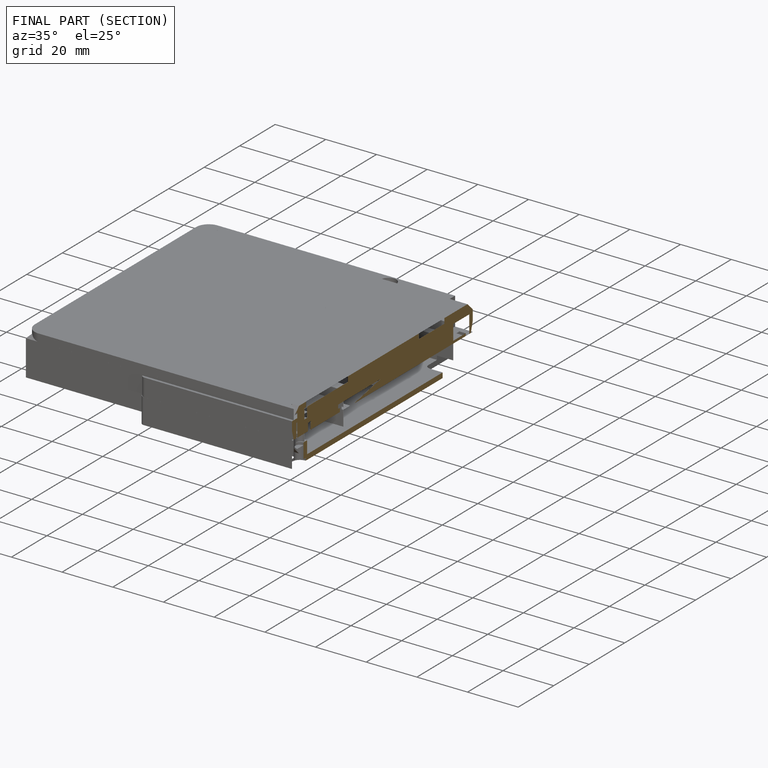
[diagram: finished part — half-section view (interior)]
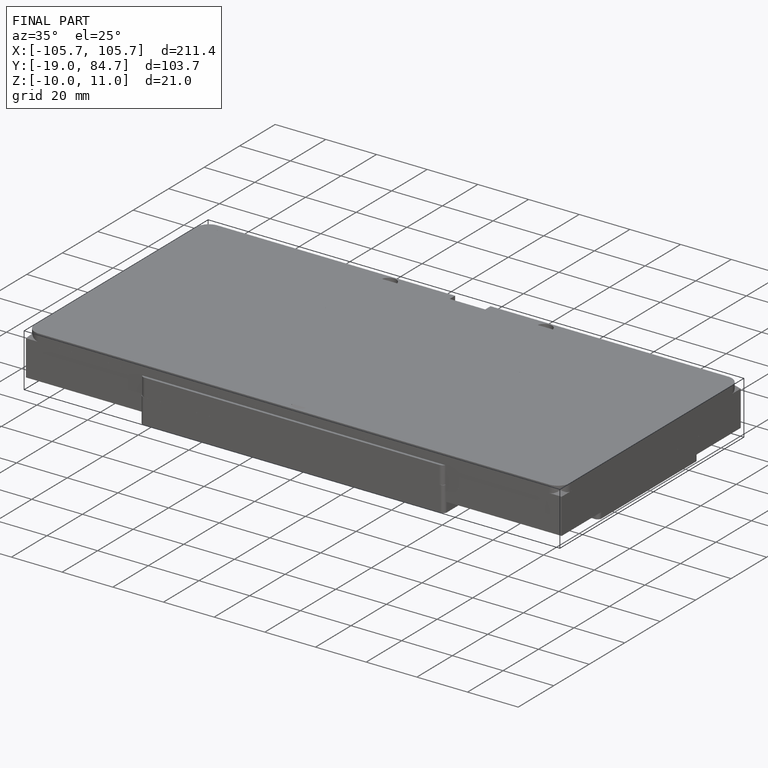
[diagram: finished part — iso view with bounding-box wireframe]
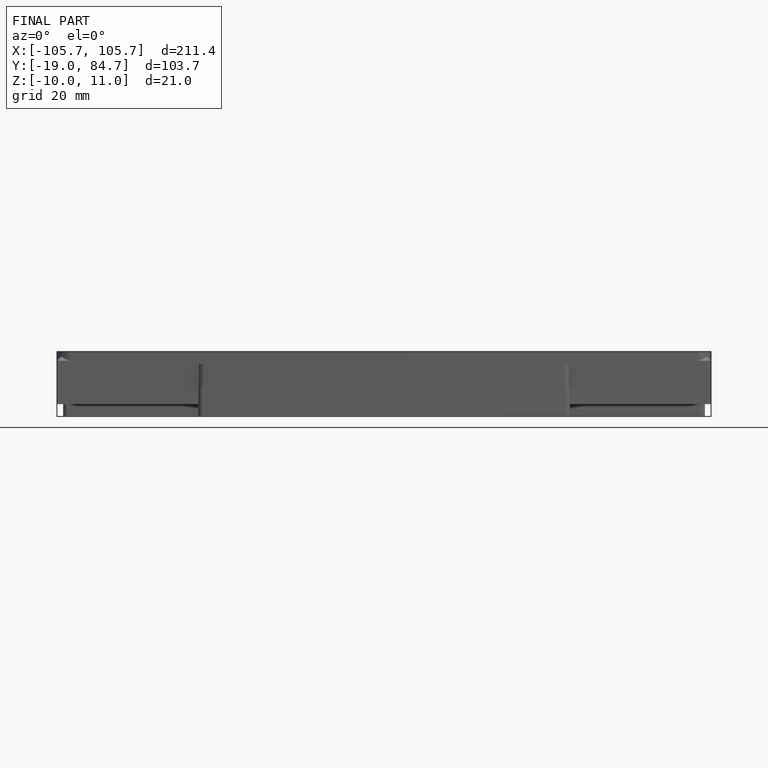
[diagram: finished part — front view with bounding-box wireframe]
